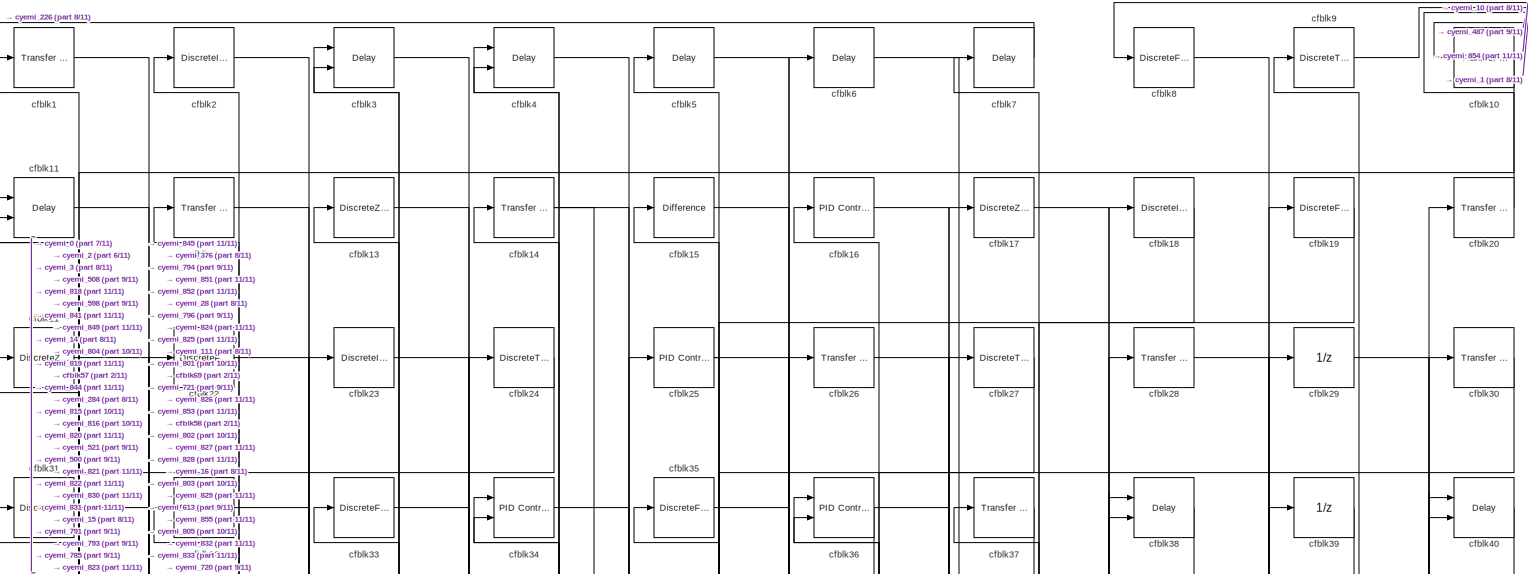
[diagram: root canvas - part 1/11, full width, top band]
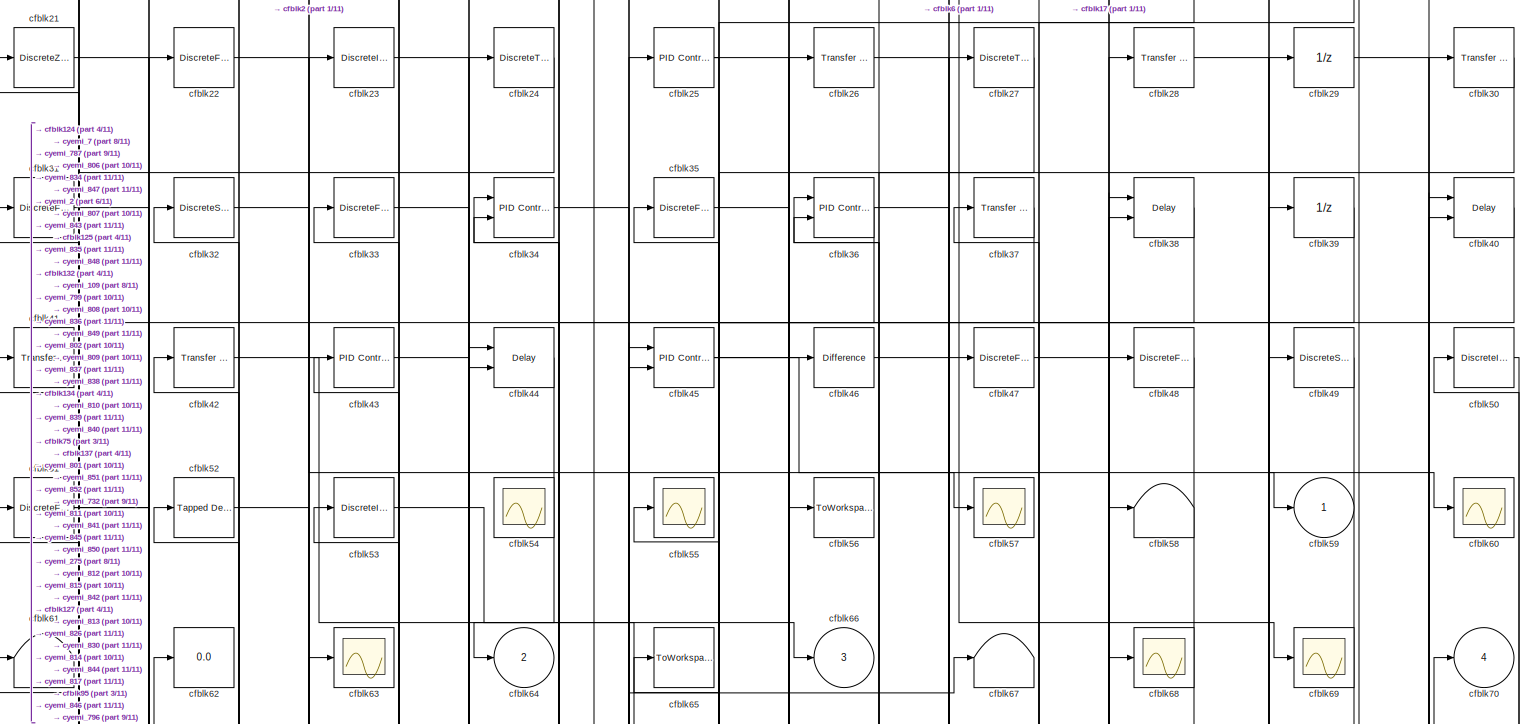
[diagram: root canvas - part 2/11, full width, top band]
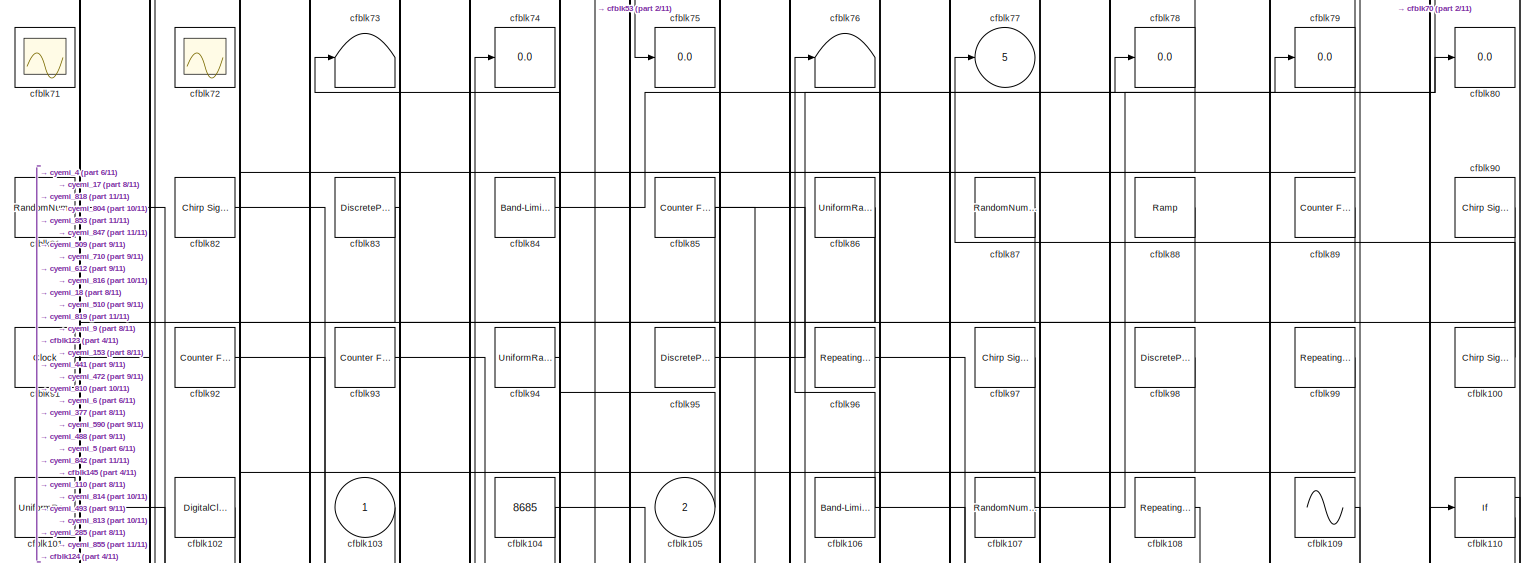
[diagram: root canvas - part 3/11, full width, top band]
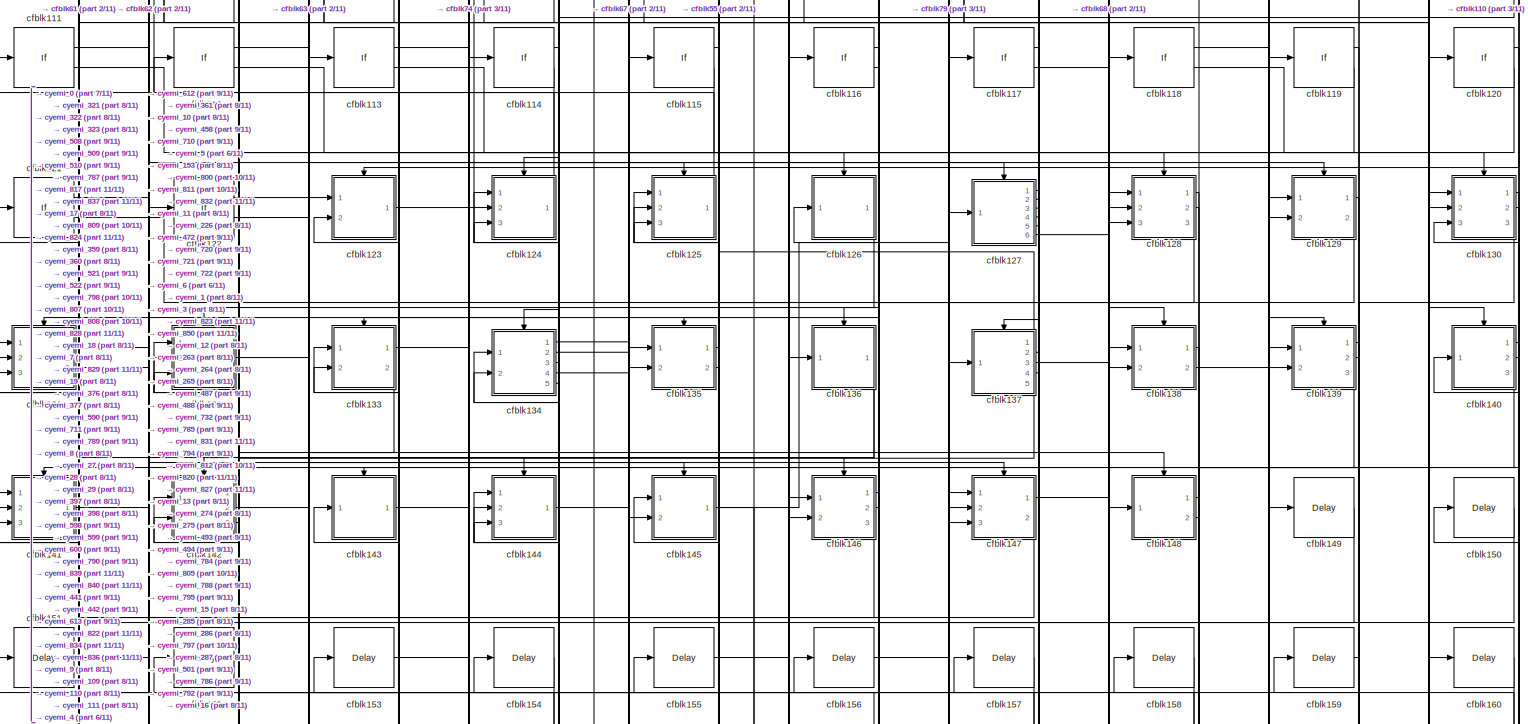
[diagram: root canvas - part 4/11, full width, middle band]
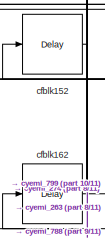
[diagram: root canvas - part 5/11, middle left region]
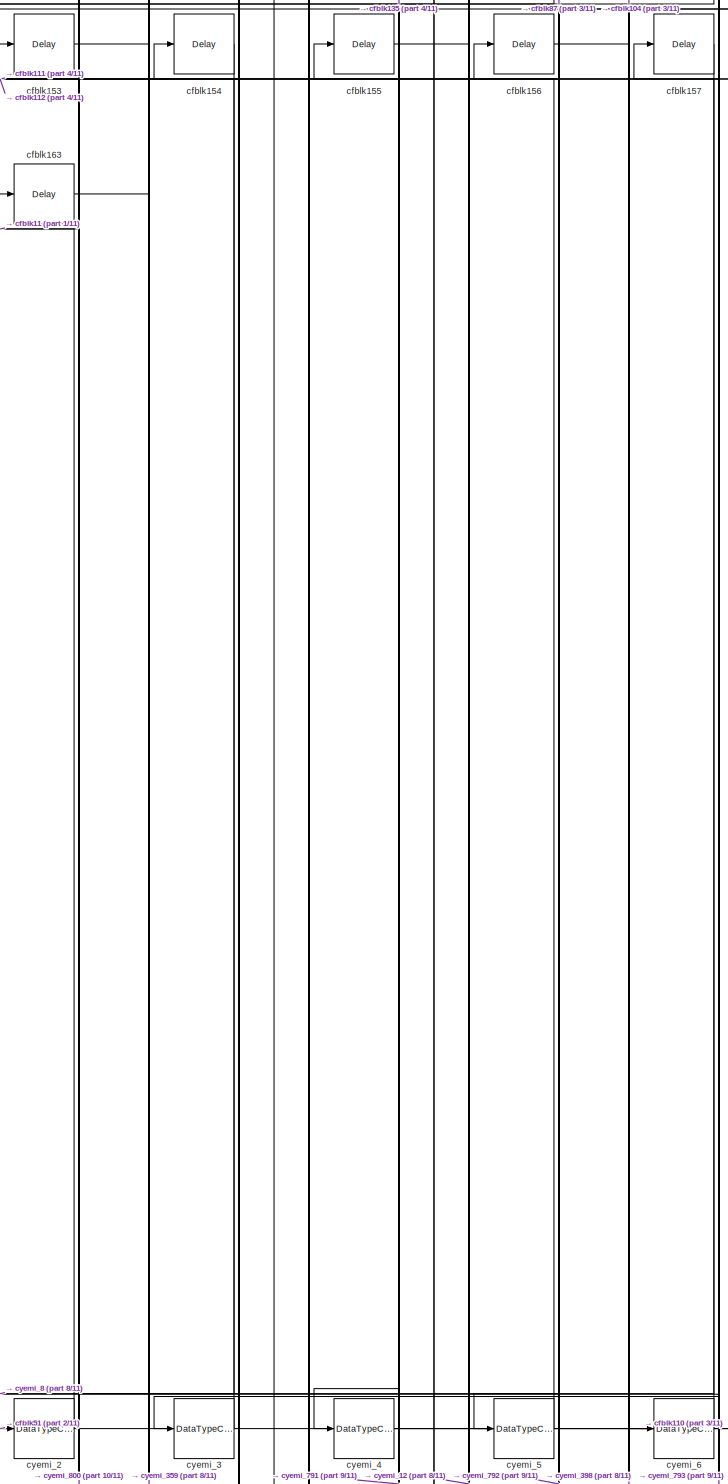
[diagram: root canvas - part 6/11, central region]
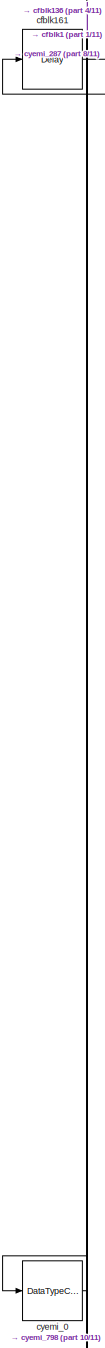
[diagram: root canvas - part 7/11, middle left region]
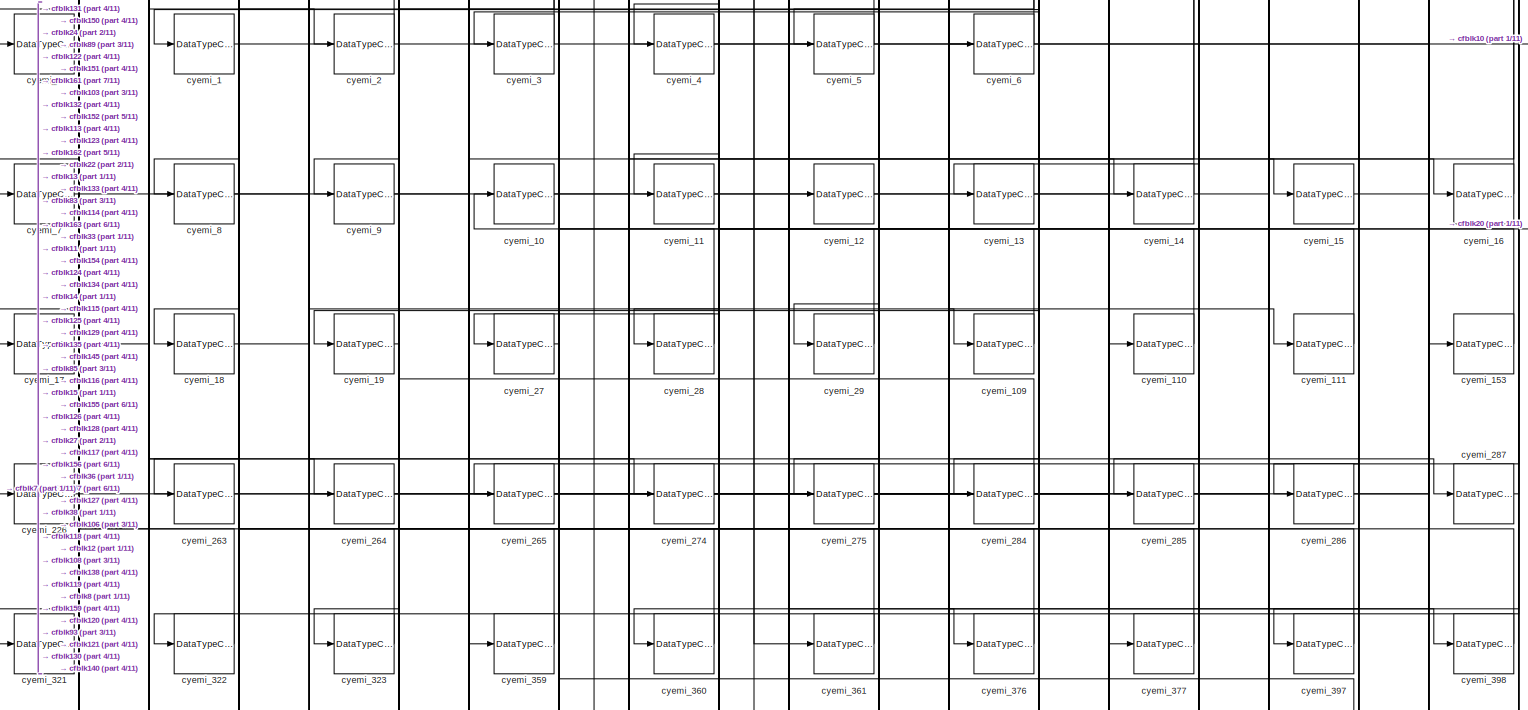
[diagram: root canvas - part 8/11, full width, bottom band]
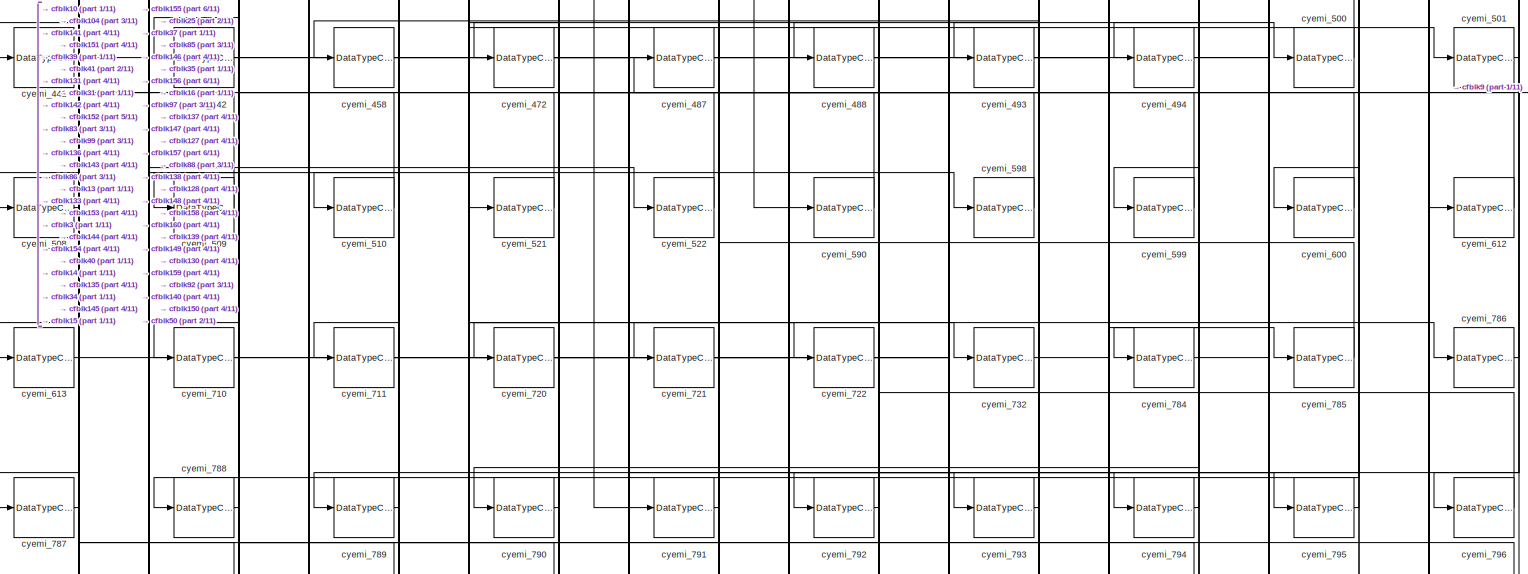
[diagram: root canvas - part 9/11, full width, bottom band]
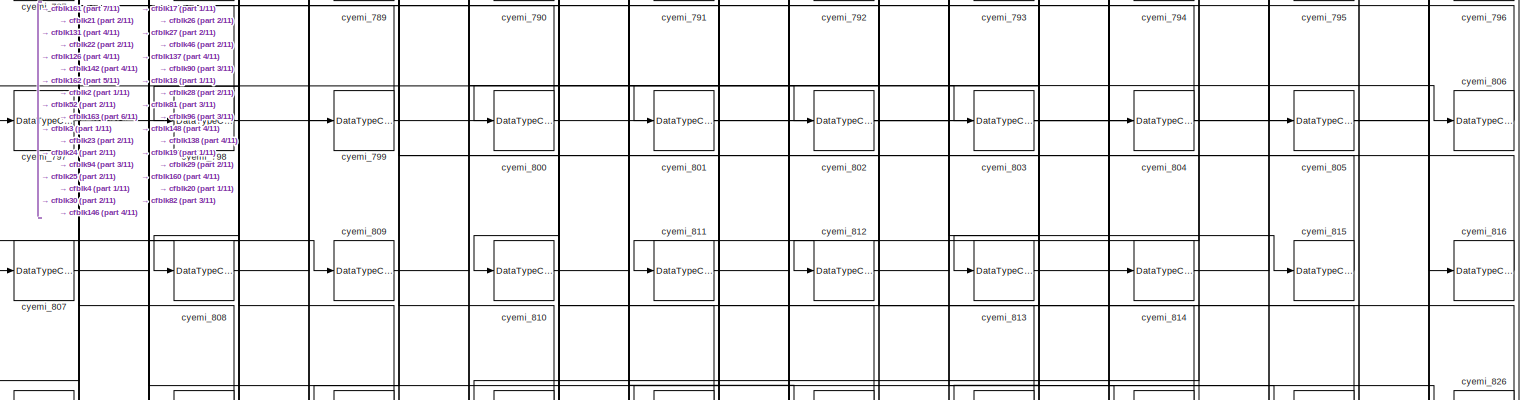
[diagram: root canvas - part 10/11, full width, bottom band]
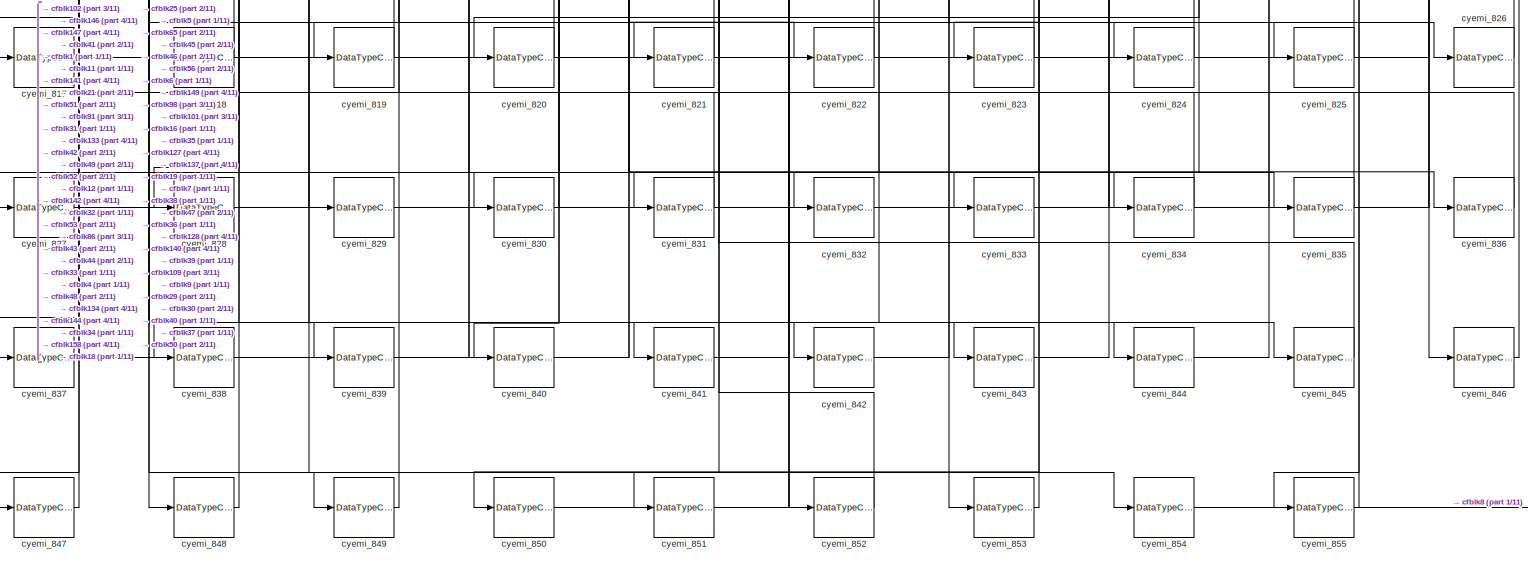
[diagram: root canvas - part 11/11, full width, bottom band]
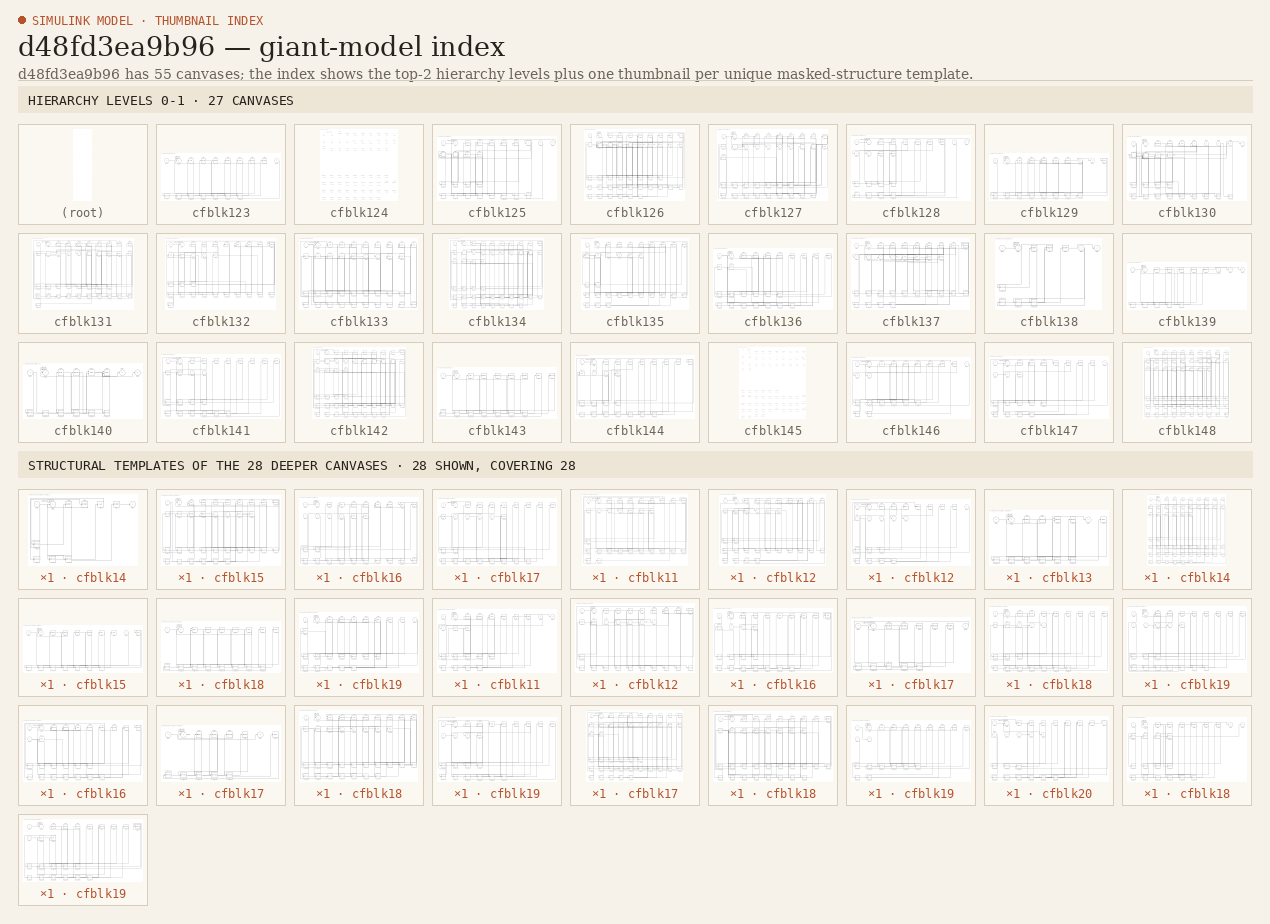
[diagram: thumbnail index - top-2 hierarchy levels (27 canvases) + 28 structural-template representatives of the remaining 28 canvases]
MODEL slx_d48fd3ea9b96
KIND model
CONFIG AbsTol = auto
CONFIG EnableMultiTasking = off
CONFIG FixedStep = auto
CONFIG MaxStep = auto
CONFIG MinStep = auto
CONFIG RelTol = 1e-3
CONFIG SampleTimeConstraint = Unconstrained
CONFIG Solver = VariableStepAuto
CONFIG SolverName = VariableStepAuto
CONFIG StartTime = 0.0
CONFIG StopTime = 10.0
BLOCK [Reference] cfblk1  REF=simulink/Discrete/Transfer Fcn
First Order
  Ports = [1, 1]
  SourceBlock = simulink/Discrete/Transfer Fcn\nFirst Order
  SourceProductBaseCode = SL
  SourceProductName = Simulink
  SourceType = First Order Transfer Fcn
BLOCK [Reference] cfblk10  REF=simulink/Discrete/Transfer Fcn
Lead or Lag
  Ports = [1, 1]
  SourceBlock = simulink/Discrete/Transfer Fcn\nLead or Lag
  SourceProductBaseCode = SL
  SourceProductName = Simulink
  SourceType = Lead or Lag Compensator
BLOCK [Reference] cfblk100  REF=simulink/Sources/Chirp Signal
  Ports = [0, 1]
  SourceBlock = simulink/Sources/Chirp Signal
  SourceProductBaseCode = SL
  SourceProductName = Simulink
  SourceType = chirp
BLOCK [UniformRandomNumber] cfblk101
  SampleTime = 0.1
BLOCK [DigitalClock] cfblk102
BLOCK [Inport] cfblk103
  IconDisplay = Port number
BLOCK [Constant] cfblk104
  OutDataTypeStr = double
  SampleTime = 1
  Value = 8685
BLOCK [Inport] cfblk105
  IconDisplay = Port number
  Port = 2
BLOCK [Reference] cfblk106  REF=simulink/Sources/Band-Limited
White Noise
  Ports = [0, 1]
  SourceBlock = simulink/Sources/Band-Limited\nWhite Noise
  SourceProductBaseCode = SL
  SourceProductName = Simulink
  SourceType = Band-Limited White Noise.
BLOCK [RandomNumber] cfblk107
  SampleTime = 0.1
BLOCK [Reference] cfblk108  REF=simulink/Sources/Repeating
Sequence
Interpolated
  Ports = [0, 1]
  SourceBlock = simulink/Sources/Repeating\nSequence\nInterpolated
  SourceProductBaseCode = SL
  SourceProductName = Simulink
  SourceType = Repeating Sequence Interpolated
BLOCK [Sin] cfblk109
  Ports = [0, 1]
  SampleTime = 0
BLOCK [Delay] cfblk11
  DelayLengthSource = Input port
  InputPortMap = u0,p1
  Ports = [2, 1]
  SampleTime = 1
BLOCK [If] cfblk110
  Ports = [1, 2]
  SampleTime = 1
BLOCK [If] cfblk111
  Ports = [1, 2]
  SampleTime = 1
BLOCK [If] cfblk112
  Ports = [1, 2]
  SampleTime = 1
BLOCK [If] cfblk113
  Ports = [1, 2]
  SampleTime = 1
BLOCK [If] cfblk114
  Ports = [1, 2]
  SampleTime = 1
BLOCK [If] cfblk115
  Ports = [1, 2]
  SampleTime = 1
BLOCK [If] cfblk116
  Ports = [1, 2]
  SampleTime = 1
BLOCK [If] cfblk117
  Ports = [1, 2]
  SampleTime = 1
BLOCK [If] cfblk118
  Ports = [1, 2]
  SampleTime = 1
BLOCK [If] cfblk119
  Ports = [1, 2]
  SampleTime = 1
BLOCK [Reference] cfblk12  REF=simulink/Discrete/Transfer Fcn
Real Zero
  Ports = [1, 1]
  SourceBlock = simulink/Discrete/Transfer Fcn\nReal Zero
  SourceProductBaseCode = SL
  SourceProductName = Simulink
  SourceType = Transfer Fcn Real Zero
BLOCK [If] cfblk120
  Ports = [1, 2]
  SampleTime = 1
BLOCK [If] cfblk121
  Ports = [1, 2]
  SampleTime = 1
BLOCK [If] cfblk122
  Ports = [1, 2]
  SampleTime = 1
BLOCK [SubSystem] cfblk123
  Ports = [2, 1, 0, 0, 0, 0, 0, 1]
  RequestExecContextInheritance = off
  TreatAsAtomicUnit = on
BLOCK [ActionPort] cfblk123/Action Port
  ActionType = then
BLOCK [Inport] cfblk123/cfblk1
  IconDisplay = Port number
BLOCK [Inport] cfblk123/cfblk10
  IconDisplay = Port number
  Port = 2
BLOCK [Outport] cfblk123/cfblk2
  IconDisplay = Port number
BLOCK [UnitDelay] cfblk123/cfblk3
  InputProcessing = Elements as channels (sample based)
  SampleTime = -1
BLOCK [Reference] cfblk123/cfblk4  REF=simulink/Continuous/PID Controller
  Ports = [1, 1]
  SourceBlock = simulink/Continuous/PID Controller
  SourceProductBaseCode = SL
  SourceProductName = Simulink
  SourceType = PID 1dof
BLOCK [DiscreteTransferFcn] cfblk123/cfblk5
  InputPortMap = u0
  Ports = [1, 1]
BLOCK [DiscreteIntegrator] cfblk123/cfblk6
  ICPrevOutput = DiscIntNeverNeededParam
  ICPrevScaledInput = DiscIntNeverNeededParam
  InitialConditionSetting = Auto
  OutDataTypeStr = double
  Ports = [1, 1]
  SampleTime = -1
BLOCK [Delay] cfblk123/cfblk7
  InputPortMap = u0
  Ports = [1, 1]
BLOCK [Reference] cfblk123/cfblk8  REF=simulink/Discrete/Tapped Delay
  Ports = [1, 1]
  SourceBlock = simulink/Discrete/Tapped Delay
  SourceProductBaseCode = SL
  SourceProductName = Simulink
  SourceType = Tapped Delay Line
BLOCK [DiscreteTransferFcn] cfblk123/cfblk9
  InputPortMap = u0
  Ports = [1, 1]
BLOCK [DataTypeConversion] cfblk123/cyemi_20
  OutDataTypeStr = double
  RndMeth = Floor
  SaturateOnIntegerOverflow = off
BLOCK [DataTypeConversion] cfblk123/cyemi_21
  OutDataTypeStr = double
  RndMeth = Floor
  SaturateOnIntegerOverflow = off
BLOCK [DataTypeConversion] cfblk123/cyemi_22
  OutDataTypeStr = double
  RndMeth = Floor
  SaturateOnIntegerOverflow = off
BLOCK [DataTypeConversion] cfblk123/cyemi_23
  OutDataTypeStr = double
  RndMeth = Floor
  SaturateOnIntegerOverflow = off
BLOCK [DataTypeConversion] cfblk123/cyemi_24
  OutDataTypeStr = double
  RndMeth = Floor
  SaturateOnIntegerOverflow = off
BLOCK [DataTypeConversion] cfblk123/cyemi_25
  OutDataTypeStr = double
  RndMeth = Floor
  SaturateOnIntegerOverflow = off
BLOCK [DataTypeConversion] cfblk123/cyemi_26
  OutDataTypeStr = double
  RndMeth = Floor
  SaturateOnIntegerOverflow = off
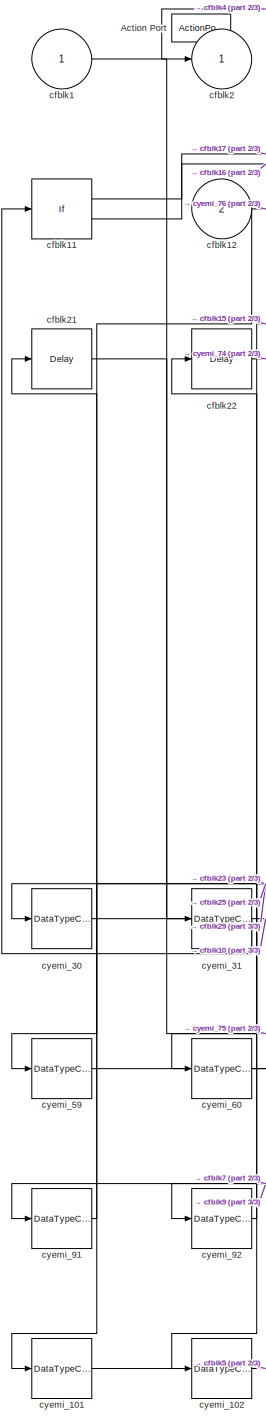
[diagram: cfblk124 - part 1/3, left side, full height]
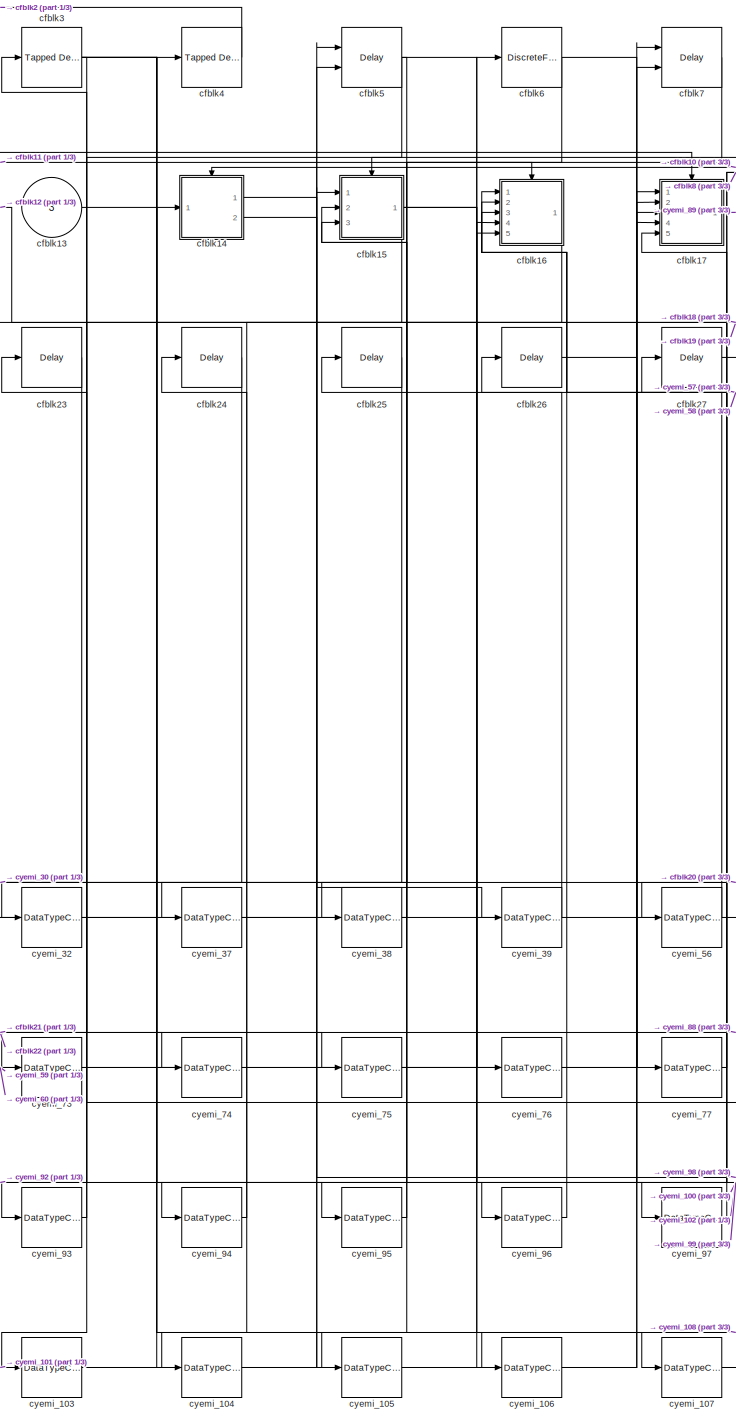
[diagram: cfblk124 - part 2/3, center side, full height]
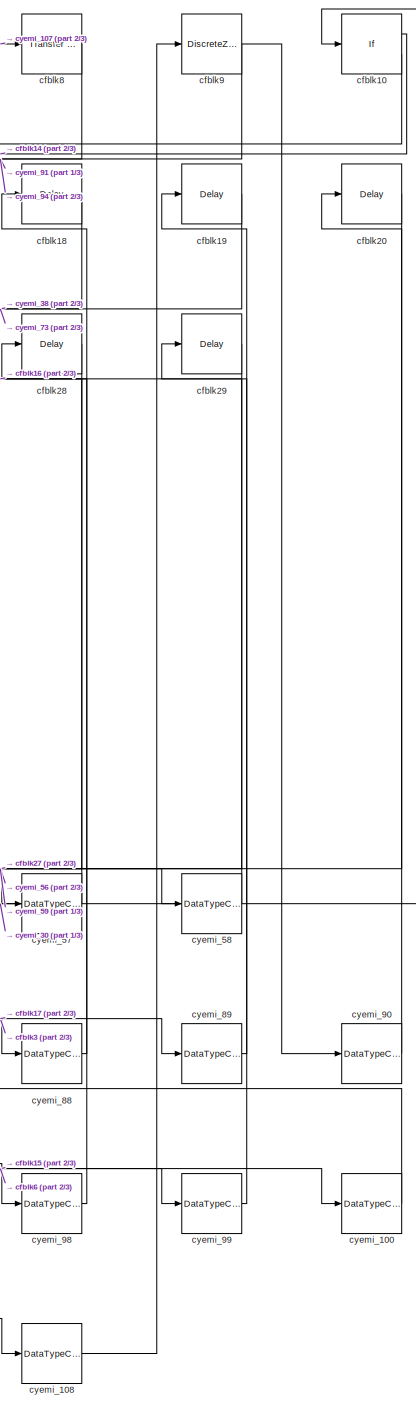
[diagram: cfblk124 - part 3/3, right side, full height]
BLOCK [SubSystem] cfblk124
  Ports = [3, 1, 0, 0, 0, 0, 0, 1]
  RequestExecContextInheritance = off
  TreatAsAtomicUnit = on
BLOCK [ActionPort] cfblk124/Action Port
  ActionType = else
BLOCK [Inport] cfblk124/cfblk1
  IconDisplay = Port number
BLOCK [If] cfblk124/cfblk10
  Ports = [1, 2]
  SampleTime = 1
BLOCK [If] cfblk124/cfblk11
  Ports = [1, 2]
  SampleTime = 1
BLOCK [Inport] cfblk124/cfblk12
  IconDisplay = Port number
  Port = 2
BLOCK [Inport] cfblk124/cfblk13
  IconDisplay = Port number
  Port = 3
BLOCK [SubSystem] cfblk124/cfblk14
  Ports = [1, 2, 0, 0, 0, 0, 0, 1]
  RequestExecContextInheritance = off
  TreatAsAtomicUnit = on
BLOCK [ActionPort] cfblk124/cfblk14/Action Port
  ActionType = then
BLOCK [Inport] cfblk124/cfblk14/cfblk1
  IconDisplay = Port number
BLOCK [Outport] cfblk124/cfblk14/cfblk2
  IconDisplay = Port number
BLOCK [DiscreteFilter] cfblk124/cfblk14/cfblk3
  InputPortMap = u0
  Ports = [1, 1]
BLOCK [DiscreteZeroPole] cfblk124/cfblk14/cfblk4
  Gain = 1
  Poles = [0 0.5]
  SampleTime = -1
BLOCK [UnitDelay] cfblk124/cfblk14/cfblk5
  InputProcessing = Elements as channels (sample based)
  SampleTime = -1
BLOCK [DiscreteZeroPole] cfblk124/cfblk14/cfblk6
  Gain = 1
  Poles = [0 0.5]
  SampleTime = -1
BLOCK [Outport] cfblk124/cfblk14/cfblk7
  IconDisplay = Port number
  Port = 2
BLOCK [DataTypeConversion] cfblk124/cfblk14/cyemi_33
  OutDataTypeStr = double
  RndMeth = Floor
  SaturateOnIntegerOverflow = off
BLOCK [DataTypeConversion] cfblk124/cfblk14/cyemi_34
  OutDataTypeStr = double
  RndMeth = Floor
  SaturateOnIntegerOverflow = off
BLOCK [DataTypeConversion] cfblk124/cfblk14/cyemi_35
  OutDataTypeStr = double
  RndMeth = Floor
  SaturateOnIntegerOverflow = off
BLOCK [DataTypeConversion] cfblk124/cfblk14/cyemi_36
  OutDataTypeStr = double
  RndMeth = Floor
  SaturateOnIntegerOverflow = off
BLOCK [SubSystem] cfblk124/cfblk15
  Ports = [3, 1, 0, 0, 0, 0, 0, 1]
  RequestExecContextInheritance = off
  TreatAsAtomicUnit = on
BLOCK [ActionPort] cfblk124/cfblk15/Action Port
  ActionType = else
BLOCK [Inport] cfblk124/cfblk15/cfblk1
  IconDisplay = Port number
BLOCK [Reference] cfblk124/cfblk15/cfblk10  REF=simulink/Discrete/Transfer Fcn
Real Zero
  Ports = [1, 1]
  SourceBlock = simulink/Discrete/Transfer Fcn\nReal Zero
  SourceProductBaseCode = SL
  SourceProductName = Simulink
  SourceType = Transfer Fcn Real Zero
BLOCK [Reference] cfblk124/cfblk15/cfblk11  REF=simulink/Discrete/Transfer Fcn
Lead or Lag
  Ports = [1, 1]
  SourceBlock = simulink/Discrete/Transfer Fcn\nLead or Lag
  SourceProductBaseCode = SL
  SourceProductName = Simulink
  SourceType = Lead or Lag Compensator
BLOCK [Reference] cfblk124/cfblk15/cfblk12  REF=simulink/Discrete/Transfer Fcn
First Order
  Ports = [1, 1]
  SourceBlock = simulink/Discrete/Transfer Fcn\nFirst Order
  SourceProductBaseCode = SL
  SourceProductName = Simulink
  SourceType = First Order Transfer Fcn
BLOCK [DiscreteFilter] cfblk124/cfblk15/cfblk13
  InputPortMap = u0
  Ports = [1, 1]
BLOCK [Reference] cfblk124/cfblk15/cfblk14  REF=simulink/Discrete/Difference
  Ports = [1, 1]
  SourceBlock = simulink/Discrete/Difference
  SourceProductBaseCode = SL
  SourceProductName = Simulink
  SourceType = Difference
BLOCK [Inport] cfblk124/cfblk15/cfblk15
  IconDisplay = Port number
  Port = 2
BLOCK [Inport] cfblk124/cfblk15/cfblk16
  IconDisplay = Port number
  Port = 3
BLOCK [Delay] cfblk124/cfblk15/cfblk17
  InputPortMap = u0
  Ports = [1, 1]
BLOCK [Delay] cfblk124/cfblk15/cfblk18
  InputPortMap = u0
  Ports = [1, 1]
BLOCK [Outport] cfblk124/cfblk15/cfblk2
  IconDisplay = Port number
BLOCK [Delay] cfblk124/cfblk15/cfblk3
  DelayLengthSource = Input port
  InputPortMap = u0,p1
  Ports = [2, 1]
BLOCK [DiscreteStateSpace] cfblk124/cfblk15/cfblk4
  SampleTime = -1
BLOCK [DiscreteIntegrator] cfblk124/cfblk15/cfblk5
  ICPrevOutput = DiscIntNeverNeededParam
  ICPrevScaledInput = DiscIntNeverNeededParam
  InitialConditionSetting = Auto
  OutDataTypeStr = double
  Ports = [1, 1]
  SampleTime = -1
BLOCK [Reference] cfblk124/cfblk15/cfblk6  REF=simulink/Discrete/Transfer Fcn
Real Zero
  Ports = [1, 1]
  SourceBlock = simulink/Discrete/Transfer Fcn\nReal Zero
  SourceProductBaseCode = SL
  SourceProductName = Simulink
  SourceType = Transfer Fcn Real Zero
BLOCK [Delay] cfblk124/cfblk15/cfblk7
  InputPortMap = u0,e6
  Ports = [2, 1]
  ShowEnablePort = on
BLOCK [DiscreteFilter] cfblk124/cfblk15/cfblk8
  InputPortMap = u0
  Ports = [1, 1]
BLOCK [Reference] cfblk124/cfblk15/cfblk9  REF=simulink/Continuous/PID Controller
  Ports = [1, 1]
  SourceBlock = simulink/Continuous/PID Controller
  SourceProductBaseCode = SL
  SourceProductName = Simulink
  SourceType = PID 1dof
BLOCK [DataTypeConversion] cfblk124/cfblk15/cyemi_40
  OutDataTypeStr = double
  RndMeth = Floor
  SaturateOnIntegerOverflow = off
BLOCK [DataTypeConversion] cfblk124/cfblk15/cyemi_41
  OutDataTypeStr = double
  RndMeth = Floor
  SaturateOnIntegerOverflow = off
BLOCK [DataTypeConversion] cfblk124/cfblk15/cyemi_42
  OutDataTypeStr = double
  RndMeth = Floor
  SaturateOnIntegerOverflow = off
BLOCK [DataTypeConversion] cfblk124/cfblk15/cyemi_43
  OutDataTypeStr = double
  RndMeth = Floor
  SaturateOnIntegerOverflow = off
BLOCK [DataTypeConversion] cfblk124/cfblk15/cyemi_44
  OutDataTypeStr = double
  RndMeth = Floor
  SaturateOnIntegerOverflow = off
BLOCK [DataTypeConversion] cfblk124/cfblk15/cyemi_45
  OutDataTypeStr = double
  RndMeth = Floor
  SaturateOnIntegerOverflow = off
BLOCK [DataTypeConversion] cfblk124/cfblk15/cyemi_46
  OutDataTypeStr = double
  RndMeth = Floor
  SaturateOnIntegerOverflow = off
BLOCK [DataTypeConversion] cfblk124/cfblk15/cyemi_47
  OutDataTypeStr = double
  RndMeth = Floor
  SaturateOnIntegerOverflow = off
BLOCK [DataTypeConversion] cfblk124/cfblk15/cyemi_48
  OutDataTypeStr = double
  RndMeth = Floor
  SaturateOnIntegerOverflow = off
BLOCK [DataTypeConversion] cfblk124/cfblk15/cyemi_49
  OutDataTypeStr = double
  RndMeth = Floor
  SaturateOnIntegerOverflow = off
BLOCK [DataTypeConversion] cfblk124/cfblk15/cyemi_50
  OutDataTypeStr = double
  RndMeth = Floor
  SaturateOnIntegerOverflow = off
BLOCK [DataTypeConversion] cfblk124/cfblk15/cyemi_51
  OutDataTypeStr = double
  RndMeth = Floor
  SaturateOnIntegerOverflow = off
BLOCK [DataTypeConversion] cfblk124/cfblk15/cyemi_52
  OutDataTypeStr = double
  RndMeth = Floor
  SaturateOnIntegerOverflow = off
BLOCK [DataTypeConversion] cfblk124/cfblk15/cyemi_53
  OutDataTypeStr = double
  RndMeth = Floor
  SaturateOnIntegerOverflow = off
BLOCK [DataTypeConversion] cfblk124/cfblk15/cyemi_54
  OutDataTypeStr = double
  RndMeth = Floor
  SaturateOnIntegerOverflow = off
BLOCK [DataTypeConversion] cfblk124/cfblk15/cyemi_55
  OutDataTypeStr = double
  RndMeth = Floor
  SaturateOnIntegerOverflow = off
BLOCK [SubSystem] cfblk124/cfblk16
  Ports = [5, 1, 0, 0, 0, 0, 0, 1]
  RequestExecContextInheritance = off
  TreatAsAtomicUnit = on
BLOCK [ActionPort] cfblk124/cfblk16/Action Port
  ActionType = then
BLOCK [Inport] cfblk124/cfblk16/cfblk1
  IconDisplay = Port number
BLOCK [Reference] cfblk124/cfblk16/cfblk10  REF=simulink/Discrete/Transfer Fcn
First Order
  Ports = [1, 1]
  SourceBlock = simulink/Discrete/Transfer Fcn\nFirst Order
  SourceProductBaseCode = SL
  SourceProductName = Simulink
  SourceType = First Order Transfer Fcn
BLOCK [Inport] cfblk124/cfblk16/cfblk11
  IconDisplay = Port number
  Port = 2
BLOCK [Inport] cfblk124/cfblk16/cfblk12
  IconDisplay = Port number
  Port = 3
BLOCK [Inport] cfblk124/cfblk16/cfblk13
  IconDisplay = Port number
  Port = 4
BLOCK [Inport] cfblk124/cfblk16/cfblk14
  IconDisplay = Port number
  Port = 5
BLOCK [Delay] cfblk124/cfblk16/cfblk15
  InputPortMap = u0
  Ports = [1, 1]
BLOCK [Delay] cfblk124/cfblk16/cfblk16
  InputPortMap = u0
  Ports = [1, 1]
BLOCK [Outport] cfblk124/cfblk16/cfblk2
  IconDisplay = Port number
BLOCK [DiscreteFir] cfblk124/cfblk16/cfblk3
  InputPortMap = u0
  OutputPortMap = o0
  Ports = [1, 1]
BLOCK [Delay] cfblk124/cfblk16/cfblk4
  DelayLengthSource = Input port
  InputPortMap = u0,p1
  Ports = [2, 1]
BLOCK [DiscreteStateSpace] cfblk124/cfblk16/cfblk5
  SampleTime = -1
BLOCK [Reference] cfblk124/cfblk16/cfblk6  REF=simulink/Discrete/Transfer Fcn
Real Zero
  Ports = [1, 1]
  SourceBlock = simulink/Discrete/Transfer Fcn\nReal Zero
  SourceProductBaseCode = SL
  SourceProductName = Simulink
  SourceType = Transfer Fcn Real Zero
BLOCK [Delay] cfblk124/cfblk16/cfblk7
  InputPortMap = u0,e6
  Ports = [2, 1]
  ShowEnablePort = on
BLOCK [Reference] cfblk124/cfblk16/cfblk8  REF=simulink/Discrete/Transfer Fcn
Real Zero
  Ports = [1, 1]
  SourceBlock = simulink/Discrete/Transfer Fcn\nReal Zero
  SourceProductBaseCode = SL
  SourceProductName = Simulink
  SourceType = Transfer Fcn Real Zero
BLOCK [Delay] cfblk124/cfblk16/cfblk9
  InputPortMap = u0
  Ports = [1, 1]
BLOCK [DataTypeConversion] cfblk124/cfblk16/cyemi_61
  OutDataTypeStr = double
  RndMeth = Floor
  SaturateOnIntegerOverflow = off
BLOCK [DataTypeConversion] cfblk124/cfblk16/cyemi_62
  OutDataTypeStr = double
  RndMeth = Floor
  SaturateOnIntegerOverflow = off
BLOCK [DataTypeConversion] cfblk124/cfblk16/cyemi_63
  OutDataTypeStr = double
  RndMeth = Floor
  SaturateOnIntegerOverflow = off
BLOCK [DataTypeConversion] cfblk124/cfblk16/cyemi_64
  OutDataTypeStr = double
  RndMeth = Floor
  SaturateOnIntegerOverflow = off
BLOCK [DataTypeConversion] cfblk124/cfblk16/cyemi_65
  OutDataTypeStr = double
  RndMeth = Floor
  SaturateOnIntegerOverflow = off
BLOCK [DataTypeConversion] cfblk124/cfblk16/cyemi_66
  OutDataTypeStr = double
  RndMeth = Floor
  SaturateOnIntegerOverflow = off
BLOCK [DataTypeConversion] cfblk124/cfblk16/cyemi_67
  OutDataTypeStr = double
  RndMeth = Floor
  SaturateOnIntegerOverflow = off
BLOCK [DataTypeConversion] cfblk124/cfblk16/cyemi_68
  OutDataTypeStr = double
  RndMeth = Floor
  SaturateOnIntegerOverflow = off
BLOCK [DataTypeConversion] cfblk124/cfblk16/cyemi_69
  OutDataTypeStr = double
  RndMeth = Floor
  SaturateOnIntegerOverflow = off
BLOCK [DataTypeConversion] cfblk124/cfblk16/cyemi_70
  OutDataTypeStr = double
  RndMeth = Floor
  SaturateOnIntegerOverflow = off
BLOCK [DataTypeConversion] cfblk124/cfblk16/cyemi_71
  OutDataTypeStr = double
  RndMeth = Floor
  SaturateOnIntegerOverflow = off
BLOCK [DataTypeConversion] cfblk124/cfblk16/cyemi_72
  OutDataTypeStr = double
  RndMeth = Floor
  SaturateOnIntegerOverflow = off
BLOCK [SubSystem] cfblk124/cfblk17
  Ports = [5, 1, 0, 0, 0, 0, 0, 1]
  RequestExecContextInheritance = off
  TreatAsAtomicUnit = on
BLOCK [ActionPort] cfblk124/cfblk17/Action Port
  ActionType = else
BLOCK [Inport] cfblk124/cfblk17/cfblk1
  IconDisplay = Port number
BLOCK [DiscreteFilter] cfblk124/cfblk17/cfblk10
  InputPortMap = u0
  Ports = [1, 1]
BLOCK [Reference] cfblk124/cfblk17/cfblk11  REF=simulink/Discrete/Transfer Fcn
Real Zero
  Ports = [1, 1]
  SourceBlock = simulink/Discrete/Transfer Fcn\nReal Zero
  SourceProductBaseCode = SL
  SourceProductName = Simulink
  SourceType = Transfer Fcn Real Zero
BLOCK [Inport] cfblk124/cfblk17/cfblk12
  IconDisplay = Port number
  Port = 2
BLOCK [Inport] cfblk124/cfblk17/cfblk13
  IconDisplay = Port number
  Port = 3
BLOCK [Inport] cfblk124/cfblk17/cfblk14
  IconDisplay = Port number
  Port = 4
BLOCK [Inport] cfblk124/cfblk17/cfblk15
  IconDisplay = Port number
  Port = 5
BLOCK [Delay] cfblk124/cfblk17/cfblk16
  InputPortMap = u0
  Ports = [1, 1]
BLOCK [Outport] cfblk124/cfblk17/cfblk2
  IconDisplay = Port number
BLOCK [DiscreteFilter] cfblk124/cfblk17/cfblk3
  InputPortMap = u0
  Ports = [1, 1]
BLOCK [DiscreteZeroPole] cfblk124/cfblk17/cfblk4
  Gain = 1
  Poles = [0 0.5]
  SampleTime = -1
BLOCK [Reference] cfblk124/cfblk17/cfblk5  REF=simulink/Discrete/Transfer Fcn
Real Zero
  Ports = [1, 1]
  SourceBlock = simulink/Discrete/Transfer Fcn\nReal Zero
  SourceProductBaseCode = SL
  SourceProductName = Simulink
  SourceType = Transfer Fcn Real Zero
BLOCK [UnitDelay] cfblk124/cfblk17/cfblk6
  InputProcessing = Elements as channels (sample based)
  SampleTime = -1
BLOCK [Reference] cfblk124/cfblk17/cfblk7  REF=simulink/Discrete/Transfer Fcn
Real Zero
  Ports = [1, 1]
  SourceBlock = simulink/Discrete/Transfer Fcn\nReal Zero
  SourceProductBaseCode = SL
  SourceProductName = Simulink
  SourceType = Transfer Fcn Real Zero
BLOCK [DiscreteFir] cfblk124/cfblk17/cfblk8
  InputPortMap = u0
  OutputPortMap = o0
  Ports = [1, 1]
BLOCK [Reference] cfblk124/cfblk17/cfblk9  REF=simulink/Continuous/PID Controller
  Ports = [1, 1]
  SourceBlock = simulink/Continuous/PID Controller
  SourceProductBaseCode = SL
  SourceProductName = Simulink
  SourceType = PID 1dof
BLOCK [DataTypeConversion] cfblk124/cfblk17/cyemi_78
  OutDataTypeStr = double
  RndMeth = Floor
  SaturateOnIntegerOverflow = off
BLOCK [DataTypeConversion] cfblk124/cfblk17/cyemi_79
  OutDataTypeStr = double
  RndMeth = Floor
  SaturateOnIntegerOverflow = off
BLOCK [DataTypeConversion] cfblk124/cfblk17/cyemi_80
  OutDataTypeStr = double
  RndMeth = Floor
  SaturateOnIntegerOverflow = off
BLOCK [DataTypeConversion] cfblk124/cfblk17/cyemi_81
  OutDataTypeStr = double
  RndMeth = Floor
  SaturateOnIntegerOverflow = off
BLOCK [DataTypeConversion] cfblk124/cfblk17/cyemi_82
  OutDataTypeStr = double
  RndMeth = Floor
  SaturateOnIntegerOverflow = off
BLOCK [DataTypeConversion] cfblk124/cfblk17/cyemi_83
  OutDataTypeStr = double
  RndMeth = Floor
  SaturateOnIntegerOverflow = off
BLOCK [DataTypeConversion] cfblk124/cfblk17/cyemi_84
  OutDataTypeStr = double
  RndMeth = Floor
  SaturateOnIntegerOverflow = off
BLOCK [DataTypeConversion] cfblk124/cfblk17/cyemi_85
  OutDataTypeStr = double
  RndMeth = Floor
  SaturateOnIntegerOverflow = off
BLOCK [DataTypeConversion] cfblk124/cfblk17/cyemi_86
  OutDataTypeStr = double
  RndMeth = Floor
  SaturateOnIntegerOverflow = off
BLOCK [DataTypeConversion] cfblk124/cfblk17/cyemi_87
  OutDataTypeStr = double
  RndMeth = Floor
  SaturateOnIntegerOverflow = off
BLOCK [Delay] cfblk124/cfblk18
  InputPortMap = u0
  Ports = [1, 1]
BLOCK [Delay] cfblk124/cfblk19
  InputPortMap = u0
  Ports = [1, 1]
BLOCK [Outport] cfblk124/cfblk2
  IconDisplay = Port number
BLOCK [Delay] cfblk124/cfblk20
  InputPortMap = u0
  Ports = [1, 1]
BLOCK [Delay] cfblk124/cfblk21
  InputPortMap = u0
  Ports = [1, 1]
BLOCK [Delay] cfblk124/cfblk22
  InputPortMap = u0
  Ports = [1, 1]
BLOCK [Delay] cfblk124/cfblk23
  InputPortMap = u0
  Ports = [1, 1]
BLOCK [Delay] cfblk124/cfblk24
  InputPortMap = u0
  Ports = [1, 1]
BLOCK [Delay] cfblk124/cfblk25
  InputPortMap = u0
  Ports = [1, 1]
BLOCK [Delay] cfblk124/cfblk26
  InputPortMap = u0
  Ports = [1, 1]
BLOCK [Delay] cfblk124/cfblk27
  InputPortMap = u0
  Ports = [1, 1]
BLOCK [Delay] cfblk124/cfblk28
  InputPortMap = u0
  Ports = [1, 1]
BLOCK [Delay] cfblk124/cfblk29
  InputPortMap = u0
  Ports = [1, 1]
BLOCK [Reference] cfblk124/cfblk3  REF=simulink/Discrete/Tapped Delay
  Ports = [1, 1]
  SourceBlock = simulink/Discrete/Tapped Delay
  SourceProductBaseCode = SL
  SourceProductName = Simulink
  SourceType = Tapped Delay Line
BLOCK [Reference] cfblk124/cfblk4  REF=simulink/Discrete/Tapped Delay
  Ports = [1, 1]
  SourceBlock = simulink/Discrete/Tapped Delay
  SourceProductBaseCode = SL
  SourceProductName = Simulink
  SourceType = Tapped Delay Line
BLOCK [Delay] cfblk124/cfblk5
  InputPortMap = u0,e6
  Ports = [2, 1]
  ShowEnablePort = on
BLOCK [DiscreteFilter] cfblk124/cfblk6
  InputPortMap = u0
  Ports = [1, 1]
BLOCK [Delay] cfblk124/cfblk7
  DelayLengthSource = Input port
  InputPortMap = u0,p1
  Ports = [2, 1]
BLOCK [Reference] cfblk124/cfblk8  REF=simulink/Discrete/Transfer Fcn
First Order
  Ports = [1, 1]
  SourceBlock = simulink/Discrete/Transfer Fcn\nFirst Order
  SourceProductBaseCode = SL
  SourceProductName = Simulink
  SourceType = First Order Transfer Fcn
BLOCK [DiscreteZeroPole] cfblk124/cfblk9
  Gain = 1
  Poles = [0 0.5]
  SampleTime = -1
BLOCK [DataTypeConversion] cfblk124/cyemi_100
  OutDataTypeStr = double
  RndMeth = Floor
  SaturateOnIntegerOverflow = off
BLOCK [DataTypeConversion] cfblk124/cyemi_101
  OutDataTypeStr = double
  RndMeth = Floor
  SaturateOnIntegerOverflow = off
BLOCK [DataTypeConversion] cfblk124/cyemi_102
  OutDataTypeStr = double
  RndMeth = Floor
  SaturateOnIntegerOverflow = off
BLOCK [DataTypeConversion] cfblk124/cyemi_103
  OutDataTypeStr = double
  RndMeth = Floor
  SaturateOnIntegerOverflow = off
BLOCK [DataTypeConversion] cfblk124/cyemi_104
  OutDataTypeStr = double
  RndMeth = Floor
  SaturateOnIntegerOverflow = off
BLOCK [DataTypeConversion] cfblk124/cyemi_105
  OutDataTypeStr = double
  RndMeth = Floor
  SaturateOnIntegerOverflow = off
BLOCK [DataTypeConversion] cfblk124/cyemi_106
  OutDataTypeStr = double
  RndMeth = Floor
  SaturateOnIntegerOverflow = off
BLOCK [DataTypeConversion] cfblk124/cyemi_107
  OutDataTypeStr = double
  RndMeth = Floor
  SaturateOnIntegerOverflow = off
BLOCK [DataTypeConversion] cfblk124/cyemi_108
  OutDataTypeStr = double
  RndMeth = Floor
  SaturateOnIntegerOverflow = off
BLOCK [DataTypeConversion] cfblk124/cyemi_30
  OutDataTypeStr = double
  RndMeth = Floor
  SaturateOnIntegerOverflow = off
BLOCK [DataTypeConversion] cfblk124/cyemi_31
  OutDataTypeStr = double
  RndMeth = Floor
  SaturateOnIntegerOverflow = off
BLOCK [DataTypeConversion] cfblk124/cyemi_32
  OutDataTypeStr = double
  RndMeth = Floor
  SaturateOnIntegerOverflow = off
BLOCK [DataTypeConversion] cfblk124/cyemi_37
  OutDataTypeStr = double
  RndMeth = Floor
  SaturateOnIntegerOverflow = off
BLOCK [DataTypeConversion] cfblk124/cyemi_38
  OutDataTypeStr = double
  RndMeth = Floor
  SaturateOnIntegerOverflow = off
BLOCK [DataTypeConversion] cfblk124/cyemi_39
  OutDataTypeStr = double
  RndMeth = Floor
  SaturateOnIntegerOverflow = off
BLOCK [DataTypeConversion] cfblk124/cyemi_56
  OutDataTypeStr = double
  RndMeth = Floor
  SaturateOnIntegerOverflow = off
BLOCK [DataTypeConversion] cfblk124/cyemi_57
  OutDataTypeStr = double
  RndMeth = Floor
  SaturateOnIntegerOverflow = off
BLOCK [DataTypeConversion] cfblk124/cyemi_58
  OutDataTypeStr = double
  RndMeth = Floor
  SaturateOnIntegerOverflow = off
BLOCK [DataTypeConversion] cfblk124/cyemi_59
  OutDataTypeStr = double
  RndMeth = Floor
  SaturateOnIntegerOverflow = off
BLOCK [DataTypeConversion] cfblk124/cyemi_60
  OutDataTypeStr = double
  RndMeth = Floor
  SaturateOnIntegerOverflow = off
BLOCK [DataTypeConversion] cfblk124/cyemi_73
  OutDataTypeStr = double
  RndMeth = Floor
  SaturateOnIntegerOverflow = off
BLOCK [DataTypeConversion] cfblk124/cyemi_74
  OutDataTypeStr = double
  RndMeth = Floor
  SaturateOnIntegerOverflow = off
BLOCK [DataTypeConversion] cfblk124/cyemi_75
  OutDataTypeStr = double
  RndMeth = Floor
  SaturateOnIntegerOverflow = off
BLOCK [DataTypeConversion] cfblk124/cyemi_76
  OutDataTypeStr = double
  RndMeth = Floor
  SaturateOnIntegerOverflow = off
BLOCK [DataTypeConversion] cfblk124/cyemi_77
  OutDataTypeStr = double
  RndMeth = Floor
  SaturateOnIntegerOverflow = off
BLOCK [DataTypeConversion] cfblk124/cyemi_88
  OutDataTypeStr = double
  RndMeth = Floor
  SaturateOnIntegerOverflow = off
BLOCK [DataTypeConversion] cfblk124/cyemi_89
  OutDataTypeStr = double
  RndMeth = Floor
  SaturateOnIntegerOverflow = off
BLOCK [DataTypeConversion] cfblk124/cyemi_90
  OutDataTypeStr = double
  RndMeth = Floor
  SaturateOnIntegerOverflow = off
BLOCK [DataTypeConversion] cfblk124/cyemi_91
  OutDataTypeStr = double
  RndMeth = Floor
  SaturateOnIntegerOverflow = off
BLOCK [DataTypeConversion] cfblk124/cyemi_92
  OutDataTypeStr = double
  RndMeth = Floor
  SaturateOnIntegerOverflow = off
BLOCK [DataTypeConversion] cfblk124/cyemi_93
  OutDataTypeStr = double
  RndMeth = Floor
  SaturateOnIntegerOverflow = off
BLOCK [DataTypeConversion] cfblk124/cyemi_94
  OutDataTypeStr = double
  RndMeth = Floor
  SaturateOnIntegerOverflow = off
BLOCK [DataTypeConversion] cfblk124/cyemi_95
  OutDataTypeStr = double
  RndMeth = Floor
  SaturateOnIntegerOverflow = off
BLOCK [DataTypeConversion] cfblk124/cyemi_96
  OutDataTypeStr = double
  RndMeth = Floor
  SaturateOnIntegerOverflow = off
BLOCK [DataTypeConversion] cfblk124/cyemi_97
  OutDataTypeStr = double
  RndMeth = Floor
  SaturateOnIntegerOverflow = off
BLOCK [DataTypeConversion] cfblk124/cyemi_98
  OutDataTypeStr = double
  RndMeth = Floor
  SaturateOnIntegerOverflow = off
BLOCK [DataTypeConversion] cfblk124/cyemi_99
  OutDataTypeStr = double
  RndMeth = Floor
  SaturateOnIntegerOverflow = off
BLOCK [SubSystem] cfblk125
  Ports = [3, 1, 0, 0, 0, 0, 0, 1]
  RequestExecContextInheritance = off
  TreatAsAtomicUnit = on
BLOCK [ActionPort] cfblk125/Action Port
  ActionType = then
BLOCK [Inport] cfblk125/cfblk1
  IconDisplay = Port number
BLOCK [Inport] cfblk125/cfblk10
  IconDisplay = Port number
  Port = 3
BLOCK [SubSystem] cfblk125/cfblk11
  Ports = [2, 3, 0, 0, 0, 0, 0, 1]
  RequestExecContextInheritance = off
  TreatAsAtomicUnit = on
BLOCK [ActionPort] cfblk125/cfblk11/Action Port
  ActionType = then
BLOCK [Inport] cfblk125/cfblk11/cfblk1
  IconDisplay = Port number
BLOCK [DiscreteFilter] cfblk125/cfblk11/cfblk10
  InputPortMap = u0
  Ports = [1, 1]
BLOCK [Reference] cfblk125/cfblk11/cfblk11  REF=simulink/Discrete/Transfer Fcn
Real Zero
  Ports = [1, 1]
  SourceBlock = simulink/Discrete/Transfer Fcn\nReal Zero
  SourceProductBaseCode = SL
  SourceProductName = Simulink
  SourceType = Transfer Fcn Real Zero
BLOCK [Inport] cfblk125/cfblk11/cfblk12
  IconDisplay = Port number
  Port = 2
BLOCK [Outport] cfblk125/cfblk11/cfblk13
  IconDisplay = Port number
  Port = 2
BLOCK [Outport] cfblk125/cfblk11/cfblk14
  IconDisplay = Port number
  Port = 3
BLOCK [Delay] cfblk125/cfblk11/cfblk15
  InputPortMap = u0
  Ports = [1, 1]
BLOCK [DataTypeConversion] cfblk125/cfblk11/cfblk16
  OutDataTypeStr = uint32
  RndMeth = Floor
  SaturateOnIntegerOverflow = off
BLOCK [DataTypeConversion] cfblk125/cfblk11/cfblk17
  OutDataTypeStr = double
  RndMeth = Floor
  SaturateOnIntegerOverflow = off
BLOCK [Outport] cfblk125/cfblk11/cfblk2
  IconDisplay = Port number
BLOCK [DiscreteFir] cfblk125/cfblk11/cfblk3
  InputPortMap = u0
  OutputPortMap = o0
  Ports = [1, 1]
BLOCK [Reference] cfblk125/cfblk11/cfblk4  REF=simulink/Continuous/PID Controller
  Ports = [1, 1]
  SourceBlock = simulink/Continuous/PID Controller
  SourceProductBaseCode = SL
  SourceProductName = Simulink
  SourceType = PID 1dof
BLOCK [DiscreteFir] cfblk125/cfblk11/cfblk5
  InputPortMap = u0
  OutputPortMap = o0
  Ports = [1, 1]
BLOCK [Delay] cfblk125/cfblk11/cfblk6
  DelayLengthSource = Input port
  InputPortMap = u0,p1
  Ports = [2, 1]
BLOCK [DiscreteZeroPole] cfblk125/cfblk11/cfblk7
  Gain = 1
  Poles = [0 0.5]
  SampleTime = -1
BLOCK [Reference] cfblk125/cfblk11/cfblk8  REF=simulink/Discrete/Tapped Delay
  Ports = [1, 1]
  SourceBlock = simulink/Discrete/Tapped Delay
  SourceProductBaseCode = SL
  SourceProductName = Simulink
  SourceType = Tapped Delay Line
BLOCK [DiscreteFilter] cfblk125/cfblk11/cfblk9
  InputPortMap = u0
  Ports = [1, 1]
BLOCK [DataTypeConversion] cfblk125/cfblk11/cyemi_114
  OutDataTypeStr = double
  RndMeth = Floor
  SaturateOnIntegerOverflow = off
BLOCK [DataTypeConversion] cfblk125/cfblk11/cyemi_115
  OutDataTypeStr = double
  RndMeth = Floor
  SaturateOnIntegerOverflow = off
BLOCK [DataTypeConversion] cfblk125/cfblk11/cyemi_116
  OutDataTypeStr = double
  RndMeth = Floor
  SaturateOnIntegerOverflow = off
BLOCK [DataTypeConversion] cfblk125/cfblk11/cyemi_117
  OutDataTypeStr = double
  RndMeth = Floor
  SaturateOnIntegerOverflow = off
BLOCK [DataTypeConversion] cfblk125/cfblk11/cyemi_118
  OutDataTypeStr = double
  RndMeth = Floor
  SaturateOnIntegerOverflow = off
BLOCK [DataTypeConversion] cfblk125/cfblk11/cyemi_119
  OutDataTypeStr = double
  RndMeth = Floor
  SaturateOnIntegerOverflow = off
BLOCK [DataTypeConversion] cfblk125/cfblk11/cyemi_120
  OutDataTypeStr = double
  RndMeth = Floor
  SaturateOnIntegerOverflow = off
BLOCK [DataTypeConversion] cfblk125/cfblk11/cyemi_121
  OutDataTypeStr = double
  RndMeth = Floor
  SaturateOnIntegerOverflow = off
BLOCK [DataTypeConversion] cfblk125/cfblk11/cyemi_122
  OutDataTypeStr = double
  RndMeth = Floor
  SaturateOnIntegerOverflow = off
BLOCK [DataTypeConversion] cfblk125/cfblk11/cyemi_123
  OutDataTypeStr = uint32
  RndMeth = Floor
  SaturateOnIntegerOverflow = off
BLOCK [DataTypeConversion] cfblk125/cfblk11/cyemi_124
  OutDataTypeStr = double
  RndMeth = Floor
  SaturateOnIntegerOverflow = off
BLOCK [DataTypeConversion] cfblk125/cfblk11/cyemi_125
  OutDataTypeStr = double
  RndMeth = Floor
  SaturateOnIntegerOverflow = off
BLOCK [DataTypeConversion] cfblk125/cfblk11/cyemi_126
  OutDataTypeStr = double
  RndMeth = Floor
  SaturateOnIntegerOverflow = off
BLOCK [SubSystem] cfblk125/cfblk12
  Ports = [1, 2, 0, 0, 0, 0, 0, 1]
  RequestExecContextInheritance = off
  TreatAsAtomicUnit = on
BLOCK [ActionPort] cfblk125/cfblk12/Action Port
  ActionType = else
BLOCK [Inport] cfblk125/cfblk12/cfblk1
  IconDisplay = Port number
BLOCK [Reference] cfblk125/cfblk12/cfblk10  REF=simulink/Continuous/PID Controller
  Ports = [1, 1]
  SourceBlock = simulink/Continuous/PID Controller
  SourceProductBaseCode = SL
  SourceProductName = Simulink
  SourceType = PID 1dof
BLOCK [DiscreteFir] cfblk125/cfblk12/cfblk11
  InputPortMap = u0
  OutputPortMap = o0
  Ports = [1, 1]
BLOCK [Reference] cfblk125/cfblk12/cfblk12  REF=simulink/Continuous/PID Controller (2DOF)
  Ports = [2, 1]
  SourceBlock = simulink/Continuous/PID Controller (2DOF)
  SourceProductBaseCode = SL
  SourceProductName = Simulink
  SourceType = PID 2dof
BLOCK [Reference] cfblk125/cfblk12/cfblk13  REF=simulink/Discrete/Transfer Fcn
Lead or Lag
  Ports = [1, 1]
  SourceBlock = simulink/Discrete/Transfer Fcn\nLead or Lag
  SourceProductBaseCode = SL
  SourceProductName = Simulink
  SourceType = Lead or Lag Compensator
BLOCK [Outport] cfblk125/cfblk12/cfblk14
  IconDisplay = Port number
  Port = 2
BLOCK [Delay] cfblk125/cfblk12/cfblk15
  InputPortMap = u0
  Ports = [1, 1]
BLOCK [Delay] cfblk125/cfblk12/cfblk16
  InputPortMap = u0
  Ports = [1, 1]
BLOCK [Outport] cfblk125/cfblk12/cfblk2
  IconDisplay = Port number
BLOCK [DiscreteIntegrator] cfblk125/cfblk12/cfblk3
  ICPrevOutput = DiscIntNeverNeededParam
  ICPrevScaledInput = DiscIntNeverNeededParam
  InitialConditionSetting = Auto
  OutDataTypeStr = double
  Ports = [1, 1]
  SampleTime = -1
BLOCK [DiscreteZeroPole] cfblk125/cfblk12/cfblk4
  Gain = 1
  Poles = [0 0.5]
  SampleTime = -1
BLOCK [DiscreteStateSpace] cfblk125/cfblk12/cfblk5
  SampleTime = -1
BLOCK [DiscreteIntegrator] cfblk125/cfblk12/cfblk6
  ICPrevOutput = DiscIntNeverNeededParam
  ICPrevScaledInput = DiscIntNeverNeededParam
  InitialConditionSetting = Auto
  OutDataTypeStr = double
  Ports = [1, 1]
  SampleTime = -1
BLOCK [Reference] cfblk125/cfblk12/cfblk7  REF=simulink/Continuous/PID Controller
  Ports = [1, 1]
  SourceBlock = simulink/Continuous/PID Controller
  SourceProductBaseCode = SL
  SourceProductName = Simulink
  SourceType = PID 1dof
BLOCK [Delay] cfblk125/cfblk12/cfblk8
  DelayLengthSource = Input port
  InputPortMap = u0,p1
  Ports = [2, 1]
BLOCK [Delay] cfblk125/cfblk12/cfblk9
  InputPortMap = u0,e6
  Ports = [2, 1]
  ShowEnablePort = on
BLOCK [DataTypeConversion] cfblk125/cfblk12/cyemi_128
  OutDataTypeStr = double
  RndMeth = Floor
  SaturateOnIntegerOverflow = off
BLOCK [DataTypeConversion] cfblk125/cfblk12/cyemi_129
  OutDataTypeStr = double
  RndMeth = Floor
  SaturateOnIntegerOverflow = off
BLOCK [DataTypeConversion] cfblk125/cfblk12/cyemi_130
  OutDataTypeStr = double
  RndMeth = Floor
  SaturateOnIntegerOverflow = off
BLOCK [DataTypeConversion] cfblk125/cfblk12/cyemi_131
  OutDataTypeStr = double
  RndMeth = Floor
  SaturateOnIntegerOverflow = off
BLOCK [DataTypeConversion] cfblk125/cfblk12/cyemi_132
  OutDataTypeStr = double
  RndMeth = Floor
  SaturateOnIntegerOverflow = off
BLOCK [DataTypeConversion] cfblk125/cfblk12/cyemi_133
  OutDataTypeStr = double
  RndMeth = Floor
  SaturateOnIntegerOverflow = off
BLOCK [DataTypeConversion] cfblk125/cfblk12/cyemi_134
  OutDataTypeStr = double
  RndMeth = Floor
  SaturateOnIntegerOverflow = off
BLOCK [DataTypeConversion] cfblk125/cfblk12/cyemi_135
  OutDataTypeStr = double
  RndMeth = Floor
  SaturateOnIntegerOverflow = off
BLOCK [DataTypeConversion] cfblk125/cfblk12/cyemi_136
  OutDataTypeStr = double
  RndMeth = Floor
  SaturateOnIntegerOverflow = off
BLOCK [DataTypeConversion] cfblk125/cfblk12/cyemi_137
  OutDataTypeStr = double
  RndMeth = Floor
  SaturateOnIntegerOverflow = off
BLOCK [DataTypeConversion] cfblk125/cfblk12/cyemi_138
  OutDataTypeStr = double
  RndMeth = Floor
  SaturateOnIntegerOverflow = off
BLOCK [DataTypeConversion] cfblk125/cfblk12/cyemi_139
  OutDataTypeStr = double
  RndMeth = Floor
  SaturateOnIntegerOverflow = off
BLOCK [DataTypeConversion] cfblk125/cfblk12/cyemi_140
  OutDataTypeStr = double
  RndMeth = Floor
  SaturateOnIntegerOverflow = off
BLOCK [DataTypeConversion] cfblk125/cfblk12/cyemi_141
  OutDataTypeStr = double
  RndMeth = Floor
  SaturateOnIntegerOverflow = off
BLOCK [DataTypeConversion] cfblk125/cfblk12/cyemi_142
  OutDataTypeStr = double
  RndMeth = Floor
  SaturateOnIntegerOverflow = off
BLOCK [DataTypeConversion] cfblk125/cfblk12/cyemi_143
  OutDataTypeStr = double
  RndMeth = Floor
  SaturateOnIntegerOverflow = off
BLOCK [Delay] cfblk125/cfblk13
  InputPortMap = u0
  Ports = [1, 1]
BLOCK [Delay] cfblk125/cfblk14
  InputPortMap = u0
  Ports = [1, 1]
BLOCK [Outport] cfblk125/cfblk2
  IconDisplay = Port number
BLOCK [Reference] cfblk125/cfblk3  REF=simulink/Discrete/Transfer Fcn
Real Zero
  Ports = [1, 1]
  SourceBlock = simulink/Discrete/Transfer Fcn\nReal Zero
  SourceProductBaseCode = SL
  SourceProductName = Simulink
  SourceType = Transfer Fcn Real Zero
BLOCK [Delay] cfblk125/cfblk4
  DelayLengthSource = Input port
  InputPortMap = u0,p1
  Ports = [2, 1]
BLOCK [Reference] cfblk125/cfblk5  REF=simulink/Discrete/Transfer Fcn
Lead or Lag
  Ports = [1, 1]
  SourceBlock = simulink/Discrete/Transfer Fcn\nLead or Lag
  SourceProductBaseCode = SL
  SourceProductName = Simulink
  SourceType = Lead or Lag Compensator
BLOCK [Reference] cfblk125/cfblk6  REF=simulink/Discrete/Transfer Fcn
Lead or Lag
  Ports = [1, 1]
  SourceBlock = simulink/Discrete/Transfer Fcn\nLead or Lag
  SourceProductBaseCode = SL
  SourceProductName = Simulink
  SourceType = Lead or Lag Compensator
BLOCK [DiscreteIntegrator] cfblk125/cfblk7
  ICPrevOutput = DiscIntNeverNeededParam
  ICPrevScaledInput = DiscIntNeverNeededParam
  InitialConditionSetting = Auto
  OutDataTypeStr = double
  Ports = [1, 1]
  SampleTime = -1
BLOCK [If] cfblk125/cfblk8
  Ports = [1, 2]
  SampleTime = 1
BLOCK [Inport] cfblk125/cfblk9
  IconDisplay = Port number
  Port = 2
BLOCK [DataTypeConversion] cfblk125/cyemi_112
  OutDataTypeStr = double
  RndMeth = Floor
  SaturateOnIntegerOverflow = off
BLOCK [DataTypeConversion] cfblk125/cyemi_113
  OutDataTypeStr = double
  RndMeth = Floor
  SaturateOnIntegerOverflow = off
BLOCK [DataTypeConversion] cfblk125/cyemi_127
  OutDataTypeStr = double
  RndMeth = Floor
  SaturateOnIntegerOverflow = off
BLOCK [DataTypeConversion] cfblk125/cyemi_144
  OutDataTypeStr = double
  RndMeth = Floor
  SaturateOnIntegerOverflow = off
BLOCK [DataTypeConversion] cfblk125/cyemi_145
  OutDataTypeStr = double
  RndMeth = Floor
  SaturateOnIntegerOverflow = off
BLOCK [DataTypeConversion] cfblk125/cyemi_146
  OutDataTypeStr = double
  RndMeth = Floor
  SaturateOnIntegerOverflow = off
BLOCK [DataTypeConversion] cfblk125/cyemi_147
  OutDataTypeStr = double
  RndMeth = Floor
  SaturateOnIntegerOverflow = off
BLOCK [DataTypeConversion] cfblk125/cyemi_148
  OutDataTypeStr = double
  RndMeth = Floor
  SaturateOnIntegerOverflow = off
BLOCK [DataTypeConversion] cfblk125/cyemi_149
  OutDataTypeStr = double
  RndMeth = Floor
  SaturateOnIntegerOverflow = off
BLOCK [DataTypeConversion] cfblk125/cyemi_150
  OutDataTypeStr = double
  RndMeth = Floor
  SaturateOnIntegerOverflow = off
BLOCK [DataTypeConversion] cfblk125/cyemi_151
  OutDataTypeStr = double
  RndMeth = Floor
  SaturateOnIntegerOverflow = off
BLOCK [DataTypeConversion] cfblk125/cyemi_152
  OutDataTypeStr = double
  RndMeth = Floor
  SaturateOnIntegerOverflow = off
BLOCK [SubSystem] cfblk126
  Ports = [1, 1, 0, 0, 0, 0, 0, 1]
  RequestExecContextInheritance = off
  TreatAsAtomicUnit = on
BLOCK [ActionPort] cfblk126/Action Port
  ActionType = else
BLOCK [Inport] cfblk126/cfblk1
  IconDisplay = Port number
BLOCK [If] cfblk126/cfblk10
  Ports = [1, 2]
  SampleTime = 1
BLOCK [If] cfblk126/cfblk11
  Ports = [1, 2]
  SampleTime = 1
BLOCK [SubSystem] cfblk126/cfblk12
  Ports = [5, 3, 0, 0, 0, 0, 0, 1]
  RequestExecContextInheritance = off
  TreatAsAtomicUnit = on
BLOCK [ActionPort] cfblk126/cfblk12/Action Port
  ActionType = then
BLOCK [Inport] cfblk126/cfblk12/cfblk1
  IconDisplay = Port number
BLOCK [Inport] cfblk126/cfblk12/cfblk10
  IconDisplay = Port number
  Port = 2
BLOCK [Inport] cfblk126/cfblk12/cfblk11
  IconDisplay = Port number
  Port = 3
BLOCK [Inport] cfblk126/cfblk12/cfblk12
  IconDisplay = Port number
  Port = 4
BLOCK [Inport] cfblk126/cfblk12/cfblk13
  IconDisplay = Port number
  Port = 5
BLOCK [Outport] cfblk126/cfblk12/cfblk14
  IconDisplay = Port number
  Port = 2
BLOCK [Outport] cfblk126/cfblk12/cfblk15
  IconDisplay = Port number
  Port = 3
BLOCK [Outport] cfblk126/cfblk12/cfblk2
  IconDisplay = Port number
BLOCK [DiscreteIntegrator] cfblk126/cfblk12/cfblk3
  ICPrevOutput = DiscIntNeverNeededParam
  ICPrevScaledInput = DiscIntNeverNeededParam
  InitialConditionSetting = Auto
  OutDataTypeStr = double
  Ports = [1, 1]
  SampleTime = -1
BLOCK [Reference] cfblk126/cfblk12/cfblk4  REF=simulink/Discrete/Transfer Fcn
Real Zero
  Ports = [1, 1]
  SourceBlock = simulink/Discrete/Transfer Fcn\nReal Zero
  SourceProductBaseCode = SL
  SourceProductName = Simulink
  SourceType = Transfer Fcn Real Zero
BLOCK [Reference] cfblk126/cfblk12/cfblk5  REF=simulink/Discrete/Difference
  Ports = [1, 1]
  SourceBlock = simulink/Discrete/Difference
  SourceProductBaseCode = SL
  SourceProductName = Simulink
  SourceType = Difference
BLOCK [Reference] cfblk126/cfblk12/cfblk6  REF=simulink/Discrete/Difference
  Ports = [1, 1]
  SourceBlock = simulink/Discrete/Difference
  SourceProductBaseCode = SL
  SourceProductName = Simulink
  SourceType = Difference
BLOCK [DiscreteZeroPole] cfblk126/cfblk12/cfblk7
  Gain = 1
  Poles = [0 0.5]
  SampleTime = -1
BLOCK [Reference] cfblk126/cfblk12/cfblk8  REF=simulink/Discrete/Transfer Fcn
Real Zero
  Ports = [1, 1]
  SourceBlock = simulink/Discrete/Transfer Fcn\nReal Zero
  SourceProductBaseCode = SL
  SourceProductName = Simulink
  SourceType = Transfer Fcn Real Zero
BLOCK [Reference] cfblk126/cfblk12/cfblk9  REF=simulink/Discrete/Transfer Fcn
Real Zero
  Ports = [1, 1]
  SourceBlock = simulink/Discrete/Transfer Fcn\nReal Zero
  SourceProductBaseCode = SL
  SourceProductName = Simulink
  SourceType = Transfer Fcn Real Zero
BLOCK [DataTypeConversion] cfblk126/cfblk12/cyemi_161
  OutDataTypeStr = double
  RndMeth = Floor
  SaturateOnIntegerOverflow = off
BLOCK [DataTypeConversion] cfblk126/cfblk12/cyemi_162
  OutDataTypeStr = double
  RndMeth = Floor
  SaturateOnIntegerOverflow = off
BLOCK [DataTypeConversion] cfblk126/cfblk12/cyemi_163
  OutDataTypeStr = double
  RndMeth = Floor
  SaturateOnIntegerOverflow = off
BLOCK [DataTypeConversion] cfblk126/cfblk12/cyemi_164
  OutDataTypeStr = double
  RndMeth = Floor
  SaturateOnIntegerOverflow = off
BLOCK [DataTypeConversion] cfblk126/cfblk12/cyemi_165
  OutDataTypeStr = double
  RndMeth = Floor
  SaturateOnIntegerOverflow = off
BLOCK [DataTypeConversion] cfblk126/cfblk12/cyemi_166
  OutDataTypeStr = double
  RndMeth = Floor
  SaturateOnIntegerOverflow = off
BLOCK [DataTypeConversion] cfblk126/cfblk12/cyemi_167
  OutDataTypeStr = double
  RndMeth = Floor
  SaturateOnIntegerOverflow = off
BLOCK [SubSystem] cfblk126/cfblk13
  Ports = [1, 2, 0, 0, 0, 0, 0, 1]
  RequestExecContextInheritance = off
  TreatAsAtomicUnit = on
BLOCK [ActionPort] cfblk126/cfblk13/Action Port
  ActionType = else
BLOCK [Inport] cfblk126/cfblk13/cfblk1
  IconDisplay = Port number
BLOCK [Outport] cfblk126/cfblk13/cfblk2
  IconDisplay = Port number
BLOCK [DiscreteStateSpace] cfblk126/cfblk13/cfblk3
  SampleTime = -1
BLOCK [Reference] cfblk126/cfblk13/cfblk4  REF=simulink/Continuous/PID Controller
  Ports = [1, 1]
  SourceBlock = simulink/Continuous/PID Controller
  SourceProductBaseCode = SL
  SourceProductName = Simulink
  SourceType = PID 1dof
BLOCK [Reference] cfblk126/cfblk13/cfblk5  REF=simulink/Continuous/PID Controller (2DOF)
  Ports = [2, 1]
  SourceBlock = simulink/Continuous/PID Controller (2DOF)
  SourceProductBaseCode = SL
  SourceProductName = Simulink
  SourceType = PID 2dof
BLOCK [Reference] cfblk126/cfblk13/cfblk6  REF=simulink/Discrete/Transfer Fcn
First Order
  Ports = [1, 1]
  SourceBlock = simulink/Discrete/Transfer Fcn\nFirst Order
  SourceProductBaseCode = SL
  SourceProductName = Simulink
  SourceType = First Order Transfer Fcn
BLOCK [Outport] cfblk126/cfblk13/cfblk7
  IconDisplay = Port number
  Port = 2
BLOCK [Delay] cfblk126/cfblk13/cfblk8
  InputPortMap = u0
  Ports = [1, 1]
BLOCK [DataTypeConversion] cfblk126/cfblk13/cyemi_169
  OutDataTypeStr = double
  RndMeth = Floor
  SaturateOnIntegerOverflow = off
BLOCK [DataTypeConversion] cfblk126/cfblk13/cyemi_170
  OutDataTypeStr = double
  RndMeth = Floor
  SaturateOnIntegerOverflow = off
BLOCK [DataTypeConversion] cfblk126/cfblk13/cyemi_171
  OutDataTypeStr = double
  RndMeth = Floor
  SaturateOnIntegerOverflow = off
BLOCK [DataTypeConversion] cfblk126/cfblk13/cyemi_172
  OutDataTypeStr = double
  RndMeth = Floor
  SaturateOnIntegerOverflow = off
BLOCK [DataTypeConversion] cfblk126/cfblk13/cyemi_173
  OutDataTypeStr = double
  RndMeth = Floor
  SaturateOnIntegerOverflow = off
BLOCK [DataTypeConversion] cfblk126/cfblk13/cyemi_174
  OutDataTypeStr = double
  RndMeth = Floor
  SaturateOnIntegerOverflow = off
BLOCK [SubSystem] cfblk126/cfblk14
  Ports = [1, 1, 0, 0, 0, 0, 0, 1]
  RequestExecContextInheritance = off
  TreatAsAtomicUnit = on
BLOCK [ActionPort] cfblk126/cfblk14/Action Port
  ActionType = then
BLOCK [Inport] cfblk126/cfblk14/cfblk1
  IconDisplay = Port number
BLOCK [Delay] cfblk126/cfblk14/cfblk10
  InputPortMap = u0
  Ports = [1, 1]
BLOCK [Reference] cfblk126/cfblk14/cfblk11  REF=simulink/Continuous/PID Controller (2DOF)
  Ports = [2, 1]
  SourceBlock = simulink/Continuous/PID Controller (2DOF)
  SourceProductBaseCode = SL
  SourceProductName = Simulink
  SourceType = PID 2dof
BLOCK [DiscreteIntegrator] cfblk126/cfblk14/cfblk12
  ICPrevOutput = DiscIntNeverNeededParam
  ICPrevScaledInput = DiscIntNeverNeededParam
  InitialConditionSetting = Auto
  OutDataTypeStr = double
  Ports = [1, 1]
  SampleTime = -1
BLOCK [Delay] cfblk126/cfblk14/cfblk13
  DelayLengthSource = Input port
  InputPortMap = u0,p1
  Ports = [2, 1]
BLOCK [Reference] cfblk126/cfblk14/cfblk14  REF=simulink/Discrete/Transfer Fcn
First Order
  Ports = [1, 1]
  SourceBlock = simulink/Discrete/Transfer Fcn\nFirst Order
  SourceProductBaseCode = SL
  SourceProductName = Simulink
  SourceType = First Order Transfer Fcn
BLOCK [Reference] cfblk126/cfblk14/cfblk15  REF=simulink/Discrete/Transfer Fcn
Real Zero
  Ports = [1, 1]
  SourceBlock = simulink/Discrete/Transfer Fcn\nReal Zero
  SourceProductBaseCode = SL
  SourceProductName = Simulink
  SourceType = Transfer Fcn Real Zero
BLOCK [Delay] cfblk126/cfblk14/cfblk16
  DelayLengthSource = Input port
  InputPortMap = u0,p1
  Ports = [2, 1]
BLOCK [Delay] cfblk126/cfblk14/cfblk17
  InputPortMap = u0
  Ports = [1, 1]
BLOCK [Delay] cfblk126/cfblk14/cfblk18
  InputPortMap = u0
  Ports = [1, 1]
BLOCK [DataTypeConversion] cfblk126/cfblk14/cfblk19
  OutDataTypeStr = double
  RndMeth = Floor
  SaturateOnIntegerOverflow = off
BLOCK [Outport] cfblk126/cfblk14/cfblk2
  IconDisplay = Port number
BLOCK [DataTypeConversion] cfblk126/cfblk14/cfblk20
  OutDataTypeStr = double
  RndMeth = Floor
  SaturateOnIntegerOverflow = off
BLOCK [DataTypeConversion] cfblk126/cfblk14/cfblk21
  OutDataTypeStr = double
  RndMeth = Floor
  SaturateOnIntegerOverflow = off
BLOCK [DataTypeConversion] cfblk126/cfblk14/cfblk22
  OutDataTypeStr = double
  RndMeth = Floor
  SaturateOnIntegerOverflow = off
BLOCK [DataTypeConversion] cfblk126/cfblk14/cfblk23
  OutDataTypeStr = double
  RndMeth = Floor
  SaturateOnIntegerOverflow = off
BLOCK [DataTypeConversion] cfblk126/cfblk14/cfblk24
  OutDataTypeStr = double
  RndMeth = Floor
  SaturateOnIntegerOverflow = off
BLOCK [DataTypeConversion] cfblk126/cfblk14/cfblk25
  OutDataTypeStr = uint32
  RndMeth = Floor
  SaturateOnIntegerOverflow = off
BLOCK [DataTypeConversion] cfblk126/cfblk14/cfblk26
  OutDataTypeStr = double
  RndMeth = Floor
  SaturateOnIntegerOverflow = off
BLOCK [Reference] cfblk126/cfblk14/cfblk3  REF=simulink/Continuous/PID Controller
  Ports = [1, 1]
  SourceBlock = simulink/Continuous/PID Controller
  SourceProductBaseCode = SL
  SourceProductName = Simulink
  SourceType = PID 1dof
BLOCK [DiscreteFilter] cfblk126/cfblk14/cfblk4
  InputPortMap = u0
  Ports = [1, 1]
BLOCK [DiscreteFilter] cfblk126/cfblk14/cfblk5
  InputPortMap = u0
  Ports = [1, 1]
BLOCK [Delay] cfblk126/cfblk14/cfblk6
  InputPortMap = u0
  Ports = [1, 1]
BLOCK [Reference] cfblk126/cfblk14/cfblk7  REF=simulink/Discrete/Transfer Fcn
Real Zero
  Ports = [1, 1]
  SourceBlock = simulink/Discrete/Transfer Fcn\nReal Zero
  SourceProductBaseCode = SL
  SourceProductName = Simulink
  SourceType = Transfer Fcn Real Zero
BLOCK [Reference] cfblk126/cfblk14/cfblk8  REF=simulink/Continuous/PID Controller (2DOF)
  Ports = [2, 1]
  SourceBlock = simulink/Continuous/PID Controller (2DOF)
  SourceProductBaseCode = SL
  SourceProductName = Simulink
  SourceType = PID 2dof
BLOCK [DiscreteZeroPole] cfblk126/cfblk14/cfblk9
  Gain = 1
  Poles = [0 0.5]
  SampleTime = -1
BLOCK [DataTypeConversion] cfblk126/cfblk14/cyemi_176
  OutDataTypeStr = double
  RndMeth = Floor
  SaturateOnIntegerOverflow = off
BLOCK [DataTypeConversion] cfblk126/cfblk14/cyemi_177
  OutDataTypeStr = double
  RndMeth = Floor
  SaturateOnIntegerOverflow = off
BLOCK [DataTypeConversion] cfblk126/cfblk14/cyemi_178
  OutDataTypeStr = double
  RndMeth = Floor
  SaturateOnIntegerOverflow = off
BLOCK [DataTypeConversion] cfblk126/cfblk14/cyemi_179
  OutDataTypeStr = double
  RndMeth = Floor
  SaturateOnIntegerOverflow = off
BLOCK [DataTypeConversion] cfblk126/cfblk14/cyemi_180
  OutDataTypeStr = double
  RndMeth = Floor
  SaturateOnIntegerOverflow = off
BLOCK [DataTypeConversion] cfblk126/cfblk14/cyemi_181
  OutDataTypeStr = uint16
  RndMeth = Floor
  SaturateOnIntegerOverflow = off
BLOCK [DataTypeConversion] cfblk126/cfblk14/cyemi_182
  OutDataTypeStr = uint16
  RndMeth = Floor
  SaturateOnIntegerOverflow = off
BLOCK [DataTypeConversion] cfblk126/cfblk14/cyemi_183
  OutDataTypeStr = double
  RndMeth = Floor
  SaturateOnIntegerOverflow = off
BLOCK [DataTypeConversion] cfblk126/cfblk14/cyemi_184
  OutDataTypeStr = uint16
  RndMeth = Floor
  SaturateOnIntegerOverflow = off
BLOCK [DataTypeConversion] cfblk126/cfblk14/cyemi_185
  OutDataTypeStr = uint32
  RndMeth = Floor
  SaturateOnIntegerOverflow = off
BLOCK [DataTypeConversion] cfblk126/cfblk14/cyemi_186
  OutDataTypeStr = double
  RndMeth = Floor
  SaturateOnIntegerOverflow = off
BLOCK [DataTypeConversion] cfblk126/cfblk14/cyemi_187
  OutDataTypeStr = uint32
  RndMeth = Floor
  SaturateOnIntegerOverflow = off
BLOCK [DataTypeConversion] cfblk126/cfblk14/cyemi_188
  OutDataTypeStr = double
  RndMeth = Floor
  SaturateOnIntegerOverflow = off
BLOCK [DataTypeConversion] cfblk126/cfblk14/cyemi_189
  OutDataTypeStr = double
  RndMeth = Floor
  SaturateOnIntegerOverflow = off
BLOCK [DataTypeConversion] cfblk126/cfblk14/cyemi_190
  OutDataTypeStr = uint16
  RndMeth = Floor
  SaturateOnIntegerOverflow = off
BLOCK [DataTypeConversion] cfblk126/cfblk14/cyemi_191
  OutDataTypeStr = double
  RndMeth = Floor
  SaturateOnIntegerOverflow = off
BLOCK [DataTypeConversion] cfblk126/cfblk14/cyemi_192
  OutDataTypeStr = double
  RndMeth = Floor
  SaturateOnIntegerOverflow = off
BLOCK [DataTypeConversion] cfblk126/cfblk14/cyemi_193
  OutDataTypeStr = uint16
  RndMeth = Floor
  SaturateOnIntegerOverflow = off
BLOCK [DataTypeConversion] cfblk126/cfblk14/cyemi_194
  OutDataTypeStr = double
  RndMeth = Floor
  SaturateOnIntegerOverflow = off
BLOCK [DataTypeConversion] cfblk126/cfblk14/cyemi_195
  OutDataTypeStr = double
  RndMeth = Floor
  SaturateOnIntegerOverflow = off
BLOCK [DataTypeConversion] cfblk126/cfblk14/cyemi_196
  OutDataTypeStr = double
  RndMeth = Floor
  SaturateOnIntegerOverflow = off
BLOCK [DataTypeConversion] cfblk126/cfblk14/cyemi_197
  OutDataTypeStr = double
  RndMeth = Floor
  SaturateOnIntegerOverflow = off
BLOCK [DataTypeConversion] cfblk126/cfblk14/cyemi_198
  OutDataTypeStr = double
  RndMeth = Floor
  SaturateOnIntegerOverflow = off
BLOCK [DataTypeConversion] cfblk126/cfblk14/cyemi_199
  OutDataTypeStr = double
  RndMeth = Floor
  SaturateOnIntegerOverflow = off
BLOCK [DataTypeConversion] cfblk126/cfblk14/cyemi_200
  OutDataTypeStr = double
  RndMeth = Floor
  SaturateOnIntegerOverflow = off
BLOCK [DataTypeConversion] cfblk126/cfblk14/cyemi_201
  OutDataTypeStr = double
  RndMeth = Floor
  SaturateOnIntegerOverflow = off
BLOCK [DataTypeConversion] cfblk126/cfblk14/cyemi_202
  OutDataTypeStr = double
  RndMeth = Floor
  SaturateOnIntegerOverflow = off
BLOCK [DataTypeConversion] cfblk126/cfblk14/cyemi_203
  OutDataTypeStr = double
  RndMeth = Floor
  SaturateOnIntegerOverflow = off
BLOCK [SubSystem] cfblk126/cfblk15
  Ports = [2, 1, 0, 0, 0, 0, 0, 1]
  RequestExecContextInheritance = off
  TreatAsAtomicUnit = on
BLOCK [ActionPort] cfblk126/cfblk15/Action Port
  ActionType = else
BLOCK [Inport] cfblk126/cfblk15/cfblk1
  IconDisplay = Port number
BLOCK [Delay] cfblk126/cfblk15/cfblk10
  InputPortMap = u0
  Ports = [1, 1]
BLOCK [Outport] cfblk126/cfblk15/cfblk2
  IconDisplay = Port number
BLOCK [Reference] cfblk126/cfblk15/cfblk3  REF=simulink/Discrete/Transfer Fcn
Lead or Lag
  Ports = [1, 1]
  SourceBlock = simulink/Discrete/Transfer Fcn\nLead or Lag
  SourceProductBaseCode = SL
  SourceProductName = Simulink
  SourceType = Lead or Lag Compensator
BLOCK [Reference] cfblk126/cfblk15/cfblk4  REF=simulink/Continuous/PID Controller
  Ports = [1, 1]
  SourceBlock = simulink/Continuous/PID Controller
  SourceProductBaseCode = SL
  SourceProductName = Simulink
  SourceType = PID 1dof
BLOCK [DiscreteIntegrator] cfblk126/cfblk15/cfblk5
  ICPrevOutput = DiscIntNeverNeededParam
  ICPrevScaledInput = DiscIntNeverNeededParam
  InitialConditionSetting = Auto
  OutDataTypeStr = double
  Ports = [1, 1]
  SampleTime = -1
BLOCK [Reference] cfblk126/cfblk15/cfblk6  REF=simulink/Discrete/Tapped Delay
  Ports = [1, 1]
  SourceBlock = simulink/Discrete/Tapped Delay
  SourceProductBaseCode = SL
  SourceProductName = Simulink
  SourceType = Tapped Delay Line
BLOCK [Delay] cfblk126/cfblk15/cfblk7
  InputPortMap = u0
  Ports = [1, 1]
BLOCK [Delay] cfblk126/cfblk15/cfblk8
  InputPortMap = u0
  Ports = [1, 1]
BLOCK [Inport] cfblk126/cfblk15/cfblk9
  IconDisplay = Port number
  Port = 2
BLOCK [DataTypeConversion] cfblk126/cfblk15/cyemi_206
  OutDataTypeStr = double
  RndMeth = Floor
  SaturateOnIntegerOverflow = off
BLOCK [DataTypeConversion] cfblk126/cfblk15/cyemi_207
  OutDataTypeStr = double
  RndMeth = Floor
  SaturateOnIntegerOverflow = off
BLOCK [DataTypeConversion] cfblk126/cfblk15/cyemi_208
  OutDataTypeStr = double
  RndMeth = Floor
  SaturateOnIntegerOverflow = off
BLOCK [DataTypeConversion] cfblk126/cfblk15/cyemi_209
  OutDataTypeStr = double
  RndMeth = Floor
  SaturateOnIntegerOverflow = off
BLOCK [DataTypeConversion] cfblk126/cfblk15/cyemi_210
  OutDataTypeStr = double
  RndMeth = Floor
  SaturateOnIntegerOverflow = off
BLOCK [DataTypeConversion] cfblk126/cfblk15/cyemi_211
  OutDataTypeStr = double
  RndMeth = Floor
  SaturateOnIntegerOverflow = off
BLOCK [DataTypeConversion] cfblk126/cfblk15/cyemi_212
  OutDataTypeStr = double
  RndMeth = Floor
  SaturateOnIntegerOverflow = off
BLOCK [Delay] cfblk126/cfblk16
  InputPortMap = u0
  Ports = [1, 1]
BLOCK [Delay] cfblk126/cfblk17
  InputPortMap = u0
  Ports = [1, 1]
BLOCK [Delay] cfblk126/cfblk18
  InputPortMap = u0
  Ports = [1, 1]
BLOCK [Delay] cfblk126/cfblk19
  InputPortMap = u0
  Ports = [1, 1]
BLOCK [Outport] cfblk126/cfblk2
  IconDisplay = Port number
BLOCK [Delay] cfblk126/cfblk20
  InputPortMap = u0
  Ports = [1, 1]
BLOCK [Reference] cfblk126/cfblk3  REF=simulink/Discrete/Transfer Fcn
First Order
  Ports = [1, 1]
  SourceBlock = simulink/Discrete/Transfer Fcn\nFirst Order
  SourceProductBaseCode = SL
  SourceProductName = Simulink
  SourceType = First Order Transfer Fcn
BLOCK [DiscreteStateSpace] cfblk126/cfblk4
  SampleTime = -1
BLOCK [DiscreteTransferFcn] cfblk126/cfblk5
  InputPortMap = u0
  Ports = [1, 1]
BLOCK [Reference] cfblk126/cfblk6  REF=simulink/Continuous/PID Controller (2DOF)
  Ports = [2, 1]
  SourceBlock = simulink/Continuous/PID Controller (2DOF)
  SourceProductBaseCode = SL
  SourceProductName = Simulink
  SourceType = PID 2dof
BLOCK [DiscreteStateSpace] cfblk126/cfblk7
  SampleTime = -1
BLOCK [Reference] cfblk126/cfblk8  REF=simulink/Discrete/Tapped Delay
  Ports = [1, 1]
  SourceBlock = simulink/Discrete/Tapped Delay
  SourceProductBaseCode = SL
  SourceProductName = Simulink
  SourceType = Tapped Delay Line
BLOCK [Reference] cfblk126/cfblk9  REF=simulink/Discrete/Difference
  Ports = [1, 1]
  SourceBlock = simulink/Discrete/Difference
  SourceProductBaseCode = SL
  SourceProductName = Simulink
  SourceType = Difference
BLOCK [DataTypeConversion] cfblk126/cyemi_154
  OutDataTypeStr = double
  RndMeth = Floor
  SaturateOnIntegerOverflow = off
BLOCK [DataTypeConversion] cfblk126/cyemi_155
  OutDataTypeStr = double
  RndMeth = Floor
  SaturateOnIntegerOverflow = off
BLOCK [DataTypeConversion] cfblk126/cyemi_156
  OutDataTypeStr = double
  RndMeth = Floor
  SaturateOnIntegerOverflow = off
BLOCK [DataTypeConversion] cfblk126/cyemi_157
  OutDataTypeStr = double
  RndMeth = Floor
  SaturateOnIntegerOverflow = off
BLOCK [DataTypeConversion] cfblk126/cyemi_158
  OutDataTypeStr = double
  RndMeth = Floor
  SaturateOnIntegerOverflow = off
BLOCK [DataTypeConversion] cfblk126/cyemi_159
  OutDataTypeStr = double
  RndMeth = Floor
  SaturateOnIntegerOverflow = off
BLOCK [DataTypeConversion] cfblk126/cyemi_160
  OutDataTypeStr = double
  RndMeth = Floor
  SaturateOnIntegerOverflow = off
BLOCK [DataTypeConversion] cfblk126/cyemi_168
  OutDataTypeStr = double
  RndMeth = Floor
  SaturateOnIntegerOverflow = off
BLOCK [DataTypeConversion] cfblk126/cyemi_175
  OutDataTypeStr = uint16
  RndMeth = Floor
  SaturateOnIntegerOverflow = off
BLOCK [DataTypeConversion] cfblk126/cyemi_204
  OutDataTypeStr = double
  RndMeth = Floor
  SaturateOnIntegerOverflow = off
BLOCK [DataTypeConversion] cfblk126/cyemi_205
  OutDataTypeStr = double
  RndMeth = Floor
  SaturateOnIntegerOverflow = off
BLOCK [DataTypeConversion] cfblk126/cyemi_213
  OutDataTypeStr = double
  RndMeth = Floor
  SaturateOnIntegerOverflow = off
BLOCK [DataTypeConversion] cfblk126/cyemi_214
  OutDataTypeStr = double
  RndMeth = Floor
  SaturateOnIntegerOverflow = off
BLOCK [DataTypeConversion] cfblk126/cyemi_215
  OutDataTypeStr = double
  RndMeth = Floor
  SaturateOnIntegerOverflow = off
BLOCK [DataTypeConversion] cfblk126/cyemi_216
  OutDataTypeStr = double
  RndMeth = Floor
  SaturateOnIntegerOverflow = off
BLOCK [DataTypeConversion] cfblk126/cyemi_217
  OutDataTypeStr = double
  RndMeth = Floor
  SaturateOnIntegerOverflow = off
BLOCK [DataTypeConversion] cfblk126/cyemi_218
  OutDataTypeStr = double
  RndMeth = Floor
  SaturateOnIntegerOverflow = off
BLOCK [DataTypeConversion] cfblk126/cyemi_219
  OutDataTypeStr = double
  RndMeth = Floor
  SaturateOnIntegerOverflow = off
BLOCK [DataTypeConversion] cfblk126/cyemi_220
  OutDataTypeStr = double
  RndMeth = Floor
  SaturateOnIntegerOverflow = off
BLOCK [DataTypeConversion] cfblk126/cyemi_221
  OutDataTypeStr = double
  RndMeth = Floor
  SaturateOnIntegerOverflow = off
BLOCK [DataTypeConversion] cfblk126/cyemi_222
  OutDataTypeStr = double
  RndMeth = Floor
  SaturateOnIntegerOverflow = off
BLOCK [DataTypeConversion] cfblk126/cyemi_223
  OutDataTypeStr = double
  RndMeth = Floor
  SaturateOnIntegerOverflow = off
BLOCK [DataTypeConversion] cfblk126/cyemi_224
  OutDataTypeStr = double
  RndMeth = Floor
  SaturateOnIntegerOverflow = off
BLOCK [DataTypeConversion] cfblk126/cyemi_225
  OutDataTypeStr = double
  RndMeth = Floor
  SaturateOnIntegerOverflow = off
BLOCK [SubSystem] cfblk127
  Ports = [1, 6, 0, 0, 0, 0, 0, 1]
  RequestExecContextInheritance = off
  TreatAsAtomicUnit = on
BLOCK [ActionPort] cfblk127/Action Port
  ActionType = then
BLOCK [Inport] cfblk127/cfblk1
  IconDisplay = Port number
BLOCK [DiscreteFilter] cfblk127/cfblk10
  InputPortMap = u0
  Ports = [1, 1]
BLOCK [UnitDelay] cfblk127/cfblk11
  InputProcessing = Elements as channels (sample based)
  SampleTime = -1
BLOCK [If] cfblk127/cfblk12
  Ports = [1, 2]
  SampleTime = 1
BLOCK [Outport] cfblk127/cfblk13
  IconDisplay = Port number
  Port = 2
BLOCK [Outport] cfblk127/cfblk14
  IconDisplay = Port number
  Port = 3
BLOCK [Outport] cfblk127/cfblk15
  IconDisplay = Port number
  Port = 4
BLOCK [Outport] cfblk127/cfblk16
  IconDisplay = Port number
  Port = 5
BLOCK [Outport] cfblk127/cfblk17
  IconDisplay = Port number
  Port = 6
BLOCK [SubSystem] cfblk127/cfblk18
  Ports = [1, 1, 0, 0, 0, 0, 0, 1]
  RequestExecContextInheritance = off
  TreatAsAtomicUnit = on
BLOCK [ActionPort] cfblk127/cfblk18/Action Port
  ActionType = then
BLOCK [Inport] cfblk127/cfblk18/cfblk1
  IconDisplay = Port number
BLOCK [Outport] cfblk127/cfblk18/cfblk2
  IconDisplay = Port number
BLOCK [Delay] cfblk127/cfblk18/cfblk3
  InputPortMap = u0,e6
  Ports = [2, 1]
  ShowEnablePort = on
BLOCK [DiscreteZeroPole] cfblk127/cfblk18/cfblk4
  Gain = 1
  Poles = [0 0.5]
  SampleTime = -1
BLOCK [DiscreteStateSpace] cfblk127/cfblk18/cfblk5
  SampleTime = -1
BLOCK [Reference] cfblk127/cfblk18/cfblk6  REF=simulink/Discrete/Tapped Delay
  Ports = [1, 1]
  SourceBlock = simulink/Discrete/Tapped Delay
  SourceProductBaseCode = SL
  SourceProductName = Simulink
  SourceType = Tapped Delay Line
BLOCK [UnitDelay] cfblk127/cfblk18/cfblk7
  InputProcessing = Elements as channels (sample based)
  SampleTime = -1
BLOCK [Delay] cfblk127/cfblk18/cfblk8
  InputPortMap = u0
  Ports = [1, 1]
BLOCK [Delay] cfblk127/cfblk18/cfblk9
  InputPortMap = u0
  Ports = [1, 1]
BLOCK [DataTypeConversion] cfblk127/cfblk18/cyemi_231
  OutDataTypeStr = double
  RndMeth = Floor
  SaturateOnIntegerOverflow = off
BLOCK [DataTypeConversion] cfblk127/cfblk18/cyemi_232
  OutDataTypeStr = double
  RndMeth = Floor
  SaturateOnIntegerOverflow = off
BLOCK [DataTypeConversion] cfblk127/cfblk18/cyemi_233
  OutDataTypeStr = double
  RndMeth = Floor
  SaturateOnIntegerOverflow = off
BLOCK [DataTypeConversion] cfblk127/cfblk18/cyemi_234
  OutDataTypeStr = double
  RndMeth = Floor
  SaturateOnIntegerOverflow = off
BLOCK [DataTypeConversion] cfblk127/cfblk18/cyemi_235
  OutDataTypeStr = double
  RndMeth = Floor
  SaturateOnIntegerOverflow = off
BLOCK [DataTypeConversion] cfblk127/cfblk18/cyemi_236
  OutDataTypeStr = double
  RndMeth = Floor
  SaturateOnIntegerOverflow = off
BLOCK [DataTypeConversion] cfblk127/cfblk18/cyemi_237
  OutDataTypeStr = double
  RndMeth = Floor
  SaturateOnIntegerOverflow = off
BLOCK [DataTypeConversion] cfblk127/cfblk18/cyemi_238
  OutDataTypeStr = double
  RndMeth = Floor
  SaturateOnIntegerOverflow = off
BLOCK [SubSystem] cfblk127/cfblk19
  Ports = [2, 1, 0, 0, 0, 0, 0, 1]
  RequestExecContextInheritance = off
  TreatAsAtomicUnit = on
BLOCK [ActionPort] cfblk127/cfblk19/Action Port
  ActionType = else
BLOCK [Inport] cfblk127/cfblk19/cfblk1
  IconDisplay = Port number
BLOCK [Inport] cfblk127/cfblk19/cfblk10
  IconDisplay = Port number
  Port = 2
BLOCK [Delay] cfblk127/cfblk19/cfblk11
  InputPortMap = u0
  Ports = [1, 1]
BLOCK [Outport] cfblk127/cfblk19/cfblk2
  IconDisplay = Port number
BLOCK [Delay] cfblk127/cfblk19/cfblk3
  DelayLengthSource = Input port
  InputPortMap = u0,p1
  Ports = [2, 1]
BLOCK [Reference] cfblk127/cfblk19/cfblk4  REF=simulink/Continuous/PID Controller (2DOF)
  Ports = [2, 1]
  SourceBlock = simulink/Continuous/PID Controller (2DOF)
  SourceProductBaseCode = SL
  SourceProductName = Simulink
  SourceType = PID 2dof
BLOCK [UnitDelay] cfblk127/cfblk19/cfblk5
  InputProcessing = Elements as channels (sample based)
  SampleTime = -1
BLOCK [DiscreteTransferFcn] cfblk127/cfblk19/cfblk6
  InputPortMap = u0
  Ports = [1, 1]
BLOCK [Delay] cfblk127/cfblk19/cfblk7
  DelayLengthSource = Input port
  InputPortMap = u0,p1
  Ports = [2, 1]
BLOCK [Delay] cfblk127/cfblk19/cfblk8
  InputPortMap = u0,e6
  Ports = [2, 1]
  ShowEnablePort = on
BLOCK [UnitDelay] cfblk127/cfblk19/cfblk9
  InputProcessing = Elements as channels (sample based)
  SampleTime = -1
BLOCK [DataTypeConversion] cfblk127/cfblk19/cyemi_241
  OutDataTypeStr = double
  RndMeth = Floor
  SaturateOnIntegerOverflow = off
BLOCK [DataTypeConversion] cfblk127/cfblk19/cyemi_242
  OutDataTypeStr = double
  RndMeth = Floor
  SaturateOnIntegerOverflow = off
BLOCK [DataTypeConversion] cfblk127/cfblk19/cyemi_243
  OutDataTypeStr = double
  RndMeth = Floor
  SaturateOnIntegerOverflow = off
BLOCK [DataTypeConversion] cfblk127/cfblk19/cyemi_244
  OutDataTypeStr = double
  RndMeth = Floor
  SaturateOnIntegerOverflow = off
BLOCK [DataTypeConversion] cfblk127/cfblk19/cyemi_245
  OutDataTypeStr = double
  RndMeth = Floor
  SaturateOnIntegerOverflow = off
BLOCK [DataTypeConversion] cfblk127/cfblk19/cyemi_246
  OutDataTypeStr = double
  RndMeth = Floor
  SaturateOnIntegerOverflow = off
BLOCK [DataTypeConversion] cfblk127/cfblk19/cyemi_247
  OutDataTypeStr = double
  RndMeth = Floor
  SaturateOnIntegerOverflow = off
BLOCK [DataTypeConversion] cfblk127/cfblk19/cyemi_248
  OutDataTypeStr = double
  RndMeth = Floor
  SaturateOnIntegerOverflow = off
BLOCK [DataTypeConversion] cfblk127/cfblk19/cyemi_249
  OutDataTypeStr = double
  RndMeth = Floor
  SaturateOnIntegerOverflow = off
BLOCK [DataTypeConversion] cfblk127/cfblk19/cyemi_250
  OutDataTypeStr = double
  RndMeth = Floor
  SaturateOnIntegerOverflow = off
BLOCK [DataTypeConversion] cfblk127/cfblk19/cyemi_251
  OutDataTypeStr = double
  RndMeth = Floor
  SaturateOnIntegerOverflow = off
BLOCK [DataTypeConversion] cfblk127/cfblk19/cyemi_252
  OutDataTypeStr = double
  RndMeth = Floor
  SaturateOnIntegerOverflow = off
BLOCK [Outport] cfblk127/cfblk2
  IconDisplay = Port number
BLOCK [Delay] cfblk127/cfblk20
  InputPortMap = u0
  Ports = [1, 1]
BLOCK [Delay] cfblk127/cfblk21
  InputPortMap = u0
  Ports = [1, 1]
BLOCK [DiscreteIntegrator] cfblk127/cfblk3
  ICPrevOutput = DiscIntNeverNeededParam
  ICPrevScaledInput = DiscIntNeverNeededParam
  InitialConditionSetting = Auto
  OutDataTypeStr = double
  Ports = [1, 1]
  SampleTime = -1
BLOCK [Delay] cfblk127/cfblk4
  InputPortMap = u0
  Ports = [1, 1]
BLOCK [UnitDelay] cfblk127/cfblk5
  InputProcessing = Elements as channels (sample based)
  SampleTime = -1
BLOCK [Reference] cfblk127/cfblk6  REF=simulink/Continuous/PID Controller (2DOF)
  Ports = [2, 1]
  SourceBlock = simulink/Continuous/PID Controller (2DOF)
  SourceProductBaseCode = SL
  SourceProductName = Simulink
  SourceType = PID 2dof
BLOCK [UnitDelay] cfblk127/cfblk7
  InputProcessing = Elements as channels (sample based)
  SampleTime = -1
BLOCK [Reference] cfblk127/cfblk8  REF=simulink/Continuous/PID Controller
  Ports = [1, 1]
  SourceBlock = simulink/Continuous/PID Controller
  SourceProductBaseCode = SL
  SourceProductName = Simulink
  SourceType = PID 1dof
BLOCK [UnitDelay] cfblk127/cfblk9
  InputProcessing = Elements as channels (sample based)
  SampleTime = -1
BLOCK [DataTypeConversion] cfblk127/cyemi_227
  OutDataTypeStr = double
  RndMeth = Floor
  SaturateOnIntegerOverflow = off
BLOCK [DataTypeConversion] cfblk127/cyemi_228
  OutDataTypeStr = double
  RndMeth = Floor
  SaturateOnIntegerOverflow = off
BLOCK [DataTypeConversion] cfblk127/cyemi_229
  OutDataTypeStr = double
  RndMeth = Floor
  SaturateOnIntegerOverflow = off
BLOCK [DataTypeConversion] cfblk127/cyemi_230
  OutDataTypeStr = double
  RndMeth = Floor
  SaturateOnIntegerOverflow = off
BLOCK [DataTypeConversion] cfblk127/cyemi_239
  OutDataTypeStr = double
  RndMeth = Floor
  SaturateOnIntegerOverflow = off
BLOCK [DataTypeConversion] cfblk127/cyemi_240
  OutDataTypeStr = double
  RndMeth = Floor
  SaturateOnIntegerOverflow = off
BLOCK [DataTypeConversion] cfblk127/cyemi_253
  OutDataTypeStr = double
  RndMeth = Floor
  SaturateOnIntegerOverflow = off
BLOCK [DataTypeConversion] cfblk127/cyemi_254
  OutDataTypeStr = double
  RndMeth = Floor
  SaturateOnIntegerOverflow = off
BLOCK [DataTypeConversion] cfblk127/cyemi_255
  OutDataTypeStr = double
  RndMeth = Floor
  SaturateOnIntegerOverflow = off
BLOCK [DataTypeConversion] cfblk127/cyemi_256
  OutDataTypeStr = double
  RndMeth = Floor
  SaturateOnIntegerOverflow = off
BLOCK [DataTypeConversion] cfblk127/cyemi_257
  OutDataTypeStr = double
  RndMeth = Floor
  SaturateOnIntegerOverflow = off
BLOCK [DataTypeConversion] cfblk127/cyemi_258
  OutDataTypeStr = double
  RndMeth = Floor
  SaturateOnIntegerOverflow = off
BLOCK [DataTypeConversion] cfblk127/cyemi_259
  OutDataTypeStr = double
  RndMeth = Floor
  SaturateOnIntegerOverflow = off
BLOCK [DataTypeConversion] cfblk127/cyemi_260
  OutDataTypeStr = double
  RndMeth = Floor
  SaturateOnIntegerOverflow = off
BLOCK [DataTypeConversion] cfblk127/cyemi_261
  OutDataTypeStr = double
  RndMeth = Floor
  SaturateOnIntegerOverflow = off
BLOCK [DataTypeConversion] cfblk127/cyemi_262
  OutDataTypeStr = double
  RndMeth = Floor
  SaturateOnIntegerOverflow = off
BLOCK [SubSystem] cfblk128
  Ports = [3, 3, 0, 0, 0, 0, 0, 1]
  RequestExecContextInheritance = off
  TreatAsAtomicUnit = on
BLOCK [ActionPort] cfblk128/Action Port
  ActionType = else
BLOCK [Inport] cfblk128/cfblk1
  IconDisplay = Port number
BLOCK [Inport] cfblk128/cfblk10
  IconDisplay = Port number
  Port = 3
BLOCK [Outport] cfblk128/cfblk11
  IconDisplay = Port number
  Port = 2
BLOCK [Outport] cfblk128/cfblk12
  IconDisplay = Port number
  Port = 3
BLOCK [DataTypeConversion] cfblk128/cfblk13
  OutDataTypeStr = double
  RndMeth = Floor
  SaturateOnIntegerOverflow = off
BLOCK [DataTypeConversion] cfblk128/cfblk14
  OutDataTypeStr = double
  RndMeth = Floor
  SaturateOnIntegerOverflow = off
BLOCK [Outport] cfblk128/cfblk2
  IconDisplay = Port number
BLOCK [Reference] cfblk128/cfblk3  REF=simulink/Discrete/Transfer Fcn
Lead or Lag
  Ports = [1, 1]
  SourceBlock = simulink/Discrete/Transfer Fcn\nLead or Lag
  SourceProductBaseCode = SL
  SourceProductName = Simulink
  SourceType = Lead or Lag Compensator
BLOCK [DiscreteIntegrator] cfblk128/cfblk4
  ICPrevOutput = DiscIntNeverNeededParam
  ICPrevScaledInput = DiscIntNeverNeededParam
  InitialConditionSetting = Auto
  OutDataTypeStr = double
  Ports = [1, 1]
  SampleTime = -1
BLOCK [UnitDelay] cfblk128/cfblk5
  InputProcessing = Elements as channels (sample based)
  SampleTime = -1
BLOCK [Reference] cfblk128/cfblk6  REF=simulink/Discrete/Transfer Fcn
First Order
  Ports = [1, 1]
  SourceBlock = simulink/Discrete/Transfer Fcn\nFirst Order
  SourceProductBaseCode = SL
  SourceProductName = Simulink
  SourceType = First Order Transfer Fcn
BLOCK [DiscreteStateSpace] cfblk128/cfblk7
  SampleTime = -1
BLOCK [Reference] cfblk128/cfblk8  REF=simulink/Discrete/Transfer Fcn
Real Zero
  Ports = [1, 1]
  SourceBlock = simulink/Discrete/Transfer Fcn\nReal Zero
  SourceProductBaseCode = SL
  SourceProductName = Simulink
  SourceType = Transfer Fcn Real Zero
BLOCK [Inport] cfblk128/cfblk9
  IconDisplay = Port number
  Port = 2
BLOCK [DataTypeConversion] cfblk128/cyemi_266
  OutDataTypeStr = double
  RndMeth = Floor
  SaturateOnIntegerOverflow = off
BLOCK [DataTypeConversion] cfblk128/cyemi_267
  OutDataTypeStr = fixdt('ufix16_E3')
  RndMeth = Floor
  SaturateOnIntegerOverflow = off
BLOCK [DataTypeConversion] cfblk128/cyemi_268
  OutDataTypeStr = uint16
  RndMeth = Floor
  SaturateOnIntegerOverflow = off
BLOCK [DataTypeConversion] cfblk128/cyemi_269
  OutDataTypeStr = double
  RndMeth = Floor
  SaturateOnIntegerOverflow = off
BLOCK [DataTypeConversion] cfblk128/cyemi_270
  OutDataTypeStr = double
  RndMeth = Floor
  SaturateOnIntegerOverflow = off
BLOCK [DataTypeConversion] cfblk128/cyemi_271
  OutDataTypeStr = fixdt('ufix16_E3')
  RndMeth = Floor
  SaturateOnIntegerOverflow = off
BLOCK [DataTypeConversion] cfblk128/cyemi_272
  OutDataTypeStr = double
  RndMeth = Floor
  SaturateOnIntegerOverflow = off
BLOCK [DataTypeConversion] cfblk128/cyemi_273
  OutDataTypeStr = fixdt('ufix16_E3')
  RndMeth = Floor
  SaturateOnIntegerOverflow = off
BLOCK [SubSystem] cfblk129
  Ports = [2, 2, 0, 0, 0, 0, 0, 1]
  RequestExecContextInheritance = off
  TreatAsAtomicUnit = on
BLOCK [ActionPort] cfblk129/Action Port
  ActionType = then
BLOCK [Inport] cfblk129/cfblk1
  IconDisplay = Port number
BLOCK [Delay] cfblk129/cfblk10
  InputPortMap = u0
  Ports = [1, 1]
BLOCK [Outport] cfblk129/cfblk2
  IconDisplay = Port number
BLOCK [UnitDelay] cfblk129/cfblk3
  InputProcessing = Elements as channels (sample based)
  SampleTime = -1
BLOCK [Reference] cfblk129/cfblk4  REF=simulink/Continuous/PID Controller (2DOF)
  Ports = [2, 1]
  SourceBlock = simulink/Continuous/PID Controller (2DOF)
  SourceProductBaseCode = SL
  SourceProductName = Simulink
  SourceType = PID 2dof
BLOCK [Reference] cfblk129/cfblk5  REF=simulink/Continuous/PID Controller (2DOF)
  Ports = [2, 1]
  SourceBlock = simulink/Continuous/PID Controller (2DOF)
  SourceProductBaseCode = SL
  SourceProductName = Simulink
  SourceType = PID 2dof
BLOCK [UnitDelay] cfblk129/cfblk6
  InputProcessing = Elements as channels (sample based)
  SampleTime = -1
BLOCK [Reference] cfblk129/cfblk7  REF=simulink/Discrete/Transfer Fcn
Lead or Lag
  Ports = [1, 1]
  SourceBlock = simulink/Discrete/Transfer Fcn\nLead or Lag
  SourceProductBaseCode = SL
  SourceProductName = Simulink
  SourceType = Lead or Lag Compensator
BLOCK [Inport] cfblk129/cfblk8
  IconDisplay = Port number
  Port = 2
BLOCK [Outport] cfblk129/cfblk9
  IconDisplay = Port number
  Port = 2
BLOCK [DataTypeConversion] cfblk129/cyemi_276
  OutDataTypeStr = double
  RndMeth = Floor
  SaturateOnIntegerOverflow = off
BLOCK [DataTypeConversion] cfblk129/cyemi_277
  OutDataTypeStr = double
  RndMeth = Floor
  SaturateOnIntegerOverflow = off
BLOCK [DataTypeConversion] cfblk129/cyemi_278
  OutDataTypeStr = double
  RndMeth = Floor
  SaturateOnIntegerOverflow = off
BLOCK [DataTypeConversion] cfblk129/cyemi_279
  OutDataTypeStr = double
  RndMeth = Floor
  SaturateOnIntegerOverflow = off
BLOCK [DataTypeConversion] cfblk129/cyemi_280
  OutDataTypeStr = double
  RndMeth = Floor
  SaturateOnIntegerOverflow = off
BLOCK [DataTypeConversion] cfblk129/cyemi_281
  OutDataTypeStr = double
  RndMeth = Floor
  SaturateOnIntegerOverflow = off
BLOCK [DataTypeConversion] cfblk129/cyemi_282
  OutDataTypeStr = double
  RndMeth = Floor
  SaturateOnIntegerOverflow = off
BLOCK [DataTypeConversion] cfblk129/cyemi_283
  OutDataTypeStr = double
  RndMeth = Floor
  SaturateOnIntegerOverflow = off
BLOCK [DiscreteZeroPole] cfblk13
  Gain = 1
  Poles = [0 0.5]
BLOCK [SubSystem] cfblk130
  Ports = [3, 3, 0, 0, 0, 0, 0, 1]
  RequestExecContextInheritance = off
  TreatAsAtomicUnit = on
BLOCK [ActionPort] cfblk130/Action Port
  ActionType = else
BLOCK [Inport] cfblk130/cfblk1
  IconDisplay = Port number
BLOCK [Outport] cfblk130/cfblk10
  IconDisplay = Port number
  Port = 3
BLOCK [SubSystem] cfblk130/cfblk11
  Ports = [2, 3, 0, 0, 0, 0, 0, 1]
  RequestExecContextInheritance = off
  TreatAsAtomicUnit = on
BLOCK [ActionPort] cfblk130/cfblk11/Action Port
  ActionType = then
BLOCK [Inport] cfblk130/cfblk11/cfblk1
  IconDisplay = Port number
BLOCK [Outport] cfblk130/cfblk11/cfblk10
  IconDisplay = Port number
  Port = 2
BLOCK [Outport] cfblk130/cfblk11/cfblk11
  IconDisplay = Port number
  Port = 3
BLOCK [Delay] cfblk130/cfblk11/cfblk12
  InputPortMap = u0
  Ports = [1, 1]
BLOCK [Delay] cfblk130/cfblk11/cfblk13
  InputPortMap = u0
  Ports = [1, 1]
BLOCK [Outport] cfblk130/cfblk11/cfblk2
  IconDisplay = Port number
BLOCK [Reference] cfblk130/cfblk11/cfblk3  REF=simulink/Discrete/Transfer Fcn
First Order
  Ports = [1, 1]
  SourceBlock = simulink/Discrete/Transfer Fcn\nFirst Order
  SourceProductBaseCode = SL
  SourceProductName = Simulink
  SourceType = First Order Transfer Fcn
BLOCK [DiscreteFilter] cfblk130/cfblk11/cfblk4
  InputPortMap = u0
  Ports = [1, 1]
BLOCK [Delay] cfblk130/cfblk11/cfblk5
  DelayLengthSource = Input port
  InputPortMap = u0,p1
  Ports = [2, 1]
BLOCK [DiscreteZeroPole] cfblk130/cfblk11/cfblk6
  Gain = 1
  Poles = [0 0.5]
  SampleTime = -1
BLOCK [Reference] cfblk130/cfblk11/cfblk7  REF=simulink/Discrete/Transfer Fcn
First Order
  Ports = [1, 1]
  SourceBlock = simulink/Discrete/Transfer Fcn\nFirst Order
  SourceProductBaseCode = SL
  SourceProductName = Simulink
  SourceType = First Order Transfer Fcn
BLOCK [DiscreteTransferFcn] cfblk130/cfblk11/cfblk8
  InputPortMap = u0
  Ports = [1, 1]
BLOCK [Inport] cfblk130/cfblk11/cfblk9
  IconDisplay = Port number
  Port = 2
BLOCK [DataTypeConversion] cfblk130/cfblk11/cyemi_290
  OutDataTypeStr = double
  RndMeth = Floor
  SaturateOnIntegerOverflow = off
BLOCK [DataTypeConversion] cfblk130/cfblk11/cyemi_291
  OutDataTypeStr = double
  RndMeth = Floor
  SaturateOnIntegerOverflow = off
BLOCK [DataTypeConversion] cfblk130/cfblk11/cyemi_292
  OutDataTypeStr = double
  RndMeth = Floor
  SaturateOnIntegerOverflow = off
BLOCK [DataTypeConversion] cfblk130/cfblk11/cyemi_293
  OutDataTypeStr = double
  RndMeth = Floor
  SaturateOnIntegerOverflow = off
BLOCK [DataTypeConversion] cfblk130/cfblk11/cyemi_294
  OutDataTypeStr = double
  RndMeth = Floor
  SaturateOnIntegerOverflow = off
BLOCK [DataTypeConversion] cfblk130/cfblk11/cyemi_295
  OutDataTypeStr = double
  RndMeth = Floor
  SaturateOnIntegerOverflow = off
BLOCK [DataTypeConversion] cfblk130/cfblk11/cyemi_296
  OutDataTypeStr = double
  RndMeth = Floor
  SaturateOnIntegerOverflow = off
BLOCK [DataTypeConversion] cfblk130/cfblk11/cyemi_297
  OutDataTypeStr = double
  RndMeth = Floor
  SaturateOnIntegerOverflow = off
BLOCK [DataTypeConversion] cfblk130/cfblk11/cyemi_298
  OutDataTypeStr = double
  RndMeth = Floor
  SaturateOnIntegerOverflow = off
BLOCK [SubSystem] cfblk130/cfblk12
  Ports = [5, 2, 0, 0, 0, 0, 0, 1]
  RequestExecContextInheritance = off
  TreatAsAtomicUnit = on
BLOCK [ActionPort] cfblk130/cfblk12/Action Port
  ActionType = else
BLOCK [Inport] cfblk130/cfblk12/cfblk1
  IconDisplay = Port number
BLOCK [Reference] cfblk130/cfblk12/cfblk10  REF=simulink/Discrete/Transfer Fcn
Real Zero
  Ports = [1, 1]
  SourceBlock = simulink/Discrete/Transfer Fcn\nReal Zero
  SourceProductBaseCode = SL
  SourceProductName = Simulink
  SourceType = Transfer Fcn Real Zero
BLOCK [Delay] cfblk130/cfblk12/cfblk11
  InputPortMap = u0
  Ports = [1, 1]
BLOCK [DiscreteIntegrator] cfblk130/cfblk12/cfblk12
  ICPrevOutput = DiscIntNeverNeededParam
  ICPrevScaledInput = DiscIntNeverNeededParam
  InitialConditionSetting = Auto
  OutDataTypeStr = double
  Ports = [1, 1]
  SampleTime = -1
BLOCK [Inport] cfblk130/cfblk12/cfblk13
  IconDisplay = Port number
  Port = 2
BLOCK [Inport] cfblk130/cfblk12/cfblk14
  IconDisplay = Port number
  Port = 3
BLOCK [Inport] cfblk130/cfblk12/cfblk15
  IconDisplay = Port number
  Port = 4
BLOCK [Inport] cfblk130/cfblk12/cfblk16
  IconDisplay = Port number
  Port = 5
BLOCK [Outport] cfblk130/cfblk12/cfblk17
  IconDisplay = Port number
  Port = 2
BLOCK [Outport] cfblk130/cfblk12/cfblk2
  IconDisplay = Port number
BLOCK [DiscreteFilter] cfblk130/cfblk12/cfblk3
  InputPortMap = u0
  Ports = [1, 1]
BLOCK [Reference] cfblk130/cfblk12/cfblk4  REF=simulink/Discrete/Transfer Fcn
Real Zero
  Ports = [1, 1]
  SourceBlock = simulink/Discrete/Transfer Fcn\nReal Zero
  SourceProductBaseCode = SL
  SourceProductName = Simulink
  SourceType = Transfer Fcn Real Zero
BLOCK [Reference] cfblk130/cfblk12/cfblk5  REF=simulink/Continuous/PID Controller
  Ports = [1, 1]
  SourceBlock = simulink/Continuous/PID Controller
  SourceProductBaseCode = SL
  SourceProductName = Simulink
  SourceType = PID 1dof
BLOCK [Delay] cfblk130/cfblk12/cfblk6
  InputPortMap = u0
  Ports = [1, 1]
BLOCK [DiscreteTransferFcn] cfblk130/cfblk12/cfblk7
  InputPortMap = u0
  Ports = [1, 1]
BLOCK [Reference] cfblk130/cfblk12/cfblk8  REF=simulink/Continuous/PID Controller (2DOF)
  Ports = [2, 1]
  SourceBlock = simulink/Continuous/PID Controller (2DOF)
  SourceProductBaseCode = SL
  SourceProductName = Simulink
  SourceType = PID 2dof
BLOCK [DiscreteIntegrator] cfblk130/cfblk12/cfblk9
  ICPrevOutput = DiscIntNeverNeededParam
  ICPrevScaledInput = DiscIntNeverNeededParam
  InitialConditionSetting = Auto
  OutDataTypeStr = double
  Ports = [1, 1]
  SampleTime = -1
BLOCK [DataTypeConversion] cfblk130/cfblk12/cyemi_304
  OutDataTypeStr = double
  RndMeth = Floor
  SaturateOnIntegerOverflow = off
BLOCK [DataTypeConversion] cfblk130/cfblk12/cyemi_305
  OutDataTypeStr = double
  RndMeth = Floor
  SaturateOnIntegerOverflow = off
BLOCK [DataTypeConversion] cfblk130/cfblk12/cyemi_306
  OutDataTypeStr = double
  RndMeth = Floor
  SaturateOnIntegerOverflow = off
BLOCK [DataTypeConversion] cfblk130/cfblk12/cyemi_307
  OutDataTypeStr = double
  RndMeth = Floor
  SaturateOnIntegerOverflow = off
BLOCK [DataTypeConversion] cfblk130/cfblk12/cyemi_308
  OutDataTypeStr = double
  RndMeth = Floor
  SaturateOnIntegerOverflow = off
BLOCK [DataTypeConversion] cfblk130/cfblk12/cyemi_309
  OutDataTypeStr = double
  RndMeth = Floor
  SaturateOnIntegerOverflow = off
BLOCK [DataTypeConversion] cfblk130/cfblk12/cyemi_310
  OutDataTypeStr = double
  RndMeth = Floor
  SaturateOnIntegerOverflow = off
BLOCK [DataTypeConversion] cfblk130/cfblk12/cyemi_311
  OutDataTypeStr = double
  RndMeth = Floor
  SaturateOnIntegerOverflow = off
BLOCK [DataTypeConversion] cfblk130/cfblk12/cyemi_312
  OutDataTypeStr = double
  RndMeth = Floor
  SaturateOnIntegerOverflow = off
BLOCK [DataTypeConversion] cfblk130/cfblk12/cyemi_313
  OutDataTypeStr = double
  RndMeth = Floor
  SaturateOnIntegerOverflow = off
BLOCK [DataTypeConversion] cfblk130/cfblk12/cyemi_314
  OutDataTypeStr = double
  RndMeth = Floor
  SaturateOnIntegerOverflow = off
BLOCK [Delay] cfblk130/cfblk13
  InputPortMap = u0
  Ports = [1, 1]
BLOCK [Delay] cfblk130/cfblk14
  InputPortMap = u0
  Ports = [1, 1]
BLOCK [Outport] cfblk130/cfblk2
  IconDisplay = Port number
BLOCK [DiscreteFir] cfblk130/cfblk3
  InputPortMap = u0
  OutputPortMap = o0
  Ports = [1, 1]
BLOCK [Reference] cfblk130/cfblk4  REF=simulink/Continuous/PID Controller
  Ports = [1, 1]
  SourceBlock = simulink/Continuous/PID Controller
  SourceProductBaseCode = SL
  SourceProductName = Simulink
  SourceType = PID 1dof
BLOCK [UnitDelay] cfblk130/cfblk5
  InputProcessing = Elements as channels (sample based)
  SampleTime = -1
BLOCK [If] cfblk130/cfblk6
  Ports = [1, 2]
  SampleTime = 1
BLOCK [Inport] cfblk130/cfblk7
  IconDisplay = Port number
  Port = 2
BLOCK [Inport] cfblk130/cfblk8
  IconDisplay = Port number
  Port = 3
BLOCK [Outport] cfblk130/cfblk9
  IconDisplay = Port number
  Port = 2
BLOCK [DataTypeConversion] cfblk130/cyemi_288
  OutDataTypeStr = double
  RndMeth = Floor
  SaturateOnIntegerOverflow = off
BLOCK [DataTypeConversion] cfblk130/cyemi_289
  OutDataTypeStr = double
  RndMeth = Floor
  SaturateOnIntegerOverflow = off
BLOCK [DataTypeConversion] cfblk130/cyemi_299
  OutDataTypeStr = double
  RndMeth = Floor
  SaturateOnIntegerOverflow = off
BLOCK [DataTypeConversion] cfblk130/cyemi_300
  OutDataTypeStr = double
  RndMeth = Floor
  SaturateOnIntegerOverflow = off
BLOCK [DataTypeConversion] cfblk130/cyemi_301
  OutDataTypeStr = double
  RndMeth = Floor
  SaturateOnIntegerOverflow = off
BLOCK [DataTypeConversion] cfblk130/cyemi_302
  OutDataTypeStr = double
  RndMeth = Floor
  SaturateOnIntegerOverflow = off
BLOCK [DataTypeConversion] cfblk130/cyemi_303
  OutDataTypeStr = uint32
  RndMeth = Floor
  SaturateOnIntegerOverflow = off
BLOCK [DataTypeConversion] cfblk130/cyemi_315
  OutDataTypeStr = double
  RndMeth = Floor
  SaturateOnIntegerOverflow = off
BLOCK [DataTypeConversion] cfblk130/cyemi_316
  OutDataTypeStr = double
  RndMeth = Floor
  SaturateOnIntegerOverflow = off
BLOCK [DataTypeConversion] cfblk130/cyemi_317
  OutDataTypeStr = double
  RndMeth = Floor
  SaturateOnIntegerOverflow = off
BLOCK [DataTypeConversion] cfblk130/cyemi_318
  OutDataTypeStr = double
  RndMeth = Floor
  SaturateOnIntegerOverflow = off
BLOCK [DataTypeConversion] cfblk130/cyemi_319
  OutDataTypeStr = double
  RndMeth = Floor
  SaturateOnIntegerOverflow = off
BLOCK [DataTypeConversion] cfblk130/cyemi_320
  OutDataTypeStr = uint32
  RndMeth = Floor
  SaturateOnIntegerOverflow = off
BLOCK [SubSystem] cfblk131
  Ports = [3, 2, 0, 0, 0, 0, 0, 1]
  RequestExecContextInheritance = off
  TreatAsAtomicUnit = on
BLOCK [ActionPort] cfblk131/Action Port
  ActionType = then
BLOCK [Inport] cfblk131/cfblk1
  IconDisplay = Port number
BLOCK [Reference] cfblk131/cfblk10  REF=simulink/Discrete/Transfer Fcn
First Order
  Ports = [1, 1]
  SourceBlock = simulink/Discrete/Transfer Fcn\nFirst Order
  SourceProductBaseCode = SL
  SourceProductName = Simulink
  SourceType = First Order Transfer Fcn
BLOCK [Reference] cfblk131/cfblk11  REF=simulink/Discrete/Difference
  Ports = [1, 1]
  SourceBlock = simulink/Discrete/Difference
  SourceProductBaseCode = SL
  SourceProductName = Simulink
  SourceType = Difference
BLOCK [If] cfblk131/cfblk12
  Ports = [1, 2]
  SampleTime = 1
BLOCK [Inport] cfblk131/cfblk13
  IconDisplay = Port number
  Port = 2
BLOCK [Inport] cfblk131/cfblk14
  IconDisplay = Port number
  Port = 3
BLOCK [Outport] cfblk131/cfblk15
  IconDisplay = Port number
  Port = 2
BLOCK [SubSystem] cfblk131/cfblk16
  Ports = [2, 2, 0, 0, 0, 0, 0, 1]
  RequestExecContextInheritance = off
  TreatAsAtomicUnit = on
BLOCK [ActionPort] cfblk131/cfblk16/Action Port
  ActionType = then
BLOCK [Inport] cfblk131/cfblk16/cfblk1
  IconDisplay = Port number
BLOCK [UnitDelay] cfblk131/cfblk16/cfblk10
  InputProcessing = Elements as channels (sample based)
  SampleTime = -1
BLOCK [Reference] cfblk131/cfblk16/cfblk11  REF=simulink/Discrete/Transfer Fcn
Real Zero
  Ports = [1, 1]
  SourceBlock = simulink/Discrete/Transfer Fcn\nReal Zero
  SourceProductBaseCode = SL
  SourceProductName = Simulink
  SourceType = Transfer Fcn Real Zero
BLOCK [Inport] cfblk131/cfblk16/cfblk12
  IconDisplay = Port number
  Port = 2
BLOCK [Outport] cfblk131/cfblk16/cfblk13
  IconDisplay = Port number
  Port = 2
BLOCK [Delay] cfblk131/cfblk16/cfblk14
  InputPortMap = u0
  Ports = [1, 1]
BLOCK [Outport] cfblk131/cfblk16/cfblk2
  IconDisplay = Port number
BLOCK [DiscreteFilter] cfblk131/cfblk16/cfblk3
  InputPortMap = u0
  Ports = [1, 1]
BLOCK [Reference] cfblk131/cfblk16/cfblk4  REF=simulink/Discrete/Tapped Delay
  Ports = [1, 1]
  SourceBlock = simulink/Discrete/Tapped Delay
  SourceProductBaseCode = SL
  SourceProductName = Simulink
  SourceType = Tapped Delay Line
BLOCK [DiscreteStateSpace] cfblk131/cfblk16/cfblk5
  SampleTime = -1
BLOCK [UnitDelay] cfblk131/cfblk16/cfblk6
  InputProcessing = Elements as channels (sample based)
  SampleTime = -1
BLOCK [DiscreteStateSpace] cfblk131/cfblk16/cfblk7
  SampleTime = -1
BLOCK [Delay] cfblk131/cfblk16/cfblk8
  DelayLengthSource = Input port
  InputPortMap = u0,p1
  Ports = [2, 1]
BLOCK [DiscreteTransferFcn] cfblk131/cfblk16/cfblk9
  InputPortMap = u0
  Ports = [1, 1]
BLOCK [DataTypeConversion] cfblk131/cfblk16/cyemi_329
  OutDataTypeStr = double
  RndMeth = Floor
  SaturateOnIntegerOverflow = off
BLOCK [DataTypeConversion] cfblk131/cfblk16/cyemi_330
  OutDataTypeStr = double
  RndMeth = Floor
  SaturateOnIntegerOverflow = off
BLOCK [DataTypeConversion] cfblk131/cfblk16/cyemi_331
  OutDataTypeStr = double
  RndMeth = Floor
  SaturateOnIntegerOverflow = off
BLOCK [DataTypeConversion] cfblk131/cfblk16/cyemi_332
  OutDataTypeStr = double
  RndMeth = Floor
  SaturateOnIntegerOverflow = off
BLOCK [DataTypeConversion] cfblk131/cfblk16/cyemi_333
  OutDataTypeStr = double
  RndMeth = Floor
  SaturateOnIntegerOverflow = off
BLOCK [DataTypeConversion] cfblk131/cfblk16/cyemi_334
  OutDataTypeStr = double
  RndMeth = Floor
  SaturateOnIntegerOverflow = off
BLOCK [DataTypeConversion] cfblk131/cfblk16/cyemi_335
  OutDataTypeStr = double
  RndMeth = Floor
  SaturateOnIntegerOverflow = off
BLOCK [DataTypeConversion] cfblk131/cfblk16/cyemi_336
  OutDataTypeStr = double
  RndMeth = Floor
  SaturateOnIntegerOverflow = off
BLOCK [DataTypeConversion] cfblk131/cfblk16/cyemi_337
  OutDataTypeStr = double
  RndMeth = Floor
  SaturateOnIntegerOverflow = off
BLOCK [DataTypeConversion] cfblk131/cfblk16/cyemi_338
  OutDataTypeStr = double
  RndMeth = Floor
  SaturateOnIntegerOverflow = off
BLOCK [DataTypeConversion] cfblk131/cfblk16/cyemi_339
  OutDataTypeStr = double
  RndMeth = Floor
  SaturateOnIntegerOverflow = off
BLOCK [SubSystem] cfblk131/cfblk17
  Ports = [2, 1, 0, 0, 0, 0, 0, 1]
  RequestExecContextInheritance = off
  TreatAsAtomicUnit = on
BLOCK [ActionPort] cfblk131/cfblk17/Action Port
  ActionType = else
BLOCK [Inport] cfblk131/cfblk17/cfblk1
  IconDisplay = Port number
BLOCK [Outport] cfblk131/cfblk17/cfblk2
  IconDisplay = Port number
BLOCK [DiscreteIntegrator] cfblk131/cfblk17/cfblk3
  ICPrevOutput = DiscIntNeverNeededParam
  ICPrevScaledInput = DiscIntNeverNeededParam
  InitialConditionSetting = Auto
  OutDataTypeStr = double
  Ports = [1, 1]
  SampleTime = -1
BLOCK [DiscreteIntegrator] cfblk131/cfblk17/cfblk4
  ICPrevOutput = DiscIntNeverNeededParam
  ICPrevScaledInput = DiscIntNeverNeededParam
  InitialConditionSetting = Auto
  OutDataTypeStr = double
  Ports = [1, 1]
  SampleTime = -1
BLOCK [Reference] cfblk131/cfblk17/cfblk5  REF=simulink/Discrete/Transfer Fcn
Lead or Lag
  Ports = [1, 1]
  SourceBlock = simulink/Discrete/Transfer Fcn\nLead or Lag
  SourceProductBaseCode = SL
  SourceProductName = Simulink
  SourceType = Lead or Lag Compensator
BLOCK [Reference] cfblk131/cfblk17/cfblk6  REF=simulink/Continuous/PID Controller
  Ports = [1, 1]
  SourceBlock = simulink/Continuous/PID Controller
  SourceProductBaseCode = SL
  SourceProductName = Simulink
  SourceType = PID 1dof
BLOCK [DiscreteStateSpace] cfblk131/cfblk17/cfblk7
  SampleTime = -1
BLOCK [Inport] cfblk131/cfblk17/cfblk8
  IconDisplay = Port number
  Port = 2
BLOCK [DataTypeConversion] cfblk131/cfblk17/cyemi_342
  OutDataTypeStr = double
  RndMeth = Floor
  SaturateOnIntegerOverflow = off
BLOCK [DataTypeConversion] cfblk131/cfblk17/cyemi_343
  OutDataTypeStr = double
  RndMeth = Floor
  SaturateOnIntegerOverflow = off
BLOCK [DataTypeConversion] cfblk131/cfblk17/cyemi_344
  OutDataTypeStr = double
  RndMeth = Floor
  SaturateOnIntegerOverflow = off
BLOCK [DataTypeConversion] cfblk131/cfblk17/cyemi_345
  OutDataTypeStr = double
  RndMeth = Floor
  SaturateOnIntegerOverflow = off
BLOCK [DataTypeConversion] cfblk131/cfblk17/cyemi_346
  OutDataTypeStr = double
  RndMeth = Floor
  SaturateOnIntegerOverflow = off
BLOCK [Delay] cfblk131/cfblk18
  InputPortMap = u0
  Ports = [1, 1]
BLOCK [Delay] cfblk131/cfblk19
  InputPortMap = u0
  Ports = [1, 1]
BLOCK [Outport] cfblk131/cfblk2
  IconDisplay = Port number
BLOCK [Delay] cfblk131/cfblk20
  InputPortMap = u0
  Ports = [1, 1]
BLOCK [Reference] cfblk131/cfblk3  REF=simulink/Discrete/Tapped Delay
  Ports = [1, 1]
  SourceBlock = simulink/Discrete/Tapped Delay
  SourceProductBaseCode = SL
  SourceProductName = Simulink
  SourceType = Tapped Delay Line
BLOCK [DiscreteStateSpace] cfblk131/cfblk4
  SampleTime = -1
BLOCK [Delay] cfblk131/cfblk5
  DelayLengthSource = Input port
  InputPortMap = u0,p1
  Ports = [2, 1]
BLOCK [Delay] cfblk131/cfblk6
  InputPortMap = u0,e6
  Ports = [2, 1]
  ShowEnablePort = on
BLOCK [Reference] cfblk131/cfblk7  REF=simulink/Discrete/Transfer Fcn
First Order
  Ports = [1, 1]
  SourceBlock = simulink/Discrete/Transfer Fcn\nFirst Order
  SourceProductBaseCode = SL
  SourceProductName = Simulink
  SourceType = First Order Transfer Fcn
BLOCK [Delay] cfblk131/cfblk8
  InputPortMap = u0
  Ports = [1, 1]
BLOCK [DiscreteIntegrator] cfblk131/cfblk9
  ICPrevOutput = DiscIntNeverNeededParam
  ICPrevScaledInput = DiscIntNeverNeededParam
  InitialConditionSetting = Auto
  OutDataTypeStr = double
  Ports = [1, 1]
  SampleTime = -1
BLOCK [DataTypeConversion] cfblk131/cyemi_324
  OutDataTypeStr = double
  RndMeth = Floor
  SaturateOnIntegerOverflow = off
BLOCK [DataTypeConversion] cfblk131/cyemi_325
  OutDataTypeStr = double
  RndMeth = Floor
  SaturateOnIntegerOverflow = off
BLOCK [DataTypeConversion] cfblk131/cyemi_326
  OutDataTypeStr = double
  RndMeth = Floor
  SaturateOnIntegerOverflow = off
BLOCK [DataTypeConversion] cfblk131/cyemi_327
  OutDataTypeStr = double
  RndMeth = Floor
  SaturateOnIntegerOverflow = off
BLOCK [DataTypeConversion] cfblk131/cyemi_328
  OutDataTypeStr = double
  RndMeth = Floor
  SaturateOnIntegerOverflow = off
BLOCK [DataTypeConversion] cfblk131/cyemi_340
  OutDataTypeStr = double
  RndMeth = Floor
  SaturateOnIntegerOverflow = off
BLOCK [DataTypeConversion] cfblk131/cyemi_341
  OutDataTypeStr = double
  RndMeth = Floor
  SaturateOnIntegerOverflow = off
BLOCK [DataTypeConversion] cfblk131/cyemi_347
  OutDataTypeStr = double
  RndMeth = Floor
  SaturateOnIntegerOverflow = off
BLOCK [DataTypeConversion] cfblk131/cyemi_348
  OutDataTypeStr = double
  RndMeth = Floor
  SaturateOnIntegerOverflow = off
BLOCK [DataTypeConversion] cfblk131/cyemi_349
  OutDataTypeStr = double
  RndMeth = Floor
  SaturateOnIntegerOverflow = off
BLOCK [DataTypeConversion] cfblk131/cyemi_350
  OutDataTypeStr = double
  RndMeth = Floor
  SaturateOnIntegerOverflow = off
BLOCK [DataTypeConversion] cfblk131/cyemi_351
  OutDataTypeStr = double
  RndMeth = Floor
  SaturateOnIntegerOverflow = off
BLOCK [DataTypeConversion] cfblk131/cyemi_352
  OutDataTypeStr = double
  RndMeth = Floor
  SaturateOnIntegerOverflow = off
BLOCK [DataTypeConversion] cfblk131/cyemi_353
  OutDataTypeStr = double
  RndMeth = Floor
  SaturateOnIntegerOverflow = off
BLOCK [DataTypeConversion] cfblk131/cyemi_354
  OutDataTypeStr = double
  RndMeth = Floor
  SaturateOnIntegerOverflow = off
BLOCK [DataTypeConversion] cfblk131/cyemi_355
  OutDataTypeStr = double
  RndMeth = Floor
  SaturateOnIntegerOverflow = off
BLOCK [DataTypeConversion] cfblk131/cyemi_356
  OutDataTypeStr = double
  RndMeth = Floor
  SaturateOnIntegerOverflow = off
BLOCK [DataTypeConversion] cfblk131/cyemi_357
  OutDataTypeStr = double
  RndMeth = Floor
  SaturateOnIntegerOverflow = off
BLOCK [DataTypeConversion] cfblk131/cyemi_358
  OutDataTypeStr = double
  RndMeth = Floor
  SaturateOnIntegerOverflow = off
BLOCK [SubSystem] cfblk132
  Ports = [3, 1, 0, 0, 0, 0, 0, 1]
  RequestExecContextInheritance = off
  TreatAsAtomicUnit = on
BLOCK [ActionPort] cfblk132/Action Port
  ActionType = else
BLOCK [Inport] cfblk132/cfblk1
  IconDisplay = Port number
BLOCK [Reference] cfblk132/cfblk10  REF=simulink/Continuous/PID Controller (2DOF)
  Ports = [2, 1]
  SourceBlock = simulink/Continuous/PID Controller (2DOF)
  SourceProductBaseCode = SL
  SourceProductName = Simulink
  SourceType = PID 2dof
BLOCK [Delay] cfblk132/cfblk11
  InputPortMap = u0
  Ports = [1, 1]
BLOCK [DiscreteFilter] cfblk132/cfblk12
  InputPortMap = u0
  Ports = [1, 1]
BLOCK [Inport] cfblk132/cfblk13
  IconDisplay = Port number
  Port = 2
BLOCK [Inport] cfblk132/cfblk14
  IconDisplay = Port number
  Port = 3
BLOCK [Delay] cfblk132/cfblk15
  InputPortMap = u0
  Ports = [1, 1]
BLOCK [Outport] cfblk132/cfblk2
  IconDisplay = Port number
BLOCK [Reference] cfblk132/cfblk3  REF=simulink/Discrete/Transfer Fcn
Real Zero
  Ports = [1, 1]
  SourceBlock = simulink/Discrete/Transfer Fcn\nReal Zero
  SourceProductBaseCode = SL
  SourceProductName = Simulink
  SourceType = Transfer Fcn Real Zero
BLOCK [DiscreteFir] cfblk132/cfblk4
  InputPortMap = u0
  OutputPortMap = o0
  Ports = [1, 1]
BLOCK [DiscreteFilter] cfblk132/cfblk5
  InputPortMap = u0
  Ports = [1, 1]
BLOCK [DiscreteIntegrator] cfblk132/cfblk6
  ICPrevOutput = DiscIntNeverNeededParam
  ICPrevScaledInput = DiscIntNeverNeededParam
  InitialConditionSetting = Auto
  OutDataTypeStr = double
  Ports = [1, 1]
  SampleTime = -1
BLOCK [Delay] cfblk132/cfblk7
  InputPortMap = u0,e6
  Ports = [2, 1]
  ShowEnablePort = on
BLOCK [Delay] cfblk132/cfblk8
  DelayLengthSource = Input port
  InputPortMap = u0,p1
  Ports = [2, 1]
BLOCK [Reference] cfblk132/cfblk9  REF=simulink/Discrete/Transfer Fcn
First Order
  Ports = [1, 1]
  SourceBlock = simulink/Discrete/Transfer Fcn\nFirst Order
  SourceProductBaseCode = SL
  SourceProductName = Simulink
  SourceType = First Order Transfer Fcn
BLOCK [DataTypeConversion] cfblk132/cyemi_362
  OutDataTypeStr = double
  RndMeth = Floor
  SaturateOnIntegerOverflow = off
BLOCK [DataTypeConversion] cfblk132/cyemi_363
  OutDataTypeStr = double
  RndMeth = Floor
  SaturateOnIntegerOverflow = off
BLOCK [DataTypeConversion] cfblk132/cyemi_364
  OutDataTypeStr = uint16
  RndMeth = Floor
  SaturateOnIntegerOverflow = off
BLOCK [DataTypeConversion] cfblk132/cyemi_365
  OutDataTypeStr = double
  RndMeth = Floor
  SaturateOnIntegerOverflow = off
BLOCK [DataTypeConversion] cfblk132/cyemi_366
  OutDataTypeStr = double
  RndMeth = Floor
  SaturateOnIntegerOverflow = off
BLOCK [DataTypeConversion] cfblk132/cyemi_367
  OutDataTypeStr = double
  RndMeth = Floor
  SaturateOnIntegerOverflow = off
BLOCK [DataTypeConversion] cfblk132/cyemi_368
  OutDataTypeStr = double
  RndMeth = Floor
  SaturateOnIntegerOverflow = off
BLOCK [DataTypeConversion] cfblk132/cyemi_369
  OutDataTypeStr = double
  RndMeth = Floor
  SaturateOnIntegerOverflow = off
BLOCK [DataTypeConversion] cfblk132/cyemi_370
  OutDataTypeStr = double
  RndMeth = Floor
  SaturateOnIntegerOverflow = off
BLOCK [DataTypeConversion] cfblk132/cyemi_371
  OutDataTypeStr = double
  RndMeth = Floor
  SaturateOnIntegerOverflow = off
BLOCK [DataTypeConversion] cfblk132/cyemi_372
  OutDataTypeStr = double
  RndMeth = Floor
  SaturateOnIntegerOverflow = off
BLOCK [DataTypeConversion] cfblk132/cyemi_373
  OutDataTypeStr = double
  RndMeth = Floor
  SaturateOnIntegerOverflow = off
BLOCK [DataTypeConversion] cfblk132/cyemi_374
  OutDataTypeStr = double
  RndMeth = Floor
  SaturateOnIntegerOverflow = off
BLOCK [DataTypeConversion] cfblk132/cyemi_375
  OutDataTypeStr = double
  RndMeth = Floor
  SaturateOnIntegerOverflow = off
BLOCK [SubSystem] cfblk133
  Ports = [2, 2, 0, 0, 0, 0, 0, 1]
  RequestExecContextInheritance = off
  TreatAsAtomicUnit = on
BLOCK [ActionPort] cfblk133/Action Port
  ActionType = then
BLOCK [Inport] cfblk133/cfblk1
  IconDisplay = Port number
BLOCK [Delay] cfblk133/cfblk10
  DelayLengthSource = Input port
  InputPortMap = u0,p1
  Ports = [2, 1]
BLOCK [Reference] cfblk133/cfblk11  REF=simulink/Discrete/Difference
  Ports = [1, 1]
  SourceBlock = simulink/Discrete/Difference
  SourceProductBaseCode = SL
  SourceProductName = Simulink
  SourceType = Difference
BLOCK [Delay] cfblk133/cfblk12
  InputPortMap = u0
  Ports = [1, 1]
BLOCK [DiscreteStateSpace] cfblk133/cfblk13
  SampleTime = -1
BLOCK [Delay] cfblk133/cfblk14
  InputPortMap = u0
  Ports = [1, 1]
BLOCK [DiscreteTransferFcn] cfblk133/cfblk15
  InputPortMap = u0
  Ports = [1, 1]
BLOCK [Inport] cfblk133/cfblk16
  IconDisplay = Port number
  Port = 2
BLOCK [Outport] cfblk133/cfblk17
  IconDisplay = Port number
  Port = 2
BLOCK [Delay] cfblk133/cfblk18
  InputPortMap = u0
  Ports = [1, 1]
BLOCK [Delay] cfblk133/cfblk19
  InputPortMap = u0
  Ports = [1, 1]
BLOCK [Outport] cfblk133/cfblk2
  IconDisplay = Port number
BLOCK [Delay] cfblk133/cfblk3
  InputPortMap = u0,e6
  Ports = [2, 1]
  ShowEnablePort = on
BLOCK [DiscreteTransferFcn] cfblk133/cfblk4
  InputPortMap = u0
  Ports = [1, 1]
BLOCK [Reference] cfblk133/cfblk5  REF=simulink/Continuous/PID Controller (2DOF)
  Ports = [2, 1]
  SourceBlock = simulink/Continuous/PID Controller (2DOF)
  SourceProductBaseCode = SL
  SourceProductName = Simulink
  SourceType = PID 2dof
BLOCK [Reference] cfblk133/cfblk6  REF=simulink/Discrete/Tapped Delay
  Ports = [1, 1]
  SourceBlock = simulink/Discrete/Tapped Delay
  SourceProductBaseCode = SL
  SourceProductName = Simulink
  SourceType = Tapped Delay Line
BLOCK [Delay] cfblk133/cfblk7
  InputPortMap = u0
  Ports = [1, 1]
BLOCK [Reference] cfblk133/cfblk8  REF=simulink/Discrete/Difference
  Ports = [1, 1]
  SourceBlock = simulink/Discrete/Difference
  SourceProductBaseCode = SL
  SourceProductName = Simulink
  SourceType = Difference
BLOCK [Delay] cfblk133/cfblk9
  InputPortMap = u0,e6
  Ports = [2, 1]
  ShowEnablePort = on
BLOCK [DataTypeConversion] cfblk133/cyemi_378
  OutDataTypeStr = double
  RndMeth = Floor
  SaturateOnIntegerOverflow = off
BLOCK [DataTypeConversion] cfblk133/cyemi_379
  OutDataTypeStr = double
  RndMeth = Floor
  SaturateOnIntegerOverflow = off
BLOCK [DataTypeConversion] cfblk133/cyemi_380
  OutDataTypeStr = uint16
  RndMeth = Floor
  SaturateOnIntegerOverflow = off
BLOCK [DataTypeConversion] cfblk133/cyemi_381
  OutDataTypeStr = double
  RndMeth = Floor
  SaturateOnIntegerOverflow = off
BLOCK [DataTypeConversion] cfblk133/cyemi_382
  OutDataTypeStr = double
  RndMeth = Floor
  SaturateOnIntegerOverflow = off
BLOCK [DataTypeConversion] cfblk133/cyemi_383
  OutDataTypeStr = double
  RndMeth = Floor
  SaturateOnIntegerOverflow = off
BLOCK [DataTypeConversion] cfblk133/cyemi_384
  OutDataTypeStr = double
  RndMeth = Floor
  SaturateOnIntegerOverflow = off
BLOCK [DataTypeConversion] cfblk133/cyemi_385
  OutDataTypeStr = double
  RndMeth = Floor
  SaturateOnIntegerOverflow = off
BLOCK [DataTypeConversion] cfblk133/cyemi_386
  OutDataTypeStr = double
  RndMeth = Floor
  SaturateOnIntegerOverflow = off
BLOCK [DataTypeConversion] cfblk133/cyemi_387
  OutDataTypeStr = double
  RndMeth = Floor
  SaturateOnIntegerOverflow = off
BLOCK [DataTypeConversion] cfblk133/cyemi_388
  OutDataTypeStr = uint16
  RndMeth = Floor
  SaturateOnIntegerOverflow = off
BLOCK [DataTypeConversion] cfblk133/cyemi_389
  OutDataTypeStr = double
  RndMeth = Floor
  SaturateOnIntegerOverflow = off
BLOCK [DataTypeConversion] cfblk133/cyemi_390
  OutDataTypeStr = uint16
  RndMeth = Floor
  SaturateOnIntegerOverflow = off
BLOCK [DataTypeConversion] cfblk133/cyemi_391
  OutDataTypeStr = double
  RndMeth = Floor
  SaturateOnIntegerOverflow = off
BLOCK [DataTypeConversion] cfblk133/cyemi_392
  OutDataTypeStr = double
  RndMeth = Floor
  SaturateOnIntegerOverflow = off
BLOCK [DataTypeConversion] cfblk133/cyemi_393
  OutDataTypeStr = double
  RndMeth = Floor
  SaturateOnIntegerOverflow = off
BLOCK [DataTypeConversion] cfblk133/cyemi_394
  OutDataTypeStr = double
  RndMeth = Floor
  SaturateOnIntegerOverflow = off
BLOCK [DataTypeConversion] cfblk133/cyemi_395
  OutDataTypeStr = double
  RndMeth = Floor
  SaturateOnIntegerOverflow = off
BLOCK [DataTypeConversion] cfblk133/cyemi_396
  OutDataTypeStr = double
  RndMeth = Floor
  SaturateOnIntegerOverflow = off
BLOCK [SubSystem] cfblk134
  Ports = [2, 5, 0, 0, 0, 0, 0, 1]
  RequestExecContextInheritance = off
  TreatAsAtomicUnit = on
BLOCK [ActionPort] cfblk134/Action Port
  ActionType = else
BLOCK [Inport] cfblk134/cfblk1
  IconDisplay = Port number
BLOCK [DiscreteTransferFcn] cfblk134/cfblk10
  InputPortMap = u0
  Ports = [1, 1]
BLOCK [Reference] cfblk134/cfblk11  REF=simulink/Discrete/Difference
  Ports = [1, 1]
  SourceBlock = simulink/Discrete/Difference
  SourceProductBaseCode = SL
  SourceProductName = Simulink
  SourceType = Difference
BLOCK [If] cfblk134/cfblk12
  Ports = [1, 2]
  SampleTime = 1
BLOCK [Inport] cfblk134/cfblk13
  IconDisplay = Port number
  Port = 2
BLOCK [Outport] cfblk134/cfblk14
  IconDisplay = Port number
  Port = 2
BLOCK [Outport] cfblk134/cfblk15
  IconDisplay = Port number
  Port = 3
BLOCK [Outport] cfblk134/cfblk16
  IconDisplay = Port number
  Port = 4
BLOCK [Outport] cfblk134/cfblk17
  IconDisplay = Port number
  Port = 5
BLOCK [SubSystem] cfblk134/cfblk18
  Ports = [2, 3, 0, 0, 0, 0, 0, 1]
  RequestExecContextInheritance = off
  TreatAsAtomicUnit = on
BLOCK [ActionPort] cfblk134/cfblk18/Action Port
  ActionType = then
BLOCK [Inport] cfblk134/cfblk18/cfblk1
  IconDisplay = Port number
BLOCK [Reference] cfblk134/cfblk18/cfblk10  REF=simulink/Discrete/Difference
  Ports = [1, 1]
  SourceBlock = simulink/Discrete/Difference
  SourceProductBaseCode = SL
  SourceProductName = Simulink
  SourceType = Difference
BLOCK [Reference] cfblk134/cfblk18/cfblk11  REF=simulink/Discrete/Transfer Fcn
First Order
  Ports = [1, 1]
  SourceBlock = simulink/Discrete/Transfer Fcn\nFirst Order
  SourceProductBaseCode = SL
  SourceProductName = Simulink
  SourceType = First Order Transfer Fcn
BLOCK [Reference] cfblk134/cfblk18/cfblk12  REF=simulink/Discrete/Transfer Fcn
Lead or Lag
  Ports = [1, 1]
  SourceBlock = simulink/Discrete/Transfer Fcn\nLead or Lag
  SourceProductBaseCode = SL
  SourceProductName = Simulink
  SourceType = Lead or Lag Compensator
BLOCK [Inport] cfblk134/cfblk18/cfblk13
  IconDisplay = Port number
  Port = 2
BLOCK [Outport] cfblk134/cfblk18/cfblk14
  IconDisplay = Port number
  Port = 2
BLOCK [Outport] cfblk134/cfblk18/cfblk15
  IconDisplay = Port number
  Port = 3
BLOCK [Outport] cfblk134/cfblk18/cfblk2
  IconDisplay = Port number
BLOCK [DiscreteFir] cfblk134/cfblk18/cfblk3
  InputPortMap = u0
  OutputPortMap = o0
  Ports = [1, 1]
BLOCK [Delay] cfblk134/cfblk18/cfblk4
  InputPortMap = u0
  Ports = [1, 1]
BLOCK [Reference] cfblk134/cfblk18/cfblk5  REF=simulink/Continuous/PID Controller
  Ports = [1, 1]
  SourceBlock = simulink/Continuous/PID Controller
  SourceProductBaseCode = SL
  SourceProductName = Simulink
  SourceType = PID 1dof
BLOCK [DiscreteFilter] cfblk134/cfblk18/cfblk6
  InputPortMap = u0
  Ports = [1, 1]
BLOCK [Delay] cfblk134/cfblk18/cfblk7
  InputPortMap = u0
  Ports = [1, 1]
BLOCK [DiscreteIntegrator] cfblk134/cfblk18/cfblk8
  ICPrevOutput = DiscIntNeverNeededParam
  ICPrevScaledInput = DiscIntNeverNeededParam
  InitialConditionSetting = Auto
  OutDataTypeStr = double
  Ports = [1, 1]
  SampleTime = -1
BLOCK [UnitDelay] cfblk134/cfblk18/cfblk9
  InputProcessing = Elements as channels (sample based)
  SampleTime = -1
BLOCK [DataTypeConversion] cfblk134/cfblk18/cyemi_404
  OutDataTypeStr = double
  RndMeth = Floor
  SaturateOnIntegerOverflow = off
BLOCK [DataTypeConversion] cfblk134/cfblk18/cyemi_405
  OutDataTypeStr = double
  RndMeth = Floor
  SaturateOnIntegerOverflow = off
BLOCK [DataTypeConversion] cfblk134/cfblk18/cyemi_406
  OutDataTypeStr = double
  RndMeth = Floor
  SaturateOnIntegerOverflow = off
BLOCK [DataTypeConversion] cfblk134/cfblk18/cyemi_407
  OutDataTypeStr = double
  RndMeth = Floor
  SaturateOnIntegerOverflow = off
BLOCK [DataTypeConversion] cfblk134/cfblk18/cyemi_408
  OutDataTypeStr = double
  RndMeth = Floor
  SaturateOnIntegerOverflow = off
BLOCK [DataTypeConversion] cfblk134/cfblk18/cyemi_409
  OutDataTypeStr = double
  RndMeth = Floor
  SaturateOnIntegerOverflow = off
BLOCK [DataTypeConversion] cfblk134/cfblk18/cyemi_410
  OutDataTypeStr = double
  RndMeth = Floor
  SaturateOnIntegerOverflow = off
BLOCK [DataTypeConversion] cfblk134/cfblk18/cyemi_411
  OutDataTypeStr = double
  RndMeth = Floor
  SaturateOnIntegerOverflow = off
BLOCK [DataTypeConversion] cfblk134/cfblk18/cyemi_412
  OutDataTypeStr = double
  RndMeth = Floor
  SaturateOnIntegerOverflow = off
BLOCK [DataTypeConversion] cfblk134/cfblk18/cyemi_413
  OutDataTypeStr = double
  RndMeth = Floor
  SaturateOnIntegerOverflow = off
BLOCK [SubSystem] cfblk134/cfblk19
  Ports = [3, 3, 0, 0, 0, 0, 0, 1]
  RequestExecContextInheritance = off
  TreatAsAtomicUnit = on
BLOCK [ActionPort] cfblk134/cfblk19/Action Port
  ActionType = else
BLOCK [Inport] cfblk134/cfblk19/cfblk1
  IconDisplay = Port number
BLOCK [Reference] cfblk134/cfblk19/cfblk10  REF=simulink/Continuous/PID Controller
  Ports = [1, 1]
  SourceBlock = simulink/Continuous/PID Controller
  SourceProductBaseCode = SL
  SourceProductName = Simulink
  SourceType = PID 1dof
BLOCK [Inport] cfblk134/cfblk19/cfblk11
  IconDisplay = Port number
  Port = 2
BLOCK [Inport] cfblk134/cfblk19/cfblk12
  IconDisplay = Port number
  Port = 3
BLOCK [Outport] cfblk134/cfblk19/cfblk13
  IconDisplay = Port number
  Port = 2
BLOCK [Outport] cfblk134/cfblk19/cfblk14
  IconDisplay = Port number
  Port = 3
BLOCK [Delay] cfblk134/cfblk19/cfblk15
  InputPortMap = u0
  Ports = [1, 1]
BLOCK [Outport] cfblk134/cfblk19/cfblk2
  IconDisplay = Port number
BLOCK [Reference] cfblk134/cfblk19/cfblk3  REF=simulink/Continuous/PID Controller (2DOF)
  Ports = [2, 1]
  SourceBlock = simulink/Continuous/PID Controller (2DOF)
  SourceProductBaseCode = SL
  SourceProductName = Simulink
  SourceType = PID 2dof
BLOCK [Reference] cfblk134/cfblk19/cfblk4  REF=simulink/Continuous/PID Controller
  Ports = [1, 1]
  SourceBlock = simulink/Continuous/PID Controller
  SourceProductBaseCode = SL
  SourceProductName = Simulink
  SourceType = PID 1dof
BLOCK [DiscreteFir] cfblk134/cfblk19/cfblk5
  InputPortMap = u0
  OutputPortMap = o0
  Ports = [1, 1]
BLOCK [DiscreteFilter] cfblk134/cfblk19/cfblk6
  InputPortMap = u0
  Ports = [1, 1]
BLOCK [DiscreteFir] cfblk134/cfblk19/cfblk7
  InputPortMap = u0
  OutputPortMap = o0
  Ports = [1, 1]
BLOCK [Reference] cfblk134/cfblk19/cfblk8  REF=simulink/Discrete/Difference
  Ports = [1, 1]
  SourceBlock = simulink/Discrete/Difference
  SourceProductBaseCode = SL
  SourceProductName = Simulink
  SourceType = Difference
BLOCK [Reference] cfblk134/cfblk19/cfblk9  REF=simulink/Discrete/Tapped Delay
  Ports = [1, 1]
  SourceBlock = simulink/Discrete/Tapped Delay
  SourceProductBaseCode = SL
  SourceProductName = Simulink
  SourceType = Tapped Delay Line
BLOCK [DataTypeConversion] cfblk134/cfblk19/cyemi_417
  OutDataTypeStr = double
  RndMeth = Floor
  SaturateOnIntegerOverflow = off
BLOCK [DataTypeConversion] cfblk134/cfblk19/cyemi_418
  OutDataTypeStr = double
  RndMeth = Floor
  SaturateOnIntegerOverflow = off
BLOCK [DataTypeConversion] cfblk134/cfblk19/cyemi_419
  OutDataTypeStr = double
  RndMeth = Floor
  SaturateOnIntegerOverflow = off
BLOCK [DataTypeConversion] cfblk134/cfblk19/cyemi_420
  OutDataTypeStr = double
  RndMeth = Floor
  SaturateOnIntegerOverflow = off
BLOCK [DataTypeConversion] cfblk134/cfblk19/cyemi_421
  OutDataTypeStr = double
  RndMeth = Floor
  SaturateOnIntegerOverflow = off
BLOCK [DataTypeConversion] cfblk134/cfblk19/cyemi_422
  OutDataTypeStr = double
  RndMeth = Floor
  SaturateOnIntegerOverflow = off
BLOCK [DataTypeConversion] cfblk134/cfblk19/cyemi_423
  OutDataTypeStr = double
  RndMeth = Floor
  SaturateOnIntegerOverflow = off
BLOCK [DataTypeConversion] cfblk134/cfblk19/cyemi_424
  OutDataTypeStr = double
  RndMeth = Floor
  SaturateOnIntegerOverflow = off
BLOCK [DataTypeConversion] cfblk134/cfblk19/cyemi_425
  OutDataTypeStr = double
  RndMeth = Floor
  SaturateOnIntegerOverflow = off
BLOCK [DataTypeConversion] cfblk134/cfblk19/cyemi_426
  OutDataTypeStr = double
  RndMeth = Floor
  SaturateOnIntegerOverflow = off
BLOCK [Outport] cfblk134/cfblk2
  IconDisplay = Port number
BLOCK [Delay] cfblk134/cfblk20
  InputPortMap = u0
  Ports = [1, 1]
BLOCK [Delay] cfblk134/cfblk21
  InputPortMap = u0
  Ports = [1, 1]
BLOCK [Delay] cfblk134/cfblk22
  InputPortMap = u0
  Ports = [1, 1]
BLOCK [Delay] cfblk134/cfblk23
  InputPortMap = u0
  Ports = [1, 1]
BLOCK [Delay] cfblk134/cfblk24
  InputPortMap = u0
  Ports = [1, 1]
BLOCK [Reference] cfblk134/cfblk3  REF=simulink/Continuous/PID Controller (2DOF)
  Ports = [2, 1]
  SourceBlock = simulink/Continuous/PID Controller (2DOF)
  SourceProductBaseCode = SL
  SourceProductName = Simulink
  SourceType = PID 2dof
BLOCK [UnitDelay] cfblk134/cfblk4
  InputProcessing = Elements as channels (sample based)
  SampleTime = -1
BLOCK [DiscreteZeroPole] cfblk134/cfblk5
  Gain = 1
  Poles = [0 0.5]
  SampleTime = -1
BLOCK [Reference] cfblk134/cfblk6  REF=simulink/Discrete/Transfer Fcn
Lead or Lag
  Ports = [1, 1]
  SourceBlock = simulink/Discrete/Transfer Fcn\nLead or Lag
  SourceProductBaseCode = SL
  SourceProductName = Simulink
  SourceType = Lead or Lag Compensator
BLOCK [UnitDelay] cfblk134/cfblk7
  InputProcessing = Elements as channels (sample based)
  SampleTime = -1
BLOCK [Delay] cfblk134/cfblk8
  InputPortMap = u0,e6
  Ports = [2, 1]
  ShowEnablePort = on
BLOCK [Reference] cfblk134/cfblk9  REF=simulink/Discrete/Transfer Fcn
First Order
  Ports = [1, 1]
  SourceBlock = simulink/Discrete/Transfer Fcn\nFirst Order
  SourceProductBaseCode = SL
  SourceProductName = Simulink
  SourceType = First Order Transfer Fcn
BLOCK [DataTypeConversion] cfblk134/cyemi_399
  OutDataTypeStr = double
  RndMeth = Floor
  SaturateOnIntegerOverflow = off
BLOCK [DataTypeConversion] cfblk134/cyemi_400
  OutDataTypeStr = double
  RndMeth = Floor
  SaturateOnIntegerOverflow = off
BLOCK [DataTypeConversion] cfblk134/cyemi_401
  OutDataTypeStr = double
  RndMeth = Floor
  SaturateOnIntegerOverflow = off
BLOCK [DataTypeConversion] cfblk134/cyemi_402
  OutDataTypeStr = double
  RndMeth = Floor
  SaturateOnIntegerOverflow = off
BLOCK [DataTypeConversion] cfblk134/cyemi_403
  OutDataTypeStr = double
  RndMeth = Floor
  SaturateOnIntegerOverflow = off
BLOCK [DataTypeConversion] cfblk134/cyemi_414
  OutDataTypeStr = double
  RndMeth = Floor
  SaturateOnIntegerOverflow = off
BLOCK [DataTypeConversion] cfblk134/cyemi_415
  OutDataTypeStr = double
  RndMeth = Floor
  SaturateOnIntegerOverflow = off
BLOCK [DataTypeConversion] cfblk134/cyemi_416
  OutDataTypeStr = double
  RndMeth = Floor
  SaturateOnIntegerOverflow = off
BLOCK [DataTypeConversion] cfblk134/cyemi_427
  OutDataTypeStr = double
  RndMeth = Floor
  SaturateOnIntegerOverflow = off
BLOCK [DataTypeConversion] cfblk134/cyemi_428
  OutDataTypeStr = double
  RndMeth = Floor
  SaturateOnIntegerOverflow = off
BLOCK [DataTypeConversion] cfblk134/cyemi_429
  OutDataTypeStr = double
  RndMeth = Floor
  SaturateOnIntegerOverflow = off
BLOCK [DataTypeConversion] cfblk134/cyemi_430
  OutDataTypeStr = double
  RndMeth = Floor
  SaturateOnIntegerOverflow = off
BLOCK [DataTypeConversion] cfblk134/cyemi_431
  OutDataTypeStr = double
  RndMeth = Floor
  SaturateOnIntegerOverflow = off
BLOCK [DataTypeConversion] cfblk134/cyemi_432
  OutDataTypeStr = double
  RndMeth = Floor
  SaturateOnIntegerOverflow = off
BLOCK [DataTypeConversion] cfblk134/cyemi_433
  OutDataTypeStr = double
  RndMeth = Floor
  SaturateOnIntegerOverflow = off
BLOCK [DataTypeConversion] cfblk134/cyemi_434
  OutDataTypeStr = double
  RndMeth = Floor
  SaturateOnIntegerOverflow = off
BLOCK [DataTypeConversion] cfblk134/cyemi_435
  OutDataTypeStr = double
  RndMeth = Floor
  SaturateOnIntegerOverflow = off
BLOCK [DataTypeConversion] cfblk134/cyemi_436
  OutDataTypeStr = double
  RndMeth = Floor
  SaturateOnIntegerOverflow = off
BLOCK [DataTypeConversion] cfblk134/cyemi_437
  OutDataTypeStr = double
  RndMeth = Floor
  SaturateOnIntegerOverflow = off
BLOCK [DataTypeConversion] cfblk134/cyemi_438
  OutDataTypeStr = double
  RndMeth = Floor
  SaturateOnIntegerOverflow = off
BLOCK [DataTypeConversion] cfblk134/cyemi_439
  OutDataTypeStr = double
  RndMeth = Floor
  SaturateOnIntegerOverflow = off
BLOCK [DataTypeConversion] cfblk134/cyemi_440
  OutDataTypeStr = double
  RndMeth = Floor
  SaturateOnIntegerOverflow = off
BLOCK [SubSystem] cfblk135
  Ports = [2, 2, 0, 0, 0, 0, 0, 1]
  RequestExecContextInheritance = off
  TreatAsAtomicUnit = on
BLOCK [ActionPort] cfblk135/Action Port
  ActionType = then
BLOCK [Inport] cfblk135/cfblk1
  IconDisplay = Port number
BLOCK [Reference] cfblk135/cfblk10  REF=simulink/Discrete/Transfer Fcn
First Order
  Ports = [1, 1]
  SourceBlock = simulink/Discrete/Transfer Fcn\nFirst Order
  SourceProductBaseCode = SL
  SourceProductName = Simulink
  SourceType = First Order Transfer Fcn
BLOCK [Reference] cfblk135/cfblk11  REF=simulink/Continuous/PID Controller (2DOF)
  Ports = [2, 1]
  SourceBlock = simulink/Continuous/PID Controller (2DOF)
  SourceProductBaseCode = SL
  SourceProductName = Simulink
  SourceType = PID 2dof
BLOCK [UnitDelay] cfblk135/cfblk12
  InputProcessing = Elements as channels (sample based)
  SampleTime = -1
BLOCK [Inport] cfblk135/cfblk13
  IconDisplay = Port number
  Port = 2
BLOCK [Outport] cfblk135/cfblk14
  IconDisplay = Port number
  Port = 2
BLOCK [Delay] cfblk135/cfblk15
  InputPortMap = u0
  Ports = [1, 1]
BLOCK [Delay] cfblk135/cfblk16
  InputPortMap = u0
  Ports = [1, 1]
BLOCK [Outport] cfblk135/cfblk2
  IconDisplay = Port number
BLOCK [Reference] cfblk135/cfblk3  REF=simulink/Continuous/PID Controller (2DOF)
  Ports = [2, 1]
  SourceBlock = simulink/Continuous/PID Controller (2DOF)
  SourceProductBaseCode = SL
  SourceProductName = Simulink
  SourceType = PID 2dof
BLOCK [DiscreteZeroPole] cfblk135/cfblk4
  Gain = 1
  Poles = [0 0.5]
  SampleTime = -1
BLOCK [DiscreteIntegrator] cfblk135/cfblk5
  ICPrevOutput = DiscIntNeverNeededParam
  ICPrevScaledInput = DiscIntNeverNeededParam
  InitialConditionSetting = Auto
  OutDataTypeStr = double
  Ports = [1, 1]
  SampleTime = -1
BLOCK [Reference] cfblk135/cfblk6  REF=simulink/Discrete/Transfer Fcn
Lead or Lag
  Ports = [1, 1]
  SourceBlock = simulink/Discrete/Transfer Fcn\nLead or Lag
  SourceProductBaseCode = SL
  SourceProductName = Simulink
  SourceType = Lead or Lag Compensator
BLOCK [Delay] cfblk135/cfblk7
  DelayLengthSource = Input port
  InputPortMap = u0,p1
  Ports = [2, 1]
BLOCK [DiscreteFilter] cfblk135/cfblk8
  InputPortMap = u0
  Ports = [1, 1]
BLOCK [Reference] cfblk135/cfblk9  REF=simulink/Continuous/PID Controller
  Ports = [1, 1]
  SourceBlock = simulink/Continuous/PID Controller
  SourceProductBaseCode = SL
  SourceProductName = Simulink
  SourceType = PID 1dof
BLOCK [DataTypeConversion] cfblk135/cyemi_443
  OutDataTypeStr = double
  RndMeth = Floor
  SaturateOnIntegerOverflow = off
BLOCK [DataTypeConversion] cfblk135/cyemi_444
  OutDataTypeStr = double
  RndMeth = Floor
  SaturateOnIntegerOverflow = off
BLOCK [DataTypeConversion] cfblk135/cyemi_445
  OutDataTypeStr = double
  RndMeth = Floor
  SaturateOnIntegerOverflow = off
BLOCK [DataTypeConversion] cfblk135/cyemi_446
  OutDataTypeStr = double
  RndMeth = Floor
  SaturateOnIntegerOverflow = off
BLOCK [DataTypeConversion] cfblk135/cyemi_447
  OutDataTypeStr = double
  RndMeth = Floor
  SaturateOnIntegerOverflow = off
BLOCK [DataTypeConversion] cfblk135/cyemi_448
  OutDataTypeStr = double
  RndMeth = Floor
  SaturateOnIntegerOverflow = off
BLOCK [DataTypeConversion] cfblk135/cyemi_449
  OutDataTypeStr = double
  RndMeth = Floor
  SaturateOnIntegerOverflow = off
BLOCK [DataTypeConversion] cfblk135/cyemi_450
  OutDataTypeStr = double
  RndMeth = Floor
  SaturateOnIntegerOverflow = off
BLOCK [DataTypeConversion] cfblk135/cyemi_451
  OutDataTypeStr = double
  RndMeth = Floor
  SaturateOnIntegerOverflow = off
BLOCK [DataTypeConversion] cfblk135/cyemi_452
  OutDataTypeStr = double
  RndMeth = Floor
  SaturateOnIntegerOverflow = off
BLOCK [DataTypeConversion] cfblk135/cyemi_453
  OutDataTypeStr = double
  RndMeth = Floor
  SaturateOnIntegerOverflow = off
BLOCK [DataTypeConversion] cfblk135/cyemi_454
  OutDataTypeStr = double
  RndMeth = Floor
  SaturateOnIntegerOverflow = off
BLOCK [DataTypeConversion] cfblk135/cyemi_455
  OutDataTypeStr = double
  RndMeth = Floor
  SaturateOnIntegerOverflow = off
BLOCK [DataTypeConversion] cfblk135/cyemi_456
  OutDataTypeStr = double
  RndMeth = Floor
  SaturateOnIntegerOverflow = off
BLOCK [DataTypeConversion] cfblk135/cyemi_457
  OutDataTypeStr = double
  RndMeth = Floor
  SaturateOnIntegerOverflow = off
BLOCK [SubSystem] cfblk136
  Ports = [1, 1, 0, 0, 0, 0, 0, 1]
  RequestExecContextInheritance = off
  TreatAsAtomicUnit = on
BLOCK [ActionPort] cfblk136/Action Port
  ActionType = else
BLOCK [Inport] cfblk136/cfblk1
  IconDisplay = Port number
BLOCK [Reference] cfblk136/cfblk10  REF=simulink/Discrete/Difference
  Ports = [1, 1]
  SourceBlock = simulink/Discrete/Difference
  SourceProductBaseCode = SL
  SourceProductName = Simulink
  SourceType = Difference
BLOCK [Delay] cfblk136/cfblk11
  InputPortMap = u0
  Ports = [1, 1]
BLOCK [Delay] cfblk136/cfblk12
  InputPortMap = u0
  Ports = [1, 1]
BLOCK [Outport] cfblk136/cfblk2
  IconDisplay = Port number
BLOCK [Reference] cfblk136/cfblk3  REF=simulink/Continuous/PID Controller (2DOF)
  Ports = [2, 1]
  SourceBlock = simulink/Continuous/PID Controller (2DOF)
  SourceProductBaseCode = SL
  SourceProductName = Simulink
  SourceType = PID 2dof
BLOCK [Reference] cfblk136/cfblk4  REF=simulink/Continuous/PID Controller
  Ports = [1, 1]
  SourceBlock = simulink/Continuous/PID Controller
  SourceProductBaseCode = SL
  SourceProductName = Simulink
  SourceType = PID 1dof
BLOCK [Reference] cfblk136/cfblk5  REF=simulink/Continuous/PID Controller (2DOF)
  Ports = [2, 1]
  SourceBlock = simulink/Continuous/PID Controller (2DOF)
  SourceProductBaseCode = SL
  SourceProductName = Simulink
  SourceType = PID 2dof
BLOCK [Reference] cfblk136/cfblk6  REF=simulink/Discrete/Transfer Fcn
First Order
  Ports = [1, 1]
  SourceBlock = simulink/Discrete/Transfer Fcn\nFirst Order
  SourceProductBaseCode = SL
  SourceProductName = Simulink
  SourceType = First Order Transfer Fcn
BLOCK [Reference] cfblk136/cfblk7  REF=simulink/Continuous/PID Controller
  Ports = [1, 1]
  SourceBlock = simulink/Continuous/PID Controller
  SourceProductBaseCode = SL
  SourceProductName = Simulink
  SourceType = PID 1dof
BLOCK [Delay] cfblk136/cfblk8
  InputPortMap = u0
  Ports = [1, 1]
BLOCK [Delay] cfblk136/cfblk9
  DelayLengthSource = Input port
  InputPortMap = u0,p1
  Ports = [2, 1]
BLOCK [DataTypeConversion] cfblk136/cyemi_459
  OutDataTypeStr = double
  RndMeth = Floor
  SaturateOnIntegerOverflow = off
BLOCK [DataTypeConversion] cfblk136/cyemi_460
  OutDataTypeStr = double
  RndMeth = Floor
  SaturateOnIntegerOverflow = off
BLOCK [DataTypeConversion] cfblk136/cyemi_461
  OutDataTypeStr = double
  RndMeth = Floor
  SaturateOnIntegerOverflow = off
BLOCK [DataTypeConversion] cfblk136/cyemi_462
  OutDataTypeStr = double
  RndMeth = Floor
  SaturateOnIntegerOverflow = off
BLOCK [DataTypeConversion] cfblk136/cyemi_463
  OutDataTypeStr = double
  RndMeth = Floor
  SaturateOnIntegerOverflow = off
BLOCK [DataTypeConversion] cfblk136/cyemi_464
  OutDataTypeStr = double
  RndMeth = Floor
  SaturateOnIntegerOverflow = off
BLOCK [DataTypeConversion] cfblk136/cyemi_465
  OutDataTypeStr = double
  RndMeth = Floor
  SaturateOnIntegerOverflow = off
BLOCK [DataTypeConversion] cfblk136/cyemi_466
  OutDataTypeStr = double
  RndMeth = Floor
  SaturateOnIntegerOverflow = off
BLOCK [DataTypeConversion] cfblk136/cyemi_467
  OutDataTypeStr = double
  RndMeth = Floor
  SaturateOnIntegerOverflow = off
BLOCK [DataTypeConversion] cfblk136/cyemi_468
  OutDataTypeStr = double
  RndMeth = Floor
  SaturateOnIntegerOverflow = off
BLOCK [DataTypeConversion] cfblk136/cyemi_469
  OutDataTypeStr = double
  RndMeth = Floor
  SaturateOnIntegerOverflow = off
BLOCK [DataTypeConversion] cfblk136/cyemi_470
  OutDataTypeStr = double
  RndMeth = Floor
  SaturateOnIntegerOverflow = off
BLOCK [DataTypeConversion] cfblk136/cyemi_471
  OutDataTypeStr = double
  RndMeth = Floor
  SaturateOnIntegerOverflow = off
BLOCK [SubSystem] cfblk137
  Ports = [1, 5, 0, 0, 0, 0, 0, 1]
  RequestExecContextInheritance = off
  TreatAsAtomicUnit = on
BLOCK [ActionPort] cfblk137/Action Port
  ActionType = then
BLOCK [Inport] cfblk137/cfblk1
  IconDisplay = Port number
BLOCK [Reference] cfblk137/cfblk10  REF=simulink/Discrete/Transfer Fcn
Lead or Lag
  Ports = [1, 1]
  SourceBlock = simulink/Discrete/Transfer Fcn\nLead or Lag
  SourceProductBaseCode = SL
  SourceProductName = Simulink
  SourceType = Lead or Lag Compensator
BLOCK [Outport] cfblk137/cfblk11
  IconDisplay = Port number
  Port = 2
BLOCK [Outport] cfblk137/cfblk12
  IconDisplay = Port number
  Port = 3
BLOCK [Outport] cfblk137/cfblk13
  IconDisplay = Port number
  Port = 4
BLOCK [Outport] cfblk137/cfblk14
  IconDisplay = Port number
  Port = 5
BLOCK [Delay] cfblk137/cfblk15
  InputPortMap = u0
  Ports = [1, 1]
BLOCK [Delay] cfblk137/cfblk16
  InputPortMap = u0
  Ports = [1, 1]
BLOCK [DataTypeConversion] cfblk137/cfblk17
  OutDataTypeStr = double
  RndMeth = Floor
  SaturateOnIntegerOverflow = off
BLOCK [DataTypeConversion] cfblk137/cfblk18
  OutDataTypeStr = double
  RndMeth = Floor
  SaturateOnIntegerOverflow = off
BLOCK [Outport] cfblk137/cfblk2
  IconDisplay = Port number
BLOCK [Delay] cfblk137/cfblk3
  InputPortMap = u0
  Ports = [1, 1]
BLOCK [DiscreteTransferFcn] cfblk137/cfblk4
  InputPortMap = u0
  Ports = [1, 1]
BLOCK [DiscreteFilter] cfblk137/cfblk5
  InputPortMap = u0
  Ports = [1, 1]
BLOCK [Reference] cfblk137/cfblk6  REF=simulink/Discrete/Transfer Fcn
Lead or Lag
  Ports = [1, 1]
  SourceBlock = simulink/Discrete/Transfer Fcn\nLead or Lag
  SourceProductBaseCode = SL
  SourceProductName = Simulink
  SourceType = Lead or Lag Compensator
BLOCK [Delay] cfblk137/cfblk7
  DelayLengthSource = Input port
  InputPortMap = u0,p1
  Ports = [2, 1]
BLOCK [Reference] cfblk137/cfblk8  REF=simulink/Discrete/Tapped Delay
  Ports = [1, 1]
  SourceBlock = simulink/Discrete/Tapped Delay
  SourceProductBaseCode = SL
  SourceProductName = Simulink
  SourceType = Tapped Delay Line
BLOCK [Delay] cfblk137/cfblk9
  DelayLengthSource = Input port
  InputPortMap = u0,p1
  Ports = [2, 1]
BLOCK [DataTypeConversion] cfblk137/cyemi_473
  OutDataTypeStr = double
  RndMeth = Floor
  SaturateOnIntegerOverflow = off
BLOCK [DataTypeConversion] cfblk137/cyemi_474
  OutDataTypeStr = uint32
  RndMeth = Floor
  SaturateOnIntegerOverflow = off
BLOCK [DataTypeConversion] cfblk137/cyemi_475
  OutDataTypeStr = double
  RndMeth = Floor
  SaturateOnIntegerOverflow = off
BLOCK [DataTypeConversion] cfblk137/cyemi_476
  OutDataTypeStr = double
  RndMeth = Floor
  SaturateOnIntegerOverflow = off
BLOCK [DataTypeConversion] cfblk137/cyemi_477
  OutDataTypeStr = uint32
  RndMeth = Floor
  SaturateOnIntegerOverflow = off
BLOCK [DataTypeConversion] cfblk137/cyemi_478
  OutDataTypeStr = uint32
  RndMeth = Floor
  SaturateOnIntegerOverflow = off
BLOCK [DataTypeConversion] cfblk137/cyemi_479
  OutDataTypeStr = double
  RndMeth = Floor
  SaturateOnIntegerOverflow = off
BLOCK [DataTypeConversion] cfblk137/cyemi_480
  OutDataTypeStr = double
  RndMeth = Floor
  SaturateOnIntegerOverflow = off
BLOCK [DataTypeConversion] cfblk137/cyemi_481
  OutDataTypeStr = double
  RndMeth = Floor
  SaturateOnIntegerOverflow = off
BLOCK [DataTypeConversion] cfblk137/cyemi_482
  OutDataTypeStr = double
  RndMeth = Floor
  SaturateOnIntegerOverflow = off
BLOCK [DataTypeConversion] cfblk137/cyemi_483
  OutDataTypeStr = uint32
  RndMeth = Floor
  SaturateOnIntegerOverflow = off
BLOCK [DataTypeConversion] cfblk137/cyemi_484
  OutDataTypeStr = uint32
  RndMeth = Floor
  SaturateOnIntegerOverflow = off
BLOCK [DataTypeConversion] cfblk137/cyemi_485
  OutDataTypeStr = double
  RndMeth = Floor
  SaturateOnIntegerOverflow = off
BLOCK [DataTypeConversion] cfblk137/cyemi_486
  OutDataTypeStr = uint32
  RndMeth = Floor
  SaturateOnIntegerOverflow = off
BLOCK [SubSystem] cfblk138
  Ports = [2, 2, 0, 0, 0, 0, 0, 1]
  RequestExecContextInheritance = off
  TreatAsAtomicUnit = on
BLOCK [ActionPort] cfblk138/Action Port
  ActionType = else
BLOCK [Inport] cfblk138/cfblk1
  IconDisplay = Port number
BLOCK [Outport] cfblk138/cfblk2
  IconDisplay = Port number
BLOCK [DiscreteTransferFcn] cfblk138/cfblk3
  InputPortMap = u0
  Ports = [1, 1]
BLOCK [Reference] cfblk138/cfblk4  REF=simulink/Continuous/PID Controller (2DOF)
  Ports = [2, 1]
  SourceBlock = simulink/Continuous/PID Controller (2DOF)
  SourceProductBaseCode = SL
  SourceProductName = Simulink
  SourceType = PID 2dof
BLOCK [DiscreteFilter] cfblk138/cfblk5
  InputPortMap = u0
  Ports = [1, 1]
BLOCK [Inport] cfblk138/cfblk6
  IconDisplay = Port number
  Port = 2
BLOCK [Outport] cfblk138/cfblk7
  IconDisplay = Port number
  Port = 2
BLOCK [DataTypeConversion] cfblk138/cyemi_489
  OutDataTypeStr = double
  RndMeth = Floor
  SaturateOnIntegerOverflow = off
BLOCK [DataTypeConversion] cfblk138/cyemi_490
  OutDataTypeStr = double
  RndMeth = Floor
  SaturateOnIntegerOverflow = off
BLOCK [DataTypeConversion] cfblk138/cyemi_491
  OutDataTypeStr = double
  RndMeth = Floor
  SaturateOnIntegerOverflow = off
BLOCK [DataTypeConversion] cfblk138/cyemi_492
  OutDataTypeStr = double
  RndMeth = Floor
  SaturateOnIntegerOverflow = off
BLOCK [SubSystem] cfblk139
  Ports = [2, 3, 0, 0, 0, 0, 0, 1]
  RequestExecContextInheritance = off
  TreatAsAtomicUnit = on
BLOCK [ActionPort] cfblk139/Action Port
  ActionType = then
BLOCK [Inport] cfblk139/cfblk1
  IconDisplay = Port number
BLOCK [Outport] cfblk139/cfblk10
  IconDisplay = Port number
  Port = 3
BLOCK [Outport] cfblk139/cfblk2
  IconDisplay = Port number
BLOCK [DiscreteZeroPole] cfblk139/cfblk3
  Gain = 1
  Poles = [0 0.5]
  SampleTime = -1
BLOCK [DiscreteTransferFcn] cfblk139/cfblk4
  InputPortMap = u0
  Ports = [1, 1]
BLOCK [DiscreteIntegrator] cfblk139/cfblk5
  ICPrevOutput = DiscIntNeverNeededParam
  ICPrevScaledInput = DiscIntNeverNeededParam
  InitialConditionSetting = Auto
  OutDataTypeStr = double
  Ports = [1, 1]
  SampleTime = -1
BLOCK [Reference] cfblk139/cfblk6  REF=simulink/Discrete/Tapped Delay
  Ports = [1, 1]
  SourceBlock = simulink/Discrete/Tapped Delay
  SourceProductBaseCode = SL
  SourceProductName = Simulink
  SourceType = Tapped Delay Line
BLOCK [Reference] cfblk139/cfblk7  REF=simulink/Discrete/Difference
  Ports = [1, 1]
  SourceBlock = simulink/Discrete/Difference
  SourceProductBaseCode = SL
  SourceProductName = Simulink
  SourceType = Difference
BLOCK [Inport] cfblk139/cfblk8
  IconDisplay = Port number
  Port = 2
BLOCK [Outport] cfblk139/cfblk9
  IconDisplay = Port number
  Port = 2
BLOCK [DataTypeConversion] cfblk139/cyemi_495
  OutDataTypeStr = double
  RndMeth = Floor
  SaturateOnIntegerOverflow = off
BLOCK [DataTypeConversion] cfblk139/cyemi_496
  OutDataTypeStr = double
  RndMeth = Floor
  SaturateOnIntegerOverflow = off
BLOCK [DataTypeConversion] cfblk139/cyemi_497
  OutDataTypeStr = double
  RndMeth = Floor
  SaturateOnIntegerOverflow = off
BLOCK [DataTypeConversion] cfblk139/cyemi_498
  OutDataTypeStr = double
  RndMeth = Floor
  SaturateOnIntegerOverflow = off
BLOCK [DataTypeConversion] cfblk139/cyemi_499
  OutDataTypeStr = double
  RndMeth = Floor
  SaturateOnIntegerOverflow = off
BLOCK [Reference] cfblk14  REF=simulink/Discrete/Transfer Fcn
First Order
  Ports = [1, 1]
  SourceBlock = simulink/Discrete/Transfer Fcn\nFirst Order
  SourceProductBaseCode = SL
  SourceProductName = Simulink
  SourceType = First Order Transfer Fcn
BLOCK [SubSystem] cfblk140
  Ports = [1, 3, 0, 0, 0, 0, 0, 1]
  RequestExecContextInheritance = off
  TreatAsAtomicUnit = on
BLOCK [ActionPort] cfblk140/Action Port
  ActionType = else
BLOCK [Inport] cfblk140/cfblk1
  IconDisplay = Port number
BLOCK [Outport] cfblk140/cfblk2
  IconDisplay = Port number
BLOCK [Delay] cfblk140/cfblk3
  InputPortMap = u0
  Ports = [1, 1]
BLOCK [Reference] cfblk140/cfblk4  REF=simulink/Discrete/Transfer Fcn
First Order
  Ports = [1, 1]
  SourceBlock = simulink/Discrete/Transfer Fcn\nFirst Order
  SourceProductBaseCode = SL
  SourceProductName = Simulink
  SourceType = First Order Transfer Fcn
BLOCK [Delay] cfblk140/cfblk5
  InputPortMap = u0,e6
  Ports = [2, 1]
  ShowEnablePort = on
BLOCK [Delay] cfblk140/cfblk6
  InputPortMap = u0,e6
  Ports = [2, 1]
  ShowEnablePort = on
BLOCK [Outport] cfblk140/cfblk7
  IconDisplay = Port number
  Port = 2
BLOCK [Outport] cfblk140/cfblk8
  IconDisplay = Port number
  Port = 3
BLOCK [DataTypeConversion] cfblk140/cyemi_502
  OutDataTypeStr = double
  RndMeth = Floor
  SaturateOnIntegerOverflow = off
BLOCK [DataTypeConversion] cfblk140/cyemi_503
  OutDataTypeStr = double
  RndMeth = Floor
  SaturateOnIntegerOverflow = off
BLOCK [DataTypeConversion] cfblk140/cyemi_504
  OutDataTypeStr = double
  RndMeth = Floor
  SaturateOnIntegerOverflow = off
BLOCK [DataTypeConversion] cfblk140/cyemi_505
  OutDataTypeStr = double
  RndMeth = Floor
  SaturateOnIntegerOverflow = off
BLOCK [DataTypeConversion] cfblk140/cyemi_506
  OutDataTypeStr = double
  RndMeth = Floor
  SaturateOnIntegerOverflow = off
BLOCK [DataTypeConversion] cfblk140/cyemi_507
  OutDataTypeStr = double
  RndMeth = Floor
  SaturateOnIntegerOverflow = off
BLOCK [SubSystem] cfblk141
  Ports = [3, 1, 0, 0, 0, 0, 0, 1]
  RequestExecContextInheritance = off
  TreatAsAtomicUnit = on
BLOCK [ActionPort] cfblk141/Action Port
  ActionType = then
BLOCK [Inport] cfblk141/cfblk1
  IconDisplay = Port number
BLOCK [DiscreteFilter] cfblk141/cfblk10
  InputPortMap = u0
  Ports = [1, 1]
BLOCK [Reference] cfblk141/cfblk11  REF=simulink/Discrete/Transfer Fcn
Lead or Lag
  Ports = [1, 1]
  SourceBlock = simulink/Discrete/Transfer Fcn\nLead or Lag
  SourceProductBaseCode = SL
  SourceProductName = Simulink
  SourceType = Lead or Lag Compensator
BLOCK [Reference] cfblk141/cfblk12  REF=simulink/Discrete/Transfer Fcn
First Order
  Ports = [1, 1]
  SourceBlock = simulink/Discrete/Transfer Fcn\nFirst Order
  SourceProductBaseCode = SL
  SourceProductName = Simulink
  SourceType = First Order Transfer Fcn
BLOCK [Inport] cfblk141/cfblk13
  IconDisplay = Port number
  Port = 2
BLOCK [Inport] cfblk141/cfblk14
  IconDisplay = Port number
  Port = 3
BLOCK [Outport] cfblk141/cfblk2
  IconDisplay = Port number
BLOCK [DiscreteIntegrator] cfblk141/cfblk3
  ICPrevOutput = DiscIntNeverNeededParam
  ICPrevScaledInput = DiscIntNeverNeededParam
  InitialConditionSetting = Auto
  OutDataTypeStr = double
  Ports = [1, 1]
  SampleTime = -1
BLOCK [Reference] cfblk141/cfblk4  REF=simulink/Discrete/Transfer Fcn
Lead or Lag
  Ports = [1, 1]
  SourceBlock = simulink/Discrete/Transfer Fcn\nLead or Lag
  SourceProductBaseCode = SL
  SourceProductName = Simulink
  SourceType = Lead or Lag Compensator
BLOCK [DiscreteIntegrator] cfblk141/cfblk5
  ICPrevOutput = DiscIntNeverNeededParam
  ICPrevScaledInput = DiscIntNeverNeededParam
  InitialConditionSetting = Auto
  OutDataTypeStr = double
  Ports = [1, 1]
  SampleTime = -1
BLOCK [Reference] cfblk141/cfblk6  REF=simulink/Discrete/Transfer Fcn
First Order
  Ports = [1, 1]
  SourceBlock = simulink/Discrete/Transfer Fcn\nFirst Order
  SourceProductBaseCode = SL
  SourceProductName = Simulink
  SourceType = First Order Transfer Fcn
BLOCK [Reference] cfblk141/cfblk7  REF=simulink/Continuous/PID Controller
  Ports = [1, 1]
  SourceBlock = simulink/Continuous/PID Controller
  SourceProductBaseCode = SL
  SourceProductName = Simulink
  SourceType = PID 1dof
BLOCK [Reference] cfblk141/cfblk8  REF=simulink/Discrete/Transfer Fcn
Real Zero
  Ports = [1, 1]
  SourceBlock = simulink/Discrete/Transfer Fcn\nReal Zero
  SourceProductBaseCode = SL
  SourceProductName = Simulink
  SourceType = Transfer Fcn Real Zero
BLOCK [DiscreteZeroPole] cfblk141/cfblk9
  Gain = 1
  Poles = [0 0.5]
  SampleTime = -1
BLOCK [DataTypeConversion] cfblk141/cyemi_511
  OutDataTypeStr = double
  RndMeth = Floor
  SaturateOnIntegerOverflow = off
BLOCK [DataTypeConversion] cfblk141/cyemi_512
  OutDataTypeStr = double
  RndMeth = Floor
  SaturateOnIntegerOverflow = off
BLOCK [DataTypeConversion] cfblk141/cyemi_513
  OutDataTypeStr = double
  RndMeth = Floor
  SaturateOnIntegerOverflow = off
BLOCK [DataTypeConversion] cfblk141/cyemi_514
  OutDataTypeStr = double
  RndMeth = Floor
  SaturateOnIntegerOverflow = off
BLOCK [DataTypeConversion] cfblk141/cyemi_515
  OutDataTypeStr = double
  RndMeth = Floor
  SaturateOnIntegerOverflow = off
BLOCK [DataTypeConversion] cfblk141/cyemi_516
  OutDataTypeStr = double
  RndMeth = Floor
  SaturateOnIntegerOverflow = off
BLOCK [DataTypeConversion] cfblk141/cyemi_517
  OutDataTypeStr = double
  RndMeth = Floor
  SaturateOnIntegerOverflow = off
BLOCK [DataTypeConversion] cfblk141/cyemi_518
  OutDataTypeStr = double
  RndMeth = Floor
  SaturateOnIntegerOverflow = off
BLOCK [DataTypeConversion] cfblk141/cyemi_519
  OutDataTypeStr = double
  RndMeth = Floor
  SaturateOnIntegerOverflow = off
BLOCK [DataTypeConversion] cfblk141/cyemi_520
  OutDataTypeStr = double
  RndMeth = Floor
  SaturateOnIntegerOverflow = off
BLOCK [SubSystem] cfblk142
  Ports = [2, 3, 0, 0, 0, 0, 0, 1]
  RequestExecContextInheritance = off
  TreatAsAtomicUnit = on
BLOCK [ActionPort] cfblk142/Action Port
  ActionType = else
BLOCK [Inport] cfblk142/cfblk1
  IconDisplay = Port number
BLOCK [Reference] cfblk142/cfblk10  REF=simulink/Discrete/Tapped Delay
  Ports = [1, 1]
  SourceBlock = simulink/Discrete/Tapped Delay
  SourceProductBaseCode = SL
  SourceProductName = Simulink
  SourceType = Tapped Delay Line
BLOCK [If] cfblk142/cfblk11
  Ports = [1, 2]
  SampleTime = 1
BLOCK [If] cfblk142/cfblk12
  Ports = [1, 2]
  SampleTime = 1
BLOCK [Inport] cfblk142/cfblk13
  IconDisplay = Port number
  Port = 2
BLOCK [Outport] cfblk142/cfblk14
  IconDisplay = Port number
  Port = 2
BLOCK [Outport] cfblk142/cfblk15
  IconDisplay = Port number
  Port = 3
BLOCK [SubSystem] cfblk142/cfblk16
  Ports = [2, 1, 0, 0, 0, 0, 0, 1]
  RequestExecContextInheritance = off
  TreatAsAtomicUnit = on
BLOCK [ActionPort] cfblk142/cfblk16/Action Port
  ActionType = then
BLOCK [Inport] cfblk142/cfblk16/cfblk1
  IconDisplay = Port number
BLOCK [Reference] cfblk142/cfblk16/cfblk10  REF=simulink/Discrete/Transfer Fcn
First Order
  Ports = [1, 1]
  SourceBlock = simulink/Discrete/Transfer Fcn\nFirst Order
  SourceProductBaseCode = SL
  SourceProductName = Simulink
  SourceType = First Order Transfer Fcn
BLOCK [Inport] cfblk142/cfblk16/cfblk11
  IconDisplay = Port number
  Port = 2
BLOCK [Delay] cfblk142/cfblk16/cfblk12
  InputPortMap = u0
  Ports = [1, 1]
BLOCK [Outport] cfblk142/cfblk16/cfblk2
  IconDisplay = Port number
BLOCK [Reference] cfblk142/cfblk16/cfblk3  REF=simulink/Continuous/PID Controller (2DOF)
  Ports = [2, 1]
  SourceBlock = simulink/Continuous/PID Controller (2DOF)
  SourceProductBaseCode = SL
  SourceProductName = Simulink
  SourceType = PID 2dof
BLOCK [Reference] cfblk142/cfblk16/cfblk4  REF=simulink/Continuous/PID Controller (2DOF)
  Ports = [2, 1]
  SourceBlock = simulink/Continuous/PID Controller (2DOF)
  SourceProductBaseCode = SL
  SourceProductName = Simulink
  SourceType = PID 2dof
BLOCK [Delay] cfblk142/cfblk16/cfblk5
  DelayLengthSource = Input port
  InputPortMap = u0,p1
  Ports = [2, 1]
BLOCK [Reference] cfblk142/cfblk16/cfblk6  REF=simulink/Discrete/Tapped Delay
  Ports = [1, 1]
  SourceBlock = simulink/Discrete/Tapped Delay
  SourceProductBaseCode = SL
  SourceProductName = Simulink
  SourceType = Tapped Delay Line
BLOCK [DiscreteFir] cfblk142/cfblk16/cfblk7
  InputPortMap = u0
  OutputPortMap = o0
  Ports = [1, 1]
BLOCK [Reference] cfblk142/cfblk16/cfblk8  REF=simulink/Discrete/Tapped Delay
  Ports = [1, 1]
  SourceBlock = simulink/Discrete/Tapped Delay
  SourceProductBaseCode = SL
  SourceProductName = Simulink
  SourceType = Tapped Delay Line
BLOCK [Reference] cfblk142/cfblk16/cfblk9  REF=simulink/Continuous/PID Controller (2DOF)
  Ports = [2, 1]
  SourceBlock = simulink/Continuous/PID Controller (2DOF)
  SourceProductBaseCode = SL
  SourceProductName = Simulink
  SourceType = PID 2dof
BLOCK [DataTypeConversion] cfblk142/cfblk16/cyemi_528
  OutDataTypeStr = double
  RndMeth = Floor
  SaturateOnIntegerOverflow = off
BLOCK [DataTypeConversion] cfblk142/cfblk16/cyemi_529
  OutDataTypeStr = double
  RndMeth = Floor
  SaturateOnIntegerOverflow = off
BLOCK [DataTypeConversion] cfblk142/cfblk16/cyemi_530
  OutDataTypeStr = double
  RndMeth = Floor
  SaturateOnIntegerOverflow = off
BLOCK [DataTypeConversion] cfblk142/cfblk16/cyemi_531
  OutDataTypeStr = double
  RndMeth = Floor
  SaturateOnIntegerOverflow = off
BLOCK [DataTypeConversion] cfblk142/cfblk16/cyemi_532
  OutDataTypeStr = double
  RndMeth = Floor
  SaturateOnIntegerOverflow = off
BLOCK [DataTypeConversion] cfblk142/cfblk16/cyemi_533
  OutDataTypeStr = double
  RndMeth = Floor
  SaturateOnIntegerOverflow = off
BLOCK [DataTypeConversion] cfblk142/cfblk16/cyemi_534
  OutDataTypeStr = double
  RndMeth = Floor
  SaturateOnIntegerOverflow = off
BLOCK [DataTypeConversion] cfblk142/cfblk16/cyemi_535
  OutDataTypeStr = double
  RndMeth = Floor
  SaturateOnIntegerOverflow = off
BLOCK [DataTypeConversion] cfblk142/cfblk16/cyemi_536
  OutDataTypeStr = double
  RndMeth = Floor
  SaturateOnIntegerOverflow = off
BLOCK [DataTypeConversion] cfblk142/cfblk16/cyemi_537
  OutDataTypeStr = double
  RndMeth = Floor
  SaturateOnIntegerOverflow = off
BLOCK [DataTypeConversion] cfblk142/cfblk16/cyemi_538
  OutDataTypeStr = double
  RndMeth = Floor
  SaturateOnIntegerOverflow = off
BLOCK [DataTypeConversion] cfblk142/cfblk16/cyemi_539
  OutDataTypeStr = double
  RndMeth = Floor
  SaturateOnIntegerOverflow = off
BLOCK [DataTypeConversion] cfblk142/cfblk16/cyemi_540
  OutDataTypeStr = double
  RndMeth = Floor
  SaturateOnIntegerOverflow = off
BLOCK [SubSystem] cfblk142/cfblk17
  Ports = [1, 2, 0, 0, 0, 0, 0, 1]
  RequestExecContextInheritance = off
  TreatAsAtomicUnit = on
BLOCK [ActionPort] cfblk142/cfblk17/Action Port
  ActionType = else
BLOCK [Inport] cfblk142/cfblk17/cfblk1
  IconDisplay = Port number
BLOCK [Outport] cfblk142/cfblk17/cfblk2
  IconDisplay = Port number
BLOCK [Reference] cfblk142/cfblk17/cfblk3  REF=simulink/Discrete/Difference
  Ports = [1, 1]
  SourceBlock = simulink/Discrete/Difference
  SourceProductBaseCode = SL
  SourceProductName = Simulink
  SourceType = Difference
BLOCK [Reference] cfblk142/cfblk17/cfblk4  REF=simulink/Discrete/Transfer Fcn
Real Zero
  Ports = [1, 1]
  SourceBlock = simulink/Discrete/Transfer Fcn\nReal Zero
  SourceProductBaseCode = SL
  SourceProductName = Simulink
  SourceType = Transfer Fcn Real Zero
BLOCK [Reference] cfblk142/cfblk17/cfblk5  REF=simulink/Discrete/Tapped Delay
  Ports = [1, 1]
  SourceBlock = simulink/Discrete/Tapped Delay
  SourceProductBaseCode = SL
  SourceProductName = Simulink
  SourceType = Tapped Delay Line
BLOCK [Reference] cfblk142/cfblk17/cfblk6  REF=simulink/Discrete/Transfer Fcn
First Order
  Ports = [1, 1]
  SourceBlock = simulink/Discrete/Transfer Fcn\nFirst Order
  SourceProductBaseCode = SL
  SourceProductName = Simulink
  SourceType = First Order Transfer Fcn
BLOCK [Outport] cfblk142/cfblk17/cfblk7
  IconDisplay = Port number
  Port = 2
BLOCK [Delay] cfblk142/cfblk17/cfblk8
  InputPortMap = u0
  Ports = [1, 1]
BLOCK [DataTypeConversion] cfblk142/cfblk17/cyemi_542
  OutDataTypeStr = double
  RndMeth = Floor
  SaturateOnIntegerOverflow = off
BLOCK [DataTypeConversion] cfblk142/cfblk17/cyemi_543
  OutDataTypeStr = double
  RndMeth = Floor
  SaturateOnIntegerOverflow = off
BLOCK [DataTypeConversion] cfblk142/cfblk17/cyemi_544
  OutDataTypeStr = double
  RndMeth = Floor
  SaturateOnIntegerOverflow = off
BLOCK [DataTypeConversion] cfblk142/cfblk17/cyemi_545
  OutDataTypeStr = double
  RndMeth = Floor
  SaturateOnIntegerOverflow = off
BLOCK [DataTypeConversion] cfblk142/cfblk17/cyemi_546
  OutDataTypeStr = double
  RndMeth = Floor
  SaturateOnIntegerOverflow = off
BLOCK [SubSystem] cfblk142/cfblk18
  Ports = [1, 3, 0, 0, 0, 0, 0, 1]
  RequestExecContextInheritance = off
  TreatAsAtomicUnit = on
BLOCK [ActionPort] cfblk142/cfblk18/Action Port
  ActionType = then
BLOCK [Inport] cfblk142/cfblk18/cfblk1
  IconDisplay = Port number
BLOCK [Delay] cfblk142/cfblk18/cfblk10
  DelayLengthSource = Input port
  InputPortMap = u0,p1
  Ports = [2, 1]
BLOCK [DiscreteStateSpace] cfblk142/cfblk18/cfblk11
  SampleTime = -1
BLOCK [DiscreteFilter] cfblk142/cfblk18/cfblk12
  InputPortMap = u0
  Ports = [1, 1]
BLOCK [Reference] cfblk142/cfblk18/cfblk13  REF=simulink/Continuous/PID Controller
  Ports = [1, 1]
  SourceBlock = simulink/Continuous/PID Controller
  SourceProductBaseCode = SL
  SourceProductName = Simulink
  SourceType = PID 1dof
BLOCK [Outport] cfblk142/cfblk18/cfblk14
  IconDisplay = Port number
  Port = 2
BLOCK [Outport] cfblk142/cfblk18/cfblk15
  IconDisplay = Port number
  Port = 3
BLOCK [Delay] cfblk142/cfblk18/cfblk16
  InputPortMap = u0
  Ports = [1, 1]
BLOCK [Delay] cfblk142/cfblk18/cfblk17
  InputPortMap = u0
  Ports = [1, 1]
BLOCK [Delay] cfblk142/cfblk18/cfblk18
  InputPortMap = u0
  Ports = [1, 1]
BLOCK [Outport] cfblk142/cfblk18/cfblk2
  IconDisplay = Port number
BLOCK [Delay] cfblk142/cfblk18/cfblk3
  InputPortMap = u0,e6
  Ports = [2, 1]
  ShowEnablePort = on
BLOCK [Reference] cfblk142/cfblk18/cfblk4  REF=simulink/Continuous/PID Controller (2DOF)
  Ports = [2, 1]
  SourceBlock = simulink/Continuous/PID Controller (2DOF)
  SourceProductBaseCode = SL
  SourceProductName = Simulink
  SourceType = PID 2dof
BLOCK [Delay] cfblk142/cfblk18/cfblk5
  InputPortMap = u0
  Ports = [1, 1]
BLOCK [DiscreteTransferFcn] cfblk142/cfblk18/cfblk6
  InputPortMap = u0
  Ports = [1, 1]
BLOCK [DiscreteTransferFcn] cfblk142/cfblk18/cfblk7
  InputPortMap = u0
  Ports = [1, 1]
BLOCK [DiscreteFilter] cfblk142/cfblk18/cfblk8
  InputPortMap = u0
  Ports = [1, 1]
BLOCK [DiscreteFir] cfblk142/cfblk18/cfblk9
  InputPortMap = u0
  OutputPortMap = o0
  Ports = [1, 1]
BLOCK [DataTypeConversion] cfblk142/cfblk18/cyemi_548
  OutDataTypeStr = double
  RndMeth = Floor
  SaturateOnIntegerOverflow = off
BLOCK [DataTypeConversion] cfblk142/cfblk18/cyemi_549
  OutDataTypeStr = double
  RndMeth = Floor
  SaturateOnIntegerOverflow = off
BLOCK [DataTypeConversion] cfblk142/cfblk18/cyemi_550
  OutDataTypeStr = double
  RndMeth = Floor
  SaturateOnIntegerOverflow = off
BLOCK [DataTypeConversion] cfblk142/cfblk18/cyemi_551
  OutDataTypeStr = double
  RndMeth = Floor
  SaturateOnIntegerOverflow = off
BLOCK [DataTypeConversion] cfblk142/cfblk18/cyemi_552
  OutDataTypeStr = double
  RndMeth = Floor
  SaturateOnIntegerOverflow = off
BLOCK [DataTypeConversion] cfblk142/cfblk18/cyemi_553
  OutDataTypeStr = double
  RndMeth = Floor
  SaturateOnIntegerOverflow = off
BLOCK [DataTypeConversion] cfblk142/cfblk18/cyemi_554
  OutDataTypeStr = double
  RndMeth = Floor
  SaturateOnIntegerOverflow = off
BLOCK [DataTypeConversion] cfblk142/cfblk18/cyemi_555
  OutDataTypeStr = double
  RndMeth = Floor
  SaturateOnIntegerOverflow = off
BLOCK [DataTypeConversion] cfblk142/cfblk18/cyemi_556
  OutDataTypeStr = double
  RndMeth = Floor
  SaturateOnIntegerOverflow = off
BLOCK [DataTypeConversion] cfblk142/cfblk18/cyemi_557
  OutDataTypeStr = double
  RndMeth = Floor
  SaturateOnIntegerOverflow = off
BLOCK [DataTypeConversion] cfblk142/cfblk18/cyemi_558
  OutDataTypeStr = double
  RndMeth = Floor
  SaturateOnIntegerOverflow = off
BLOCK [DataTypeConversion] cfblk142/cfblk18/cyemi_559
  OutDataTypeStr = double
  RndMeth = Floor
  SaturateOnIntegerOverflow = off
BLOCK [DataTypeConversion] cfblk142/cfblk18/cyemi_560
  OutDataTypeStr = double
  RndMeth = Floor
  SaturateOnIntegerOverflow = off
BLOCK [DataTypeConversion] cfblk142/cfblk18/cyemi_561
  OutDataTypeStr = double
  RndMeth = Floor
  SaturateOnIntegerOverflow = off
BLOCK [DataTypeConversion] cfblk142/cfblk18/cyemi_562
  OutDataTypeStr = double
  RndMeth = Floor
  SaturateOnIntegerOverflow = off
BLOCK [DataTypeConversion] cfblk142/cfblk18/cyemi_563
  OutDataTypeStr = double
  RndMeth = Floor
  SaturateOnIntegerOverflow = off
BLOCK [DataTypeConversion] cfblk142/cfblk18/cyemi_564
  OutDataTypeStr = double
  RndMeth = Floor
  SaturateOnIntegerOverflow = off
BLOCK [SubSystem] cfblk142/cfblk19
  Ports = [2, 3, 0, 0, 0, 0, 0, 1]
  RequestExecContextInheritance = off
  TreatAsAtomicUnit = on
BLOCK [ActionPort] cfblk142/cfblk19/Action Port
  ActionType = else
BLOCK [Inport] cfblk142/cfblk19/cfblk1
  IconDisplay = Port number
BLOCK [DiscreteStateSpace] cfblk142/cfblk19/cfblk10
  SampleTime = -1
BLOCK [Inport] cfblk142/cfblk19/cfblk11
  IconDisplay = Port number
  Port = 2
BLOCK [Outport] cfblk142/cfblk19/cfblk12
  IconDisplay = Port number
  Port = 2
BLOCK [Outport] cfblk142/cfblk19/cfblk13
  IconDisplay = Port number
  Port = 3
BLOCK [Delay] cfblk142/cfblk19/cfblk14
  InputPortMap = u0
  Ports = [1, 1]
BLOCK [Outport] cfblk142/cfblk19/cfblk2
  IconDisplay = Port number
BLOCK [Reference] cfblk142/cfblk19/cfblk3  REF=simulink/Discrete/Transfer Fcn
Real Zero
  Ports = [1, 1]
  SourceBlock = simulink/Discrete/Transfer Fcn\nReal Zero
  SourceProductBaseCode = SL
  SourceProductName = Simulink
  SourceType = Transfer Fcn Real Zero
BLOCK [DiscreteFilter] cfblk142/cfblk19/cfblk4
  InputPortMap = u0
  Ports = [1, 1]
BLOCK [Delay] cfblk142/cfblk19/cfblk5
  DelayLengthSource = Input port
  InputPortMap = u0,p1
  Ports = [2, 1]
BLOCK [Reference] cfblk142/cfblk19/cfblk6  REF=simulink/Continuous/PID Controller
  Ports = [1, 1]
  SourceBlock = simulink/Continuous/PID Controller
  SourceProductBaseCode = SL
  SourceProductName = Simulink
  SourceType = PID 1dof
BLOCK [DiscreteZeroPole] cfblk142/cfblk19/cfblk7
  Gain = 1
  Poles = [0 0.5]
  SampleTime = -1
BLOCK [DiscreteFilter] cfblk142/cfblk19/cfblk8
  InputPortMap = u0
  Ports = [1, 1]
BLOCK [Reference] cfblk142/cfblk19/cfblk9  REF=simulink/Discrete/Tapped Delay
  Ports = [1, 1]
  SourceBlock = simulink/Discrete/Tapped Delay
  SourceProductBaseCode = SL
  SourceProductName = Simulink
  SourceType = Tapped Delay Line
BLOCK [DataTypeConversion] cfblk142/cfblk19/cyemi_567
  OutDataTypeStr = double
  RndMeth = Floor
  SaturateOnIntegerOverflow = off
BLOCK [DataTypeConversion] cfblk142/cfblk19/cyemi_568
  OutDataTypeStr = double
  RndMeth = Floor
  SaturateOnIntegerOverflow = off
BLOCK [DataTypeConversion] cfblk142/cfblk19/cyemi_569
  OutDataTypeStr = double
  RndMeth = Floor
  SaturateOnIntegerOverflow = off
BLOCK [DataTypeConversion] cfblk142/cfblk19/cyemi_570
  OutDataTypeStr = double
  RndMeth = Floor
  SaturateOnIntegerOverflow = off
BLOCK [DataTypeConversion] cfblk142/cfblk19/cyemi_571
  OutDataTypeStr = double
  RndMeth = Floor
  SaturateOnIntegerOverflow = off
BLOCK [DataTypeConversion] cfblk142/cfblk19/cyemi_572
  OutDataTypeStr = double
  RndMeth = Floor
  SaturateOnIntegerOverflow = off
BLOCK [DataTypeConversion] cfblk142/cfblk19/cyemi_573
  OutDataTypeStr = double
  RndMeth = Floor
  SaturateOnIntegerOverflow = off
BLOCK [DataTypeConversion] cfblk142/cfblk19/cyemi_574
  OutDataTypeStr = double
  RndMeth = Floor
  SaturateOnIntegerOverflow = off
BLOCK [DataTypeConversion] cfblk142/cfblk19/cyemi_575
  OutDataTypeStr = double
  RndMeth = Floor
  SaturateOnIntegerOverflow = off
BLOCK [DataTypeConversion] cfblk142/cfblk19/cyemi_576
  OutDataTypeStr = double
  RndMeth = Floor
  SaturateOnIntegerOverflow = off
BLOCK [Outport] cfblk142/cfblk2
  IconDisplay = Port number
BLOCK [Delay] cfblk142/cfblk20
  InputPortMap = u0
  Ports = [1, 1]
BLOCK [Delay] cfblk142/cfblk21
  InputPortMap = u0
  Ports = [1, 1]
BLOCK [Delay] cfblk142/cfblk22
  InputPortMap = u0
  Ports = [1, 1]
BLOCK [Delay] cfblk142/cfblk23
  InputPortMap = u0
  Ports = [1, 1]
BLOCK [Delay] cfblk142/cfblk24
  InputPortMap = u0
  Ports = [1, 1]
BLOCK [DiscreteIntegrator] cfblk142/cfblk3
  ICPrevOutput = DiscIntNeverNeededParam
  ICPrevScaledInput = DiscIntNeverNeededParam
  InitialConditionSetting = Auto
  OutDataTypeStr = double
  Ports = [1, 1]
  SampleTime = -1
BLOCK [DiscreteFilter] cfblk142/cfblk4
  InputPortMap = u0
  Ports = [1, 1]
BLOCK [Reference] cfblk142/cfblk5  REF=simulink/Discrete/Transfer Fcn
Lead or Lag
  Ports = [1, 1]
  SourceBlock = simulink/Discrete/Transfer Fcn\nLead or Lag
  SourceProductBaseCode = SL
  SourceProductName = Simulink
  SourceType = Lead or Lag Compensator
BLOCK [DiscreteFilter] cfblk142/cfblk6
  InputPortMap = u0
  Ports = [1, 1]
BLOCK [Reference] cfblk142/cfblk7  REF=simulink/Discrete/Tapped Delay
  Ports = [1, 1]
  SourceBlock = simulink/Discrete/Tapped Delay
  SourceProductBaseCode = SL
  SourceProductName = Simulink
  SourceType = Tapped Delay Line
BLOCK [Reference] cfblk142/cfblk8  REF=simulink/Discrete/Tapped Delay
  Ports = [1, 1]
  SourceBlock = simulink/Discrete/Tapped Delay
  SourceProductBaseCode = SL
  SourceProductName = Simulink
  SourceType = Tapped Delay Line
BLOCK [Delay] cfblk142/cfblk9
  InputPortMap = u0,e6
  Ports = [2, 1]
  ShowEnablePort = on
BLOCK [DataTypeConversion] cfblk142/cyemi_523
  OutDataTypeStr = double
  RndMeth = Floor
  SaturateOnIntegerOverflow = off
BLOCK [DataTypeConversion] cfblk142/cyemi_524
  OutDataTypeStr = double
  RndMeth = Floor
  SaturateOnIntegerOverflow = off
BLOCK [DataTypeConversion] cfblk142/cyemi_525
  OutDataTypeStr = double
  RndMeth = Floor
  SaturateOnIntegerOverflow = off
BLOCK [DataTypeConversion] cfblk142/cyemi_526
  OutDataTypeStr = double
  RndMeth = Floor
  SaturateOnIntegerOverflow = off
BLOCK [DataTypeConversion] cfblk142/cyemi_527
  OutDataTypeStr = double
  RndMeth = Floor
  SaturateOnIntegerOverflow = off
BLOCK [DataTypeConversion] cfblk142/cyemi_541
  OutDataTypeStr = double
  RndMeth = Floor
  SaturateOnIntegerOverflow = off
BLOCK [DataTypeConversion] cfblk142/cyemi_547
  OutDataTypeStr = double
  RndMeth = Floor
  SaturateOnIntegerOverflow = off
BLOCK [DataTypeConversion] cfblk142/cyemi_565
  OutDataTypeStr = double
  RndMeth = Floor
  SaturateOnIntegerOverflow = off
BLOCK [DataTypeConversion] cfblk142/cyemi_566
  OutDataTypeStr = double
  RndMeth = Floor
  SaturateOnIntegerOverflow = off
BLOCK [DataTypeConversion] cfblk142/cyemi_577
  OutDataTypeStr = double
  RndMeth = Floor
  SaturateOnIntegerOverflow = off
BLOCK [DataTypeConversion] cfblk142/cyemi_578
  OutDataTypeStr = double
  RndMeth = Floor
  SaturateOnIntegerOverflow = off
BLOCK [DataTypeConversion] cfblk142/cyemi_579
  OutDataTypeStr = double
  RndMeth = Floor
  SaturateOnIntegerOverflow = off
BLOCK [DataTypeConversion] cfblk142/cyemi_580
  OutDataTypeStr = double
  RndMeth = Floor
  SaturateOnIntegerOverflow = off
BLOCK [DataTypeConversion] cfblk142/cyemi_581
  OutDataTypeStr = double
  RndMeth = Floor
  SaturateOnIntegerOverflow = off
BLOCK [DataTypeConversion] cfblk142/cyemi_582
  OutDataTypeStr = double
  RndMeth = Floor
  SaturateOnIntegerOverflow = off
BLOCK [DataTypeConversion] cfblk142/cyemi_583
  OutDataTypeStr = double
  RndMeth = Floor
  SaturateOnIntegerOverflow = off
BLOCK [DataTypeConversion] cfblk142/cyemi_584
  OutDataTypeStr = double
  RndMeth = Floor
  SaturateOnIntegerOverflow = off
BLOCK [DataTypeConversion] cfblk142/cyemi_585
  OutDataTypeStr = double
  RndMeth = Floor
  SaturateOnIntegerOverflow = off
BLOCK [DataTypeConversion] cfblk142/cyemi_586
  OutDataTypeStr = double
  RndMeth = Floor
  SaturateOnIntegerOverflow = off
BLOCK [DataTypeConversion] cfblk142/cyemi_587
  OutDataTypeStr = double
  RndMeth = Floor
  SaturateOnIntegerOverflow = off
BLOCK [DataTypeConversion] cfblk142/cyemi_588
  OutDataTypeStr = double
  RndMeth = Floor
  SaturateOnIntegerOverflow = off
BLOCK [DataTypeConversion] cfblk142/cyemi_589
  OutDataTypeStr = double
  RndMeth = Floor
  SaturateOnIntegerOverflow = off
BLOCK [SubSystem] cfblk143
  Ports = [1, 1, 0, 0, 0, 0, 0, 1]
  RequestExecContextInheritance = off
  TreatAsAtomicUnit = on
BLOCK [ActionPort] cfblk143/Action Port
  ActionType = then
BLOCK [Inport] cfblk143/cfblk1
  IconDisplay = Port number
BLOCK [Outport] cfblk143/cfblk2
  IconDisplay = Port number
BLOCK [UnitDelay] cfblk143/cfblk3
  InputProcessing = Elements as channels (sample based)
  SampleTime = -1
BLOCK [DiscreteZeroPole] cfblk143/cfblk4
  Gain = 1
  Poles = [0 0.5]
  SampleTime = -1
BLOCK [DiscreteZeroPole] cfblk143/cfblk5
  Gain = 1
  Poles = [0 0.5]
  SampleTime = -1
BLOCK [Reference] cfblk143/cfblk6  REF=simulink/Discrete/Transfer Fcn
First Order
  Ports = [1, 1]
  SourceBlock = simulink/Discrete/Transfer Fcn\nFirst Order
  SourceProductBaseCode = SL
  SourceProductName = Simulink
  SourceType = First Order Transfer Fcn
BLOCK [DiscreteZeroPole] cfblk143/cfblk7
  Gain = 1
  Poles = [0 0.5]
  SampleTime = -1
BLOCK [Delay] cfblk143/cfblk8
  InputPortMap = u0
  Ports = [1, 1]
BLOCK [DataTypeConversion] cfblk143/cfblk9
  OutDataTypeStr = double
  RndMeth = Floor
  SaturateOnIntegerOverflow = off
BLOCK [DataTypeConversion] cfblk143/cyemi_591
  OutDataTypeStr = double
  RndMeth = Floor
  SaturateOnIntegerOverflow = off
BLOCK [DataTypeConversion] cfblk143/cyemi_592
  OutDataTypeStr = double
  RndMeth = Floor
  SaturateOnIntegerOverflow = off
BLOCK [DataTypeConversion] cfblk143/cyemi_593
  OutDataTypeStr = double
  RndMeth = Floor
  SaturateOnIntegerOverflow = off
BLOCK [DataTypeConversion] cfblk143/cyemi_594
  OutDataTypeStr = double
  RndMeth = Floor
  SaturateOnIntegerOverflow = off
BLOCK [DataTypeConversion] cfblk143/cyemi_595
  OutDataTypeStr = double
  RndMeth = Floor
  SaturateOnIntegerOverflow = off
BLOCK [DataTypeConversion] cfblk143/cyemi_596
  OutDataTypeStr = double
  RndMeth = Floor
  SaturateOnIntegerOverflow = off
BLOCK [DataTypeConversion] cfblk143/cyemi_597
  OutDataTypeStr = uint16
  RndMeth = Floor
  SaturateOnIntegerOverflow = off
BLOCK [SubSystem] cfblk144
  Ports = [3, 1, 0, 0, 0, 0, 0, 1]
  RequestExecContextInheritance = off
  TreatAsAtomicUnit = on
BLOCK [ActionPort] cfblk144/Action Port
  ActionType = else
BLOCK [Inport] cfblk144/cfblk1
  IconDisplay = Port number
BLOCK [Reference] cfblk144/cfblk10  REF=simulink/Continuous/PID Controller
  Ports = [1, 1]
  SourceBlock = simulink/Continuous/PID Controller
  SourceProductBaseCode = SL
  SourceProductName = Simulink
  SourceType = PID 1dof
BLOCK [Delay] cfblk144/cfblk11
  DelayLengthSource = Input port
  InputPortMap = u0,p1
  Ports = [2, 1]
BLOCK [Inport] cfblk144/cfblk12
  IconDisplay = Port number
  Port = 2
BLOCK [Inport] cfblk144/cfblk13
  IconDisplay = Port number
  Port = 3
BLOCK [Delay] cfblk144/cfblk14
  InputPortMap = u0
  Ports = [1, 1]
BLOCK [Outport] cfblk144/cfblk2
  IconDisplay = Port number
BLOCK [Reference] cfblk144/cfblk3  REF=simulink/Discrete/Tapped Delay
  Ports = [1, 1]
  SourceBlock = simulink/Discrete/Tapped Delay
  SourceProductBaseCode = SL
  SourceProductName = Simulink
  SourceType = Tapped Delay Line
BLOCK [Reference] cfblk144/cfblk4  REF=simulink/Continuous/PID Controller
  Ports = [1, 1]
  SourceBlock = simulink/Continuous/PID Controller
  SourceProductBaseCode = SL
  SourceProductName = Simulink
  SourceType = PID 1dof
BLOCK [Reference] cfblk144/cfblk5  REF=simulink/Discrete/Transfer Fcn
Real Zero
  Ports = [1, 1]
  SourceBlock = simulink/Discrete/Transfer Fcn\nReal Zero
  SourceProductBaseCode = SL
  SourceProductName = Simulink
  SourceType = Transfer Fcn Real Zero
BLOCK [DiscreteFir] cfblk144/cfblk6
  InputPortMap = u0
  OutputPortMap = o0
  Ports = [1, 1]
BLOCK [DiscreteFir] cfblk144/cfblk7
  InputPortMap = u0
  OutputPortMap = o0
  Ports = [1, 1]
BLOCK [DiscreteTransferFcn] cfblk144/cfblk8
  InputPortMap = u0
  Ports = [1, 1]
BLOCK [Reference] cfblk144/cfblk9  REF=simulink/Discrete/Transfer Fcn
Lead or Lag
  Ports = [1, 1]
  SourceBlock = simulink/Discrete/Transfer Fcn\nLead or Lag
  SourceProductBaseCode = SL
  SourceProductName = Simulink
  SourceType = Lead or Lag Compensator
BLOCK [DataTypeConversion] cfblk144/cyemi_601
  OutDataTypeStr = double
  RndMeth = Floor
  SaturateOnIntegerOverflow = off
BLOCK [DataTypeConversion] cfblk144/cyemi_602
  OutDataTypeStr = double
  RndMeth = Floor
  SaturateOnIntegerOverflow = off
BLOCK [DataTypeConversion] cfblk144/cyemi_603
  OutDataTypeStr = double
  RndMeth = Floor
  SaturateOnIntegerOverflow = off
BLOCK [DataTypeConversion] cfblk144/cyemi_604
  OutDataTypeStr = double
  RndMeth = Floor
  SaturateOnIntegerOverflow = off
BLOCK [DataTypeConversion] cfblk144/cyemi_605
  OutDataTypeStr = double
  RndMeth = Floor
  SaturateOnIntegerOverflow = off
BLOCK [DataTypeConversion] cfblk144/cyemi_606
  OutDataTypeStr = double
  RndMeth = Floor
  SaturateOnIntegerOverflow = off
BLOCK [DataTypeConversion] cfblk144/cyemi_607
  OutDataTypeStr = double
  RndMeth = Floor
  SaturateOnIntegerOverflow = off
BLOCK [DataTypeConversion] cfblk144/cyemi_608
  OutDataTypeStr = double
  RndMeth = Floor
  SaturateOnIntegerOverflow = off
BLOCK [DataTypeConversion] cfblk144/cyemi_609
  OutDataTypeStr = double
  RndMeth = Floor
  SaturateOnIntegerOverflow = off
BLOCK [DataTypeConversion] cfblk144/cyemi_610
  OutDataTypeStr = double
  RndMeth = Floor
  SaturateOnIntegerOverflow = off
BLOCK [DataTypeConversion] cfblk144/cyemi_611
  OutDataTypeStr = double
  RndMeth = Floor
  SaturateOnIntegerOverflow = off
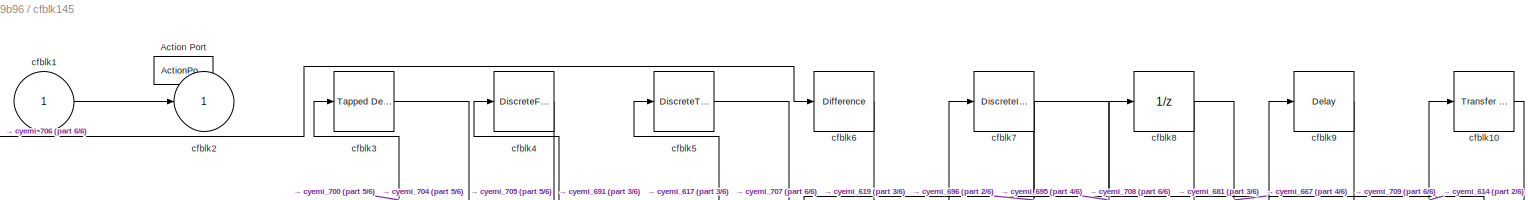
[diagram: cfblk145 - part 1/6, full width, top band]
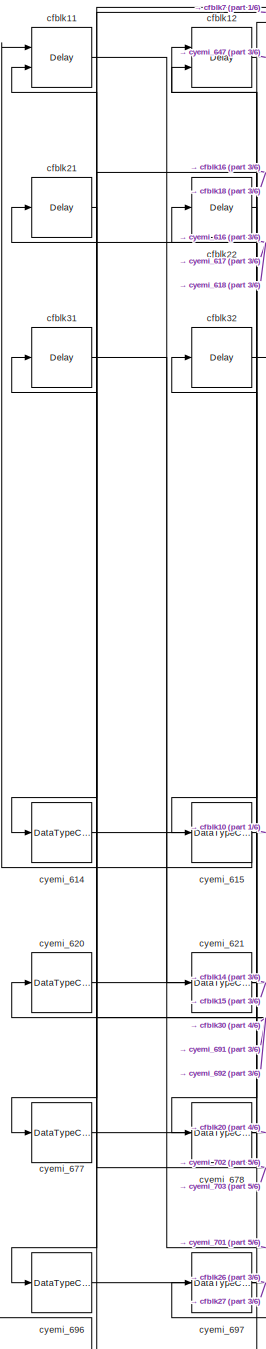
[diagram: cfblk145 - part 2/6, left side, full height]
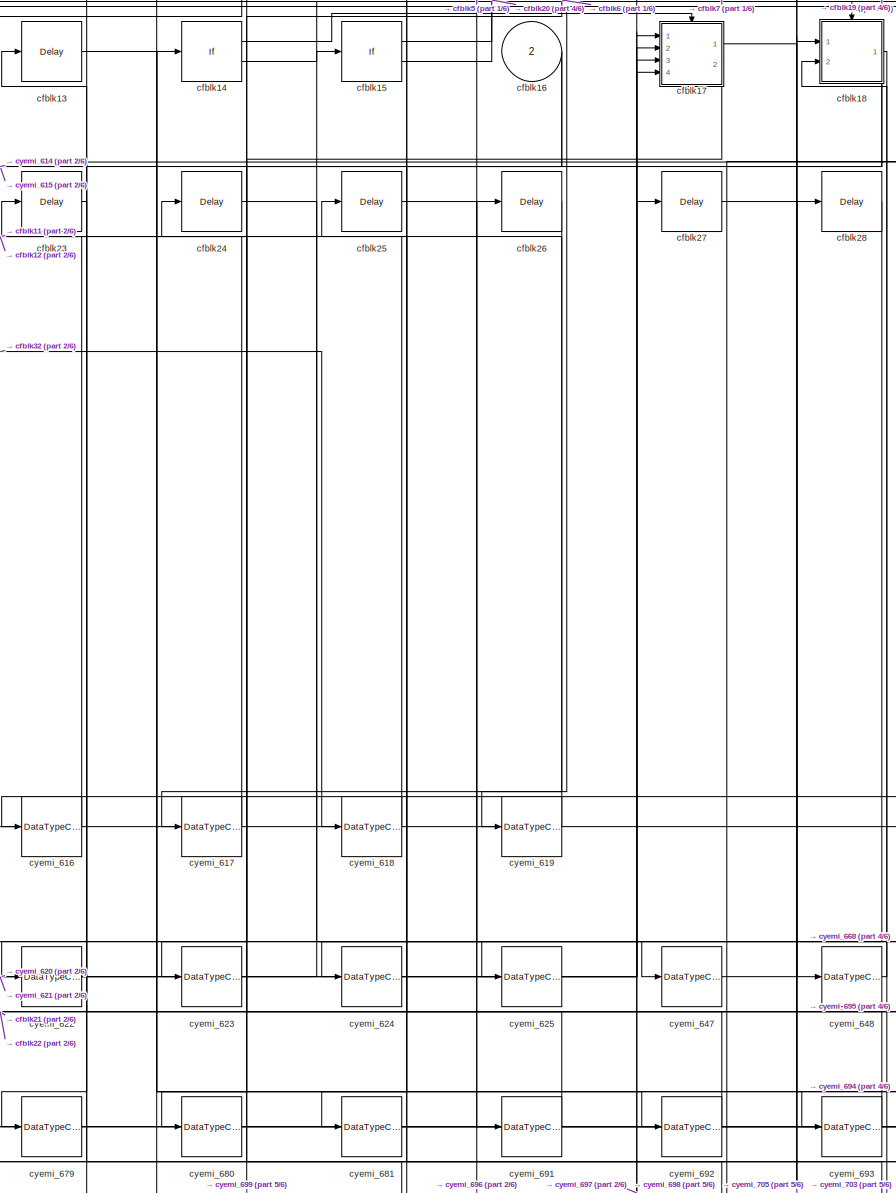
[diagram: cfblk145 - part 3/6, central region]
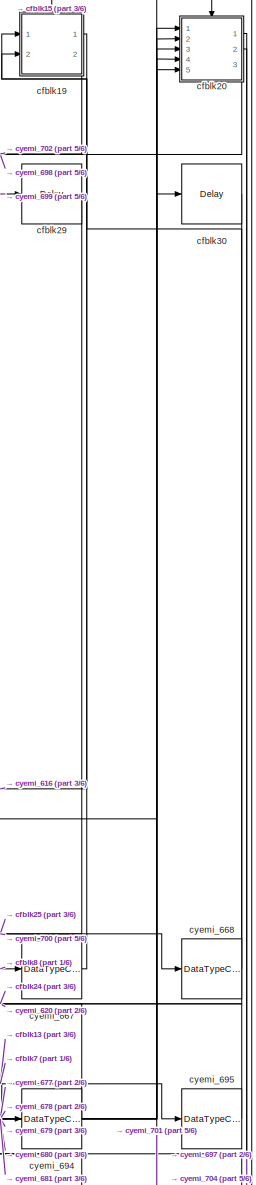
[diagram: cfblk145 - part 4/6, middle right region]
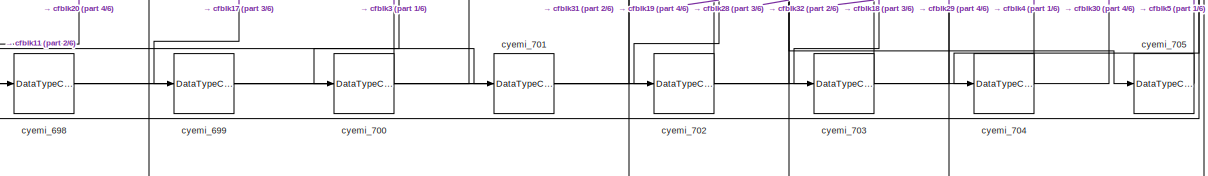
[diagram: cfblk145 - part 5/6, full width, bottom band]
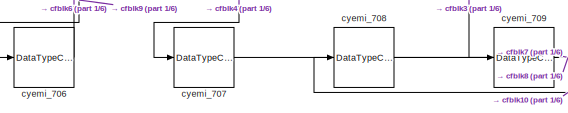
[diagram: cfblk145 - part 6/6, bottom left region]
BLOCK [SubSystem] cfblk145
  Ports = [2, 1, 0, 0, 0, 0, 0, 1]
  RequestExecContextInheritance = off
  TreatAsAtomicUnit = on
BLOCK [ActionPort] cfblk145/Action Port
  ActionType = then
BLOCK [Inport] cfblk145/cfblk1
  IconDisplay = Port number
BLOCK [Reference] cfblk145/cfblk10  REF=simulink/Discrete/Transfer Fcn
First Order
  Ports = [1, 1]
  SourceBlock = simulink/Discrete/Transfer Fcn\nFirst Order
  SourceProductBaseCode = SL
  SourceProductName = Simulink
  SourceType = First Order Transfer Fcn
BLOCK [Delay] cfblk145/cfblk11
  DelayLengthSource = Input port
  InputPortMap = u0,p1
  Ports = [2, 1]
BLOCK [Delay] cfblk145/cfblk12
  InputPortMap = u0,e6
  Ports = [2, 1]
  ShowEnablePort = on
BLOCK [Delay] cfblk145/cfblk13
  InputPortMap = u0
  Ports = [1, 1]
BLOCK [If] cfblk145/cfblk14
  Ports = [1, 2]
  SampleTime = 1
BLOCK [If] cfblk145/cfblk15
  Ports = [1, 2]
  SampleTime = 1
BLOCK [Inport] cfblk145/cfblk16
  IconDisplay = Port number
  Port = 2
BLOCK [SubSystem] cfblk145/cfblk17
  Ports = [4, 2, 0, 0, 0, 0, 0, 1]
  RequestExecContextInheritance = off
  TreatAsAtomicUnit = on
BLOCK [ActionPort] cfblk145/cfblk17/Action Port
  ActionType = then
BLOCK [Inport] cfblk145/cfblk17/cfblk1
  IconDisplay = Port number
BLOCK [DiscreteTransferFcn] cfblk145/cfblk17/cfblk10
  InputPortMap = u0
  Ports = [1, 1]
BLOCK [Delay] cfblk145/cfblk17/cfblk11
  DelayLengthSource = Input port
  InputPortMap = u0,p1
  Ports = [2, 1]
BLOCK [Reference] cfblk145/cfblk17/cfblk12  REF=simulink/Discrete/Transfer Fcn
Lead or Lag
  Ports = [1, 1]
  SourceBlock = simulink/Discrete/Transfer Fcn\nLead or Lag
  SourceProductBaseCode = SL
  SourceProductName = Simulink
  SourceType = Lead or Lag Compensator
BLOCK [Delay] cfblk145/cfblk17/cfblk13
  DelayLengthSource = Input port
  InputPortMap = u0,p1
  Ports = [2, 1]
BLOCK [Inport] cfblk145/cfblk17/cfblk14
  IconDisplay = Port number
  Port = 2
BLOCK [Inport] cfblk145/cfblk17/cfblk15
  IconDisplay = Port number
  Port = 3
BLOCK [Inport] cfblk145/cfblk17/cfblk16
  IconDisplay = Port number
  Port = 4
BLOCK [Outport] cfblk145/cfblk17/cfblk17
  IconDisplay = Port number
  Port = 2
BLOCK [Delay] cfblk145/cfblk17/cfblk18
  InputPortMap = u0
  Ports = [1, 1]
BLOCK [DataTypeConversion] cfblk145/cfblk17/cfblk19
  OutDataTypeStr = double
  RndMeth = Floor
  SaturateOnIntegerOverflow = off
BLOCK [Outport] cfblk145/cfblk17/cfblk2
  IconDisplay = Port number
BLOCK [DataTypeConversion] cfblk145/cfblk17/cfblk20
  OutDataTypeStr = double
  RndMeth = Floor
  SaturateOnIntegerOverflow = off
BLOCK [DataTypeConversion] cfblk145/cfblk17/cfblk21
  OutDataTypeStr = uint32
  RndMeth = Floor
  SaturateOnIntegerOverflow = off
BLOCK [DataTypeConversion] cfblk145/cfblk17/cfblk22
  OutDataTypeStr = double
  RndMeth = Floor
  SaturateOnIntegerOverflow = off
BLOCK [Delay] cfblk145/cfblk17/cfblk3
  DelayLengthSource = Input port
  InputPortMap = u0,p1
  Ports = [2, 1]
BLOCK [DiscreteIntegrator] cfblk145/cfblk17/cfblk4
  ICPrevOutput = DiscIntNeverNeededParam
  ICPrevScaledInput = DiscIntNeverNeededParam
  InitialConditionSetting = Auto
  OutDataTypeStr = double
  Ports = [1, 1]
  SampleTime = -1
BLOCK [Delay] cfblk145/cfblk17/cfblk5
  DelayLengthSource = Input port
  InputPortMap = u0,p1
  Ports = [2, 1]
BLOCK [DiscreteTransferFcn] cfblk145/cfblk17/cfblk6
  InputPortMap = u0
  Ports = [1, 1]
BLOCK [Reference] cfblk145/cfblk17/cfblk7  REF=simulink/Continuous/PID Controller (2DOF)
  Ports = [2, 1]
  SourceBlock = simulink/Continuous/PID Controller (2DOF)
  SourceProductBaseCode = SL
  SourceProductName = Simulink
  SourceType = PID 2dof
BLOCK [DiscreteFir] cfblk145/cfblk17/cfblk8
  InputPortMap = u0
  OutputPortMap = o0
  Ports = [1, 1]
BLOCK [Reference] cfblk145/cfblk17/cfblk9  REF=simulink/Discrete/Transfer Fcn
Real Zero
  Ports = [1, 1]
  SourceBlock = simulink/Discrete/Transfer Fcn\nReal Zero
  SourceProductBaseCode = SL
  SourceProductName = Simulink
  SourceType = Transfer Fcn Real Zero
BLOCK [DataTypeConversion] cfblk145/cfblk17/cyemi_626
  OutDataTypeStr = double
  RndMeth = Floor
  SaturateOnIntegerOverflow = off
BLOCK [DataTypeConversion] cfblk145/cfblk17/cyemi_627
  OutDataTypeStr = double
  RndMeth = Floor
  SaturateOnIntegerOverflow = off
BLOCK [DataTypeConversion] cfblk145/cfblk17/cyemi_628
  OutDataTypeStr = uint32
  RndMeth = Floor
  SaturateOnIntegerOverflow = off
BLOCK [DataTypeConversion] cfblk145/cfblk17/cyemi_629
  OutDataTypeStr = double
  RndMeth = Floor
  SaturateOnIntegerOverflow = off
BLOCK [DataTypeConversion] cfblk145/cfblk17/cyemi_630
  OutDataTypeStr = double
  RndMeth = Floor
  SaturateOnIntegerOverflow = off
BLOCK [DataTypeConversion] cfblk145/cfblk17/cyemi_631
  OutDataTypeStr = double
  RndMeth = Floor
  SaturateOnIntegerOverflow = off
BLOCK [DataTypeConversion] cfblk145/cfblk17/cyemi_632
  OutDataTypeStr = double
  RndMeth = Floor
  SaturateOnIntegerOverflow = off
BLOCK [DataTypeConversion] cfblk145/cfblk17/cyemi_633
  OutDataTypeStr = double
  RndMeth = Floor
  SaturateOnIntegerOverflow = off
BLOCK [DataTypeConversion] cfblk145/cfblk17/cyemi_634
  OutDataTypeStr = uint32
  RndMeth = Floor
  SaturateOnIntegerOverflow = off
BLOCK [DataTypeConversion] cfblk145/cfblk17/cyemi_635
  OutDataTypeStr = double
  RndMeth = Floor
  SaturateOnIntegerOverflow = off
BLOCK [DataTypeConversion] cfblk145/cfblk17/cyemi_636
  OutDataTypeStr = double
  RndMeth = Floor
  SaturateOnIntegerOverflow = off
BLOCK [DataTypeConversion] cfblk145/cfblk17/cyemi_637
  OutDataTypeStr = double
  RndMeth = Floor
  SaturateOnIntegerOverflow = off
BLOCK [DataTypeConversion] cfblk145/cfblk17/cyemi_638
  OutDataTypeStr = double
  RndMeth = Floor
  SaturateOnIntegerOverflow = off
BLOCK [DataTypeConversion] cfblk145/cfblk17/cyemi_639
  OutDataTypeStr = double
  RndMeth = Floor
  SaturateOnIntegerOverflow = off
BLOCK [DataTypeConversion] cfblk145/cfblk17/cyemi_640
  OutDataTypeStr = double
  RndMeth = Floor
  SaturateOnIntegerOverflow = off
BLOCK [DataTypeConversion] cfblk145/cfblk17/cyemi_641
  OutDataTypeStr = double
  RndMeth = Floor
  SaturateOnIntegerOverflow = off
BLOCK [DataTypeConversion] cfblk145/cfblk17/cyemi_642
  OutDataTypeStr = double
  RndMeth = Floor
  SaturateOnIntegerOverflow = off
BLOCK [DataTypeConversion] cfblk145/cfblk17/cyemi_643
  OutDataTypeStr = double
  RndMeth = Floor
  SaturateOnIntegerOverflow = off
BLOCK [DataTypeConversion] cfblk145/cfblk17/cyemi_644
  OutDataTypeStr = double
  RndMeth = Floor
  SaturateOnIntegerOverflow = off
BLOCK [DataTypeConversion] cfblk145/cfblk17/cyemi_645
  OutDataTypeStr = double
  RndMeth = Floor
  SaturateOnIntegerOverflow = off
BLOCK [DataTypeConversion] cfblk145/cfblk17/cyemi_646
  OutDataTypeStr = double
  RndMeth = Floor
  SaturateOnIntegerOverflow = off
BLOCK [SubSystem] cfblk145/cfblk18
  Ports = [2, 1, 0, 0, 0, 0, 0, 1]
  RequestExecContextInheritance = off
  TreatAsAtomicUnit = on
BLOCK [ActionPort] cfblk145/cfblk18/Action Port
  ActionType = else
BLOCK [Inport] cfblk145/cfblk18/cfblk1
  IconDisplay = Port number
BLOCK [DiscreteStateSpace] cfblk145/cfblk18/cfblk10
  SampleTime = -1
BLOCK [DiscreteIntegrator] cfblk145/cfblk18/cfblk11
  ICPrevOutput = DiscIntNeverNeededParam
  ICPrevScaledInput = DiscIntNeverNeededParam
  InitialConditionSetting = Auto
  OutDataTypeStr = double
  Ports = [1, 1]
  SampleTime = -1
BLOCK [Delay] cfblk145/cfblk18/cfblk12
  DelayLengthSource = Input port
  InputPortMap = u0,p1
  Ports = [2, 1]
BLOCK [Reference] cfblk145/cfblk18/cfblk13  REF=simulink/Continuous/PID Controller
  Ports = [1, 1]
  SourceBlock = simulink/Continuous/PID Controller
  SourceProductBaseCode = SL
  SourceProductName = Simulink
  SourceType = PID 1dof
BLOCK [Reference] cfblk145/cfblk18/cfblk14  REF=simulink/Discrete/Difference
  Ports = [1, 1]
  SourceBlock = simulink/Discrete/Difference
  SourceProductBaseCode = SL
  SourceProductName = Simulink
  SourceType = Difference
BLOCK [Inport] cfblk145/cfblk18/cfblk15
  IconDisplay = Port number
  Port = 2
BLOCK [Delay] cfblk145/cfblk18/cfblk16
  InputPortMap = u0
  Ports = [1, 1]
BLOCK [Delay] cfblk145/cfblk18/cfblk17
  InputPortMap = u0
  Ports = [1, 1]
BLOCK [Delay] cfblk145/cfblk18/cfblk18
  InputPortMap = u0
  Ports = [1, 1]
BLOCK [Outport] cfblk145/cfblk18/cfblk2
  IconDisplay = Port number
BLOCK [DiscreteFilter] cfblk145/cfblk18/cfblk3
  InputPortMap = u0
  Ports = [1, 1]
BLOCK [Delay] cfblk145/cfblk18/cfblk4
  InputPortMap = u0,e6
  Ports = [2, 1]
  ShowEnablePort = on
BLOCK [DiscreteTransferFcn] cfblk145/cfblk18/cfblk5
  InputPortMap = u0
  Ports = [1, 1]
BLOCK [Reference] cfblk145/cfblk18/cfblk6  REF=simulink/Discrete/Transfer Fcn
Lead or Lag
  Ports = [1, 1]
  SourceBlock = simulink/Discrete/Transfer Fcn\nLead or Lag
  SourceProductBaseCode = SL
  SourceProductName = Simulink
  SourceType = Lead or Lag Compensator
BLOCK [Reference] cfblk145/cfblk18/cfblk7  REF=simulink/Discrete/Transfer Fcn
Real Zero
  Ports = [1, 1]
  SourceBlock = simulink/Discrete/Transfer Fcn\nReal Zero
  SourceProductBaseCode = SL
  SourceProductName = Simulink
  SourceType = Transfer Fcn Real Zero
BLOCK [Delay] cfblk145/cfblk18/cfblk8
  DelayLengthSource = Input port
  InputPortMap = u0,p1
  Ports = [2, 1]
BLOCK [DiscreteIntegrator] cfblk145/cfblk18/cfblk9
  ICPrevOutput = DiscIntNeverNeededParam
  ICPrevScaledInput = DiscIntNeverNeededParam
  InitialConditionSetting = Auto
  OutDataTypeStr = double
  Ports = [1, 1]
  SampleTime = -1
BLOCK [DataTypeConversion] cfblk145/cfblk18/cyemi_649
  OutDataTypeStr = double
  RndMeth = Floor
  SaturateOnIntegerOverflow = off
BLOCK [DataTypeConversion] cfblk145/cfblk18/cyemi_650
  OutDataTypeStr = double
  RndMeth = Floor
  SaturateOnIntegerOverflow = off
BLOCK [DataTypeConversion] cfblk145/cfblk18/cyemi_651
  OutDataTypeStr = double
  RndMeth = Floor
  SaturateOnIntegerOverflow = off
BLOCK [DataTypeConversion] cfblk145/cfblk18/cyemi_652
  OutDataTypeStr = double
  RndMeth = Floor
  SaturateOnIntegerOverflow = off
BLOCK [DataTypeConversion] cfblk145/cfblk18/cyemi_653
  OutDataTypeStr = double
  RndMeth = Floor
  SaturateOnIntegerOverflow = off
BLOCK [DataTypeConversion] cfblk145/cfblk18/cyemi_654
  OutDataTypeStr = double
  RndMeth = Floor
  SaturateOnIntegerOverflow = off
BLOCK [DataTypeConversion] cfblk145/cfblk18/cyemi_655
  OutDataTypeStr = double
  RndMeth = Floor
  SaturateOnIntegerOverflow = off
BLOCK [DataTypeConversion] cfblk145/cfblk18/cyemi_656
  OutDataTypeStr = double
  RndMeth = Floor
  SaturateOnIntegerOverflow = off
BLOCK [DataTypeConversion] cfblk145/cfblk18/cyemi_657
  OutDataTypeStr = double
  RndMeth = Floor
  SaturateOnIntegerOverflow = off
BLOCK [DataTypeConversion] cfblk145/cfblk18/cyemi_658
  OutDataTypeStr = double
  RndMeth = Floor
  SaturateOnIntegerOverflow = off
BLOCK [DataTypeConversion] cfblk145/cfblk18/cyemi_659
  OutDataTypeStr = double
  RndMeth = Floor
  SaturateOnIntegerOverflow = off
BLOCK [DataTypeConversion] cfblk145/cfblk18/cyemi_660
  OutDataTypeStr = double
  RndMeth = Floor
  SaturateOnIntegerOverflow = off
BLOCK [DataTypeConversion] cfblk145/cfblk18/cyemi_661
  OutDataTypeStr = double
  RndMeth = Floor
  SaturateOnIntegerOverflow = off
BLOCK [DataTypeConversion] cfblk145/cfblk18/cyemi_662
  OutDataTypeStr = double
  RndMeth = Floor
  SaturateOnIntegerOverflow = off
BLOCK [DataTypeConversion] cfblk145/cfblk18/cyemi_663
  OutDataTypeStr = double
  RndMeth = Floor
  SaturateOnIntegerOverflow = off
BLOCK [DataTypeConversion] cfblk145/cfblk18/cyemi_664
  OutDataTypeStr = double
  RndMeth = Floor
  SaturateOnIntegerOverflow = off
BLOCK [DataTypeConversion] cfblk145/cfblk18/cyemi_665
  OutDataTypeStr = double
  RndMeth = Floor
  SaturateOnIntegerOverflow = off
BLOCK [DataTypeConversion] cfblk145/cfblk18/cyemi_666
  OutDataTypeStr = double
  RndMeth = Floor
  SaturateOnIntegerOverflow = off
BLOCK [SubSystem] cfblk145/cfblk19
  Ports = [2, 2, 0, 0, 0, 0, 0, 1]
  RequestExecContextInheritance = off
  TreatAsAtomicUnit = on
BLOCK [ActionPort] cfblk145/cfblk19/Action Port
  ActionType = then
BLOCK [Inport] cfblk145/cfblk19/cfblk1
  IconDisplay = Port number
BLOCK [DiscreteIntegrator] cfblk145/cfblk19/cfblk10
  ICPrevOutput = DiscIntNeverNeededParam
  ICPrevScaledInput = DiscIntNeverNeededParam
  InitialConditionSetting = Auto
  OutDataTypeStr = double
  Ports = [1, 1]
  SampleTime = -1
BLOCK [Inport] cfblk145/cfblk19/cfblk11
  IconDisplay = Port number
  Port = 2
BLOCK [Outport] cfblk145/cfblk19/cfblk12
  IconDisplay = Port number
  Port = 2
BLOCK [Outport] cfblk145/cfblk19/cfblk2
  IconDisplay = Port number
BLOCK [UnitDelay] cfblk145/cfblk19/cfblk3
  InputProcessing = Elements as channels (sample based)
  SampleTime = -1
BLOCK [Reference] cfblk145/cfblk19/cfblk4  REF=simulink/Discrete/Difference
  Ports = [1, 1]
  SourceBlock = simulink/Discrete/Difference
  SourceProductBaseCode = SL
  SourceProductName = Simulink
  SourceType = Difference
BLOCK [Reference] cfblk145/cfblk19/cfblk5  REF=simulink/Discrete/Tapped Delay
  Ports = [1, 1]
  SourceBlock = simulink/Discrete/Tapped Delay
  SourceProductBaseCode = SL
  SourceProductName = Simulink
  SourceType = Tapped Delay Line
BLOCK [Reference] cfblk145/cfblk19/cfblk6  REF=simulink/Discrete/Transfer Fcn
Real Zero
  Ports = [1, 1]
  SourceBlock = simulink/Discrete/Transfer Fcn\nReal Zero
  SourceProductBaseCode = SL
  SourceProductName = Simulink
  SourceType = Transfer Fcn Real Zero
BLOCK [Reference] cfblk145/cfblk19/cfblk7  REF=simulink/Discrete/Tapped Delay
  Ports = [1, 1]
  SourceBlock = simulink/Discrete/Tapped Delay
  SourceProductBaseCode = SL
  SourceProductName = Simulink
  SourceType = Tapped Delay Line
BLOCK [DiscreteStateSpace] cfblk145/cfblk19/cfblk8
  SampleTime = -1
BLOCK [Reference] cfblk145/cfblk19/cfblk9  REF=simulink/Continuous/PID Controller
  Ports = [1, 1]
  SourceBlock = simulink/Continuous/PID Controller
  SourceProductBaseCode = SL
  SourceProductName = Simulink
  SourceType = PID 1dof
BLOCK [DataTypeConversion] cfblk145/cfblk19/cyemi_669
  OutDataTypeStr = double
  RndMeth = Floor
  SaturateOnIntegerOverflow = off
BLOCK [DataTypeConversion] cfblk145/cfblk19/cyemi_670
  OutDataTypeStr = double
  RndMeth = Floor
  SaturateOnIntegerOverflow = off
BLOCK [DataTypeConversion] cfblk145/cfblk19/cyemi_671
  OutDataTypeStr = double
  RndMeth = Floor
  SaturateOnIntegerOverflow = off
BLOCK [DataTypeConversion] cfblk145/cfblk19/cyemi_672
  OutDataTypeStr = double
  RndMeth = Floor
  SaturateOnIntegerOverflow = off
BLOCK [DataTypeConversion] cfblk145/cfblk19/cyemi_673
  OutDataTypeStr = double
  RndMeth = Floor
  SaturateOnIntegerOverflow = off
BLOCK [DataTypeConversion] cfblk145/cfblk19/cyemi_674
  OutDataTypeStr = double
  RndMeth = Floor
  SaturateOnIntegerOverflow = off
BLOCK [DataTypeConversion] cfblk145/cfblk19/cyemi_675
  OutDataTypeStr = double
  RndMeth = Floor
  SaturateOnIntegerOverflow = off
BLOCK [DataTypeConversion] cfblk145/cfblk19/cyemi_676
  OutDataTypeStr = double
  RndMeth = Floor
  SaturateOnIntegerOverflow = off
BLOCK [Outport] cfblk145/cfblk2
  IconDisplay = Port number
BLOCK [SubSystem] cfblk145/cfblk20
  Ports = [5, 3, 0, 0, 0, 0, 0, 1]
  RequestExecContextInheritance = off
  TreatAsAtomicUnit = on
BLOCK [ActionPort] cfblk145/cfblk20/Action Port
  ActionType = else
BLOCK [Inport] cfblk145/cfblk20/cfblk1
  IconDisplay = Port number
BLOCK [Inport] cfblk145/cfblk20/cfblk10
  IconDisplay = Port number
  Port = 2
BLOCK [Inport] cfblk145/cfblk20/cfblk11
  IconDisplay = Port number
  Port = 3
BLOCK [Inport] cfblk145/cfblk20/cfblk12
  IconDisplay = Port number
  Port = 4
BLOCK [Inport] cfblk145/cfblk20/cfblk13
  IconDisplay = Port number
  Port = 5
BLOCK [Outport] cfblk145/cfblk20/cfblk14
  IconDisplay = Port number
  Port = 2
BLOCK [Outport] cfblk145/cfblk20/cfblk15
  IconDisplay = Port number
  Port = 3
BLOCK [Outport] cfblk145/cfblk20/cfblk2
  IconDisplay = Port number
BLOCK [Reference] cfblk145/cfblk20/cfblk3  REF=simulink/Discrete/Difference
  Ports = [1, 1]
  SourceBlock = simulink/Discrete/Difference
  SourceProductBaseCode = SL
  SourceProductName = Simulink
  SourceType = Difference
BLOCK [DiscreteFir] cfblk145/cfblk20/cfblk4
  InputPortMap = u0
  OutputPortMap = o0
  Ports = [1, 1]
BLOCK [Delay] cfblk145/cfblk20/cfblk5
  InputPortMap = u0
  Ports = [1, 1]
BLOCK [Delay] cfblk145/cfblk20/cfblk6
  InputPortMap = u0
  Ports = [1, 1]
BLOCK [Delay] cfblk145/cfblk20/cfblk7
  DelayLengthSource = Input port
  InputPortMap = u0,p1
  Ports = [2, 1]
BLOCK [Delay] cfblk145/cfblk20/cfblk8
  InputPortMap = u0,e6
  Ports = [2, 1]
  ShowEnablePort = on
BLOCK [Reference] cfblk145/cfblk20/cfblk9  REF=simulink/Discrete/Transfer Fcn
Lead or Lag
  Ports = [1, 1]
  SourceBlock = simulink/Discrete/Transfer Fcn\nLead or Lag
  SourceProductBaseCode = SL
  SourceProductName = Simulink
  SourceType = Lead or Lag Compensator
BLOCK [DataTypeConversion] cfblk145/cfblk20/cyemi_682
  OutDataTypeStr = double
  RndMeth = Floor
  SaturateOnIntegerOverflow = off
BLOCK [DataTypeConversion] cfblk145/cfblk20/cyemi_683
  OutDataTypeStr = double
  RndMeth = Floor
  SaturateOnIntegerOverflow = off
BLOCK [DataTypeConversion] cfblk145/cfblk20/cyemi_684
  OutDataTypeStr = double
  RndMeth = Floor
  SaturateOnIntegerOverflow = off
BLOCK [DataTypeConversion] cfblk145/cfblk20/cyemi_685
  OutDataTypeStr = double
  RndMeth = Floor
  SaturateOnIntegerOverflow = off
BLOCK [DataTypeConversion] cfblk145/cfblk20/cyemi_686
  OutDataTypeStr = double
  RndMeth = Floor
  SaturateOnIntegerOverflow = off
BLOCK [DataTypeConversion] cfblk145/cfblk20/cyemi_687
  OutDataTypeStr = double
  RndMeth = Floor
  SaturateOnIntegerOverflow = off
BLOCK [DataTypeConversion] cfblk145/cfblk20/cyemi_688
  OutDataTypeStr = double
  RndMeth = Floor
  SaturateOnIntegerOverflow = off
BLOCK [DataTypeConversion] cfblk145/cfblk20/cyemi_689
  OutDataTypeStr = double
  RndMeth = Floor
  SaturateOnIntegerOverflow = off
BLOCK [DataTypeConversion] cfblk145/cfblk20/cyemi_690
  OutDataTypeStr = double
  RndMeth = Floor
  SaturateOnIntegerOverflow = off
BLOCK [Delay] cfblk145/cfblk21
  InputPortMap = u0
  Ports = [1, 1]
BLOCK [Delay] cfblk145/cfblk22
  InputPortMap = u0
  Ports = [1, 1]
BLOCK [Delay] cfblk145/cfblk23
  InputPortMap = u0
  Ports = [1, 1]
BLOCK [Delay] cfblk145/cfblk24
  InputPortMap = u0
  Ports = [1, 1]
BLOCK [Delay] cfblk145/cfblk25
  InputPortMap = u0
  Ports = [1, 1]
BLOCK [Delay] cfblk145/cfblk26
  InputPortMap = u0
  Ports = [1, 1]
BLOCK [Delay] cfblk145/cfblk27
  InputPortMap = u0
  Ports = [1, 1]
BLOCK [Delay] cfblk145/cfblk28
  InputPortMap = u0
  Ports = [1, 1]
BLOCK [Delay] cfblk145/cfblk29
  InputPortMap = u0
  Ports = [1, 1]
BLOCK [Reference] cfblk145/cfblk3  REF=simulink/Discrete/Tapped Delay
  Ports = [1, 1]
  SourceBlock = simulink/Discrete/Tapped Delay
  SourceProductBaseCode = SL
  SourceProductName = Simulink
  SourceType = Tapped Delay Line
BLOCK [Delay] cfblk145/cfblk30
  InputPortMap = u0
  Ports = [1, 1]
BLOCK [Delay] cfblk145/cfblk31
  InputPortMap = u0
  Ports = [1, 1]
BLOCK [Delay] cfblk145/cfblk32
  InputPortMap = u0
  Ports = [1, 1]
BLOCK [DiscreteFir] cfblk145/cfblk4
  InputPortMap = u0
  OutputPortMap = o0
  Ports = [1, 1]
BLOCK [DiscreteTransferFcn] cfblk145/cfblk5
  InputPortMap = u0
  Ports = [1, 1]
BLOCK [Reference] cfblk145/cfblk6  REF=simulink/Discrete/Difference
  Ports = [1, 1]
  SourceBlock = simulink/Discrete/Difference
  SourceProductBaseCode = SL
  SourceProductName = Simulink
  SourceType = Difference
BLOCK [DiscreteIntegrator] cfblk145/cfblk7
  ICPrevOutput = DiscIntNeverNeededParam
  ICPrevScaledInput = DiscIntNeverNeededParam
  InitialConditionSetting = Auto
  OutDataTypeStr = double
  Ports = [1, 1]
  SampleTime = -1
BLOCK [UnitDelay] cfblk145/cfblk8
  InputProcessing = Elements as channels (sample based)
  SampleTime = -1
BLOCK [Delay] cfblk145/cfblk9
  InputPortMap = u0
  Ports = [1, 1]
BLOCK [DataTypeConversion] cfblk145/cyemi_614
  OutDataTypeStr = double
  RndMeth = Floor
  SaturateOnIntegerOverflow = off
BLOCK [DataTypeConversion] cfblk145/cyemi_615
  OutDataTypeStr = double
  RndMeth = Floor
  SaturateOnIntegerOverflow = off
BLOCK [DataTypeConversion] cfblk145/cyemi_616
  OutDataTypeStr = double
  RndMeth = Floor
  SaturateOnIntegerOverflow = off
BLOCK [DataTypeConversion] cfblk145/cyemi_617
  OutDataTypeStr = double
  RndMeth = Floor
  SaturateOnIntegerOverflow = off
BLOCK [DataTypeConversion] cfblk145/cyemi_618
  OutDataTypeStr = double
  RndMeth = Floor
  SaturateOnIntegerOverflow = off
BLOCK [DataTypeConversion] cfblk145/cyemi_619
  OutDataTypeStr = double
  RndMeth = Floor
  SaturateOnIntegerOverflow = off
BLOCK [DataTypeConversion] cfblk145/cyemi_620
  OutDataTypeStr = double
  RndMeth = Floor
  SaturateOnIntegerOverflow = off
BLOCK [DataTypeConversion] cfblk145/cyemi_621
  OutDataTypeStr = double
  RndMeth = Floor
  SaturateOnIntegerOverflow = off
BLOCK [DataTypeConversion] cfblk145/cyemi_622
  OutDataTypeStr = double
  RndMeth = Floor
  SaturateOnIntegerOverflow = off
BLOCK [DataTypeConversion] cfblk145/cyemi_623
  OutDataTypeStr = double
  RndMeth = Floor
  SaturateOnIntegerOverflow = off
BLOCK [DataTypeConversion] cfblk145/cyemi_624
  OutDataTypeStr = double
  RndMeth = Floor
  SaturateOnIntegerOverflow = off
BLOCK [DataTypeConversion] cfblk145/cyemi_625
  OutDataTypeStr = double
  RndMeth = Floor
  SaturateOnIntegerOverflow = off
BLOCK [DataTypeConversion] cfblk145/cyemi_647
  OutDataTypeStr = double
  RndMeth = Floor
  SaturateOnIntegerOverflow = off
BLOCK [DataTypeConversion] cfblk145/cyemi_648
  OutDataTypeStr = double
  RndMeth = Floor
  SaturateOnIntegerOverflow = off
BLOCK [DataTypeConversion] cfblk145/cyemi_667
  OutDataTypeStr = double
  RndMeth = Floor
  SaturateOnIntegerOverflow = off
BLOCK [DataTypeConversion] cfblk145/cyemi_668
  OutDataTypeStr = double
  RndMeth = Floor
  SaturateOnIntegerOverflow = off
BLOCK [DataTypeConversion] cfblk145/cyemi_677
  OutDataTypeStr = double
  RndMeth = Floor
  SaturateOnIntegerOverflow = off
BLOCK [DataTypeConversion] cfblk145/cyemi_678
  OutDataTypeStr = double
  RndMeth = Floor
  SaturateOnIntegerOverflow = off
BLOCK [DataTypeConversion] cfblk145/cyemi_679
  OutDataTypeStr = double
  RndMeth = Floor
  SaturateOnIntegerOverflow = off
BLOCK [DataTypeConversion] cfblk145/cyemi_680
  OutDataTypeStr = double
  RndMeth = Floor
  SaturateOnIntegerOverflow = off
BLOCK [DataTypeConversion] cfblk145/cyemi_681
  OutDataTypeStr = double
  RndMeth = Floor
  SaturateOnIntegerOverflow = off
BLOCK [DataTypeConversion] cfblk145/cyemi_691
  OutDataTypeStr = double
  RndMeth = Floor
  SaturateOnIntegerOverflow = off
BLOCK [DataTypeConversion] cfblk145/cyemi_692
  OutDataTypeStr = double
  RndMeth = Floor
  SaturateOnIntegerOverflow = off
BLOCK [DataTypeConversion] cfblk145/cyemi_693
  OutDataTypeStr = double
  RndMeth = Floor
  SaturateOnIntegerOverflow = off
BLOCK [DataTypeConversion] cfblk145/cyemi_694
  OutDataTypeStr = double
  RndMeth = Floor
  SaturateOnIntegerOverflow = off
BLOCK [DataTypeConversion] cfblk145/cyemi_695
  OutDataTypeStr = double
  RndMeth = Floor
  SaturateOnIntegerOverflow = off
BLOCK [DataTypeConversion] cfblk145/cyemi_696
  OutDataTypeStr = double
  RndMeth = Floor
  SaturateOnIntegerOverflow = off
BLOCK [DataTypeConversion] cfblk145/cyemi_697
  OutDataTypeStr = double
  RndMeth = Floor
  SaturateOnIntegerOverflow = off
BLOCK [DataTypeConversion] cfblk145/cyemi_698
  OutDataTypeStr = double
  RndMeth = Floor
  SaturateOnIntegerOverflow = off
BLOCK [DataTypeConversion] cfblk145/cyemi_699
  OutDataTypeStr = double
  RndMeth = Floor
  SaturateOnIntegerOverflow = off
BLOCK [DataTypeConversion] cfblk145/cyemi_700
  OutDataTypeStr = double
  RndMeth = Floor
  SaturateOnIntegerOverflow = off
BLOCK [DataTypeConversion] cfblk145/cyemi_701
  OutDataTypeStr = double
  RndMeth = Floor
  SaturateOnIntegerOverflow = off
BLOCK [DataTypeConversion] cfblk145/cyemi_702
  OutDataTypeStr = double
  RndMeth = Floor
  SaturateOnIntegerOverflow = off
BLOCK [DataTypeConversion] cfblk145/cyemi_703
  OutDataTypeStr = double
  RndMeth = Floor
  SaturateOnIntegerOverflow = off
BLOCK [DataTypeConversion] cfblk145/cyemi_704
  OutDataTypeStr = double
  RndMeth = Floor
  SaturateOnIntegerOverflow = off
BLOCK [DataTypeConversion] cfblk145/cyemi_705
  OutDataTypeStr = double
  RndMeth = Floor
  SaturateOnIntegerOverflow = off
BLOCK [DataTypeConversion] cfblk145/cyemi_706
  OutDataTypeStr = double
  RndMeth = Floor
  SaturateOnIntegerOverflow = off
BLOCK [DataTypeConversion] cfblk145/cyemi_707
  OutDataTypeStr = double
  RndMeth = Floor
  SaturateOnIntegerOverflow = off
BLOCK [DataTypeConversion] cfblk145/cyemi_708
  OutDataTypeStr = double
  RndMeth = Floor
  SaturateOnIntegerOverflow = off
BLOCK [DataTypeConversion] cfblk145/cyemi_709
  OutDataTypeStr = double
  RndMeth = Floor
  SaturateOnIntegerOverflow = off
BLOCK [SubSystem] cfblk146
  Ports = [2, 3, 0, 0, 0, 0, 0, 1]
  RequestExecContextInheritance = off
  TreatAsAtomicUnit = on
BLOCK [ActionPort] cfblk146/Action Port
  ActionType = else
BLOCK [Inport] cfblk146/cfblk1
  IconDisplay = Port number
BLOCK [Inport] cfblk146/cfblk10
  IconDisplay = Port number
  Port = 2
BLOCK [Outport] cfblk146/cfblk11
  IconDisplay = Port number
  Port = 2
BLOCK [Outport] cfblk146/cfblk12
  IconDisplay = Port number
  Port = 3
BLOCK [Outport] cfblk146/cfblk2
  IconDisplay = Port number
BLOCK [UnitDelay] cfblk146/cfblk3
  InputProcessing = Elements as channels (sample based)
  SampleTime = -1
BLOCK [DiscreteFilter] cfblk146/cfblk4
  InputPortMap = u0
  Ports = [1, 1]
BLOCK [DiscreteZeroPole] cfblk146/cfblk5
  Gain = 1
  Poles = [0 0.5]
  SampleTime = -1
BLOCK [Reference] cfblk146/cfblk6  REF=simulink/Discrete/Difference
  Ports = [1, 1]
  SourceBlock = simulink/Discrete/Difference
  SourceProductBaseCode = SL
  SourceProductName = Simulink
  SourceType = Difference
BLOCK [Reference] cfblk146/cfblk7  REF=simulink/Discrete/Difference
  Ports = [1, 1]
  SourceBlock = simulink/Discrete/Difference
  SourceProductBaseCode = SL
  SourceProductName = Simulink
  SourceType = Difference
BLOCK [DiscreteFir] cfblk146/cfblk8
  InputPortMap = u0
  OutputPortMap = o0
  Ports = [1, 1]
BLOCK [Reference] cfblk146/cfblk9  REF=simulink/Continuous/PID Controller (2DOF)
  Ports = [2, 1]
  SourceBlock = simulink/Continuous/PID Controller (2DOF)
  SourceProductBaseCode = SL
  SourceProductName = Simulink
  SourceType = PID 2dof
BLOCK [DataTypeConversion] cfblk146/cyemi_712
  OutDataTypeStr = double
  RndMeth = Floor
  SaturateOnIntegerOverflow = off
BLOCK [DataTypeConversion] cfblk146/cyemi_713
  OutDataTypeStr = double
  RndMeth = Floor
  SaturateOnIntegerOverflow = off
BLOCK [DataTypeConversion] cfblk146/cyemi_714
  OutDataTypeStr = double
  RndMeth = Floor
  SaturateOnIntegerOverflow = off
BLOCK [DataTypeConversion] cfblk146/cyemi_715
  OutDataTypeStr = double
  RndMeth = Floor
  SaturateOnIntegerOverflow = off
BLOCK [DataTypeConversion] cfblk146/cyemi_716
  OutDataTypeStr = double
  RndMeth = Floor
  SaturateOnIntegerOverflow = off
BLOCK [DataTypeConversion] cfblk146/cyemi_717
  OutDataTypeStr = double
  RndMeth = Floor
  SaturateOnIntegerOverflow = off
BLOCK [DataTypeConversion] cfblk146/cyemi_718
  OutDataTypeStr = double
  RndMeth = Floor
  SaturateOnIntegerOverflow = off
BLOCK [DataTypeConversion] cfblk146/cyemi_719
  OutDataTypeStr = double
  RndMeth = Floor
  SaturateOnIntegerOverflow = off
BLOCK [SubSystem] cfblk147
  Ports = [3, 2, 0, 0, 0, 0, 0, 1]
  RequestExecContextInheritance = off
  TreatAsAtomicUnit = on
BLOCK [ActionPort] cfblk147/Action Port
  ActionType = then
BLOCK [Inport] cfblk147/cfblk1
  IconDisplay = Port number
BLOCK [Inport] cfblk147/cfblk10
  IconDisplay = Port number
  Port = 2
BLOCK [Inport] cfblk147/cfblk11
  IconDisplay = Port number
  Port = 3
BLOCK [Outport] cfblk147/cfblk12
  IconDisplay = Port number
  Port = 2
BLOCK [Delay] cfblk147/cfblk13
  InputPortMap = u0
  Ports = [1, 1]
BLOCK [Outport] cfblk147/cfblk2
  IconDisplay = Port number
BLOCK [DiscreteZeroPole] cfblk147/cfblk3
  Gain = 1
  Poles = [0 0.5]
  SampleTime = -1
BLOCK [Delay] cfblk147/cfblk4
  DelayLengthSource = Input port
  InputPortMap = u0,p1
  Ports = [2, 1]
BLOCK [DiscreteFilter] cfblk147/cfblk5
  InputPortMap = u0
  Ports = [1, 1]
BLOCK [Reference] cfblk147/cfblk6  REF=simulink/Discrete/Transfer Fcn
First Order
  Ports = [1, 1]
  SourceBlock = simulink/Discrete/Transfer Fcn\nFirst Order
  SourceProductBaseCode = SL
  SourceProductName = Simulink
  SourceType = First Order Transfer Fcn
BLOCK [DiscreteFilter] cfblk147/cfblk7
  InputPortMap = u0
  Ports = [1, 1]
BLOCK [DiscreteFilter] cfblk147/cfblk8
  InputPortMap = u0
  Ports = [1, 1]
BLOCK [Reference] cfblk147/cfblk9  REF=simulink/Discrete/Transfer Fcn
Lead or Lag
  Ports = [1, 1]
  SourceBlock = simulink/Discrete/Transfer Fcn\nLead or Lag
  SourceProductBaseCode = SL
  SourceProductName = Simulink
  SourceType = Lead or Lag Compensator
BLOCK [DataTypeConversion] cfblk147/cyemi_723
  OutDataTypeStr = double
  RndMeth = Floor
  SaturateOnIntegerOverflow = off
BLOCK [DataTypeConversion] cfblk147/cyemi_724
  OutDataTypeStr = double
  RndMeth = Floor
  SaturateOnIntegerOverflow = off
BLOCK [DataTypeConversion] cfblk147/cyemi_725
  OutDataTypeStr = double
  RndMeth = Floor
  SaturateOnIntegerOverflow = off
BLOCK [DataTypeConversion] cfblk147/cyemi_726
  OutDataTypeStr = double
  RndMeth = Floor
  SaturateOnIntegerOverflow = off
BLOCK [DataTypeConversion] cfblk147/cyemi_727
  OutDataTypeStr = double
  RndMeth = Floor
  SaturateOnIntegerOverflow = off
BLOCK [DataTypeConversion] cfblk147/cyemi_728
  OutDataTypeStr = double
  RndMeth = Floor
  SaturateOnIntegerOverflow = off
BLOCK [DataTypeConversion] cfblk147/cyemi_729
  OutDataTypeStr = double
  RndMeth = Floor
  SaturateOnIntegerOverflow = off
BLOCK [DataTypeConversion] cfblk147/cyemi_730
  OutDataTypeStr = double
  RndMeth = Floor
  SaturateOnIntegerOverflow = off
BLOCK [DataTypeConversion] cfblk147/cyemi_731
  OutDataTypeStr = double
  RndMeth = Floor
  SaturateOnIntegerOverflow = off
BLOCK [SubSystem] cfblk148
  Ports = [1, 2, 0, 0, 0, 0, 0, 1]
  RequestExecContextInheritance = off
  TreatAsAtomicUnit = on
BLOCK [ActionPort] cfblk148/Action Port
  ActionType = else
BLOCK [Inport] cfblk148/cfblk1
  IconDisplay = Port number
BLOCK [Reference] cfblk148/cfblk10  REF=simulink/Continuous/PID Controller
  Ports = [1, 1]
  SourceBlock = simulink/Continuous/PID Controller
  SourceProductBaseCode = SL
  SourceProductName = Simulink
  SourceType = PID 1dof
BLOCK [Delay] cfblk148/cfblk11
  DelayLengthSource = Input port
  InputPortMap = u0,p1
  Ports = [2, 1]
BLOCK [Reference] cfblk148/cfblk12  REF=simulink/Continuous/PID Controller
  Ports = [1, 1]
  SourceBlock = simulink/Continuous/PID Controller
  SourceProductBaseCode = SL
  SourceProductName = Simulink
  SourceType = PID 1dof
BLOCK [Reference] cfblk148/cfblk13  REF=simulink/Continuous/PID Controller
  Ports = [1, 1]
  SourceBlock = simulink/Continuous/PID Controller
  SourceProductBaseCode = SL
  SourceProductName = Simulink
  SourceType = PID 1dof
BLOCK [Reference] cfblk148/cfblk14  REF=simulink/Discrete/Tapped Delay
  Ports = [1, 1]
  SourceBlock = simulink/Discrete/Tapped Delay
  SourceProductBaseCode = SL
  SourceProductName = Simulink
  SourceType = Tapped Delay Line
BLOCK [Delay] cfblk148/cfblk15
  DelayLengthSource = Input port
  InputPortMap = u0,p1
  Ports = [2, 1]
BLOCK [If] cfblk148/cfblk16
  Ports = [1, 2]
  SampleTime = 1
BLOCK [Outport] cfblk148/cfblk17
  IconDisplay = Port number
  Port = 2
BLOCK [SubSystem] cfblk148/cfblk18
  Ports = [1, 3, 0, 0, 0, 0, 0, 1]
  RequestExecContextInheritance = off
  TreatAsAtomicUnit = on
BLOCK [ActionPort] cfblk148/cfblk18/Action Port
  ActionType = then
BLOCK [Inport] cfblk148/cfblk18/cfblk1
  IconDisplay = Port number
BLOCK [Outport] cfblk148/cfblk18/cfblk10
  IconDisplay = Port number
  Port = 3
BLOCK [DataTypeConversion] cfblk148/cfblk18/cfblk11
  OutDataTypeStr = double
  RndMeth = Floor
  SaturateOnIntegerOverflow = off
BLOCK [DataTypeConversion] cfblk148/cfblk18/cfblk12
  OutDataTypeStr = uint32
  RndMeth = Floor
  SaturateOnIntegerOverflow = off
BLOCK [DataTypeConversion] cfblk148/cfblk18/cfblk13
  OutDataTypeStr = uint32
  RndMeth = Floor
  SaturateOnIntegerOverflow = off
BLOCK [DataTypeConversion] cfblk148/cfblk18/cfblk14
  OutDataTypeStr = double
  RndMeth = Floor
  SaturateOnIntegerOverflow = off
BLOCK [Outport] cfblk148/cfblk18/cfblk2
  IconDisplay = Port number
BLOCK [DiscreteFir] cfblk148/cfblk18/cfblk3
  InputPortMap = u0
  OutputPortMap = o0
  Ports = [1, 1]
BLOCK [Reference] cfblk148/cfblk18/cfblk4  REF=simulink/Continuous/PID Controller
  Ports = [1, 1]
  SourceBlock = simulink/Continuous/PID Controller
  SourceProductBaseCode = SL
  SourceProductName = Simulink
  SourceType = PID 1dof
BLOCK [DiscreteZeroPole] cfblk148/cfblk18/cfblk5
  Gain = 1
  Poles = [0 0.5]
  SampleTime = -1
BLOCK [DiscreteFir] cfblk148/cfblk18/cfblk6
  InputPortMap = u0
  OutputPortMap = o0
  Ports = [1, 1]
BLOCK [DiscreteTransferFcn] cfblk148/cfblk18/cfblk7
  InputPortMap = u0
  Ports = [1, 1]
BLOCK [DiscreteStateSpace] cfblk148/cfblk18/cfblk8
  SampleTime = -1
BLOCK [Outport] cfblk148/cfblk18/cfblk9
  IconDisplay = Port number
  Port = 2
BLOCK [DataTypeConversion] cfblk148/cfblk18/cyemi_743
  OutDataTypeStr = uint32
  RndMeth = Floor
  SaturateOnIntegerOverflow = off
BLOCK [DataTypeConversion] cfblk148/cfblk18/cyemi_744
  OutDataTypeStr = double
  RndMeth = Floor
  SaturateOnIntegerOverflow = off
BLOCK [DataTypeConversion] cfblk148/cfblk18/cyemi_745
  OutDataTypeStr = double
  RndMeth = Floor
  SaturateOnIntegerOverflow = off
BLOCK [DataTypeConversion] cfblk148/cfblk18/cyemi_746
  OutDataTypeStr = double
  RndMeth = Floor
  SaturateOnIntegerOverflow = off
BLOCK [DataTypeConversion] cfblk148/cfblk18/cyemi_747
  OutDataTypeStr = double
  RndMeth = Floor
  SaturateOnIntegerOverflow = off
BLOCK [DataTypeConversion] cfblk148/cfblk18/cyemi_748
  OutDataTypeStr = double
  RndMeth = Floor
  SaturateOnIntegerOverflow = off
BLOCK [DataTypeConversion] cfblk148/cfblk18/cyemi_749
  OutDataTypeStr = double
  RndMeth = Floor
  SaturateOnIntegerOverflow = off
BLOCK [DataTypeConversion] cfblk148/cfblk18/cyemi_750
  OutDataTypeStr = double
  RndMeth = Floor
  SaturateOnIntegerOverflow = off
BLOCK [DataTypeConversion] cfblk148/cfblk18/cyemi_751
  OutDataTypeStr = double
  RndMeth = Floor
  SaturateOnIntegerOverflow = off
BLOCK [DataTypeConversion] cfblk148/cfblk18/cyemi_752
  OutDataTypeStr = double
  RndMeth = Floor
  SaturateOnIntegerOverflow = off
BLOCK [SubSystem] cfblk148/cfblk19
  Ports = [2, 1, 0, 0, 0, 0, 0, 1]
  RequestExecContextInheritance = off
  TreatAsAtomicUnit = on
BLOCK [ActionPort] cfblk148/cfblk19/Action Port
  ActionType = else
BLOCK [Inport] cfblk148/cfblk19/cfblk1
  IconDisplay = Port number
BLOCK [Reference] cfblk148/cfblk19/cfblk10  REF=simulink/Continuous/PID Controller
  Ports = [1, 1]
  SourceBlock = simulink/Continuous/PID Controller
  SourceProductBaseCode = SL
  SourceProductName = Simulink
  SourceType = PID 1dof
BLOCK [Inport] cfblk148/cfblk19/cfblk11
  IconDisplay = Port number
  Port = 2
BLOCK [Delay] cfblk148/cfblk19/cfblk12
  InputPortMap = u0
  Ports = [1, 1]
BLOCK [Delay] cfblk148/cfblk19/cfblk13
  InputPortMap = u0
  Ports = [1, 1]
BLOCK [Outport] cfblk148/cfblk19/cfblk2
  IconDisplay = Port number
BLOCK [DiscreteStateSpace] cfblk148/cfblk19/cfblk3
  SampleTime = -1
BLOCK [Reference] cfblk148/cfblk19/cfblk4  REF=simulink/Discrete/Transfer Fcn
Lead or Lag
  Ports = [1, 1]
  SourceBlock = simulink/Discrete/Transfer Fcn\nLead or Lag
  SourceProductBaseCode = SL
  SourceProductName = Simulink
  SourceType = Lead or Lag Compensator
BLOCK [Delay] cfblk148/cfblk19/cfblk5
  InputPortMap = u0
  Ports = [1, 1]
BLOCK [Reference] cfblk148/cfblk19/cfblk6  REF=simulink/Discrete/Transfer Fcn
Lead or Lag
  Ports = [1, 1]
  SourceBlock = simulink/Discrete/Transfer Fcn\nLead or Lag
  SourceProductBaseCode = SL
  SourceProductName = Simulink
  SourceType = Lead or Lag Compensator
BLOCK [Reference] cfblk148/cfblk19/cfblk7  REF=simulink/Continuous/PID Controller (2DOF)
  Ports = [2, 1]
  SourceBlock = simulink/Continuous/PID Controller (2DOF)
  SourceProductBaseCode = SL
  SourceProductName = Simulink
  SourceType = PID 2dof
BLOCK [Reference] cfblk148/cfblk19/cfblk8  REF=simulink/Discrete/Tapped Delay
  Ports = [1, 1]
  SourceBlock = simulink/Discrete/Tapped Delay
  SourceProductBaseCode = SL
  SourceProductName = Simulink
  SourceType = Tapped Delay Line
BLOCK [Reference] cfblk148/cfblk19/cfblk9  REF=simulink/Discrete/Transfer Fcn
Real Zero
  Ports = [1, 1]
  SourceBlock = simulink/Discrete/Transfer Fcn\nReal Zero
  SourceProductBaseCode = SL
  SourceProductName = Simulink
  SourceType = Transfer Fcn Real Zero
BLOCK [DataTypeConversion] cfblk148/cfblk19/cyemi_755
  OutDataTypeStr = double
  RndMeth = Floor
  SaturateOnIntegerOverflow = off
BLOCK [DataTypeConversion] cfblk148/cfblk19/cyemi_756
  OutDataTypeStr = double
  RndMeth = Floor
  SaturateOnIntegerOverflow = off
BLOCK [DataTypeConversion] cfblk148/cfblk19/cyemi_757
  OutDataTypeStr = double
  RndMeth = Floor
  SaturateOnIntegerOverflow = off
BLOCK [DataTypeConversion] cfblk148/cfblk19/cyemi_758
  OutDataTypeStr = double
  RndMeth = Floor
  SaturateOnIntegerOverflow = off
BLOCK [DataTypeConversion] cfblk148/cfblk19/cyemi_759
  OutDataTypeStr = double
  RndMeth = Floor
  SaturateOnIntegerOverflow = off
BLOCK [DataTypeConversion] cfblk148/cfblk19/cyemi_760
  OutDataTypeStr = double
  RndMeth = Floor
  SaturateOnIntegerOverflow = off
BLOCK [DataTypeConversion] cfblk148/cfblk19/cyemi_761
  OutDataTypeStr = double
  RndMeth = Floor
  SaturateOnIntegerOverflow = off
BLOCK [DataTypeConversion] cfblk148/cfblk19/cyemi_762
  OutDataTypeStr = double
  RndMeth = Floor
  SaturateOnIntegerOverflow = off
BLOCK [DataTypeConversion] cfblk148/cfblk19/cyemi_763
  OutDataTypeStr = double
  RndMeth = Floor
  SaturateOnIntegerOverflow = off
BLOCK [DataTypeConversion] cfblk148/cfblk19/cyemi_764
  OutDataTypeStr = double
  RndMeth = Floor
  SaturateOnIntegerOverflow = off
BLOCK [DataTypeConversion] cfblk148/cfblk19/cyemi_765
  OutDataTypeStr = double
  RndMeth = Floor
  SaturateOnIntegerOverflow = off
BLOCK [Outport] cfblk148/cfblk2
  IconDisplay = Port number
BLOCK [Delay] cfblk148/cfblk20
  InputPortMap = u0
  Ports = [1, 1]
BLOCK [Delay] cfblk148/cfblk21
  InputPortMap = u0
  Ports = [1, 1]
BLOCK [Delay] cfblk148/cfblk22
  InputPortMap = u0
  Ports = [1, 1]
BLOCK [Delay] cfblk148/cfblk23
  InputPortMap = u0
  Ports = [1, 1]
BLOCK [Delay] cfblk148/cfblk24
  InputPortMap = u0
  Ports = [1, 1]
BLOCK [DataTypeConversion] cfblk148/cfblk25
  OutDataTypeStr = double
  RndMeth = Floor
  SaturateOnIntegerOverflow = off
BLOCK [DataTypeConversion] cfblk148/cfblk26
  OutDataTypeStr = double
  RndMeth = Floor
  SaturateOnIntegerOverflow = off
BLOCK [DataTypeConversion] cfblk148/cfblk27
  OutDataTypeStr = uint32
  RndMeth = Floor
  SaturateOnIntegerOverflow = off
BLOCK [DataTypeConversion] cfblk148/cfblk28
  OutDataTypeStr = double
  RndMeth = Floor
  SaturateOnIntegerOverflow = off
BLOCK [Delay] cfblk148/cfblk3
  DelayLengthSource = Input port
  InputPortMap = u0,p1
  Ports = [2, 1]
BLOCK [DiscreteZeroPole] cfblk148/cfblk4
  Gain = 1
  Poles = [0 0.5]
  SampleTime = -1
BLOCK [DiscreteIntegrator] cfblk148/cfblk5
  ICPrevOutput = DiscIntNeverNeededParam
  ICPrevScaledInput = DiscIntNeverNeededParam
  InitialConditionSetting = Auto
  OutDataTypeStr = double
  Ports = [1, 1]
  SampleTime = -1
BLOCK [DiscreteFir] cfblk148/cfblk6
  InputPortMap = u0
  OutputPortMap = o0
  Ports = [1, 1]
BLOCK [Reference] cfblk148/cfblk7  REF=simulink/Continuous/PID Controller
  Ports = [1, 1]
  SourceBlock = simulink/Continuous/PID Controller
  SourceProductBaseCode = SL
  SourceProductName = Simulink
  SourceType = PID 1dof
BLOCK [Delay] cfblk148/cfblk8
  InputPortMap = u0
  Ports = [1, 1]
BLOCK [Delay] cfblk148/cfblk9
  DelayLengthSource = Input port
  InputPortMap = u0,p1
  Ports = [2, 1]
BLOCK [DataTypeConversion] cfblk148/cyemi_733
  OutDataTypeStr = double
  RndMeth = Floor
  SaturateOnIntegerOverflow = off
BLOCK [DataTypeConversion] cfblk148/cyemi_734
  OutDataTypeStr = uint32
  RndMeth = Floor
  SaturateOnIntegerOverflow = off
BLOCK [DataTypeConversion] cfblk148/cyemi_735
  OutDataTypeStr = uint32
  RndMeth = Floor
  SaturateOnIntegerOverflow = off
BLOCK [DataTypeConversion] cfblk148/cyemi_736
  OutDataTypeStr = double
  RndMeth = Floor
  SaturateOnIntegerOverflow = off
BLOCK [DataTypeConversion] cfblk148/cyemi_737
  OutDataTypeStr = double
  RndMeth = Floor
  SaturateOnIntegerOverflow = off
BLOCK [DataTypeConversion] cfblk148/cyemi_738
  OutDataTypeStr = double
  RndMeth = Floor
  SaturateOnIntegerOverflow = off
BLOCK [DataTypeConversion] cfblk148/cyemi_739
  OutDataTypeStr = double
  RndMeth = Floor
  SaturateOnIntegerOverflow = off
BLOCK [DataTypeConversion] cfblk148/cyemi_740
  OutDataTypeStr = uint32
  RndMeth = Floor
  SaturateOnIntegerOverflow = off
BLOCK [DataTypeConversion] cfblk148/cyemi_741
  OutDataTypeStr = double
  RndMeth = Floor
  SaturateOnIntegerOverflow = off
BLOCK [DataTypeConversion] cfblk148/cyemi_742
  OutDataTypeStr = uint32
  RndMeth = Floor
  SaturateOnIntegerOverflow = off
BLOCK [DataTypeConversion] cfblk148/cyemi_753
  OutDataTypeStr = double
  RndMeth = Floor
  SaturateOnIntegerOverflow = off
BLOCK [DataTypeConversion] cfblk148/cyemi_754
  OutDataTypeStr = double
  RndMeth = Floor
  SaturateOnIntegerOverflow = off
BLOCK [DataTypeConversion] cfblk148/cyemi_766
  OutDataTypeStr = uint32
  RndMeth = Floor
  SaturateOnIntegerOverflow = off
BLOCK [DataTypeConversion] cfblk148/cyemi_767
  OutDataTypeStr = double
  RndMeth = Floor
  SaturateOnIntegerOverflow = off
BLOCK [DataTypeConversion] cfblk148/cyemi_768
  OutDataTypeStr = uint32
  RndMeth = Floor
  SaturateOnIntegerOverflow = off
BLOCK [DataTypeConversion] cfblk148/cyemi_769
  OutDataTypeStr = double
  RndMeth = Floor
  SaturateOnIntegerOverflow = off
BLOCK [DataTypeConversion] cfblk148/cyemi_770
  OutDataTypeStr = uint32
  RndMeth = Floor
  SaturateOnIntegerOverflow = off
BLOCK [DataTypeConversion] cfblk148/cyemi_771
  OutDataTypeStr = double
  RndMeth = Floor
  SaturateOnIntegerOverflow = off
BLOCK [DataTypeConversion] cfblk148/cyemi_772
  OutDataTypeStr = uint32
  RndMeth = Floor
  SaturateOnIntegerOverflow = off
BLOCK [DataTypeConversion] cfblk148/cyemi_773
  OutDataTypeStr = double
  RndMeth = Floor
  SaturateOnIntegerOverflow = off
BLOCK [DataTypeConversion] cfblk148/cyemi_774
  OutDataTypeStr = uint32
  RndMeth = Floor
  SaturateOnIntegerOverflow = off
BLOCK [DataTypeConversion] cfblk148/cyemi_775
  OutDataTypeStr = uint32
  RndMeth = Floor
  SaturateOnIntegerOverflow = off
BLOCK [DataTypeConversion] cfblk148/cyemi_776
  OutDataTypeStr = uint32
  RndMeth = Floor
  SaturateOnIntegerOverflow = off
BLOCK [DataTypeConversion] cfblk148/cyemi_777
  OutDataTypeStr = double
  RndMeth = Floor
  SaturateOnIntegerOverflow = off
BLOCK [DataTypeConversion] cfblk148/cyemi_778
  OutDataTypeStr = double
  RndMeth = Floor
  SaturateOnIntegerOverflow = off
BLOCK [DataTypeConversion] cfblk148/cyemi_779
  OutDataTypeStr = double
  RndMeth = Floor
  SaturateOnIntegerOverflow = off
BLOCK [DataTypeConversion] cfblk148/cyemi_780
  OutDataTypeStr = double
  RndMeth = Floor
  SaturateOnIntegerOverflow = off
BLOCK [DataTypeConversion] cfblk148/cyemi_781
  OutDataTypeStr = double
  RndMeth = Floor
  SaturateOnIntegerOverflow = off
BLOCK [DataTypeConversion] cfblk148/cyemi_782
  OutDataTypeStr = uint32
  RndMeth = Floor
  SaturateOnIntegerOverflow = off
BLOCK [DataTypeConversion] cfblk148/cyemi_783
  OutDataTypeStr = uint32
  RndMeth = Floor
  SaturateOnIntegerOverflow = off
BLOCK [Delay] cfblk149
  InputPortMap = u0
  Ports = [1, 1]
  SampleTime = 1
BLOCK [Reference] cfblk15  REF=simulink/Discrete/Difference
  Ports = [1, 1]
  SourceBlock = simulink/Discrete/Difference
  SourceProductBaseCode = SL
  SourceProductName = Simulink
  SourceType = Difference
BLOCK [Delay] cfblk150
  InputPortMap = u0
  Ports = [1, 1]
  SampleTime = 1
BLOCK [Delay] cfblk151
  InputPortMap = u0
  Ports = [1, 1]
  SampleTime = 1
BLOCK [Delay] cfblk152
  InputPortMap = u0
  Ports = [1, 1]
  SampleTime = 1
BLOCK [Delay] cfblk153
  InputPortMap = u0
  Ports = [1, 1]
  SampleTime = 1
BLOCK [Delay] cfblk154
  InputPortMap = u0
  Ports = [1, 1]
  SampleTime = 1
BLOCK [Delay] cfblk155
  InputPortMap = u0
  Ports = [1, 1]
  SampleTime = 1
BLOCK [Delay] cfblk156
  InputPortMap = u0
  Ports = [1, 1]
  SampleTime = 1
BLOCK [Delay] cfblk157
  InputPortMap = u0
  Ports = [1, 1]
  SampleTime = 1
BLOCK [Delay] cfblk158
  InputPortMap = u0
  Ports = [1, 1]
  SampleTime = 1
BLOCK [Delay] cfblk159
  InputPortMap = u0
  Ports = [1, 1]
  SampleTime = 1
BLOCK [Reference] cfblk16  REF=simulink/Continuous/PID Controller
  Ports = [1, 1]
  SourceBlock = simulink/Continuous/PID Controller
  SourceProductBaseCode = SL
  SourceProductName = Simulink
  SourceType = PID 1dof
BLOCK [Delay] cfblk160
  InputPortMap = u0
  Ports = [1, 1]
  SampleTime = 1
BLOCK [Delay] cfblk161
  InputPortMap = u0
  Ports = [1, 1]
  SampleTime = 1
BLOCK [Delay] cfblk162
  InputPortMap = u0
  Ports = [1, 1]
  SampleTime = 1
BLOCK [Delay] cfblk163
  InputPortMap = u0
  Ports = [1, 1]
  SampleTime = 1
BLOCK [DiscreteZeroPole] cfblk17
  Gain = 1
  Poles = [0 0.5]
BLOCK [DiscreteIntegrator] cfblk18
  ICPrevOutput = DiscIntNeverNeededParam
  ICPrevScaledInput = DiscIntNeverNeededParam
  InitialConditionSetting = Auto
  OutDataTypeStr = double
  Ports = [1, 1]
BLOCK [DiscreteFilter] cfblk19
  InputPortMap = u0
  Ports = [1, 1]
  SampleTime = 1
BLOCK [DiscreteIntegrator] cfblk2
  ICPrevOutput = DiscIntNeverNeededParam
  ICPrevScaledInput = DiscIntNeverNeededParam
  InitialConditionSetting = Auto
  OutDataTypeStr = double
  Ports = [1, 1]
BLOCK [Reference] cfblk20  REF=simulink/Discrete/Transfer Fcn
Real Zero
  Ports = [1, 1]
  SourceBlock = simulink/Discrete/Transfer Fcn\nReal Zero
  SourceProductBaseCode = SL
  SourceProductName = Simulink
  SourceType = Transfer Fcn Real Zero
BLOCK [DiscreteZeroPole] cfblk21
  Gain = 1
  Poles = [0 0.5]
BLOCK [DiscreteFilter] cfblk22
  InputPortMap = u0
  Ports = [1, 1]
  SampleTime = 1
BLOCK [DiscreteIntegrator] cfblk23
  ICPrevOutput = DiscIntNeverNeededParam
  ICPrevScaledInput = DiscIntNeverNeededParam
  InitialConditionSetting = Auto
  OutDataTypeStr = double
  Ports = [1, 1]
BLOCK [DiscreteTransferFcn] cfblk24
  InputPortMap = u0
  Ports = [1, 1]
  SampleTime = 1
BLOCK [Reference] cfblk25  REF=simulink/Continuous/PID Controller
  Ports = [1, 1]
  SourceBlock = simulink/Continuous/PID Controller
  SourceProductBaseCode = SL
  SourceProductName = Simulink
  SourceType = PID 1dof
BLOCK [Reference] cfblk26  REF=simulink/Discrete/Transfer Fcn
First Order
  Ports = [1, 1]
  SourceBlock = simulink/Discrete/Transfer Fcn\nFirst Order
  SourceProductBaseCode = SL
  SourceProductName = Simulink
  SourceType = First Order Transfer Fcn
BLOCK [DiscreteTransferFcn] cfblk27
  InputPortMap = u0
  Ports = [1, 1]
  SampleTime = 1
BLOCK [Reference] cfblk28  REF=simulink/Discrete/Transfer Fcn
Real Zero
  Ports = [1, 1]
  SourceBlock = simulink/Discrete/Transfer Fcn\nReal Zero
  SourceProductBaseCode = SL
  SourceProductName = Simulink
  SourceType = Transfer Fcn Real Zero
BLOCK [UnitDelay] cfblk29
  InputProcessing = Elements as channels (sample based)
BLOCK [Delay] cfblk3
  InputPortMap = u0,e6
  Ports = [2, 1]
  SampleTime = 1
  ShowEnablePort = on
BLOCK [Reference] cfblk30  REF=simulink/Discrete/Transfer Fcn
First Order
  Ports = [1, 1]
  SourceBlock = simulink/Discrete/Transfer Fcn\nFirst Order
  SourceProductBaseCode = SL
  SourceProductName = Simulink
  SourceType = First Order Transfer Fcn
BLOCK [DiscreteFilter] cfblk31
  InputPortMap = u0
  Ports = [1, 1]
  SampleTime = 1
BLOCK [DiscreteStateSpace] cfblk32
BLOCK [DiscreteFir] cfblk33
  InputPortMap = u0
  OutputPortMap = o0
  Ports = [1, 1]
  SampleTime = 1
BLOCK [Reference] cfblk34  REF=simulink/Continuous/PID Controller (2DOF)
  Ports = [2, 1]
  SourceBlock = simulink/Continuous/PID Controller (2DOF)
  SourceProductBaseCode = SL
  SourceProductName = Simulink
  SourceType = PID 2dof
BLOCK [DiscreteFilter] cfblk35
  InputPortMap = u0
  Ports = [1, 1]
  SampleTime = 1
BLOCK [Reference] cfblk36  REF=simulink/Continuous/PID Controller (2DOF)
  Ports = [2, 1]
  SourceBlock = simulink/Continuous/PID Controller (2DOF)
  SourceProductBaseCode = SL
  SourceProductName = Simulink
  SourceType = PID 2dof
BLOCK [Reference] cfblk37  REF=simulink/Discrete/Transfer Fcn
First Order
  Ports = [1, 1]
  SourceBlock = simulink/Discrete/Transfer Fcn\nFirst Order
  SourceProductBaseCode = SL
  SourceProductName = Simulink
  SourceType = First Order Transfer Fcn
BLOCK [Delay] cfblk38
  InputPortMap = u0,e6
  Ports = [2, 1]
  SampleTime = 1
  ShowEnablePort = on
BLOCK [UnitDelay] cfblk39
  InputProcessing = Elements as channels (sample based)
BLOCK [Delay] cfblk4
  InputPortMap = u0,e6
  Ports = [2, 1]
  SampleTime = 1
  ShowEnablePort = on
BLOCK [Delay] cfblk40
  InputPortMap = u0,e6
  Ports = [2, 1]
  SampleTime = 1
  ShowEnablePort = on
BLOCK [Reference] cfblk41  REF=simulink/Discrete/Transfer Fcn
First Order
  Ports = [1, 1]
  SourceBlock = simulink/Discrete/Transfer Fcn\nFirst Order
  SourceProductBaseCode = SL
  SourceProductName = Simulink
  SourceType = First Order Transfer Fcn
BLOCK [Reference] cfblk42  REF=simulink/Discrete/Transfer Fcn
Real Zero
  Ports = [1, 1]
  SourceBlock = simulink/Discrete/Transfer Fcn\nReal Zero
  SourceProductBaseCode = SL
  SourceProductName = Simulink
  SourceType = Transfer Fcn Real Zero
BLOCK [Reference] cfblk43  REF=simulink/Continuous/PID Controller
  Ports = [1, 1]
  SourceBlock = simulink/Continuous/PID Controller
  SourceProductBaseCode = SL
  SourceProductName = Simulink
  SourceType = PID 1dof
BLOCK [Delay] cfblk44
  InputPortMap = u0,e6
  Ports = [2, 1]
  SampleTime = 1
  ShowEnablePort = on
BLOCK [Reference] cfblk45  REF=simulink/Continuous/PID Controller (2DOF)
  Ports = [2, 1]
  SourceBlock = simulink/Continuous/PID Controller (2DOF)
  SourceProductBaseCode = SL
  SourceProductName = Simulink
  SourceType = PID 2dof
BLOCK [Reference] cfblk46  REF=simulink/Discrete/Difference
  Ports = [1, 1]
  SourceBlock = simulink/Discrete/Difference
  SourceProductBaseCode = SL
  SourceProductName = Simulink
  SourceType = Difference
BLOCK [DiscreteFir] cfblk47
  InputPortMap = u0
  OutputPortMap = o0
  Ports = [1, 1]
  SampleTime = 1
BLOCK [DiscreteFilter] cfblk48
  InputPortMap = u0
  Ports = [1, 1]
  SampleTime = 1
BLOCK [DiscreteStateSpace] cfblk49
BLOCK [Delay] cfblk5
  InputPortMap = u0
  Ports = [1, 1]
  SampleTime = 1
BLOCK [DiscreteIntegrator] cfblk50
  ICPrevOutput = DiscIntNeverNeededParam
  ICPrevScaledInput = DiscIntNeverNeededParam
  InitialConditionSetting = Auto
  OutDataTypeStr = double
  Ports = [1, 1]
BLOCK [DiscreteFir] cfblk51
  InputPortMap = u0
  OutputPortMap = o0
  Ports = [1, 1]
  SampleTime = 1
BLOCK [Reference] cfblk52  REF=simulink/Discrete/Tapped Delay
  Ports = [1, 1]
  SourceBlock = simulink/Discrete/Tapped Delay
  SourceProductBaseCode = SL
  SourceProductName = Simulink
  SourceType = Tapped Delay Line
BLOCK [DiscreteIntegrator] cfblk53
  ICPrevOutput = DiscIntNeverNeededParam
  ICPrevScaledInput = DiscIntNeverNeededParam
  InitialConditionSetting = Auto
  OutDataTypeStr = double
  Ports = [1, 1]
BLOCK [Scope] cfblk54
  Floating = on
  NumInputPorts = 1
  Ports = []
  ScopeSpecificationString = Simulink.scopes.TimeScopeBlockCfg
BLOCK [Scope] cfblk55
  Floating = off
  NumInputPorts = 1
  Ports = [1]
  ScopeSpecificationString = Simulink.scopes.TimeScopeBlockCfg
BLOCK [ToWorkspace] cfblk56
  FixptAsFi = on
  MaxDataPoints = inf
  Ports = [1]
  SampleTime = -1
  Save2DSignal = 3-D array (concatenate along third dimension)
  SaveFormat = Timeseries
  VariableName = ptxidlv
BLOCK [Scope] cfblk57
  Floating = off
  NumInputPorts = 1
  Ports = [1]
  ScopeSpecificationString = Simulink.scopes.TimeScopeBlockCfg
BLOCK [Terminator] cfblk58
BLOCK [Outport] cfblk59
  IconDisplay = Port number
BLOCK [Delay] cfblk6
  InputPortMap = u0
  Ports = [1, 1]
  SampleTime = 1
BLOCK [Scope] cfblk60
  Floating = off
  NumInputPorts = 1
  Ports = [1]
  ScopeSpecificationString = Simulink.scopes.TimeScopeBlockCfg
BLOCK [Terminator] cfblk61
BLOCK [Display] cfblk62
  Decimation = 1
  Ports = [1]
BLOCK [Scope] cfblk63
  Floating = off
  NumInputPorts = 1
  Ports = [1]
  ScopeSpecificationString = Simulink.scopes.TimeScopeBlockCfg
BLOCK [Outport] cfblk64
  IconDisplay = Port number
  Port = 2
BLOCK [ToWorkspace] cfblk65
  FixptAsFi = on
  MaxDataPoints = inf
  Ports = [1]
  SampleTime = -1
  Save2DSignal = 3-D array (concatenate along third dimension)
  SaveFormat = Timeseries
  VariableName = ihfimtb
BLOCK [Outport] cfblk66
  IconDisplay = Port number
  Port = 3
BLOCK [Terminator] cfblk67
BLOCK [Scope] cfblk68
  Floating = off
  NumInputPorts = 1
  Ports = [1]
  ScopeSpecificationString = Simulink.scopes.TimeScopeBlockCfg
BLOCK [Scope] cfblk69
  Floating = off
  NumInputPorts = 1
  Ports = [1]
  ScopeSpecificationString = Simulink.scopes.TimeScopeBlockCfg
BLOCK [Delay] cfblk7
  InputPortMap = u0
  Ports = [1, 1]
  SampleTime = 1
BLOCK [Outport] cfblk70
  IconDisplay = Port number
  Port = 4
BLOCK [Scope] cfblk71
  Floating = on
  NumInputPorts = 1
  Ports = []
  ScopeSpecificationString = Simulink.scopes.TimeScopeBlockCfg
BLOCK [Scope] cfblk72
  Floating = on
  NumInputPorts = 1
  Ports = []
  ScopeSpecificationString = Simulink.scopes.TimeScopeBlockCfg
BLOCK [Terminator] cfblk73
BLOCK [Display] cfblk74
  Decimation = 1
  Ports = [1]
BLOCK [Display] cfblk75
  Decimation = 1
  Ports = [1]
BLOCK [Terminator] cfblk76
BLOCK [Outport] cfblk77
  IconDisplay = Port number
  Port = 5
BLOCK [Display] cfblk78
  Decimation = 1
  Ports = [1]
BLOCK [Display] cfblk79
  Decimation = 1
  Ports = [1]
BLOCK [DiscreteFilter] cfblk8
  InputPortMap = u0
  Ports = [1, 1]
  SampleTime = 1
BLOCK [Display] cfblk80
  Decimation = 1
  Ports = [1]
BLOCK [RandomNumber] cfblk81
  SampleTime = 0.1
BLOCK [Reference] cfblk82  REF=simulink/Sources/Chirp Signal
  Ports = [0, 1]
  SourceBlock = simulink/Sources/Chirp Signal
  SourceProductBaseCode = SL
  SourceProductName = Simulink
  SourceType = chirp
BLOCK [DiscretePulseGenerator] cfblk83
  Period = 10
  Ports = [0, 1]
  PulseType = Time based
  PulseWidth = 5
BLOCK [Reference] cfblk84  REF=simulink/Sources/Band-Limited
White Noise
  Ports = [0, 1]
  SourceBlock = simulink/Sources/Band-Limited\nWhite Noise
  SourceProductBaseCode = SL
  SourceProductName = Simulink
  SourceType = Band-Limited White Noise.
BLOCK [Reference] cfblk85  REF=simulink/Sources/Counter
Free-Running
  Ports = [0, 1]
  SourceBlock = simulink/Sources/Counter\nFree-Running
  SourceProductBaseCode = SL
  SourceProductName = Simulink
  SourceType = Counter Free-Running
BLOCK [UniformRandomNumber] cfblk86
  SampleTime = 0.1
BLOCK [RandomNumber] cfblk87
  SampleTime = 0.1
BLOCK [Reference] cfblk88  REF=simulink/Sources/Ramp
  Ports = [0, 1]
  SourceBlock = simulink/Sources/Ramp
  SourceProductBaseCode = SL
  SourceProductName = Simulink
  SourceType = Ramp
BLOCK [Reference] cfblk89  REF=simulink/Sources/Counter
Free-Running
  Ports = [0, 1]
  SourceBlock = simulink/Sources/Counter\nFree-Running
  SourceProductBaseCode = SL
  SourceProductName = Simulink
  SourceType = Counter Free-Running
BLOCK [DiscreteTransferFcn] cfblk9
  InputPortMap = u0
  Ports = [1, 1]
  SampleTime = 1
BLOCK [Reference] cfblk90  REF=simulink/Sources/Chirp Signal
  Ports = [0, 1]
  SourceBlock = simulink/Sources/Chirp Signal
  SourceProductBaseCode = SL
  SourceProductName = Simulink
  SourceType = chirp
BLOCK [Clock] cfblk91
BLOCK [Reference] cfblk92  REF=simulink/Sources/Counter
Free-Running
  Ports = [0, 1]
  SourceBlock = simulink/Sources/Counter\nFree-Running
  SourceProductBaseCode = SL
  SourceProductName = Simulink
  SourceType = Counter Free-Running
BLOCK [Reference] cfblk93  REF=simulink/Sources/Counter
Free-Running
  Ports = [0, 1]
  SourceBlock = simulink/Sources/Counter\nFree-Running
  SourceProductBaseCode = SL
  SourceProductName = Simulink
  SourceType = Counter Free-Running
BLOCK [UniformRandomNumber] cfblk94
  SampleTime = 0.1
BLOCK [DiscretePulseGenerator] cfblk95
  Period = 10
  Ports = [0, 1]
  PulseType = Time based
  PulseWidth = 5
BLOCK [Reference] cfblk96  REF=simulink/Sources/Repeating
Sequence
Stair
  Ports = [0, 1]
  SourceBlock = simulink/Sources/Repeating\nSequence\nStair
  SourceProductBaseCode = SL
  SourceProductName = Simulink
  SourceType = Repeating Sequence Stair
BLOCK [Reference] cfblk97  REF=simulink/Sources/Chirp Signal
  Ports = [0, 1]
  SourceBlock = simulink/Sources/Chirp Signal
  SourceProductBaseCode = SL
  SourceProductName = Simulink
  SourceType = chirp
BLOCK [DiscretePulseGenerator] cfblk98
  Period = 10
  Ports = [0, 1]
  PulseType = Time based
  PulseWidth = 5
BLOCK [Reference] cfblk99  REF=simulink/Sources/Repeating
Sequence
Stair
  Ports = [0, 1]
  SourceBlock = simulink/Sources/Repeating\nSequence\nStair
  SourceProductBaseCode = SL
  SourceProductName = Simulink
  SourceType = Repeating Sequence Stair
BLOCK [DataTypeConversion] cyemi_0
  OutDataTypeStr = double
  RndMeth = Floor
  SaturateOnIntegerOverflow = off
BLOCK [DataTypeConversion] cyemi_1
  OutDataTypeStr = double
  RndMeth = Floor
  SaturateOnIntegerOverflow = off
BLOCK [DataTypeConversion] cyemi_10
  OutDataTypeStr = double
  RndMeth = Floor
  SaturateOnIntegerOverflow = off
BLOCK [DataTypeConversion] cyemi_109
  OutDataTypeStr = double
  RndMeth = Floor
  SaturateOnIntegerOverflow = off
BLOCK [DataTypeConversion] cyemi_11
  OutDataTypeStr = double
  RndMeth = Floor
  SaturateOnIntegerOverflow = off
BLOCK [DataTypeConversion] cyemi_110
  OutDataTypeStr = double
  RndMeth = Floor
  SaturateOnIntegerOverflow = off
BLOCK [DataTypeConversion] cyemi_111
  OutDataTypeStr = double
  RndMeth = Floor
  SaturateOnIntegerOverflow = off
BLOCK [DataTypeConversion] cyemi_12
  OutDataTypeStr = double
  RndMeth = Floor
  SaturateOnIntegerOverflow = off
BLOCK [DataTypeConversion] cyemi_13
  OutDataTypeStr = double
  RndMeth = Floor
  SaturateOnIntegerOverflow = off
BLOCK [DataTypeConversion] cyemi_14
  OutDataTypeStr = double
  RndMeth = Floor
  SaturateOnIntegerOverflow = off
BLOCK [DataTypeConversion] cyemi_15
  OutDataTypeStr = double
  RndMeth = Floor
  SaturateOnIntegerOverflow = off
BLOCK [DataTypeConversion] cyemi_153
  OutDataTypeStr = uint16
  RndMeth = Floor
  SaturateOnIntegerOverflow = off
BLOCK [DataTypeConversion] cyemi_16
  OutDataTypeStr = double
  RndMeth = Floor
  SaturateOnIntegerOverflow = off
BLOCK [DataTypeConversion] cyemi_17
  OutDataTypeStr = uint16
  RndMeth = Floor
  SaturateOnIntegerOverflow = off
BLOCK [DataTypeConversion] cyemi_18
  OutDataTypeStr = double
  RndMeth = Floor
  SaturateOnIntegerOverflow = off
BLOCK [DataTypeConversion] cyemi_19
  OutDataTypeStr = double
  RndMeth = Floor
  SaturateOnIntegerOverflow = off
BLOCK [DataTypeConversion] cyemi_2
  OutDataTypeStr = double
  RndMeth = Floor
  SaturateOnIntegerOverflow = off
BLOCK [DataTypeConversion] cyemi_226
  OutDataTypeStr = double
  RndMeth = Floor
  SaturateOnIntegerOverflow = off
BLOCK [DataTypeConversion] cyemi_263
  OutDataTypeStr = uint16
  RndMeth = Floor
  SaturateOnIntegerOverflow = off
BLOCK [DataTypeConversion] cyemi_264
  OutDataTypeStr = double
  RndMeth = Floor
  SaturateOnIntegerOverflow = off
BLOCK [DataTypeConversion] cyemi_265
  OutDataTypeStr = double
  RndMeth = Floor
  SaturateOnIntegerOverflow = off
BLOCK [DataTypeConversion] cyemi_27
  OutDataTypeStr = double
  RndMeth = Floor
  SaturateOnIntegerOverflow = off
BLOCK [DataTypeConversion] cyemi_274
  OutDataTypeStr = double
  RndMeth = Floor
  SaturateOnIntegerOverflow = off
BLOCK [DataTypeConversion] cyemi_275
  OutDataTypeStr = double
  RndMeth = Floor
  SaturateOnIntegerOverflow = off
BLOCK [DataTypeConversion] cyemi_28
  OutDataTypeStr = double
  RndMeth = Floor
  SaturateOnIntegerOverflow = off
BLOCK [DataTypeConversion] cyemi_284
  OutDataTypeStr = double
  RndMeth = Floor
  SaturateOnIntegerOverflow = off
BLOCK [DataTypeConversion] cyemi_285
  OutDataTypeStr = double
  RndMeth = Floor
  SaturateOnIntegerOverflow = off
BLOCK [DataTypeConversion] cyemi_286
  OutDataTypeStr = double
  RndMeth = Floor
  SaturateOnIntegerOverflow = off
BLOCK [DataTypeConversion] cyemi_287
  OutDataTypeStr = uint32
  RndMeth = Floor
  SaturateOnIntegerOverflow = off
BLOCK [DataTypeConversion] cyemi_29
  OutDataTypeStr = double
  RndMeth = Floor
  SaturateOnIntegerOverflow = off
BLOCK [DataTypeConversion] cyemi_3
  OutDataTypeStr = double
  RndMeth = Floor
  SaturateOnIntegerOverflow = off
BLOCK [DataTypeConversion] cyemi_321
  OutDataTypeStr = double
  RndMeth = Floor
  SaturateOnIntegerOverflow = off
BLOCK [DataTypeConversion] cyemi_322
  OutDataTypeStr = double
  RndMeth = Floor
  SaturateOnIntegerOverflow = off
BLOCK [DataTypeConversion] cyemi_323
  OutDataTypeStr = double
  RndMeth = Floor
  SaturateOnIntegerOverflow = off
BLOCK [DataTypeConversion] cyemi_359
  OutDataTypeStr = double
  RndMeth = Floor
  SaturateOnIntegerOverflow = off
BLOCK [DataTypeConversion] cyemi_360
  OutDataTypeStr = double
  RndMeth = Floor
  SaturateOnIntegerOverflow = off
BLOCK [DataTypeConversion] cyemi_361
  OutDataTypeStr = uint16
  RndMeth = Floor
  SaturateOnIntegerOverflow = off
BLOCK [DataTypeConversion] cyemi_376
  OutDataTypeStr = double
  RndMeth = Floor
  SaturateOnIntegerOverflow = off
BLOCK [DataTypeConversion] cyemi_377
  OutDataTypeStr = uint16
  RndMeth = Floor
  SaturateOnIntegerOverflow = off
BLOCK [DataTypeConversion] cyemi_397
  OutDataTypeStr = double
  RndMeth = Floor
  SaturateOnIntegerOverflow = off
BLOCK [DataTypeConversion] cyemi_398
  OutDataTypeStr = double
  RndMeth = Floor
  SaturateOnIntegerOverflow = off
BLOCK [DataTypeConversion] cyemi_4
  OutDataTypeStr = double
  RndMeth = Floor
  SaturateOnIntegerOverflow = off
BLOCK [DataTypeConversion] cyemi_441
  OutDataTypeStr = double
  RndMeth = Floor
  SaturateOnIntegerOverflow = off
BLOCK [DataTypeConversion] cyemi_442
  OutDataTypeStr = double
  RndMeth = Floor
  SaturateOnIntegerOverflow = off
BLOCK [DataTypeConversion] cyemi_458
  OutDataTypeStr = double
  RndMeth = Floor
  SaturateOnIntegerOverflow = off
BLOCK [DataTypeConversion] cyemi_472
  OutDataTypeStr = uint16
  RndMeth = Floor
  SaturateOnIntegerOverflow = off
BLOCK [DataTypeConversion] cyemi_487
  OutDataTypeStr = double
  RndMeth = Floor
  SaturateOnIntegerOverflow = off
BLOCK [DataTypeConversion] cyemi_488
  OutDataTypeStr = double
  RndMeth = Floor
  SaturateOnIntegerOverflow = off
BLOCK [DataTypeConversion] cyemi_493
  OutDataTypeStr = double
  RndMeth = Floor
  SaturateOnIntegerOverflow = off
BLOCK [DataTypeConversion] cyemi_494
  OutDataTypeStr = uint16
  RndMeth = Floor
  SaturateOnIntegerOverflow = off
BLOCK [DataTypeConversion] cyemi_5
  OutDataTypeStr = double
  RndMeth = Floor
  SaturateOnIntegerOverflow = off
BLOCK [DataTypeConversion] cyemi_500
  OutDataTypeStr = double
  RndMeth = Floor
  SaturateOnIntegerOverflow = off
BLOCK [DataTypeConversion] cyemi_501
  OutDataTypeStr = double
  RndMeth = Floor
  SaturateOnIntegerOverflow = off
BLOCK [DataTypeConversion] cyemi_508
  OutDataTypeStr = double
  RndMeth = Floor
  SaturateOnIntegerOverflow = off
BLOCK [DataTypeConversion] cyemi_509
  OutDataTypeStr = double
  RndMeth = Floor
  SaturateOnIntegerOverflow = off
BLOCK [DataTypeConversion] cyemi_510
  OutDataTypeStr = double
  RndMeth = Floor
  SaturateOnIntegerOverflow = off
BLOCK [DataTypeConversion] cyemi_521
  OutDataTypeStr = double
  RndMeth = Floor
  SaturateOnIntegerOverflow = off
BLOCK [DataTypeConversion] cyemi_522
  OutDataTypeStr = double
  RndMeth = Floor
  SaturateOnIntegerOverflow = off
BLOCK [DataTypeConversion] cyemi_590
  OutDataTypeStr = uint16
  RndMeth = Floor
  SaturateOnIntegerOverflow = off
BLOCK [DataTypeConversion] cyemi_598
  OutDataTypeStr = double
  RndMeth = Floor
  SaturateOnIntegerOverflow = off
BLOCK [DataTypeConversion] cyemi_599
  OutDataTypeStr = double
  RndMeth = Floor
  SaturateOnIntegerOverflow = off
BLOCK [DataTypeConversion] cyemi_6
  OutDataTypeStr = double
  RndMeth = Floor
  SaturateOnIntegerOverflow = off
BLOCK [DataTypeConversion] cyemi_600
  OutDataTypeStr = double
  RndMeth = Floor
  SaturateOnIntegerOverflow = off
BLOCK [DataTypeConversion] cyemi_612
  OutDataTypeStr = uint16
  RndMeth = Floor
  SaturateOnIntegerOverflow = off
BLOCK [DataTypeConversion] cyemi_613
  OutDataTypeStr = double
  RndMeth = Floor
  SaturateOnIntegerOverflow = off
BLOCK [DataTypeConversion] cyemi_7
  OutDataTypeStr = double
  RndMeth = Floor
  SaturateOnIntegerOverflow = off
BLOCK [DataTypeConversion] cyemi_710
  OutDataTypeStr = double
  RndMeth = Floor
  SaturateOnIntegerOverflow = off
BLOCK [DataTypeConversion] cyemi_711
  OutDataTypeStr = double
  RndMeth = Floor
  SaturateOnIntegerOverflow = off
BLOCK [DataTypeConversion] cyemi_720
  OutDataTypeStr = double
  RndMeth = Floor
  SaturateOnIntegerOverflow = off
BLOCK [DataTypeConversion] cyemi_721
  OutDataTypeStr = double
  RndMeth = Floor
  SaturateOnIntegerOverflow = off
BLOCK [DataTypeConversion] cyemi_722
  OutDataTypeStr = double
  RndMeth = Floor
  SaturateOnIntegerOverflow = off
BLOCK [DataTypeConversion] cyemi_732
  OutDataTypeStr = double
  RndMeth = Floor
  SaturateOnIntegerOverflow = off
BLOCK [DataTypeConversion] cyemi_784
  OutDataTypeStr = double
  RndMeth = Floor
  SaturateOnIntegerOverflow = off
BLOCK [DataTypeConversion] cyemi_785
  OutDataTypeStr = double
  RndMeth = Floor
  SaturateOnIntegerOverflow = off
BLOCK [DataTypeConversion] cyemi_786
  OutDataTypeStr = double
  RndMeth = Floor
  SaturateOnIntegerOverflow = off
BLOCK [DataTypeConversion] cyemi_787
  OutDataTypeStr = double
  RndMeth = Floor
  SaturateOnIntegerOverflow = off
BLOCK [DataTypeConversion] cyemi_788
  OutDataTypeStr = uint16
  RndMeth = Floor
  SaturateOnIntegerOverflow = off
BLOCK [DataTypeConversion] cyemi_789
  OutDataTypeStr = double
  RndMeth = Floor
  SaturateOnIntegerOverflow = off
BLOCK [DataTypeConversion] cyemi_790
  OutDataTypeStr = double
  RndMeth = Floor
  SaturateOnIntegerOverflow = off
BLOCK [DataTypeConversion] cyemi_791
  OutDataTypeStr = double
  RndMeth = Floor
  SaturateOnIntegerOverflow = off
BLOCK [DataTypeConversion] cyemi_792
  OutDataTypeStr = double
  RndMeth = Floor
  SaturateOnIntegerOverflow = off
BLOCK [DataTypeConversion] cyemi_793
  OutDataTypeStr = double
  RndMeth = Floor
  SaturateOnIntegerOverflow = off
BLOCK [DataTypeConversion] cyemi_794
  OutDataTypeStr = double
  RndMeth = Floor
  SaturateOnIntegerOverflow = off
BLOCK [DataTypeConversion] cyemi_795
  OutDataTypeStr = double
  RndMeth = Floor
  SaturateOnIntegerOverflow = off
BLOCK [DataTypeConversion] cyemi_796
  OutDataTypeStr = double
  RndMeth = Floor
  SaturateOnIntegerOverflow = off
BLOCK [DataTypeConversion] cyemi_797
  OutDataTypeStr = uint16
  RndMeth = Floor
  SaturateOnIntegerOverflow = off
BLOCK [DataTypeConversion] cyemi_798
  OutDataTypeStr = uint32
  RndMeth = Floor
  SaturateOnIntegerOverflow = off
BLOCK [DataTypeConversion] cyemi_799
  OutDataTypeStr = double
  RndMeth = Floor
  SaturateOnIntegerOverflow = off
BLOCK [DataTypeConversion] cyemi_8
  OutDataTypeStr = double
  RndMeth = Floor
  SaturateOnIntegerOverflow = off
BLOCK [DataTypeConversion] cyemi_800
  OutDataTypeStr = double
  RndMeth = Floor
  SaturateOnIntegerOverflow = off
BLOCK [DataTypeConversion] cyemi_801
  OutDataTypeStr = double
  RndMeth = Floor
  SaturateOnIntegerOverflow = off
BLOCK [DataTypeConversion] cyemi_802
  OutDataTypeStr = double
  RndMeth = Floor
  SaturateOnIntegerOverflow = off
BLOCK [DataTypeConversion] cyemi_803
  OutDataTypeStr = double
  RndMeth = Floor
  SaturateOnIntegerOverflow = off
BLOCK [DataTypeConversion] cyemi_804
  OutDataTypeStr = double
  RndMeth = Floor
  SaturateOnIntegerOverflow = off
BLOCK [DataTypeConversion] cyemi_805
  OutDataTypeStr = double
  RndMeth = Floor
  SaturateOnIntegerOverflow = off
BLOCK [DataTypeConversion] cyemi_806
  OutDataTypeStr = double
  RndMeth = Floor
  SaturateOnIntegerOverflow = off
BLOCK [DataTypeConversion] cyemi_807
  OutDataTypeStr = double
  RndMeth = Floor
  SaturateOnIntegerOverflow = off
BLOCK [DataTypeConversion] cyemi_808
  OutDataTypeStr = double
  RndMeth = Floor
  SaturateOnIntegerOverflow = off
BLOCK [DataTypeConversion] cyemi_809
  OutDataTypeStr = double
  RndMeth = Floor
  SaturateOnIntegerOverflow = off
BLOCK [DataTypeConversion] cyemi_810
  OutDataTypeStr = double
  RndMeth = Floor
  SaturateOnIntegerOverflow = off
BLOCK [DataTypeConversion] cyemi_811
  OutDataTypeStr = double
  RndMeth = Floor
  SaturateOnIntegerOverflow = off
BLOCK [DataTypeConversion] cyemi_812
  OutDataTypeStr = double
  RndMeth = Floor
  SaturateOnIntegerOverflow = off
BLOCK [DataTypeConversion] cyemi_813
  OutDataTypeStr = double
  RndMeth = Floor
  SaturateOnIntegerOverflow = off
BLOCK [DataTypeConversion] cyemi_814
  OutDataTypeStr = double
  RndMeth = Floor
  SaturateOnIntegerOverflow = off
BLOCK [DataTypeConversion] cyemi_815
  OutDataTypeStr = double
  RndMeth = Floor
  SaturateOnIntegerOverflow = off
BLOCK [DataTypeConversion] cyemi_816
  OutDataTypeStr = double
  RndMeth = Floor
  SaturateOnIntegerOverflow = off
BLOCK [DataTypeConversion] cyemi_817
  OutDataTypeStr = double
  RndMeth = Floor
  SaturateOnIntegerOverflow = off
BLOCK [DataTypeConversion] cyemi_818
  OutDataTypeStr = double
  RndMeth = Floor
  SaturateOnIntegerOverflow = off
BLOCK [DataTypeConversion] cyemi_819
  OutDataTypeStr = double
  RndMeth = Floor
  SaturateOnIntegerOverflow = off
BLOCK [DataTypeConversion] cyemi_820
  OutDataTypeStr = double
  RndMeth = Floor
  SaturateOnIntegerOverflow = off
BLOCK [DataTypeConversion] cyemi_821
  OutDataTypeStr = double
  RndMeth = Floor
  SaturateOnIntegerOverflow = off
BLOCK [DataTypeConversion] cyemi_822
  OutDataTypeStr = double
  RndMeth = Floor
  SaturateOnIntegerOverflow = off
BLOCK [DataTypeConversion] cyemi_823
  OutDataTypeStr = double
  RndMeth = Floor
  SaturateOnIntegerOverflow = off
BLOCK [DataTypeConversion] cyemi_824
  OutDataTypeStr = double
  RndMeth = Floor
  SaturateOnIntegerOverflow = off
BLOCK [DataTypeConversion] cyemi_825
  OutDataTypeStr = double
  RndMeth = Floor
  SaturateOnIntegerOverflow = off
BLOCK [DataTypeConversion] cyemi_826
  OutDataTypeStr = double
  RndMeth = Floor
  SaturateOnIntegerOverflow = off
BLOCK [DataTypeConversion] cyemi_827
  OutDataTypeStr = double
  RndMeth = Floor
  SaturateOnIntegerOverflow = off
BLOCK [DataTypeConversion] cyemi_828
  OutDataTypeStr = double
  RndMeth = Floor
  SaturateOnIntegerOverflow = off
BLOCK [DataTypeConversion] cyemi_829
  OutDataTypeStr = double
  RndMeth = Floor
  SaturateOnIntegerOverflow = off
BLOCK [DataTypeConversion] cyemi_830
  OutDataTypeStr = double
  RndMeth = Floor
  SaturateOnIntegerOverflow = off
BLOCK [DataTypeConversion] cyemi_831
  OutDataTypeStr = double
  RndMeth = Floor
  SaturateOnIntegerOverflow = off
BLOCK [DataTypeConversion] cyemi_832
  OutDataTypeStr = double
  RndMeth = Floor
  SaturateOnIntegerOverflow = off
BLOCK [DataTypeConversion] cyemi_833
  OutDataTypeStr = double
  RndMeth = Floor
  SaturateOnIntegerOverflow = off
BLOCK [DataTypeConversion] cyemi_834
  OutDataTypeStr = double
  RndMeth = Floor
  SaturateOnIntegerOverflow = off
BLOCK [DataTypeConversion] cyemi_835
  OutDataTypeStr = double
  RndMeth = Floor
  SaturateOnIntegerOverflow = off
BLOCK [DataTypeConversion] cyemi_836
  OutDataTypeStr = double
  RndMeth = Floor
  SaturateOnIntegerOverflow = off
BLOCK [DataTypeConversion] cyemi_837
  OutDataTypeStr = double
  RndMeth = Floor
  SaturateOnIntegerOverflow = off
BLOCK [DataTypeConversion] cyemi_838
  OutDataTypeStr = double
  RndMeth = Floor
  SaturateOnIntegerOverflow = off
BLOCK [DataTypeConversion] cyemi_839
  OutDataTypeStr = double
  RndMeth = Floor
  SaturateOnIntegerOverflow = off
BLOCK [DataTypeConversion] cyemi_840
  OutDataTypeStr = double
  RndMeth = Floor
  SaturateOnIntegerOverflow = off
BLOCK [DataTypeConversion] cyemi_841
  OutDataTypeStr = double
  RndMeth = Floor
  SaturateOnIntegerOverflow = off
BLOCK [DataTypeConversion] cyemi_842
  OutDataTypeStr = double
  RndMeth = Floor
  SaturateOnIntegerOverflow = off
BLOCK [DataTypeConversion] cyemi_843
  OutDataTypeStr = double
  RndMeth = Floor
  SaturateOnIntegerOverflow = off
BLOCK [DataTypeConversion] cyemi_844
  OutDataTypeStr = double
  RndMeth = Floor
  SaturateOnIntegerOverflow = off
BLOCK [DataTypeConversion] cyemi_845
  OutDataTypeStr = double
  RndMeth = Floor
  SaturateOnIntegerOverflow = off
BLOCK [DataTypeConversion] cyemi_846
  OutDataTypeStr = double
  RndMeth = Floor
  SaturateOnIntegerOverflow = off
BLOCK [DataTypeConversion] cyemi_847
  OutDataTypeStr = double
  RndMeth = Floor
  SaturateOnIntegerOverflow = off
BLOCK [DataTypeConversion] cyemi_848
  OutDataTypeStr = double
  RndMeth = Floor
  SaturateOnIntegerOverflow = off
BLOCK [DataTypeConversion] cyemi_849
  OutDataTypeStr = double
  RndMeth = Floor
  SaturateOnIntegerOverflow = off
BLOCK [DataTypeConversion] cyemi_850
  OutDataTypeStr = double
  RndMeth = Floor
  SaturateOnIntegerOverflow = off
BLOCK [DataTypeConversion] cyemi_851
  OutDataTypeStr = double
  RndMeth = Floor
  SaturateOnIntegerOverflow = off
BLOCK [DataTypeConversion] cyemi_852
  OutDataTypeStr = double
  RndMeth = Floor
  SaturateOnIntegerOverflow = off
BLOCK [DataTypeConversion] cyemi_853
  OutDataTypeStr = double
  RndMeth = Floor
  SaturateOnIntegerOverflow = off
BLOCK [DataTypeConversion] cyemi_854
  OutDataTypeStr = double
  RndMeth = Floor
  SaturateOnIntegerOverflow = off
BLOCK [DataTypeConversion] cyemi_855
  OutDataTypeStr = double
  RndMeth = Floor
  SaturateOnIntegerOverflow = off
BLOCK [DataTypeConversion] cyemi_9
  OutDataTypeStr = double
  RndMeth = Floor
  SaturateOnIntegerOverflow = off
LINE cfblk100:1 -> cfblk77:1
LINE cfblk101:1 -> cyemi_853:1
LINE cfblk102:1 -> cyemi_847:1
LINE cfblk103:1 -> cyemi_18:1
NET cfblk104:1 -> cyemi_441:1, cyemi_6:1
LINE cfblk105:1 -> cfblk73:1
NET cfblk106:1 -> cfblk76:1, cyemi_110:1
LINE cfblk107:1 -> cfblk80:1
LINE cfblk108:1 -> cyemi_285:1
LINE cfblk109:1 -> cyemi_855:1
LINE cfblk10:1 -> cyemi_508:1
LINE cfblk110:1 -> cfblk123:ifaction
LINE cfblk110:2 -> cfblk124:ifaction
LINE cfblk111:1 -> cfblk125:ifaction
LINE cfblk111:2 -> cfblk126:ifaction
LINE cfblk112:1 -> cfblk127:ifaction
LINE cfblk112:2 -> cfblk128:ifaction
LINE cfblk113:1 -> cfblk129:ifaction
LINE cfblk113:2 -> cfblk130:ifaction
LINE cfblk114:1 -> cfblk131:ifaction
LINE cfblk114:2 -> cfblk132:ifaction
LINE cfblk115:1 -> cfblk133:ifaction
LINE cfblk115:2 -> cfblk134:ifaction
LINE cfblk116:1 -> cfblk135:ifaction
LINE cfblk116:2 -> cfblk136:ifaction
LINE cfblk117:1 -> cfblk137:ifaction
LINE cfblk117:2 -> cfblk138:ifaction
LINE cfblk118:1 -> cfblk139:ifaction
LINE cfblk118:2 -> cfblk140:ifaction
LINE cfblk119:1 -> cfblk141:ifaction
LINE cfblk119:2 -> cfblk142:ifaction
LINE cfblk11:1 -> cyemi_849:1
LINE cfblk120:1 -> cfblk143:ifaction
LINE cfblk120:2 -> cfblk144:ifaction
LINE cfblk121:1 -> cfblk145:ifaction
LINE cfblk121:2 -> cfblk146:ifaction
LINE cfblk122:1 -> cfblk147:ifaction
LINE cfblk122:2 -> cfblk148:ifaction
LINE cfblk123/cfblk10:1 -> cfblk123/cyemi_21:1
LINE cfblk123/cfblk1:1 -> cfblk123/cyemi_26:1
LINE cfblk123/cfblk3:1 -> cfblk123/cyemi_22:1
LINE cfblk123/cfblk4:1 -> cfblk123/cyemi_25:1
LINE cfblk123/cfblk6:1 -> cfblk123/cyemi_24:1
LINE cfblk123/cfblk7:1 -> cfblk123/cyemi_20:1
LINE cfblk123/cfblk8:1 -> cfblk123/cyemi_23:1
LINE cfblk123/cfblk9:1 -> cfblk123/cfblk2:1
LINE cfblk123/cyemi_20:1 -> cfblk123/cfblk3:1
LINE cfblk123/cyemi_21:1 -> cfblk123/cfblk4:1
LINE cfblk123/cyemi_22:1 -> cfblk123/cfblk5:1
LINE cfblk123/cyemi_23:1 -> cfblk123/cfblk6:1
LINE cfblk123/cyemi_24:1 -> cfblk123/cfblk7:1
LINE cfblk123/cyemi_25:1 -> cfblk123/cfblk8:1
LINE cfblk123/cyemi_26:1 -> cfblk123/cfblk9:1
LINE cfblk123:1 -> cfblk74:1
LINE cfblk124/cfblk10:1 -> cfblk124/cfblk14:ifaction
LINE cfblk124/cfblk10:2 -> cfblk124/cfblk15:ifaction
LINE cfblk124/cfblk11:1 -> cfblk124/cfblk16:ifaction
LINE cfblk124/cfblk11:2 -> cfblk124/cfblk17:ifaction
NET cfblk124/cfblk12:1 -> cfblk124/cyemi_101:1, cfblk124/cyemi_76:1
LINE cfblk124/cfblk13:1 -> cfblk124/cyemi_106:1
NET cfblk124/cfblk14/cfblk1:1 -> cfblk124/cfblk14/cyemi_33:1, cfblk124/cfblk14/cyemi_36:1
LINE cfblk124/cfblk14/cfblk3:1 -> cfblk124/cfblk14/cyemi_35:1
LINE cfblk124/cfblk14/cfblk4:1 -> cfblk124/cfblk14/cfblk2:1
LINE cfblk124/cfblk14/cfblk5:1 -> cfblk124/cfblk14/cyemi_34:1
LINE cfblk124/cfblk14/cfblk6:1 -> cfblk124/cfblk14/cfblk7:1
LINE cfblk124/cfblk14/cyemi_33:1 -> cfblk124/cfblk14/cfblk3:1
LINE cfblk124/cfblk14/cyemi_34:1 -> cfblk124/cfblk14/cfblk4:1
LINE cfblk124/cfblk14/cyemi_35:1 -> cfblk124/cfblk14/cfblk5:1
LINE cfblk124/cfblk14/cyemi_36:1 -> cfblk124/cfblk14/cfblk6:1
LINE cfblk124/cfblk14:1 -> cfblk124/cyemi_39:1
LINE cfblk124/cfblk14:2 -> cfblk124/cyemi_98:1
LINE cfblk124/cfblk15/cfblk10:1 -> cfblk124/cfblk15/cfblk2:1
LINE cfblk124/cfblk15/cfblk11:1 -> cfblk124/cfblk15/cyemi_42:1
LINE cfblk124/cfblk15/cfblk12:1 -> cfblk124/cfblk15/cyemi_48:1
LINE cfblk124/cfblk15/cfblk13:1 -> cfblk124/cfblk15/cyemi_41:1
LINE cfblk124/cfblk15/cfblk14:1 -> cfblk124/cfblk15/cyemi_46:1
LINE cfblk124/cfblk15/cfblk15:1 -> cfblk124/cfblk15/cyemi_43:1
LINE cfblk124/cfblk15/cfblk16:1 -> cfblk124/cfblk15/cyemi_55:1
LINE cfblk124/cfblk15/cfblk17:1 -> cfblk124/cfblk15/cyemi_49:1
LINE cfblk124/cfblk15/cfblk18:1 -> cfblk124/cfblk15/cyemi_54:1
NET cfblk124/cfblk15/cfblk1:1 -> cfblk124/cfblk15/cyemi_50:1, cfblk124/cfblk15/cyemi_51:1
LINE cfblk124/cfblk15/cfblk3:1 -> cfblk124/cfblk15/cyemi_40:1
LINE cfblk124/cfblk15/cfblk4:1 -> cfblk124/cfblk15/cyemi_52:1
LINE cfblk124/cfblk15/cfblk5:1 -> cfblk124/cfblk15/cyemi_47:1
LINE cfblk124/cfblk15/cfblk7:1 -> cfblk124/cfblk15/cyemi_45:1
LINE cfblk124/cfblk15/cfblk8:1 -> cfblk124/cfblk15/cyemi_44:1
LINE cfblk124/cfblk15/cfblk9:1 -> cfblk124/cfblk15/cyemi_53:1
LINE cfblk124/cfblk15/cyemi_40:1 -> cfblk124/cfblk15/cfblk10:1
LINE cfblk124/cfblk15/cyemi_41:1 -> cfblk124/cfblk15/cfblk11:1
LINE cfblk124/cfblk15/cyemi_42:1 -> cfblk124/cfblk15/cfblk12:1
LINE cfblk124/cfblk15/cyemi_43:1 -> cfblk124/cfblk15/cfblk13:1
LINE cfblk124/cfblk15/cyemi_44:1 -> cfblk124/cfblk15/cfblk14:1
LINE cfblk124/cfblk15/cyemi_45:1 -> cfblk124/cfblk15/cfblk17:1
LINE cfblk124/cfblk15/cyemi_46:1 -> cfblk124/cfblk15/cfblk18:1
LINE cfblk124/cfblk15/cyemi_47:1 -> cfblk124/cfblk15/cfblk3:1
LINE cfblk124/cfblk15/cyemi_48:1 -> cfblk124/cfblk15/cfblk3:2
LINE cfblk124/cfblk15/cyemi_49:1 -> cfblk124/cfblk15/cfblk4:1
LINE cfblk124/cfblk15/cyemi_50:1 -> cfblk124/cfblk15/cfblk5:1
LINE cfblk124/cfblk15/cyemi_51:1 -> cfblk124/cfblk15/cfblk6:1
LINE cfblk124/cfblk15/cyemi_52:1 -> cfblk124/cfblk15/cfblk7:1
LINE cfblk124/cfblk15/cyemi_53:1 -> cfblk124/cfblk15/cfblk7:2
LINE cfblk124/cfblk15/cyemi_54:1 -> cfblk124/cfblk15/cfblk8:1
LINE cfblk124/cfblk15/cyemi_55:1 -> cfblk124/cfblk15/cfblk9:1
NET cfblk124/cfblk15:1 -> cfblk124/cyemi_100:1, cfblk124/cyemi_102:1, cfblk124/cyemi_97:1
LINE cfblk124/cfblk16/cfblk10:1 -> cfblk124/cfblk16/cyemi_71:1
LINE cfblk124/cfblk16/cfblk11:1 -> cfblk124/cfblk16/cyemi_69:1
LINE cfblk124/cfblk16/cfblk12:1 -> cfblk124/cfblk16/cyemi_64:1
LINE cfblk124/cfblk16/cfblk13:1 -> cfblk124/cfblk16/cyemi_61:1
LINE cfblk124/cfblk16/cfblk14:1 -> cfblk124/cfblk16/cyemi_65:1
LINE cfblk124/cfblk16/cfblk15:1 -> cfblk124/cfblk16/cyemi_66:1
LINE cfblk124/cfblk16/cfblk16:1 -> cfblk124/cfblk16/cyemi_67:1
LINE cfblk124/cfblk16/cfblk1:1 -> cfblk124/cfblk16/cfblk2:1
LINE cfblk124/cfblk16/cfblk4:1 -> cfblk124/cfblk16/cyemi_72:1
LINE cfblk124/cfblk16/cfblk5:1 -> cfblk124/cfblk16/cyemi_68:1
LINE cfblk124/cfblk16/cfblk6:1 -> cfblk124/cfblk16/cyemi_63:1
LINE cfblk124/cfblk16/cfblk7:1 -> cfblk124/cfblk16/cyemi_62:1
LINE cfblk124/cfblk16/cfblk9:1 -> cfblk124/cfblk16/cyemi_70:1
LINE cfblk124/cfblk16/cyemi_61:1 -> cfblk124/cfblk16/cfblk10:1
LINE cfblk124/cfblk16/cyemi_62:1 -> cfblk124/cfblk16/cfblk15:1
LINE cfblk124/cfblk16/cyemi_63:1 -> cfblk124/cfblk16/cfblk16:1
LINE cfblk124/cfblk16/cyemi_64:1 -> cfblk124/cfblk16/cfblk3:1
LINE cfblk124/cfblk16/cyemi_65:1 -> cfblk124/cfblk16/cfblk4:1
LINE cfblk124/cfblk16/cyemi_66:1 -> cfblk124/cfblk16/cfblk4:2
LINE cfblk124/cfblk16/cyemi_67:1 -> cfblk124/cfblk16/cfblk5:1
LINE cfblk124/cfblk16/cyemi_68:1 -> cfblk124/cfblk16/cfblk6:1
LINE cfblk124/cfblk16/cyemi_69:1 -> cfblk124/cfblk16/cfblk7:1
LINE cfblk124/cfblk16/cyemi_70:1 -> cfblk124/cfblk16/cfblk7:2
LINE cfblk124/cfblk16/cyemi_71:1 -> cfblk124/cfblk16/cfblk8:1
LINE cfblk124/cfblk16/cyemi_72:1 -> cfblk124/cfblk16/cfblk9:1
LINE cfblk124/cfblk16:1 -> cfblk124/cyemi_104:1
LINE cfblk124/cfblk17/cfblk11:1 -> cfblk124/cfblk17/cyemi_87:1
LINE cfblk124/cfblk17/cfblk13:1 -> cfblk124/cfblk17/cyemi_83:1
LINE cfblk124/cfblk17/cfblk14:1 -> cfblk124/cfblk17/cyemi_78:1
LINE cfblk124/cfblk17/cfblk15:1 -> cfblk124/cfblk17/cyemi_86:1
LINE cfblk124/cfblk17/cfblk16:1 -> cfblk124/cfblk17/cyemi_82:1
LINE cfblk124/cfblk17/cfblk3:1 -> cfblk124/cfblk17/cfblk2:1
LINE cfblk124/cfblk17/cfblk4:1 -> cfblk124/cfblk17/cyemi_79:1
LINE cfblk124/cfblk17/cfblk5:1 -> cfblk124/cfblk17/cyemi_81:1
LINE cfblk124/cfblk17/cfblk6:1 -> cfblk124/cfblk17/cyemi_85:1
LINE cfblk124/cfblk17/cfblk7:1 -> cfblk124/cfblk17/cyemi_80:1
LINE cfblk124/cfblk17/cfblk9:1 -> cfblk124/cfblk17/cyemi_84:1
LINE cfblk124/cfblk17/cyemi_78:1 -> cfblk124/cfblk17/cfblk10:1
LINE cfblk124/cfblk17/cyemi_79:1 -> cfblk124/cfblk17/cfblk11:1
LINE cfblk124/cfblk17/cyemi_80:1 -> cfblk124/cfblk17/cfblk16:1
LINE cfblk124/cfblk17/cyemi_81:1 -> cfblk124/cfblk17/cfblk3:1
LINE cfblk124/cfblk17/cyemi_82:1 -> cfblk124/cfblk17/cfblk4:1
LINE cfblk124/cfblk17/cyemi_83:1 -> cfblk124/cfblk17/cfblk5:1
LINE cfblk124/cfblk17/cyemi_84:1 -> cfblk124/cfblk17/cfblk6:1
LINE cfblk124/cfblk17/cyemi_85:1 -> cfblk124/cfblk17/cfblk7:1
LINE cfblk124/cfblk17/cyemi_86:1 -> cfblk124/cfblk17/cfblk8:1
LINE cfblk124/cfblk17/cyemi_87:1 -> cfblk124/cfblk17/cfblk9:1
LINE cfblk124/cfblk17:1 -> cfblk124/cyemi_89:1
LINE cfblk124/cfblk18:1 -> cfblk124/cyemi_73:1
LINE cfblk124/cfblk19:1 -> cfblk124/cyemi_38:1
LINE cfblk124/cfblk1:1 -> cfblk124/cyemi_31:1
LINE cfblk124/cfblk20:1 -> cfblk124/cyemi_56:1
LINE cfblk124/cfblk21:1 -> cfblk124/cyemi_75:1
LINE cfblk124/cfblk22:1 -> cfblk124/cyemi_74:1
LINE cfblk124/cfblk23:1 -> cfblk124/cyemi_30:1
LINE cfblk124/cfblk24:1 -> cfblk124/cyemi_37:1
LINE cfblk124/cfblk25:1 -> cfblk124/cyemi_60:1
LINE cfblk124/cfblk26:1 -> cfblk124/cyemi_77:1
LINE cfblk124/cfblk27:1 -> cfblk124/cyemi_58:1
LINE cfblk124/cfblk28:1 -> cfblk124/cyemi_57:1
LINE cfblk124/cfblk29:1 -> cfblk124/cyemi_59:1
NET cfblk124/cfblk3:1 -> cfblk124/cyemi_103:1, cfblk124/cyemi_108:1, cfblk124/cyemi_88:1, cfblk124/cyemi_95:1, cfblk124/cyemi_96:1
LINE cfblk124/cfblk4:1 -> cfblk124/cfblk2:1
NET cfblk124/cfblk5:1 -> cfblk124/cyemi_105:1, cfblk124/cyemi_107:1, cfblk124/cyemi_93:1
NET cfblk124/cfblk6:1 -> cfblk124/cyemi_32:1, cfblk124/cyemi_99:1
LINE cfblk124/cfblk7:1 -> cfblk124/cyemi_92:1
LINE cfblk124/cfblk8:1 -> cfblk124/cyemi_94:1
NET cfblk124/cfblk9:1 -> cfblk124/cyemi_90:1, cfblk124/cyemi_91:1
LINE cfblk124/cyemi_100:1 -> cfblk124/cfblk3:1
LINE cfblk124/cyemi_101:1 -> cfblk124/cfblk4:1
LINE cfblk124/cyemi_102:1 -> cfblk124/cfblk5:1
LINE cfblk124/cyemi_103:1 -> cfblk124/cfblk5:2
LINE cfblk124/cyemi_104:1 -> cfblk124/cfblk6:1
LINE cfblk124/cyemi_105:1 -> cfblk124/cfblk7:1
LINE cfblk124/cyemi_106:1 -> cfblk124/cfblk7:2
LINE cfblk124/cyemi_107:1 -> cfblk124/cfblk8:1
LINE cfblk124/cyemi_108:1 -> cfblk124/cfblk9:1
LINE cfblk124/cyemi_30:1 -> cfblk124/cfblk10:1
LINE cfblk124/cyemi_31:1 -> cfblk124/cfblk11:1
LINE cfblk124/cyemi_32:1 -> cfblk124/cfblk14:1
LINE cfblk124/cyemi_37:1 -> cfblk124/cfblk15:1
LINE cfblk124/cyemi_38:1 -> cfblk124/cfblk15:2
LINE cfblk124/cyemi_39:1 -> cfblk124/cfblk15:3
LINE cfblk124/cyemi_56:1 -> cfblk124/cfblk16:1
LINE cfblk124/cyemi_57:1 -> cfblk124/cfblk16:2
LINE cfblk124/cyemi_58:1 -> cfblk124/cfblk16:3
LINE cfblk124/cyemi_59:1 -> cfblk124/cfblk16:4
LINE cfblk124/cyemi_60:1 -> cfblk124/cfblk16:5
LINE cfblk124/cyemi_73:1 -> cfblk124/cfblk17:1
LINE cfblk124/cyemi_74:1 -> cfblk124/cfblk17:2
LINE cfblk124/cyemi_75:1 -> cfblk124/cfblk17:3
LINE cfblk124/cyemi_76:1 -> cfblk124/cfblk17:4
LINE cfblk124/cyemi_77:1 -> cfblk124/cfblk17:5
LINE cfblk124/cyemi_88:1 -> cfblk124/cfblk18:1
LINE cfblk124/cyemi_89:1 -> cfblk124/cfblk19:1
LINE cfblk124/cyemi_90:1 -> cfblk124/cfblk20:1
LINE cfblk124/cyemi_91:1 -> cfblk124/cfblk21:1
LINE cfblk124/cyemi_92:1 -> cfblk124/cfblk22:1
LINE cfblk124/cyemi_93:1 -> cfblk124/cfblk23:1
LINE cfblk124/cyemi_94:1 -> cfblk124/cfblk24:1
LINE cfblk124/cyemi_95:1 -> cfblk124/cfblk25:1
LINE cfblk124/cyemi_96:1 -> cfblk124/cfblk26:1
LINE cfblk124/cyemi_97:1 -> cfblk124/cfblk27:1
LINE cfblk124/cyemi_98:1 -> cfblk124/cfblk28:1
LINE cfblk124/cyemi_99:1 -> cfblk124/cfblk29:1
LINE cfblk124:1 -> cfblk61:1
LINE cfblk125/cfblk10:1 -> cfblk125/cfblk2:1
LINE cfblk125/cfblk11/cfblk10:1 -> cfblk125/cfblk11/cyemi_117:1
LINE cfblk125/cfblk11/cfblk11:1 -> cfblk125/cfblk11/cyemi_122:1
LINE cfblk125/cfblk11/cfblk12:1 -> cfblk125/cfblk11/cyemi_124:1
LINE cfblk125/cfblk11/cfblk15:1 -> cfblk125/cfblk11/cyemi_119:1
LINE cfblk125/cfblk11/cfblk16:1 -> cfblk125/cfblk11/cyemi_123:1
LINE cfblk125/cfblk11/cfblk17:1 -> cfblk125/cfblk11/cyemi_114:1
LINE cfblk125/cfblk11/cfblk1:1 -> cfblk125/cfblk11/cyemi_120:1
NET cfblk125/cfblk11/cfblk3:1 -> cfblk125/cfblk11/cyemi_118:1, cfblk125/cfblk11/cyemi_125:1
LINE cfblk125/cfblk11/cfblk4:1 -> cfblk125/cfblk11/cfblk13:1
LINE cfblk125/cfblk11/cfblk5:1 -> cfblk125/cfblk11/cfblk14:1
LINE cfblk125/cfblk11/cfblk6:1 -> cfblk125/cfblk11/cyemi_121:1
NET cfblk125/cfblk11/cfblk7:1 -> cfblk125/cfblk11/cfblk2:1, cfblk125/cfblk11/cyemi_115:1
LINE cfblk125/cfblk11/cfblk8:1 -> cfblk125/cfblk11/cyemi_126:1
LINE cfblk125/cfblk11/cfblk9:1 -> cfblk125/cfblk11/cyemi_116:1
LINE cfblk125/cfblk11/cyemi_114:1 -> cfblk125/cfblk11/cfblk10:1
LINE cfblk125/cfblk11/cyemi_115:1 -> cfblk125/cfblk11/cfblk11:1
LINE cfblk125/cfblk11/cyemi_116:1 -> cfblk125/cfblk11/cfblk15:1
LINE cfblk125/cfblk11/cyemi_117:1 -> cfblk125/cfblk11/cfblk16:1
LINE cfblk125/cfblk11/cyemi_118:1 -> cfblk125/cfblk11/cfblk17:1
LINE cfblk125/cfblk11/cyemi_119:1 -> cfblk125/cfblk11/cfblk3:1
LINE cfblk125/cfblk11/cyemi_120:1 -> cfblk125/cfblk11/cfblk4:1
LINE cfblk125/cfblk11/cyemi_121:1 -> cfblk125/cfblk11/cfblk5:1
LINE cfblk125/cfblk11/cyemi_122:1 -> cfblk125/cfblk11/cfblk6:1
LINE cfblk125/cfblk11/cyemi_123:1 -> cfblk125/cfblk11/cfblk6:2
LINE cfblk125/cfblk11/cyemi_124:1 -> cfblk125/cfblk11/cfblk7:1
LINE cfblk125/cfblk11/cyemi_125:1 -> cfblk125/cfblk11/cfblk8:1
LINE cfblk125/cfblk11/cyemi_126:1 -> cfblk125/cfblk11/cfblk9:1
LINE cfblk125/cfblk11:1 -> cfblk125/cyemi_144:1
LINE cfblk125/cfblk11:2 -> cfblk125/cyemi_148:1
LINE cfblk125/cfblk12/cfblk10:1 -> cfblk125/cfblk12/cyemi_142:1
LINE cfblk125/cfblk12/cfblk11:1 -> cfblk125/cfblk12/cyemi_131:1
NET cfblk125/cfblk12/cfblk12:1 -> cfblk125/cfblk12/cfblk14:1, cfblk125/cfblk12/cyemi_133:1
LINE cfblk125/cfblk12/cfblk13:1 -> cfblk125/cfblk12/cyemi_130:1
LINE cfblk125/cfblk12/cfblk15:1 -> cfblk125/cfblk12/cyemi_135:1
LINE cfblk125/cfblk12/cfblk16:1 -> cfblk125/cfblk12/cyemi_136:1
LINE cfblk125/cfblk12/cfblk1:1 -> cfblk125/cfblk12/cfblk2:1
LINE cfblk125/cfblk12/cfblk3:1 -> cfblk125/cfblk12/cyemi_140:1
NET cfblk125/cfblk12/cfblk4:1 -> cfblk125/cfblk12/cyemi_137:1, cfblk125/cfblk12/cyemi_141:1
LINE cfblk125/cfblk12/cfblk5:1 -> cfblk125/cfblk12/cyemi_134:1
LINE cfblk125/cfblk12/cfblk6:1 -> cfblk125/cfblk12/cyemi_129:1
LINE cfblk125/cfblk12/cfblk7:1 -> cfblk125/cfblk12/cyemi_138:1
NET cfblk125/cfblk12/cfblk8:1 -> cfblk125/cfblk12/cyemi_128:1, cfblk125/cfblk12/cyemi_143:1
NET cfblk125/cfblk12/cfblk9:1 -> cfblk125/cfblk12/cyemi_132:1, cfblk125/cfblk12/cyemi_139:1
LINE cfblk125/cfblk12/cyemi_128:1 -> cfblk125/cfblk12/cfblk10:1
LINE cfblk125/cfblk12/cyemi_129:1 -> cfblk125/cfblk12/cfblk11:1
LINE cfblk125/cfblk12/cyemi_130:1 -> cfblk125/cfblk12/cfblk12:1
LINE cfblk125/cfblk12/cyemi_131:1 -> cfblk125/cfblk12/cfblk12:2
LINE cfblk125/cfblk12/cyemi_132:1 -> cfblk125/cfblk12/cfblk13:1
LINE cfblk125/cfblk12/cyemi_133:1 -> cfblk125/cfblk12/cfblk15:1
LINE cfblk125/cfblk12/cyemi_134:1 -> cfblk125/cfblk12/cfblk16:1
LINE cfblk125/cfblk12/cyemi_135:1 -> cfblk125/cfblk12/cfblk3:1
LINE cfblk125/cfblk12/cyemi_136:1 -> cfblk125/cfblk12/cfblk4:1
LINE cfblk125/cfblk12/cyemi_137:1 -> cfblk125/cfblk12/cfblk5:1
LINE cfblk125/cfblk12/cyemi_138:1 -> cfblk125/cfblk12/cfblk6:1
LINE cfblk125/cfblk12/cyemi_139:1 -> cfblk125/cfblk12/cfblk7:1
LINE cfblk125/cfblk12/cyemi_140:1 -> cfblk125/cfblk12/cfblk8:1
LINE cfblk125/cfblk12/cyemi_141:1 -> cfblk125/cfblk12/cfblk8:2
LINE cfblk125/cfblk12/cyemi_142:1 -> cfblk125/cfblk12/cfblk9:1
LINE cfblk125/cfblk12/cyemi_143:1 -> cfblk125/cfblk12/cfblk9:2
LINE cfblk125/cfblk12:1 -> cfblk125/cyemi_113:1
LINE cfblk125/cfblk13:1 -> cfblk125/cyemi_152:1
LINE cfblk125/cfblk14:1 -> cfblk125/cyemi_147:1
LINE cfblk125/cfblk1:1 -> cfblk125/cyemi_151:1
LINE cfblk125/cfblk3:1 -> cfblk125/cyemi_112:1
LINE cfblk125/cfblk4:1 -> cfblk125/cyemi_149:1
LINE cfblk125/cfblk5:1 -> cfblk125/cyemi_145:1
LINE cfblk125/cfblk6:1 -> cfblk125/cyemi_146:1
LINE cfblk125/cfblk7:1 -> cfblk125/cyemi_127:1
LINE cfblk125/cfblk8:1 -> cfblk125/cfblk11:ifaction
LINE cfblk125/cfblk8:2 -> cfblk125/cfblk12:ifaction
LINE cfblk125/cfblk9:1 -> cfblk125/cyemi_150:1
LINE cfblk125/cyemi_112:1 -> cfblk125/cfblk11:1
LINE cfblk125/cyemi_113:1 -> cfblk125/cfblk11:2
LINE cfblk125/cyemi_127:1 -> cfblk125/cfblk12:1
LINE cfblk125/cyemi_144:1 -> cfblk125/cfblk13:1
LINE cfblk125/cyemi_145:1 -> cfblk125/cfblk14:1
LINE cfblk125/cyemi_146:1 -> cfblk125/cfblk3:1
LINE cfblk125/cyemi_147:1 -> cfblk125/cfblk4:1
LINE cfblk125/cyemi_148:1 -> cfblk125/cfblk4:2
LINE cfblk125/cyemi_149:1 -> cfblk125/cfblk5:1
LINE cfblk125/cyemi_150:1 -> cfblk125/cfblk6:1
LINE cfblk125/cyemi_151:1 -> cfblk125/cfblk7:1
LINE cfblk125/cyemi_152:1 -> cfblk125/cfblk8:1
LINE cfblk125:1 -> cfblk62:1
LINE cfblk126/cfblk10:1 -> cfblk126/cfblk12:ifaction
LINE cfblk126/cfblk10:2 -> cfblk126/cfblk13:ifaction
LINE cfblk126/cfblk11:1 -> cfblk126/cfblk14:ifaction
LINE cfblk126/cfblk11:2 -> cfblk126/cfblk15:ifaction
LINE cfblk126/cfblk12/cfblk10:1 -> cfblk126/cfblk12/cyemi_161:1
LINE cfblk126/cfblk12/cfblk11:1 -> cfblk126/cfblk12/cyemi_165:1
LINE cfblk126/cfblk12/cfblk13:1 -> cfblk126/cfblk12/cyemi_162:1
LINE cfblk126/cfblk12/cfblk1:1 -> cfblk126/cfblk12/cyemi_167:1
LINE cfblk126/cfblk12/cfblk3:1 -> cfblk126/cfblk12/cyemi_164:1
LINE cfblk126/cfblk12/cfblk4:1 -> cfblk126/cfblk12/cfblk14:1
LINE cfblk126/cfblk12/cfblk5:1 -> cfblk126/cfblk12/cfblk2:1
LINE cfblk126/cfblk12/cfblk6:1 -> cfblk126/cfblk12/cyemi_166:1
LINE cfblk126/cfblk12/cfblk7:1 -> cfblk126/cfblk12/cfblk15:1
LINE cfblk126/cfblk12/cfblk9:1 -> cfblk126/cfblk12/cyemi_163:1
LINE cfblk126/cfblk12/cyemi_161:1 -> cfblk126/cfblk12/cfblk3:1
LINE cfblk126/cfblk12/cyemi_162:1 -> cfblk126/cfblk12/cfblk4:1
LINE cfblk126/cfblk12/cyemi_163:1 -> cfblk126/cfblk12/cfblk5:1
LINE cfblk126/cfblk12/cyemi_164:1 -> cfblk126/cfblk12/cfblk6:1
LINE cfblk126/cfblk12/cyemi_165:1 -> cfblk126/cfblk12/cfblk7:1
LINE cfblk126/cfblk12/cyemi_166:1 -> cfblk126/cfblk12/cfblk8:1
LINE cfblk126/cfblk12/cyemi_167:1 -> cfblk126/cfblk12/cfblk9:1
LINE cfblk126/cfblk12:1 -> cfblk126/cyemi_219:1
LINE cfblk126/cfblk12:2 -> cfblk126/cyemi_168:1
LINE cfblk126/cfblk12:3 -> cfblk126/cfblk2:1
LINE cfblk126/cfblk13/cfblk1:1 -> cfblk126/cfblk13/cyemi_171:1
LINE cfblk126/cfblk13/cfblk3:1 -> cfblk126/cfblk13/cyemi_173:1
NET cfblk126/cfblk13/cfblk4:1 -> cfblk126/cfblk13/cfblk2:1, cfblk126/cfblk13/cfblk7:1
LINE cfblk126/cfblk13/cfblk5:1 -> cfblk126/cfblk13/cyemi_169:1
NET cfblk126/cfblk13/cfblk6:1 -> cfblk126/cfblk13/cyemi_170:1, cfblk126/cfblk13/cyemi_174:1
LINE cfblk126/cfblk13/cfblk8:1 -> cfblk126/cfblk13/cyemi_172:1
LINE cfblk126/cfblk13/cyemi_169:1 -> cfblk126/cfblk13/cfblk3:1
LINE cfblk126/cfblk13/cyemi_170:1 -> cfblk126/cfblk13/cfblk4:1
LINE cfblk126/cfblk13/cyemi_171:1 -> cfblk126/cfblk13/cfblk5:1
LINE cfblk126/cfblk13/cyemi_172:1 -> cfblk126/cfblk13/cfblk5:2
LINE cfblk126/cfblk13/cyemi_173:1 -> cfblk126/cfblk13/cfblk6:1
LINE cfblk126/cfblk13/cyemi_174:1 -> cfblk126/cfblk13/cfblk8:1
LINE cfblk126/cfblk13:1 -> cfblk126/cyemi_224:1
NET cfblk126/cfblk13:2 -> cfblk126/cyemi_216:1, cfblk126/cyemi_222:1
LINE cfblk126/cfblk14/cfblk10:1 -> cfblk126/cfblk14/cyemi_179:1
LINE cfblk126/cfblk14/cfblk11:1 -> cfblk126/cfblk14/cyemi_191:1
NET cfblk126/cfblk14/cfblk12:1 -> cfblk126/cfblk14/cfblk2:1, cfblk126/cfblk14/cyemi_200:1
LINE cfblk126/cfblk14/cfblk13:1 -> cfblk126/cfblk14/cyemi_203:1
NET cfblk126/cfblk14/cfblk14:1 -> cfblk126/cfblk14/cyemi_181:1, cfblk126/cfblk14/cyemi_193:1
LINE cfblk126/cfblk14/cfblk15:1 -> cfblk126/cfblk14/cyemi_197:1
NET cfblk126/cfblk14/cfblk16:1 -> cfblk126/cfblk14/cyemi_182:1, cfblk126/cfblk14/cyemi_190:1
LINE cfblk126/cfblk14/cfblk17:1 -> cfblk126/cfblk14/cyemi_192:1
LINE cfblk126/cfblk14/cfblk18:1 -> cfblk126/cfblk14/cyemi_185:1
LINE cfblk126/cfblk14/cfblk19:1 -> cfblk126/cfblk14/cyemi_176:1
LINE cfblk126/cfblk14/cfblk1:1 -> cfblk126/cfblk14/cyemi_184:1
LINE cfblk126/cfblk14/cfblk20:1 -> cfblk126/cfblk14/cyemi_201:1
LINE cfblk126/cfblk14/cfblk21:1 -> cfblk126/cfblk14/cyemi_202:1
LINE cfblk126/cfblk14/cfblk22:1 -> cfblk126/cfblk14/cyemi_196:1
LINE cfblk126/cfblk14/cfblk23:1 -> cfblk126/cfblk14/cyemi_177:1
LINE cfblk126/cfblk14/cfblk24:1 -> cfblk126/cfblk14/cyemi_178:1
LINE cfblk126/cfblk14/cfblk25:1 -> cfblk126/cfblk14/cyemi_187:1
LINE cfblk126/cfblk14/cfblk26:1 -> cfblk126/cfblk14/cyemi_198:1
LINE cfblk126/cfblk14/cfblk3:1 -> cfblk126/cfblk14/cyemi_199:1
LINE cfblk126/cfblk14/cfblk4:1 -> cfblk126/cfblk14/cyemi_180:1
LINE cfblk126/cfblk14/cfblk5:1 -> cfblk126/cfblk14/cyemi_194:1
LINE cfblk126/cfblk14/cfblk6:1 -> cfblk126/cfblk14/cyemi_183:1
LINE cfblk126/cfblk14/cfblk7:1 -> cfblk126/cfblk14/cyemi_195:1
LINE cfblk126/cfblk14/cfblk8:1 -> cfblk126/cfblk14/cyemi_188:1
NET cfblk126/cfblk14/cfblk9:1 -> cfblk126/cfblk14/cyemi_186:1, cfblk126/cfblk14/cyemi_189:1
LINE cfblk126/cfblk14/cyemi_176:1 -> cfblk126/cfblk14/cfblk10:1
LINE cfblk126/cfblk14/cyemi_177:1 -> cfblk126/cfblk14/cfblk11:1
LINE cfblk126/cfblk14/cyemi_178:1 -> cfblk126/cfblk14/cfblk11:2
LINE cfblk126/cfblk14/cyemi_179:1 -> cfblk126/cfblk14/cfblk12:1
LINE cfblk126/cfblk14/cyemi_180:1 -> cfblk126/cfblk14/cfblk13:1
LINE cfblk126/cfblk14/cyemi_181:1 -> cfblk126/cfblk14/cfblk13:2
LINE cfblk126/cfblk14/cyemi_182:1 -> cfblk126/cfblk14/cfblk14:1
LINE cfblk126/cfblk14/cyemi_183:1 -> cfblk126/cfblk14/cfblk15:1
LINE cfblk126/cfblk14/cyemi_184:1 -> cfblk126/cfblk14/cfblk16:1
LINE cfblk126/cfblk14/cyemi_185:1 -> cfblk126/cfblk14/cfblk16:2
LINE cfblk126/cfblk14/cyemi_186:1 -> cfblk126/cfblk14/cfblk17:1
LINE cfblk126/cfblk14/cyemi_187:1 -> cfblk126/cfblk14/cfblk18:1
LINE cfblk126/cfblk14/cyemi_188:1 -> cfblk126/cfblk14/cfblk19:1
LINE cfblk126/cfblk14/cyemi_189:1 -> cfblk126/cfblk14/cfblk20:1
LINE cfblk126/cfblk14/cyemi_190:1 -> cfblk126/cfblk14/cfblk21:1
LINE cfblk126/cfblk14/cyemi_191:1 -> cfblk126/cfblk14/cfblk22:1
LINE cfblk126/cfblk14/cyemi_192:1 -> cfblk126/cfblk14/cfblk23:1
LINE cfblk126/cfblk14/cyemi_193:1 -> cfblk126/cfblk14/cfblk24:1
LINE cfblk126/cfblk14/cyemi_194:1 -> cfblk126/cfblk14/cfblk25:1
LINE cfblk126/cfblk14/cyemi_195:1 -> cfblk126/cfblk14/cfblk26:1
LINE cfblk126/cfblk14/cyemi_196:1 -> cfblk126/cfblk14/cfblk3:1
LINE cfblk126/cfblk14/cyemi_197:1 -> cfblk126/cfblk14/cfblk4:1
LINE cfblk126/cfblk14/cyemi_198:1 -> cfblk126/cfblk14/cfblk5:1
LINE cfblk126/cfblk14/cyemi_199:1 -> cfblk126/cfblk14/cfblk6:1
LINE cfblk126/cfblk14/cyemi_200:1 -> cfblk126/cfblk14/cfblk7:1
LINE cfblk126/cfblk14/cyemi_201:1 -> cfblk126/cfblk14/cfblk8:1
LINE cfblk126/cfblk14/cyemi_202:1 -> cfblk126/cfblk14/cfblk8:2
LINE cfblk126/cfblk14/cyemi_203:1 -> cfblk126/cfblk14/cfblk9:1
NET cfblk126/cfblk14:1 -> cfblk126/cyemi_154:1, cfblk126/cyemi_218:1, cfblk126/cyemi_223:1
LINE cfblk126/cfblk15/cfblk10:1 -> cfblk126/cfblk15/cyemi_209:1
LINE cfblk126/cfblk15/cfblk1:1 -> cfblk126/cfblk15/cyemi_208:1
LINE cfblk126/cfblk15/cfblk3:1 -> cfblk126/cfblk15/cyemi_212:1
LINE cfblk126/cfblk15/cfblk4:1 -> cfblk126/cfblk15/cfblk2:1
LINE cfblk126/cfblk15/cfblk5:1 -> cfblk126/cfblk15/cyemi_211:1
LINE cfblk126/cfblk15/cfblk6:1 -> cfblk126/cfblk15/cyemi_207:1
LINE cfblk126/cfblk15/cfblk7:1 -> cfblk126/cfblk15/cyemi_206:1
LINE cfblk126/cfblk15/cfblk9:1 -> cfblk126/cfblk15/cyemi_210:1
LINE cfblk126/cfblk15/cyemi_206:1 -> cfblk126/cfblk15/cfblk10:1
LINE cfblk126/cfblk15/cyemi_207:1 -> cfblk126/cfblk15/cfblk3:1
LINE cfblk126/cfblk15/cyemi_208:1 -> cfblk126/cfblk15/cfblk4:1
LINE cfblk126/cfblk15/cyemi_209:1 -> cfblk126/cfblk15/cfblk5:1
LINE cfblk126/cfblk15/cyemi_210:1 -> cfblk126/cfblk15/cfblk6:1
LINE cfblk126/cfblk15/cyemi_211:1 -> cfblk126/cfblk15/cfblk7:1
LINE cfblk126/cfblk15/cyemi_212:1 -> cfblk126/cfblk15/cfblk8:1
LINE cfblk126/cfblk15:1 -> cfblk126/cyemi_225:1
LINE cfblk126/cfblk16:1 -> cfblk126/cyemi_155:1
LINE cfblk126/cfblk17:1 -> cfblk126/cyemi_204:1
LINE cfblk126/cfblk18:1 -> cfblk126/cyemi_158:1
LINE cfblk126/cfblk19:1 -> cfblk126/cyemi_159:1
LINE cfblk126/cfblk1:1 -> cfblk126/cyemi_175:1
LINE cfblk126/cfblk20:1 -> cfblk126/cyemi_205:1
LINE cfblk126/cfblk3:1 -> cfblk126/cyemi_157:1
LINE cfblk126/cfblk4:1 -> cfblk126/cyemi_221:1
LINE cfblk126/cfblk5:1 -> cfblk126/cyemi_217:1
LINE cfblk126/cfblk6:1 -> cfblk126/cyemi_213:1
NET cfblk126/cfblk7:1 -> cfblk126/cyemi_156:1, cfblk126/cyemi_160:1, cfblk126/cyemi_220:1
LINE cfblk126/cfblk8:1 -> cfblk126/cyemi_215:1
LINE cfblk126/cfblk9:1 -> cfblk126/cyemi_214:1
LINE cfblk126/cyemi_154:1 -> cfblk126/cfblk10:1
LINE cfblk126/cyemi_155:1 -> cfblk126/cfblk11:1
LINE cfblk126/cyemi_156:1 -> cfblk126/cfblk12:1
LINE cfblk126/cyemi_157:1 -> cfblk126/cfblk12:2
LINE cfblk126/cyemi_158:1 -> cfblk126/cfblk12:3
LINE cfblk126/cyemi_159:1 -> cfblk126/cfblk12:4
LINE cfblk126/cyemi_160:1 -> cfblk126/cfblk12:5
LINE cfblk126/cyemi_168:1 -> cfblk126/cfblk13:1
LINE cfblk126/cyemi_175:1 -> cfblk126/cfblk14:1
LINE cfblk126/cyemi_204:1 -> cfblk126/cfblk15:1
LINE cfblk126/cyemi_205:1 -> cfblk126/cfblk15:2
LINE cfblk126/cyemi_213:1 -> cfblk126/cfblk16:1
LINE cfblk126/cyemi_214:1 -> cfblk126/cfblk17:1
LINE cfblk126/cyemi_215:1 -> cfblk126/cfblk18:1
LINE cfblk126/cyemi_216:1 -> cfblk126/cfblk19:1
LINE cfblk126/cyemi_217:1 -> cfblk126/cfblk20:1
LINE cfblk126/cyemi_218:1 -> cfblk126/cfblk3:1
LINE cfblk126/cyemi_219:1 -> cfblk126/cfblk4:1
LINE cfblk126/cyemi_220:1 -> cfblk126/cfblk5:1
LINE cfblk126/cyemi_221:1 -> cfblk126/cfblk6:1
LINE cfblk126/cyemi_222:1 -> cfblk126/cfblk6:2
LINE cfblk126/cyemi_223:1 -> cfblk126/cfblk7:1
LINE cfblk126/cyemi_224:1 -> cfblk126/cfblk8:1
LINE cfblk126/cyemi_225:1 -> cfblk126/cfblk9:1
LINE cfblk126:1 -> cyemi_808:1
NET cfblk127/cfblk10:1 -> cfblk127/cyemi_230:1, cfblk127/cyemi_258:1, cfblk127/cyemi_259:1
LINE cfblk127/cfblk11:1 -> cfblk127/cyemi_262:1
LINE cfblk127/cfblk12:1 -> cfblk127/cfblk18:ifaction
LINE cfblk127/cfblk12:2 -> cfblk127/cfblk19:ifaction
LINE cfblk127/cfblk18/cfblk1:1 -> cfblk127/cfblk18/cyemi_236:1
LINE cfblk127/cfblk18/cfblk3:1 -> cfblk127/cfblk18/cyemi_234:1
LINE cfblk127/cfblk18/cfblk4:1 -> cfblk127/cfblk18/cyemi_235:1
LINE cfblk127/cfblk18/cfblk5:1 -> cfblk127/cfblk18/cyemi_237:1
LINE cfblk127/cfblk18/cfblk6:1 -> cfblk127/cfblk18/cyemi_238:1
NET cfblk127/cfblk18/cfblk7:1 -> cfblk127/cfblk18/cfblk2:1, cfblk127/cfblk18/cyemi_232:1
LINE cfblk127/cfblk18/cfblk8:1 -> cfblk127/cfblk18/cyemi_231:1
LINE cfblk127/cfblk18/cfblk9:1 -> cfblk127/cfblk18/cyemi_233:1
LINE cfblk127/cfblk18/cyemi_231:1 -> cfblk127/cfblk18/cfblk3:1
LINE cfblk127/cfblk18/cyemi_232:1 -> cfblk127/cfblk18/cfblk3:2
LINE cfblk127/cfblk18/cyemi_233:1 -> cfblk127/cfblk18/cfblk4:1
LINE cfblk127/cfblk18/cyemi_234:1 -> cfblk127/cfblk18/cfblk5:1
LINE cfblk127/cfblk18/cyemi_235:1 -> cfblk127/cfblk18/cfblk6:1
LINE cfblk127/cfblk18/cyemi_236:1 -> cfblk127/cfblk18/cfblk7:1
LINE cfblk127/cfblk18/cyemi_237:1 -> cfblk127/cfblk18/cfblk8:1
LINE cfblk127/cfblk18/cyemi_238:1 -> cfblk127/cfblk18/cfblk9:1
NET cfblk127/cfblk18:1 -> cfblk127/cyemi_255:1, cfblk127/cyemi_256:1
NET cfblk127/cfblk19/cfblk10:1 -> cfblk127/cfblk19/cyemi_246:1, cfblk127/cfblk19/cyemi_251:1
LINE cfblk127/cfblk19/cfblk11:1 -> cfblk127/cfblk19/cyemi_243:1
LINE cfblk127/cfblk19/cfblk1:1 -> cfblk127/cfblk19/cyemi_250:1
NET cfblk127/cfblk19/cfblk3:1 -> cfblk127/cfblk19/cyemi_245:1, cfblk127/cfblk19/cyemi_249:1
LINE cfblk127/cfblk19/cfblk4:1 -> cfblk127/cfblk19/cyemi_252:1
LINE cfblk127/cfblk19/cfblk5:1 -> cfblk127/cfblk19/cyemi_248:1
LINE cfblk127/cfblk19/cfblk6:1 -> cfblk127/cfblk19/cfblk2:1
NET cfblk127/cfblk19/cfblk7:1 -> cfblk127/cfblk19/cyemi_241:1, cfblk127/cfblk19/cyemi_244:1
LINE cfblk127/cfblk19/cfblk8:1 -> cfblk127/cfblk19/cyemi_242:1
LINE cfblk127/cfblk19/cfblk9:1 -> cfblk127/cfblk19/cyemi_247:1
LINE cfblk127/cfblk19/cyemi_241:1 -> cfblk127/cfblk19/cfblk11:1
LINE cfblk127/cfblk19/cyemi_242:1 -> cfblk127/cfblk19/cfblk3:1
LINE cfblk127/cfblk19/cyemi_243:1 -> cfblk127/cfblk19/cfblk3:2
LINE cfblk127/cfblk19/cyemi_244:1 -> cfblk127/cfblk19/cfblk4:1
LINE cfblk127/cfblk19/cyemi_245:1 -> cfblk127/cfblk19/cfblk4:2
LINE cfblk127/cfblk19/cyemi_246:1 -> cfblk127/cfblk19/cfblk5:1
LINE cfblk127/cfblk19/cyemi_247:1 -> cfblk127/cfblk19/cfblk6:1
LINE cfblk127/cfblk19/cyemi_248:1 -> cfblk127/cfblk19/cfblk7:1
LINE cfblk127/cfblk19/cyemi_249:1 -> cfblk127/cfblk19/cfblk7:2
LINE cfblk127/cfblk19/cyemi_250:1 -> cfblk127/cfblk19/cfblk8:1
LINE cfblk127/cfblk19/cyemi_251:1 -> cfblk127/cfblk19/cfblk8:2
LINE cfblk127/cfblk19/cyemi_252:1 -> cfblk127/cfblk19/cfblk9:1
NET cfblk127/cfblk19:1 -> cfblk127/cyemi_228:1, cfblk127/cyemi_257:1
NET cfblk127/cfblk1:1 -> cfblk127/cfblk14:1, cfblk127/cyemi_227:1
LINE cfblk127/cfblk20:1 -> cfblk127/cyemi_229:1
LINE cfblk127/cfblk21:1 -> cfblk127/cyemi_240:1
LINE cfblk127/cfblk3:1 -> cfblk127/cfblk15:1
LINE cfblk127/cfblk4:1 -> cfblk127/cfblk13:1
LINE cfblk127/cfblk5:1 -> cfblk127/cyemi_260:1
NET cfblk127/cfblk6:1 -> cfblk127/cfblk16:1, cfblk127/cyemi_239:1, cfblk127/cyemi_261:1
NET cfblk127/cfblk7:1 -> cfblk127/cyemi_253:1, cfblk127/cyemi_254:1
LINE cfblk127/cfblk8:1 -> cfblk127/cfblk2:1
LINE cfblk127/cfblk9:1 -> cfblk127/cfblk17:1
LINE cfblk127/cyemi_227:1 -> cfblk127/cfblk10:1
LINE cfblk127/cyemi_228:1 -> cfblk127/cfblk11:1
LINE cfblk127/cyemi_229:1 -> cfblk127/cfblk12:1
LINE cfblk127/cyemi_230:1 -> cfblk127/cfblk18:1
LINE cfblk127/cyemi_239:1 -> cfblk127/cfblk19:1
LINE cfblk127/cyemi_240:1 -> cfblk127/cfblk19:2
LINE cfblk127/cyemi_253:1 -> cfblk127/cfblk20:1
LINE cfblk127/cyemi_254:1 -> cfblk127/cfblk21:1
LINE cfblk127/cyemi_255:1 -> cfblk127/cfblk3:1
LINE cfblk127/cyemi_256:1 -> cfblk127/cfblk4:1
LINE cfblk127/cyemi_257:1 -> cfblk127/cfblk5:1
LINE cfblk127/cyemi_258:1 -> cfblk127/cfblk6:1
LINE cfblk127/cyemi_259:1 -> cfblk127/cfblk6:2
LINE cfblk127/cyemi_260:1 -> cfblk127/cfblk7:1
LINE cfblk127/cyemi_261:1 -> cfblk127/cfblk8:1
LINE cfblk127/cyemi_262:1 -> cfblk127/cfblk9:1
LINE cfblk127:1 -> cyemi_3:1
LINE cfblk127:2 -> cyemi_19:1
LINE cfblk127:3 -> cyemi_1:1
LINE cfblk127:4 -> cyemi_850:1
LINE cfblk127:5 -> cyemi_458:1
LINE cfblk127:6 -> cfblk68:1
LINE cfblk128/cfblk10:1 -> cfblk128/cfblk2:1
LINE cfblk128/cfblk13:1 -> cfblk128/cyemi_272:1
LINE cfblk128/cfblk14:1 -> cfblk128/cyemi_269:1
LINE cfblk128/cfblk1:1 -> cfblk128/cyemi_268:1
LINE cfblk128/cfblk3:1 -> cfblk128/cyemi_273:1
LINE cfblk128/cfblk4:1 -> cfblk128/cyemi_266:1
LINE cfblk128/cfblk5:1 -> cfblk128/cfblk11:1
LINE cfblk128/cfblk6:1 -> cfblk128/cyemi_267:1
LINE cfblk128/cfblk7:1 -> cfblk128/cfblk12:1
LINE cfblk128/cfblk8:1 -> cfblk128/cyemi_271:1
LINE cfblk128/cfblk9:1 -> cfblk128/cyemi_270:1
LINE cfblk128/cyemi_266:1 -> cfblk128/cfblk13:1
LINE cfblk128/cyemi_267:1 -> cfblk128/cfblk14:1
LINE cfblk128/cyemi_268:1 -> cfblk128/cfblk3:1
LINE cfblk128/cyemi_269:1 -> cfblk128/cfblk4:1
LINE cfblk128/cyemi_270:1 -> cfblk128/cfblk5:1
LINE cfblk128/cyemi_271:1 -> cfblk128/cfblk6:1
LINE cfblk128/cyemi_272:1 -> cfblk128/cfblk7:1
LINE cfblk128/cyemi_273:1 -> cfblk128/cfblk8:1
LINE cfblk128:1 -> cyemi_784:1
LINE cfblk128:2 -> cyemi_827:1
LINE cfblk128:3 -> cyemi_29:1
LINE cfblk129/cfblk10:1 -> cfblk129/cyemi_279:1
LINE cfblk129/cfblk1:1 -> cfblk129/cyemi_283:1
LINE cfblk129/cfblk3:1 -> cfblk129/cyemi_278:1
LINE cfblk129/cfblk4:1 -> cfblk129/cyemi_282:1
LINE cfblk129/cfblk5:1 -> cfblk129/cyemi_276:1
LINE cfblk129/cfblk6:1 -> cfblk129/cyemi_280:1
LINE cfblk129/cfblk7:1 -> cfblk129/cfblk9:1
NET cfblk129/cfblk8:1 -> cfblk129/cfblk2:1, cfblk129/cyemi_277:1, cfblk129/cyemi_281:1
LINE cfblk129/cyemi_276:1 -> cfblk129/cfblk10:1
LINE cfblk129/cyemi_277:1 -> cfblk129/cfblk3:1
LINE cfblk129/cyemi_278:1 -> cfblk129/cfblk4:1
LINE cfblk129/cyemi_279:1 -> cfblk129/cfblk4:2
LINE cfblk129/cyemi_280:1 -> cfblk129/cfblk5:1
LINE cfblk129/cyemi_281:1 -> cfblk129/cfblk5:2
LINE cfblk129/cyemi_282:1 -> cfblk129/cfblk6:1
LINE cfblk129/cyemi_283:1 -> cfblk129/cfblk7:1
LINE cfblk129:1 -> cyemi_286:1
LINE cfblk129:2 -> cyemi_11:1
LINE cfblk12:1 -> cyemi_854:1
LINE cfblk130/cfblk11/cfblk12:1 -> cfblk130/cfblk11/cyemi_294:1
LINE cfblk130/cfblk11/cfblk13:1 -> cfblk130/cfblk11/cyemi_292:1
LINE cfblk130/cfblk11/cfblk1:1 -> cfblk130/cfblk11/cyemi_293:1
NET cfblk130/cfblk11/cfblk3:1 -> cfblk130/cfblk11/cyemi_295:1, cfblk130/cfblk11/cyemi_297:1
LINE cfblk130/cfblk11/cfblk4:1 -> cfblk130/cfblk11/cfblk2:1
LINE cfblk130/cfblk11/cfblk5:1 -> cfblk130/cfblk11/cyemi_298:1
LINE cfblk130/cfblk11/cfblk6:1 -> cfblk130/cfblk11/cyemi_290:1
NET cfblk130/cfblk11/cfblk7:1 -> cfblk130/cfblk11/cfblk10:1, cfblk130/cfblk11/cyemi_291:1
LINE cfblk130/cfblk11/cfblk8:1 -> cfblk130/cfblk11/cyemi_296:1
LINE cfblk130/cfblk11/cfblk9:1 -> cfblk130/cfblk11/cfblk11:1
LINE cfblk130/cfblk11/cyemi_290:1 -> cfblk130/cfblk11/cfblk12:1
LINE cfblk130/cfblk11/cyemi_291:1 -> cfblk130/cfblk11/cfblk13:1
LINE cfblk130/cfblk11/cyemi_292:1 -> cfblk130/cfblk11/cfblk3:1
LINE cfblk130/cfblk11/cyemi_293:1 -> cfblk130/cfblk11/cfblk4:1
LINE cfblk130/cfblk11/cyemi_294:1 -> cfblk130/cfblk11/cfblk5:1
LINE cfblk130/cfblk11/cyemi_295:1 -> cfblk130/cfblk11/cfblk5:2
LINE cfblk130/cfblk11/cyemi_296:1 -> cfblk130/cfblk11/cfblk6:1
LINE cfblk130/cfblk11/cyemi_297:1 -> cfblk130/cfblk11/cfblk7:1
LINE cfblk130/cfblk11/cyemi_298:1 -> cfblk130/cfblk11/cfblk8:1
LINE cfblk130/cfblk11:1 -> cfblk130/cyemi_317:1
LINE cfblk130/cfblk11:2 -> cfblk130/cfblk2:1
NET cfblk130/cfblk11:3 -> cfblk130/cfblk9:1, cfblk130/cyemi_302:1
LINE cfblk130/cfblk12/cfblk10:1 -> cfblk130/cfblk12/cyemi_305:1
LINE cfblk130/cfblk12/cfblk11:1 -> cfblk130/cfblk12/cyemi_313:1
LINE cfblk130/cfblk12/cfblk12:1 -> cfblk130/cfblk12/cyemi_304:1
LINE cfblk130/cfblk12/cfblk13:1 -> cfblk130/cfblk12/cfblk17:1
LINE cfblk130/cfblk12/cfblk14:1 -> cfblk130/cfblk12/cyemi_312:1
LINE cfblk130/cfblk12/cfblk15:1 -> cfblk130/cfblk12/cyemi_311:1
LINE cfblk130/cfblk12/cfblk1:1 -> cfblk130/cfblk12/cyemi_307:1
LINE cfblk130/cfblk12/cfblk3:1 -> cfblk130/cfblk12/cyemi_310:1
LINE cfblk130/cfblk12/cfblk4:1 -> cfblk130/cfblk12/cyemi_309:1
LINE cfblk130/cfblk12/cfblk5:1 -> cfblk130/cfblk12/cyemi_314:1
LINE cfblk130/cfblk12/cfblk6:1 -> cfblk130/cfblk12/cyemi_308:1
LINE cfblk130/cfblk12/cfblk8:1 -> cfblk130/cfblk12/cfblk2:1
LINE cfblk130/cfblk12/cfblk9:1 -> cfblk130/cfblk12/cyemi_306:1
LINE cfblk130/cfblk12/cyemi_304:1 -> cfblk130/cfblk12/cfblk10:1
LINE cfblk130/cfblk12/cyemi_305:1 -> cfblk130/cfblk12/cfblk11:1
LINE cfblk130/cfblk12/cyemi_306:1 -> cfblk130/cfblk12/cfblk12:1
LINE cfblk130/cfblk12/cyemi_307:1 -> cfblk130/cfblk12/cfblk3:1
LINE cfblk130/cfblk12/cyemi_308:1 -> cfblk130/cfblk12/cfblk4:1
LINE cfblk130/cfblk12/cyemi_309:1 -> cfblk130/cfblk12/cfblk5:1
LINE cfblk130/cfblk12/cyemi_310:1 -> cfblk130/cfblk12/cfblk6:1
LINE cfblk130/cfblk12/cyemi_311:1 -> cfblk130/cfblk12/cfblk7:1
LINE cfblk130/cfblk12/cyemi_312:1 -> cfblk130/cfblk12/cfblk8:1
LINE cfblk130/cfblk12/cyemi_313:1 -> cfblk130/cfblk12/cfblk8:2
LINE cfblk130/cfblk12/cyemi_314:1 -> cfblk130/cfblk12/cfblk9:1
LINE cfblk130/cfblk12:1 -> cfblk130/cfblk10:1
LINE cfblk130/cfblk12:2 -> cfblk130/cyemi_316:1
LINE cfblk130/cfblk13:1 -> cfblk130/cyemi_299:1
LINE cfblk130/cfblk14:1 -> cfblk130/cyemi_289:1
NET cfblk130/cfblk1:1 -> cfblk130/cyemi_288:1, cfblk130/cyemi_301:1
LINE cfblk130/cfblk3:1 -> cfblk130/cyemi_319:1
LINE cfblk130/cfblk4:1 -> cfblk130/cyemi_300:1
LINE cfblk130/cfblk5:1 -> cfblk130/cyemi_315:1
LINE cfblk130/cfblk6:1 -> cfblk130/cfblk11:ifaction
LINE cfblk130/cfblk6:2 -> cfblk130/cfblk12:ifaction
LINE cfblk130/cfblk7:1 -> cfblk130/cyemi_318:1
NET cfblk130/cfblk8:1 -> cfblk130/cyemi_303:1, cfblk130/cyemi_320:1
LINE cfblk130/cyemi_288:1 -> cfblk130/cfblk11:1
LINE cfblk130/cyemi_289:1 -> cfblk130/cfblk11:2
LINE cfblk130/cyemi_299:1 -> cfblk130/cfblk12:1
LINE cfblk130/cyemi_300:1 -> cfblk130/cfblk12:2
LINE cfblk130/cyemi_301:1 -> cfblk130/cfblk12:3
LINE cfblk130/cyemi_302:1 -> cfblk130/cfblk12:4
LINE cfblk130/cyemi_303:1 -> cfblk130/cfblk12:5
LINE cfblk130/cyemi_315:1 -> cfblk130/cfblk13:1
LINE cfblk130/cyemi_316:1 -> cfblk130/cfblk14:1
LINE cfblk130/cyemi_317:1 -> cfblk130/cfblk3:1
LINE cfblk130/cyemi_318:1 -> cfblk130/cfblk4:1
LINE cfblk130/cyemi_319:1 -> cfblk130/cfblk5:1
LINE cfblk130/cyemi_320:1 -> cfblk130/cfblk6:1
LINE cfblk130:1 -> cyemi_265:1
LINE cfblk130:2 -> cyemi_792:1
LINE cfblk130:3 -> cyemi_600:1
LINE cfblk131/cfblk10:1 -> cfblk131/cyemi_351:1
LINE cfblk131/cfblk11:1 -> cfblk131/cyemi_349:1
LINE cfblk131/cfblk12:1 -> cfblk131/cfblk16:ifaction
LINE cfblk131/cfblk12:2 -> cfblk131/cfblk17:ifaction
LINE cfblk131/cfblk13:1 -> cfblk131/cyemi_356:1
LINE cfblk131/cfblk14:1 -> cfblk131/cyemi_326:1
LINE cfblk131/cfblk16/cfblk10:1 -> cfblk131/cfblk16/cyemi_335:1
LINE cfblk131/cfblk16/cfblk11:1 -> cfblk131/cfblk16/cyemi_333:1
LINE cfblk131/cfblk16/cfblk12:1 -> cfblk131/cfblk16/cyemi_337:1
LINE cfblk131/cfblk16/cfblk14:1 -> cfblk131/cfblk16/cyemi_334:1
LINE cfblk131/cfblk16/cfblk1:1 -> cfblk131/cfblk16/cyemi_329:1
LINE cfblk131/cfblk16/cfblk3:1 -> cfblk131/cfblk16/cyemi_330:1
LINE cfblk131/cfblk16/cfblk4:1 -> cfblk131/cfblk16/cfblk13:1
LINE cfblk131/cfblk16/cfblk5:1 -> cfblk131/cfblk16/cyemi_336:1
LINE cfblk131/cfblk16/cfblk6:1 -> cfblk131/cfblk16/cyemi_339:1
LINE cfblk131/cfblk16/cfblk7:1 -> cfblk131/cfblk16/cyemi_331:1
LINE cfblk131/cfblk16/cfblk8:1 -> cfblk131/cfblk16/cyemi_332:1
NET cfblk131/cfblk16/cfblk9:1 -> cfblk131/cfblk16/cfblk2:1, cfblk131/cfblk16/cyemi_338:1
LINE cfblk131/cfblk16/cyemi_329:1 -> cfblk131/cfblk16/cfblk10:1
LINE cfblk131/cfblk16/cyemi_330:1 -> cfblk131/cfblk16/cfblk11:1
LINE cfblk131/cfblk16/cyemi_331:1 -> cfblk131/cfblk16/cfblk14:1
LINE cfblk131/cfblk16/cyemi_332:1 -> cfblk131/cfblk16/cfblk3:1
LINE cfblk131/cfblk16/cyemi_333:1 -> cfblk131/cfblk16/cfblk4:1
LINE cfblk131/cfblk16/cyemi_334:1 -> cfblk131/cfblk16/cfblk5:1
LINE cfblk131/cfblk16/cyemi_335:1 -> cfblk131/cfblk16/cfblk6:1
LINE cfblk131/cfblk16/cyemi_336:1 -> cfblk131/cfblk16/cfblk7:1
LINE cfblk131/cfblk16/cyemi_337:1 -> cfblk131/cfblk16/cfblk8:1
LINE cfblk131/cfblk16/cyemi_338:1 -> cfblk131/cfblk16/cfblk8:2
LINE cfblk131/cfblk16/cyemi_339:1 -> cfblk131/cfblk16/cfblk9:1
LINE cfblk131/cfblk16:1 -> cfblk131/cyemi_358:1
LINE cfblk131/cfblk16:2 -> cfblk131/cyemi_324:1
LINE cfblk131/cfblk17/cfblk1:1 -> cfblk131/cfblk17/cyemi_344:1
LINE cfblk131/cfblk17/cfblk3:1 -> cfblk131/cfblk17/cyemi_346:1
LINE cfblk131/cfblk17/cfblk4:1 -> cfblk131/cfblk17/cfblk2:1
LINE cfblk131/cfblk17/cfblk5:1 -> cfblk131/cfblk17/cyemi_342:1
LINE cfblk131/cfblk17/cfblk7:1 -> cfblk131/cfblk17/cyemi_345:1
LINE cfblk131/cfblk17/cfblk8:1 -> cfblk131/cfblk17/cyemi_343:1
LINE cfblk131/cfblk17/cyemi_342:1 -> cfblk131/cfblk17/cfblk3:1
LINE cfblk131/cfblk17/cyemi_343:1 -> cfblk131/cfblk17/cfblk4:1
LINE cfblk131/cfblk17/cyemi_344:1 -> cfblk131/cfblk17/cfblk5:1
LINE cfblk131/cfblk17/cyemi_345:1 -> cfblk131/cfblk17/cfblk6:1
LINE cfblk131/cfblk17/cyemi_346:1 -> cfblk131/cfblk17/cfblk7:1
NET cfblk131/cfblk17:1 -> cfblk131/cyemi_325:1, cfblk131/cyemi_352:1
LINE cfblk131/cfblk18:1 -> cfblk131/cyemi_327:1
LINE cfblk131/cfblk19:1 -> cfblk131/cyemi_340:1
LINE cfblk131/cfblk1:1 -> cfblk131/cyemi_350:1
LINE cfblk131/cfblk20:1 -> cfblk131/cyemi_341:1
LINE cfblk131/cfblk3:1 -> cfblk131/cyemi_328:1
LINE cfblk131/cfblk4:1 -> cfblk131/cyemi_348:1
LINE cfblk131/cfblk5:1 -> cfblk131/cyemi_347:1
LINE cfblk131/cfblk6:1 -> cfblk131/cyemi_357:1
LINE cfblk131/cfblk7:1 -> cfblk131/cyemi_355:1
NET cfblk131/cfblk8:1 -> cfblk131/cfblk15:1, cfblk131/cyemi_353:1
NET cfblk131/cfblk9:1 -> cfblk131/cfblk2:1, cfblk131/cyemi_354:1
LINE cfblk131/cyemi_324:1 -> cfblk131/cfblk10:1
LINE cfblk131/cyemi_325:1 -> cfblk131/cfblk11:1
LINE cfblk131/cyemi_326:1 -> cfblk131/cfblk12:1
LINE cfblk131/cyemi_327:1 -> cfblk131/cfblk16:1
LINE cfblk131/cyemi_328:1 -> cfblk131/cfblk16:2
LINE cfblk131/cyemi_340:1 -> cfblk131/cfblk17:1
LINE cfblk131/cyemi_341:1 -> cfblk131/cfblk17:2
LINE cfblk131/cyemi_347:1 -> cfblk131/cfblk18:1
LINE cfblk131/cyemi_348:1 -> cfblk131/cfblk19:1
LINE cfblk131/cyemi_349:1 -> cfblk131/cfblk20:1
LINE cfblk131/cyemi_350:1 -> cfblk131/cfblk3:1
LINE cfblk131/cyemi_351:1 -> cfblk131/cfblk4:1
LINE cfblk131/cyemi_352:1 -> cfblk131/cfblk5:1
LINE cfblk131/cyemi_353:1 -> cfblk131/cfblk5:2
LINE cfblk131/cyemi_354:1 -> cfblk131/cfblk6:1
LINE cfblk131/cyemi_355:1 -> cfblk131/cfblk6:2
LINE cfblk131/cyemi_356:1 -> cfblk131/cfblk7:1
LINE cfblk131/cyemi_357:1 -> cfblk131/cfblk8:1
LINE cfblk131/cyemi_358:1 -> cfblk131/cfblk9:1
LINE cfblk131:1 -> cyemi_809:1
LINE cfblk131:2 -> cyemi_522:1
LINE cfblk132/cfblk10:1 -> cfblk132/cyemi_374:1
LINE cfblk132/cfblk11:1 -> cfblk132/cfblk2:1
LINE cfblk132/cfblk12:1 -> cfblk132/cyemi_372:1
NET cfblk132/cfblk13:1 -> cfblk132/cyemi_368:1, cfblk132/cyemi_375:1
LINE cfblk132/cfblk14:1 -> cfblk132/cyemi_364:1
LINE cfblk132/cfblk15:1 -> cfblk132/cyemi_373:1
LINE cfblk132/cfblk1:1 -> cfblk132/cyemi_369:1
LINE cfblk132/cfblk3:1 -> cfblk132/cyemi_366:1
LINE cfblk132/cfblk4:1 -> cfblk132/cyemi_362:1
LINE cfblk132/cfblk5:1 -> cfblk132/cyemi_363:1
LINE cfblk132/cfblk6:1 -> cfblk132/cyemi_365:1
LINE cfblk132/cfblk7:1 -> cfblk132/cyemi_367:1
LINE cfblk132/cfblk8:1 -> cfblk132/cyemi_371:1
LINE cfblk132/cfblk9:1 -> cfblk132/cyemi_370:1
LINE cfblk132/cyemi_362:1 -> cfblk132/cfblk10:1
LINE cfblk132/cyemi_363:1 -> cfblk132/cfblk10:2
LINE cfblk132/cyemi_364:1 -> cfblk132/cfblk11:1
LINE cfblk132/cyemi_365:1 -> cfblk132/cfblk12:1
LINE cfblk132/cyemi_366:1 -> cfblk132/cfblk15:1
LINE cfblk132/cyemi_367:1 -> cfblk132/cfblk3:1
LINE cfblk132/cyemi_368:1 -> cfblk132/cfblk4:1
LINE cfblk132/cyemi_369:1 -> cfblk132/cfblk5:1
LINE cfblk132/cyemi_370:1 -> cfblk132/cfblk6:1
LINE cfblk132/cyemi_371:1 -> cfblk132/cfblk7:1
LINE cfblk132/cyemi_372:1 -> cfblk132/cfblk7:2
LINE cfblk132/cyemi_373:1 -> cfblk132/cfblk8:1
LINE cfblk132/cyemi_374:1 -> cfblk132/cfblk8:2
LINE cfblk132/cyemi_375:1 -> cfblk132/cfblk9:1
LINE cfblk132:1 -> cfblk63:1
LINE cfblk133/cfblk10:1 -> cfblk133/cyemi_395:1
NET cfblk133/cfblk11:1 -> cfblk133/cyemi_388:1, cfblk133/cyemi_390:1
NET cfblk133/cfblk12:1 -> cfblk133/cyemi_382:1, cfblk133/cyemi_386:1
LINE cfblk133/cfblk13:1 -> cfblk133/cyemi_387:1
LINE cfblk133/cfblk14:1 -> cfblk133/cyemi_378:1
NET cfblk133/cfblk15:1 -> cfblk133/cfblk2:1, cfblk133/cyemi_385:1
LINE cfblk133/cfblk16:1 -> cfblk133/cyemi_380:1
LINE cfblk133/cfblk18:1 -> cfblk133/cyemi_379:1
LINE cfblk133/cfblk19:1 -> cfblk133/cyemi_396:1
NET cfblk133/cfblk1:1 -> cfblk133/cyemi_389:1, cfblk133/cyemi_391:1
LINE cfblk133/cfblk3:1 -> cfblk133/cyemi_394:1
LINE cfblk133/cfblk4:1 -> cfblk133/cyemi_393:1
LINE cfblk133/cfblk5:1 -> cfblk133/cfblk17:1
LINE cfblk133/cfblk6:1 -> cfblk133/cyemi_381:1
LINE cfblk133/cfblk7:1 -> cfblk133/cyemi_383:1
LINE cfblk133/cfblk8:1 -> cfblk133/cyemi_384:1
LINE cfblk133/cfblk9:1 -> cfblk133/cyemi_392:1
LINE cfblk133/cyemi_378:1 -> cfblk133/cfblk10:1
LINE cfblk133/cyemi_379:1 -> cfblk133/cfblk10:2
LINE cfblk133/cyemi_380:1 -> cfblk133/cfblk11:1
LINE cfblk133/cyemi_381:1 -> cfblk133/cfblk12:1
LINE cfblk133/cyemi_382:1 -> cfblk133/cfblk13:1
LINE cfblk133/cyemi_383:1 -> cfblk133/cfblk14:1
LINE cfblk133/cyemi_384:1 -> cfblk133/cfblk15:1
LINE cfblk133/cyemi_385:1 -> cfblk133/cfblk18:1
LINE cfblk133/cyemi_386:1 -> cfblk133/cfblk19:1
LINE cfblk133/cyemi_387:1 -> cfblk133/cfblk3:1
LINE cfblk133/cyemi_388:1 -> cfblk133/cfblk3:2
LINE cfblk133/cyemi_389:1 -> cfblk133/cfblk4:1
LINE cfblk133/cyemi_390:1 -> cfblk133/cfblk5:1
LINE cfblk133/cyemi_391:1 -> cfblk133/cfblk5:2
LINE cfblk133/cyemi_392:1 -> cfblk133/cfblk6:1
LINE cfblk133/cyemi_393:1 -> cfblk133/cfblk7:1
LINE cfblk133/cyemi_394:1 -> cfblk133/cfblk8:1
LINE cfblk133/cyemi_395:1 -> cfblk133/cfblk9:1
LINE cfblk133/cyemi_396:1 -> cfblk133/cfblk9:2
LINE cfblk133:1 -> cyemi_501:1
LINE cfblk133:2 -> cyemi_828:1
LINE cfblk134/cfblk10:1 -> cfblk134/cyemi_430:1
NET cfblk134/cfblk11:1 -> cfblk134/cyemi_399:1, cfblk134/cyemi_437:1
LINE cfblk134/cfblk12:1 -> cfblk134/cfblk18:ifaction
LINE cfblk134/cfblk12:2 -> cfblk134/cfblk19:ifaction
NET cfblk134/cfblk13:1 -> cfblk134/cfblk16:1, cfblk134/cyemi_439:1
LINE cfblk134/cfblk18/cfblk10:1 -> cfblk134/cfblk18/cyemi_408:1
LINE cfblk134/cfblk18/cfblk11:1 -> cfblk134/cfblk18/cyemi_411:1
LINE cfblk134/cfblk18/cfblk12:1 -> cfblk134/cfblk18/cfblk14:1
LINE cfblk134/cfblk18/cfblk13:1 -> cfblk134/cfblk18/cyemi_412:1
LINE cfblk134/cfblk18/cfblk1:1 -> cfblk134/cfblk18/cyemi_409:1
LINE cfblk134/cfblk18/cfblk3:1 -> cfblk134/cfblk18/cfblk15:1
LINE cfblk134/cfblk18/cfblk4:1 -> cfblk134/cfblk18/cfblk2:1
NET cfblk134/cfblk18/cfblk5:1 -> cfblk134/cfblk18/cyemi_406:1, cfblk134/cfblk18/cyemi_413:1
LINE cfblk134/cfblk18/cfblk6:1 -> cfblk134/cfblk18/cyemi_407:1
LINE cfblk134/cfblk18/cfblk7:1 -> cfblk134/cfblk18/cyemi_404:1
LINE cfblk134/cfblk18/cfblk8:1 -> cfblk134/cfblk18/cyemi_405:1
LINE cfblk134/cfblk18/cfblk9:1 -> cfblk134/cfblk18/cyemi_410:1
LINE cfblk134/cfblk18/cyemi_404:1 -> cfblk134/cfblk18/cfblk10:1
LINE cfblk134/cfblk18/cyemi_405:1 -> cfblk134/cfblk18/cfblk11:1
LINE cfblk134/cfblk18/cyemi_406:1 -> cfblk134/cfblk18/cfblk12:1
LINE cfblk134/cfblk18/cyemi_407:1 -> cfblk134/cfblk18/cfblk3:1
LINE cfblk134/cfblk18/cyemi_408:1 -> cfblk134/cfblk18/cfblk4:1
LINE cfblk134/cfblk18/cyemi_409:1 -> cfblk134/cfblk18/cfblk5:1
LINE cfblk134/cfblk18/cyemi_410:1 -> cfblk134/cfblk18/cfblk6:1
LINE cfblk134/cfblk18/cyemi_411:1 -> cfblk134/cfblk18/cfblk7:1
LINE cfblk134/cfblk18/cyemi_412:1 -> cfblk134/cfblk18/cfblk8:1
LINE cfblk134/cfblk18/cyemi_413:1 -> cfblk134/cfblk18/cfblk9:1
LINE cfblk134/cfblk18:1 -> cfblk134/cyemi_432:1
LINE cfblk134/cfblk18:2 -> cfblk134/cyemi_429:1
NET cfblk134/cfblk18:3 -> cfblk134/cfblk2:1, cfblk134/cyemi_440:1
LINE cfblk134/cfblk19/cfblk10:1 -> cfblk134/cfblk19/cyemi_419:1
LINE cfblk134/cfblk19/cfblk11:1 -> cfblk134/cfblk19/cyemi_423:1
LINE cfblk134/cfblk19/cfblk12:1 -> cfblk134/cfblk19/cfblk14:1
LINE cfblk134/cfblk19/cfblk15:1 -> cfblk134/cfblk19/cyemi_422:1
LINE cfblk134/cfblk19/cfblk1:1 -> cfblk134/cfblk19/cyemi_424:1
LINE cfblk134/cfblk19/cfblk3:1 -> cfblk134/cfblk19/cyemi_421:1
NET cfblk134/cfblk19/cfblk4:1 -> cfblk134/cfblk19/cfblk13:1, cfblk134/cfblk19/cfblk2:1
LINE cfblk134/cfblk19/cfblk5:1 -> cfblk134/cfblk19/cyemi_426:1
LINE cfblk134/cfblk19/cfblk6:1 -> cfblk134/cfblk19/cyemi_425:1
LINE cfblk134/cfblk19/cfblk7:1 -> cfblk134/cfblk19/cyemi_420:1
LINE cfblk134/cfblk19/cfblk8:1 -> cfblk134/cfblk19/cyemi_417:1
LINE cfblk134/cfblk19/cfblk9:1 -> cfblk134/cfblk19/cyemi_418:1
LINE cfblk134/cfblk19/cyemi_417:1 -> cfblk134/cfblk19/cfblk10:1
LINE cfblk134/cfblk19/cyemi_418:1 -> cfblk134/cfblk19/cfblk15:1
LINE cfblk134/cfblk19/cyemi_419:1 -> cfblk134/cfblk19/cfblk3:1
LINE cfblk134/cfblk19/cyemi_420:1 -> cfblk134/cfblk19/cfblk3:2
LINE cfblk134/cfblk19/cyemi_421:1 -> cfblk134/cfblk19/cfblk4:1
LINE cfblk134/cfblk19/cyemi_422:1 -> cfblk134/cfblk19/cfblk5:1
LINE cfblk134/cfblk19/cyemi_423:1 -> cfblk134/cfblk19/cfblk6:1
LINE cfblk134/cfblk19/cyemi_424:1 -> cfblk134/cfblk19/cfblk7:1
LINE cfblk134/cfblk19/cyemi_425:1 -> cfblk134/cfblk19/cfblk8:1
LINE cfblk134/cfblk19/cyemi_426:1 -> cfblk134/cfblk19/cfblk9:1
LINE cfblk134/cfblk19:1 -> cfblk134/cyemi_436:1
LINE cfblk134/cfblk19:2 -> cfblk134/cfblk17:1
LINE cfblk134/cfblk19:3 -> cfblk134/cyemi_435:1
LINE cfblk134/cfblk1:1 -> cfblk134/cyemi_414:1
LINE cfblk134/cfblk20:1 -> cfblk134/cyemi_402:1
LINE cfblk134/cfblk21:1 -> cfblk134/cyemi_403:1
LINE cfblk134/cfblk22:1 -> cfblk134/cyemi_415:1
LINE cfblk134/cfblk23:1 -> cfblk134/cyemi_401:1
LINE cfblk134/cfblk24:1 -> cfblk134/cyemi_416:1
NET cfblk134/cfblk3:1 -> cfblk134/cfblk14:1, cfblk134/cyemi_438:1
LINE cfblk134/cfblk4:1 -> cfblk134/cyemi_400:1
LINE cfblk134/cfblk5:1 -> cfblk134/cyemi_433:1
NET cfblk134/cfblk6:1 -> cfblk134/cyemi_427:1, cfblk134/cyemi_431:1
LINE cfblk134/cfblk7:1 -> cfblk134/cfblk15:1
LINE cfblk134/cfblk8:1 -> cfblk134/cyemi_428:1
LINE cfblk134/cfblk9:1 -> cfblk134/cyemi_434:1
LINE cfblk134/cyemi_399:1 -> cfblk134/cfblk10:1
LINE cfblk134/cyemi_400:1 -> cfblk134/cfblk11:1
LINE cfblk134/cyemi_401:1 -> cfblk134/cfblk12:1
LINE cfblk134/cyemi_402:1 -> cfblk134/cfblk18:1
LINE cfblk134/cyemi_403:1 -> cfblk134/cfblk18:2
LINE cfblk134/cyemi_414:1 -> cfblk134/cfblk19:1
LINE cfblk134/cyemi_415:1 -> cfblk134/cfblk19:2
LINE cfblk134/cyemi_416:1 -> cfblk134/cfblk19:3
LINE cfblk134/cyemi_427:1 -> cfblk134/cfblk20:1
LINE cfblk134/cyemi_428:1 -> cfblk134/cfblk21:1
LINE cfblk134/cyemi_429:1 -> cfblk134/cfblk22:1
LINE cfblk134/cyemi_430:1 -> cfblk134/cfblk23:1
LINE cfblk134/cyemi_431:1 -> cfblk134/cfblk24:1
LINE cfblk134/cyemi_432:1 -> cfblk134/cfblk3:1
LINE cfblk134/cyemi_433:1 -> cfblk134/cfblk3:2
LINE cfblk134/cyemi_434:1 -> cfblk134/cfblk4:1
LINE cfblk134/cyemi_435:1 -> cfblk134/cfblk5:1
LINE cfblk134/cyemi_436:1 -> cfblk134/cfblk6:1
LINE cfblk134/cyemi_437:1 -> cfblk134/cfblk7:1
LINE cfblk134/cyemi_438:1 -> cfblk134/cfblk8:1
LINE cfblk134/cyemi_439:1 -> cfblk134/cfblk8:2
LINE cfblk134/cyemi_440:1 -> cfblk134/cfblk9:1
LINE cfblk134:1 -> cyemi_836:1
LINE cfblk134:2 -> cyemi_822:1
LINE cfblk134:3 -> cyemi_839:1
LINE cfblk134:4 -> cfblk67:1
LINE cfblk134:5 -> cyemi_840:1
LINE cfblk135/cfblk10:1 -> cfblk135/cyemi_453:1
NET cfblk135/cfblk11:1 -> cfblk135/cyemi_451:1, cfblk135/cyemi_452:1
LINE cfblk135/cfblk12:1 -> cfblk135/cyemi_444:1
LINE cfblk135/cfblk13:1 -> cfblk135/cyemi_446:1
LINE cfblk135/cfblk15:1 -> cfblk135/cyemi_455:1
LINE cfblk135/cfblk16:1 -> cfblk135/cyemi_450:1
LINE cfblk135/cfblk1:1 -> cfblk135/cyemi_443:1
LINE cfblk135/cfblk3:1 -> cfblk135/cyemi_456:1
LINE cfblk135/cfblk4:1 -> cfblk135/cfblk2:1
LINE cfblk135/cfblk5:1 -> cfblk135/cyemi_449:1
NET cfblk135/cfblk6:1 -> cfblk135/cyemi_445:1, cfblk135/cyemi_454:1
LINE cfblk135/cfblk7:1 -> cfblk135/cyemi_457:1
NET cfblk135/cfblk8:1 -> cfblk135/cfblk14:1, cfblk135/cyemi_448:1
LINE cfblk135/cfblk9:1 -> cfblk135/cyemi_447:1
LINE cfblk135/cyemi_443:1 -> cfblk135/cfblk10:1
LINE cfblk135/cyemi_444:1 -> cfblk135/cfblk11:1
LINE cfblk135/cyemi_445:1 -> cfblk135/cfblk11:2
LINE cfblk135/cyemi_446:1 -> cfblk135/cfblk12:1
LINE cfblk135/cyemi_447:1 -> cfblk135/cfblk15:1
LINE cfblk135/cyemi_448:1 -> cfblk135/cfblk16:1
LINE cfblk135/cyemi_449:1 -> cfblk135/cfblk3:1
LINE cfblk135/cyemi_450:1 -> cfblk135/cfblk3:2
LINE cfblk135/cyemi_451:1 -> cfblk135/cfblk4:1
LINE cfblk135/cyemi_452:1 -> cfblk135/cfblk5:1
LINE cfblk135/cyemi_453:1 -> cfblk135/cfblk6:1
LINE cfblk135/cyemi_454:1 -> cfblk135/cfblk7:1
LINE cfblk135/cyemi_455:1 -> cfblk135/cfblk7:2
LINE cfblk135/cyemi_456:1 -> cfblk135/cfblk8:1
LINE cfblk135/cyemi_457:1 -> cfblk135/cfblk9:1
LINE cfblk135:1 -> cyemi_27:1
LINE cfblk135:2 -> cyemi_4:1
LINE cfblk136/cfblk10:1 -> cfblk136/cyemi_464:1
LINE cfblk136/cfblk11:1 -> cfblk136/cyemi_471:1
LINE cfblk136/cfblk12:1 -> cfblk136/cyemi_462:1
NET cfblk136/cfblk1:1 -> cfblk136/cyemi_467:1, cfblk136/cyemi_470:1
LINE cfblk136/cfblk3:1 -> cfblk136/cyemi_469:1
NET cfblk136/cfblk4:1 -> cfblk136/cyemi_460:1, cfblk136/cyemi_466:1
LINE cfblk136/cfblk5:1 -> cfblk136/cyemi_461:1
LINE cfblk136/cfblk6:1 -> cfblk136/cfblk2:1
LINE cfblk136/cfblk7:1 -> cfblk136/cyemi_463:1
NET cfblk136/cfblk8:1 -> cfblk136/cyemi_459:1, cfblk136/cyemi_465:1
LINE cfblk136/cfblk9:1 -> cfblk136/cyemi_468:1
LINE cfblk136/cyemi_459:1 -> cfblk136/cfblk10:1
LINE cfblk136/cyemi_460:1 -> cfblk136/cfblk11:1
LINE cfblk136/cyemi_461:1 -> cfblk136/cfblk12:1
LINE cfblk136/cyemi_462:1 -> cfblk136/cfblk3:1
LINE cfblk136/cyemi_463:1 -> cfblk136/cfblk3:2
LINE cfblk136/cyemi_464:1 -> cfblk136/cfblk4:1
LINE cfblk136/cyemi_465:1 -> cfblk136/cfblk5:1
LINE cfblk136/cyemi_466:1 -> cfblk136/cfblk5:2
LINE cfblk136/cyemi_467:1 -> cfblk136/cfblk6:1
LINE cfblk136/cyemi_468:1 -> cfblk136/cfblk7:1
LINE cfblk136/cyemi_469:1 -> cfblk136/cfblk8:1
LINE cfblk136/cyemi_470:1 -> cfblk136/cfblk9:1
LINE cfblk136/cyemi_471:1 -> cfblk136/cfblk9:2
NET cfblk136:1 -> cyemi_0:1, cyemi_711:1
LINE cfblk137/cfblk10:1 -> cfblk137/cyemi_475:1
LINE cfblk137/cfblk15:1 -> cfblk137/cyemi_478:1
LINE cfblk137/cfblk16:1 -> cfblk137/cyemi_480:1
LINE cfblk137/cfblk17:1 -> cfblk137/cfblk2:1
LINE cfblk137/cfblk18:1 -> cfblk137/cyemi_479:1
LINE cfblk137/cfblk1:1 -> cfblk137/cfblk13:1
NET cfblk137/cfblk3:1 -> cfblk137/cfblk14:1, cfblk137/cyemi_484:1
LINE cfblk137/cfblk4:1 -> cfblk137/cyemi_476:1
LINE cfblk137/cfblk5:1 -> cfblk137/cyemi_481:1
NET cfblk137/cfblk6:1 -> cfblk137/cyemi_473:1, cfblk137/cyemi_485:1
LINE cfblk137/cfblk7:1 -> cfblk137/cfblk12:1
NET cfblk137/cfblk8:1 -> cfblk137/cyemi_474:1, cfblk137/cyemi_477:1, cfblk137/cyemi_483:1, cfblk137/cyemi_486:1
NET cfblk137/cfblk9:1 -> cfblk137/cfblk11:1, cfblk137/cyemi_482:1
LINE cfblk137/cyemi_473:1 -> cfblk137/cfblk10:1
LINE cfblk137/cyemi_474:1 -> cfblk137/cfblk15:1
LINE cfblk137/cyemi_475:1 -> cfblk137/cfblk16:1
LINE cfblk137/cyemi_476:1 -> cfblk137/cfblk17:1
LINE cfblk137/cyemi_477:1 -> cfblk137/cfblk18:1
LINE cfblk137/cyemi_478:1 -> cfblk137/cfblk3:1
LINE cfblk137/cyemi_479:1 -> cfblk137/cfblk4:1
LINE cfblk137/cyemi_480:1 -> cfblk137/cfblk5:1
LINE cfblk137/cyemi_481:1 -> cfblk137/cfblk6:1
LINE cfblk137/cyemi_482:1 -> cfblk137/cfblk7:1
LINE cfblk137/cyemi_483:1 -> cfblk137/cfblk7:2
LINE cfblk137/cyemi_484:1 -> cfblk137/cfblk8:1
LINE cfblk137/cyemi_485:1 -> cfblk137/cfblk9:1
LINE cfblk137/cyemi_486:1 -> cfblk137/cfblk9:2
LINE cfblk137:1 -> cfblk55:1
LINE cfblk137:2 -> cyemi_823:1
LINE cfblk137:3 -> cyemi_795:1
LINE cfblk137:4 -> cyemi_797:1
LINE cfblk137:5 -> cyemi_798:1
LINE cfblk138/cfblk1:1 -> cfblk138/cfblk2:1
LINE cfblk138/cfblk3:1 -> cfblk138/cyemi_492:1
LINE cfblk138/cfblk4:1 -> cfblk138/cyemi_489:1
LINE cfblk138/cfblk5:1 -> cfblk138/cfblk7:1
NET cfblk138/cfblk6:1 -> cfblk138/cyemi_490:1, cfblk138/cyemi_491:1
LINE cfblk138/cyemi_489:1 -> cfblk138/cfblk3:1
LINE cfblk138/cyemi_490:1 -> cfblk138/cfblk4:1
LINE cfblk138/cyemi_491:1 -> cfblk138/cfblk4:2
LINE cfblk138/cyemi_492:1 -> cfblk138/cfblk5:1
LINE cfblk138:1 -> cyemi_13:1
LINE cfblk138:2 -> cyemi_805:1
LINE cfblk139/cfblk1:1 -> cfblk139/cyemi_498:1
LINE cfblk139/cfblk3:1 -> cfblk139/cfblk9:1
NET cfblk139/cfblk4:1 -> cfblk139/cyemi_495:1, cfblk139/cyemi_499:1
LINE cfblk139/cfblk5:1 -> cfblk139/cyemi_496:1
LINE cfblk139/cfblk6:1 -> cfblk139/cyemi_497:1
LINE cfblk139/cfblk7:1 -> cfblk139/cfblk10:1
LINE cfblk139/cfblk8:1 -> cfblk139/cfblk2:1
LINE cfblk139/cyemi_495:1 -> cfblk139/cfblk3:1
LINE cfblk139/cyemi_496:1 -> cfblk139/cfblk4:1
LINE cfblk139/cyemi_497:1 -> cfblk139/cfblk5:1
LINE cfblk139/cyemi_498:1 -> cfblk139/cfblk6:1
LINE cfblk139/cyemi_499:1 -> cfblk139/cfblk7:1
LINE cfblk139:1 -> cyemi_788:1
LINE cfblk139:2 -> cyemi_789:1
LINE cfblk139:3 -> cyemi_790:1
LINE cfblk13:1 -> cyemi_500:1
NET cfblk140/cfblk1:1 -> cfblk140/cyemi_502:1, cfblk140/cyemi_503:1
NET cfblk140/cfblk3:1 -> cfblk140/cyemi_504:1, cfblk140/cyemi_507:1
NET cfblk140/cfblk4:1 -> cfblk140/cyemi_505:1, cfblk140/cyemi_506:1
NET cfblk140/cfblk5:1 -> cfblk140/cfblk7:1, cfblk140/cfblk8:1
LINE cfblk140/cfblk6:1 -> cfblk140/cfblk2:1
LINE cfblk140/cyemi_502:1 -> cfblk140/cfblk3:1
LINE cfblk140/cyemi_503:1 -> cfblk140/cfblk4:1
LINE cfblk140/cyemi_504:1 -> cfblk140/cfblk5:1
LINE cfblk140/cyemi_505:1 -> cfblk140/cfblk5:2
LINE cfblk140/cyemi_506:1 -> cfblk140/cfblk6:1
LINE cfblk140/cyemi_507:1 -> cfblk140/cfblk6:2
LINE cfblk140:1 -> cyemi_322:1
LINE cfblk140:2 -> cyemi_360:1
LINE cfblk140:3 -> cyemi_820:1
LINE cfblk141/cfblk10:1 -> cfblk141/cyemi_518:1
LINE cfblk141/cfblk11:1 -> cfblk141/cyemi_516:1
LINE cfblk141/cfblk12:1 -> cfblk141/cfblk2:1
LINE cfblk141/cfblk13:1 -> cfblk141/cyemi_513:1
LINE cfblk141/cfblk14:1 -> cfblk141/cyemi_517:1
LINE cfblk141/cfblk1:1 -> cfblk141/cyemi_520:1
LINE cfblk141/cfblk3:1 -> cfblk141/cyemi_519:1
LINE cfblk141/cfblk4:1 -> cfblk141/cyemi_511:1
LINE cfblk141/cfblk6:1 -> cfblk141/cyemi_515:1
LINE cfblk141/cfblk7:1 -> cfblk141/cyemi_512:1
LINE cfblk141/cfblk9:1 -> cfblk141/cyemi_514:1
LINE cfblk141/cyemi_511:1 -> cfblk141/cfblk10:1
LINE cfblk141/cyemi_512:1 -> cfblk141/cfblk11:1
LINE cfblk141/cyemi_513:1 -> cfblk141/cfblk12:1
LINE cfblk141/cyemi_514:1 -> cfblk141/cfblk3:1
LINE cfblk141/cyemi_515:1 -> cfblk141/cfblk4:1
LINE cfblk141/cyemi_516:1 -> cfblk141/cfblk5:1
LINE cfblk141/cyemi_517:1 -> cfblk141/cfblk6:1
LINE cfblk141/cyemi_518:1 -> cfblk141/cfblk7:1
LINE cfblk141/cyemi_519:1 -> cfblk141/cfblk8:1
LINE cfblk141/cyemi_520:1 -> cfblk141/cfblk9:1
LINE cfblk141:1 -> cyemi_824:1
LINE cfblk142/cfblk10:1 -> cfblk142/cyemi_578:1
LINE cfblk142/cfblk11:1 -> cfblk142/cfblk16:ifaction
LINE cfblk142/cfblk11:2 -> cfblk142/cfblk17:ifaction
LINE cfblk142/cfblk12:1 -> cfblk142/cfblk18:ifaction
LINE cfblk142/cfblk12:2 -> cfblk142/cfblk19:ifaction
LINE cfblk142/cfblk13:1 -> cfblk142/cyemi_527:1
LINE cfblk142/cfblk16/cfblk10:1 -> cfblk142/cfblk16/cyemi_539:1
NET cfblk142/cfblk16/cfblk11:1 -> cfblk142/cfblk16/cyemi_533:1, cfblk142/cfblk16/cyemi_540:1
LINE cfblk142/cfblk16/cfblk12:1 -> cfblk142/cfblk16/cyemi_531:1
LINE cfblk142/cfblk16/cfblk1:1 -> cfblk142/cfblk16/cyemi_530:1
LINE cfblk142/cfblk16/cfblk3:1 -> cfblk142/cfblk16/cyemi_536:1
LINE cfblk142/cfblk16/cfblk4:1 -> cfblk142/cfblk16/cyemi_535:1
LINE cfblk142/cfblk16/cfblk5:1 -> cfblk142/cfblk16/cfblk2:1
LINE cfblk142/cfblk16/cfblk6:1 -> cfblk142/cfblk16/cyemi_537:1
NET cfblk142/cfblk16/cfblk7:1 -> cfblk142/cfblk16/cyemi_528:1, cfblk142/cfblk16/cyemi_529:1
LINE cfblk142/cfblk16/cfblk8:1 -> cfblk142/cfblk16/cyemi_534:1
NET cfblk142/cfblk16/cfblk9:1 -> cfblk142/cfblk16/cyemi_532:1, cfblk142/cfblk16/cyemi_538:1
LINE cfblk142/cfblk16/cyemi_528:1 -> cfblk142/cfblk16/cfblk10:1
LINE cfblk142/cfblk16/cyemi_529:1 -> cfblk142/cfblk16/cfblk12:1
LINE cfblk142/cfblk16/cyemi_530:1 -> cfblk142/cfblk16/cfblk3:1
LINE cfblk142/cfblk16/cyemi_531:1 -> cfblk142/cfblk16/cfblk3:2
LINE cfblk142/cfblk16/cyemi_532:1 -> cfblk142/cfblk16/cfblk4:1
LINE cfblk142/cfblk16/cyemi_533:1 -> cfblk142/cfblk16/cfblk4:2
LINE cfblk142/cfblk16/cyemi_534:1 -> cfblk142/cfblk16/cfblk5:1
LINE cfblk142/cfblk16/cyemi_535:1 -> cfblk142/cfblk16/cfblk5:2
LINE cfblk142/cfblk16/cyemi_536:1 -> cfblk142/cfblk16/cfblk6:1
LINE cfblk142/cfblk16/cyemi_537:1 -> cfblk142/cfblk16/cfblk7:1
LINE cfblk142/cfblk16/cyemi_538:1 -> cfblk142/cfblk16/cfblk8:1
LINE cfblk142/cfblk16/cyemi_539:1 -> cfblk142/cfblk16/cfblk9:1
LINE cfblk142/cfblk16/cyemi_540:1 -> cfblk142/cfblk16/cfblk9:2
LINE cfblk142/cfblk16:1 -> cfblk142/cyemi_577:1
LINE cfblk142/cfblk17/cfblk1:1 -> cfblk142/cfblk17/cfblk7:1
LINE cfblk142/cfblk17/cfblk3:1 -> cfblk142/cfblk17/cyemi_543:1
NET cfblk142/cfblk17/cfblk4:1 -> cfblk142/cfblk17/cyemi_544:1, cfblk142/cfblk17/cyemi_545:1
LINE cfblk142/cfblk17/cfblk5:1 -> cfblk142/cfblk17/cfblk2:1
LINE cfblk142/cfblk17/cfblk6:1 -> cfblk142/cfblk17/cyemi_546:1
LINE cfblk142/cfblk17/cfblk8:1 -> cfblk142/cfblk17/cyemi_542:1
LINE cfblk142/cfblk17/cyemi_542:1 -> cfblk142/cfblk17/cfblk3:1
LINE cfblk142/cfblk17/cyemi_543:1 -> cfblk142/cfblk17/cfblk4:1
LINE cfblk142/cfblk17/cyemi_544:1 -> cfblk142/cfblk17/cfblk5:1
LINE cfblk142/cfblk17/cyemi_545:1 -> cfblk142/cfblk17/cfblk6:1
LINE cfblk142/cfblk17/cyemi_546:1 -> cfblk142/cfblk17/cfblk8:1
LINE cfblk142/cfblk17:1 -> cfblk142/cyemi_581:1
LINE cfblk142/cfblk17:2 -> cfblk142/cfblk2:1
LINE cfblk142/cfblk18/cfblk10:1 -> cfblk142/cfblk18/cyemi_564:1
NET cfblk142/cfblk18/cfblk11:1 -> cfblk142/cfblk18/cyemi_551:1, cfblk142/cfblk18/cyemi_558:1, cfblk142/cfblk18/cyemi_561:1
LINE cfblk142/cfblk18/cfblk12:1 -> cfblk142/cfblk18/cyemi_548:1
LINE cfblk142/cfblk18/cfblk13:1 -> cfblk142/cfblk18/cyemi_563:1
LINE cfblk142/cfblk18/cfblk16:1 -> cfblk142/cfblk18/cyemi_556:1
LINE cfblk142/cfblk18/cfblk17:1 -> cfblk142/cfblk18/cyemi_549:1
LINE cfblk142/cfblk18/cfblk18:1 -> cfblk142/cfblk18/cyemi_557:1
LINE cfblk142/cfblk18/cfblk1:1 -> cfblk142/cfblk18/cyemi_560:1
LINE cfblk142/cfblk18/cfblk3:1 -> cfblk142/cfblk18/cyemi_550:1
LINE cfblk142/cfblk18/cfblk4:1 -> cfblk142/cfblk18/cfblk15:1
LINE cfblk142/cfblk18/cfblk5:1 -> cfblk142/cfblk18/cfblk14:1
LINE cfblk142/cfblk18/cfblk6:1 -> cfblk142/cfblk18/cfblk2:1
NET cfblk142/cfblk18/cfblk7:1 -> cfblk142/cfblk18/cyemi_552:1, cfblk142/cfblk18/cyemi_553:1
LINE cfblk142/cfblk18/cfblk8:1 -> cfblk142/cfblk18/cyemi_559:1
NET cfblk142/cfblk18/cfblk9:1 -> cfblk142/cfblk18/cyemi_554:1, cfblk142/cfblk18/cyemi_555:1, cfblk142/cfblk18/cyemi_562:1
LINE cfblk142/cfblk18/cyemi_548:1 -> cfblk142/cfblk18/cfblk10:1
LINE cfblk142/cfblk18/cyemi_549:1 -> cfblk142/cfblk18/cfblk10:2
LINE cfblk142/cfblk18/cyemi_550:1 -> cfblk142/cfblk18/cfblk11:1
LINE cfblk142/cfblk18/cyemi_551:1 -> cfblk142/cfblk18/cfblk12:1
LINE cfblk142/cfblk18/cyemi_552:1 -> cfblk142/cfblk18/cfblk13:1
LINE cfblk142/cfblk18/cyemi_553:1 -> cfblk142/cfblk18/cfblk16:1
LINE cfblk142/cfblk18/cyemi_554:1 -> cfblk142/cfblk18/cfblk17:1
LINE cfblk142/cfblk18/cyemi_555:1 -> cfblk142/cfblk18/cfblk18:1
LINE cfblk142/cfblk18/cyemi_556:1 -> cfblk142/cfblk18/cfblk3:1
LINE cfblk142/cfblk18/cyemi_557:1 -> cfblk142/cfblk18/cfblk3:2
LINE cfblk142/cfblk18/cyemi_558:1 -> cfblk142/cfblk18/cfblk4:1
LINE cfblk142/cfblk18/cyemi_559:1 -> cfblk142/cfblk18/cfblk4:2
LINE cfblk142/cfblk18/cyemi_560:1 -> cfblk142/cfblk18/cfblk5:1
LINE cfblk142/cfblk18/cyemi_561:1 -> cfblk142/cfblk18/cfblk6:1
LINE cfblk142/cfblk18/cyemi_562:1 -> cfblk142/cfblk18/cfblk7:1
LINE cfblk142/cfblk18/cyemi_563:1 -> cfblk142/cfblk18/cfblk8:1
LINE cfblk142/cfblk18/cyemi_564:1 -> cfblk142/cfblk18/cfblk9:1
LINE cfblk142/cfblk18:1 -> cfblk142/cyemi_589:1
LINE cfblk142/cfblk18:2 -> cfblk142/cyemi_579:1
LINE cfblk142/cfblk18:3 -> cfblk142/cyemi_583:1
LINE cfblk142/cfblk19/cfblk10:1 -> cfblk142/cfblk19/cyemi_573:1
LINE cfblk142/cfblk19/cfblk11:1 -> cfblk142/cfblk19/cyemi_570:1
LINE cfblk142/cfblk19/cfblk14:1 -> cfblk142/cfblk19/cyemi_571:1
LINE cfblk142/cfblk19/cfblk1:1 -> cfblk142/cfblk19/cyemi_575:1
LINE cfblk142/cfblk19/cfblk3:1 -> cfblk142/cfblk19/cyemi_567:1
NET cfblk142/cfblk19/cfblk4:1 -> cfblk142/cfblk19/cfblk13:1, cfblk142/cfblk19/cfblk2:1
LINE cfblk142/cfblk19/cfblk5:1 -> cfblk142/cfblk19/cyemi_576:1
LINE cfblk142/cfblk19/cfblk6:1 -> cfblk142/cfblk19/cyemi_574:1
LINE cfblk142/cfblk19/cfblk7:1 -> cfblk142/cfblk19/cyemi_568:1
NET cfblk142/cfblk19/cfblk8:1 -> cfblk142/cfblk19/cfblk12:1, cfblk142/cfblk19/cyemi_572:1
LINE cfblk142/cfblk19/cfblk9:1 -> cfblk142/cfblk19/cyemi_569:1
LINE cfblk142/cfblk19/cyemi_567:1 -> cfblk142/cfblk19/cfblk10:1
LINE cfblk142/cfblk19/cyemi_568:1 -> cfblk142/cfblk19/cfblk14:1
LINE cfblk142/cfblk19/cyemi_569:1 -> cfblk142/cfblk19/cfblk3:1
LINE cfblk142/cfblk19/cyemi_570:1 -> cfblk142/cfblk19/cfblk4:1
LINE cfblk142/cfblk19/cyemi_571:1 -> cfblk142/cfblk19/cfblk5:1
LINE cfblk142/cfblk19/cyemi_572:1 -> cfblk142/cfblk19/cfblk5:2
LINE cfblk142/cfblk19/cyemi_573:1 -> cfblk142/cfblk19/cfblk6:1
LINE cfblk142/cfblk19/cyemi_574:1 -> cfblk142/cfblk19/cfblk7:1
LINE cfblk142/cfblk19/cyemi_575:1 -> cfblk142/cfblk19/cfblk8:1
LINE cfblk142/cfblk19/cyemi_576:1 -> cfblk142/cfblk19/cfblk9:1
LINE cfblk142/cfblk19:1 -> cfblk142/cyemi_541:1
LINE cfblk142/cfblk19:2 -> cfblk142/cyemi_586:1
NET cfblk142/cfblk19:3 -> cfblk142/cfblk15:1, cfblk142/cyemi_582:1
LINE cfblk142/cfblk1:1 -> cfblk142/cyemi_565:1
LINE cfblk142/cfblk20:1 -> cfblk142/cyemi_547:1
LINE cfblk142/cfblk21:1 -> cfblk142/cyemi_524:1
LINE cfblk142/cfblk22:1 -> cfblk142/cyemi_526:1
LINE cfblk142/cfblk23:1 -> cfblk142/cyemi_566:1
LINE cfblk142/cfblk24:1 -> cfblk142/cyemi_525:1
LINE cfblk142/cfblk3:1 -> cfblk142/cyemi_587:1
LINE cfblk142/cfblk4:1 -> cfblk142/cyemi_580:1
LINE cfblk142/cfblk5:1 -> cfblk142/cyemi_523:1
LINE cfblk142/cfblk6:1 -> cfblk142/cyemi_588:1
LINE cfblk142/cfblk7:1 -> cfblk142/cyemi_585:1
LINE cfblk142/cfblk8:1 -> cfblk142/cfblk14:1
LINE cfblk142/cfblk9:1 -> cfblk142/cyemi_584:1
LINE cfblk142/cyemi_523:1 -> cfblk142/cfblk10:1
LINE cfblk142/cyemi_524:1 -> cfblk142/cfblk11:1
LINE cfblk142/cyemi_525:1 -> cfblk142/cfblk12:1
LINE cfblk142/cyemi_526:1 -> cfblk142/cfblk16:1
LINE cfblk142/cyemi_527:1 -> cfblk142/cfblk16:2
LINE cfblk142/cyemi_541:1 -> cfblk142/cfblk17:1
LINE cfblk142/cyemi_547:1 -> cfblk142/cfblk18:1
LINE cfblk142/cyemi_565:1 -> cfblk142/cfblk19:1
LINE cfblk142/cyemi_566:1 -> cfblk142/cfblk19:2
LINE cfblk142/cyemi_577:1 -> cfblk142/cfblk20:1
LINE cfblk142/cyemi_578:1 -> cfblk142/cfblk21:1
LINE cfblk142/cyemi_579:1 -> cfblk142/cfblk22:1
LINE cfblk142/cyemi_580:1 -> cfblk142/cfblk23:1
LINE cfblk142/cyemi_581:1 -> cfblk142/cfblk24:1
LINE cfblk142/cyemi_582:1 -> cfblk142/cfblk3:1
LINE cfblk142/cyemi_583:1 -> cfblk142/cfblk4:1
LINE cfblk142/cyemi_584:1 -> cfblk142/cfblk5:1
LINE cfblk142/cyemi_585:1 -> cfblk142/cfblk6:1
LINE cfblk142/cyemi_586:1 -> cfblk142/cfblk7:1
LINE cfblk142/cyemi_587:1 -> cfblk142/cfblk8:1
LINE cfblk142/cyemi_588:1 -> cfblk142/cfblk9:1
LINE cfblk142/cyemi_589:1 -> cfblk142/cfblk9:2
LINE cfblk142:1 -> cyemi_807:1
LINE cfblk142:2 -> cyemi_829:1
LINE cfblk142:3 -> cyemi_442:1
LINE cfblk143/cfblk1:1 -> cfblk143/cyemi_597:1
LINE cfblk143/cfblk3:1 -> cfblk143/cyemi_594:1
LINE cfblk143/cfblk4:1 -> cfblk143/cyemi_593:1
LINE cfblk143/cfblk5:1 -> cfblk143/cyemi_596:1
LINE cfblk143/cfblk6:1 -> cfblk143/cyemi_592:1
LINE cfblk143/cfblk7:1 -> cfblk143/cfblk2:1
LINE cfblk143/cfblk8:1 -> cfblk143/cyemi_591:1
LINE cfblk143/cfblk9:1 -> cfblk143/cyemi_595:1
LINE cfblk143/cyemi_591:1 -> cfblk143/cfblk3:1
LINE cfblk143/cyemi_592:1 -> cfblk143/cfblk4:1
LINE cfblk143/cyemi_593:1 -> cfblk143/cfblk5:1
LINE cfblk143/cyemi_594:1 -> cfblk143/cfblk6:1
LINE cfblk143/cyemi_595:1 -> cfblk143/cfblk7:1
LINE cfblk143/cyemi_596:1 -> cfblk143/cfblk8:1
LINE cfblk143/cyemi_597:1 -> cfblk143/cfblk9:1
LINE cfblk143:1 -> cyemi_786:1
LINE cfblk144/cfblk10:1 -> cfblk144/cyemi_611:1
LINE cfblk144/cfblk12:1 -> cfblk144/cfblk2:1
LINE cfblk144/cfblk13:1 -> cfblk144/cyemi_606:1
LINE cfblk144/cfblk14:1 -> cfblk144/cyemi_608:1
LINE cfblk144/cfblk1:1 -> cfblk144/cyemi_602:1
LINE cfblk144/cfblk3:1 -> cfblk144/cyemi_603:1
LINE cfblk144/cfblk4:1 -> cfblk144/cyemi_607:1
LINE cfblk144/cfblk5:1 -> cfblk144/cyemi_601:1
LINE cfblk144/cfblk6:1 -> cfblk144/cyemi_610:1
LINE cfblk144/cfblk7:1 -> cfblk144/cyemi_604:1
LINE cfblk144/cfblk8:1 -> cfblk144/cyemi_609:1
LINE cfblk144/cfblk9:1 -> cfblk144/cyemi_605:1
LINE cfblk144/cyemi_601:1 -> cfblk144/cfblk10:1
LINE cfblk144/cyemi_602:1 -> cfblk144/cfblk11:1
LINE cfblk144/cyemi_603:1 -> cfblk144/cfblk11:2
LINE cfblk144/cyemi_604:1 -> cfblk144/cfblk14:1
LINE cfblk144/cyemi_605:1 -> cfblk144/cfblk3:1
LINE cfblk144/cyemi_606:1 -> cfblk144/cfblk4:1
LINE cfblk144/cyemi_607:1 -> cfblk144/cfblk5:1
LINE cfblk144/cyemi_608:1 -> cfblk144/cfblk6:1
LINE cfblk144/cyemi_609:1 -> cfblk144/cfblk7:1
LINE cfblk144/cyemi_610:1 -> cfblk144/cfblk8:1
LINE cfblk144/cyemi_611:1 -> cfblk144/cfblk9:1
LINE cfblk144:1 -> cyemi_834:1
LINE cfblk145/cfblk10:1 -> cfblk145/cyemi_708:1
LINE cfblk145/cfblk11:1 -> cfblk145/cyemi_701:1
LINE cfblk145/cfblk12:1 -> cfblk145/cyemi_647:1
NET cfblk145/cfblk13:1 -> cfblk145/cyemi_692:1, cfblk145/cyemi_693:1, cfblk145/cyemi_694:1
LINE cfblk145/cfblk14:1 -> cfblk145/cfblk17:ifaction
LINE cfblk145/cfblk14:2 -> cfblk145/cfblk18:ifaction
LINE cfblk145/cfblk15:1 -> cfblk145/cfblk19:ifaction
LINE cfblk145/cfblk15:2 -> cfblk145/cfblk20:ifaction
NET cfblk145/cfblk16:1 -> cfblk145/cyemi_615:1, cfblk145/cyemi_680:1
LINE cfblk145/cfblk17/cfblk10:1 -> cfblk145/cfblk17/cyemi_627:1
LINE cfblk145/cfblk17/cfblk11:1 -> cfblk145/cfblk17/cfblk17:1
LINE cfblk145/cfblk17/cfblk12:1 -> cfblk145/cfblk17/cyemi_635:1
LINE cfblk145/cfblk17/cfblk13:1 -> cfblk145/cfblk17/cyemi_637:1
LINE cfblk145/cfblk17/cfblk14:1 -> cfblk145/cfblk17/cyemi_640:1
LINE cfblk145/cfblk17/cfblk15:1 -> cfblk145/cfblk17/cyemi_643:1
LINE cfblk145/cfblk17/cfblk16:1 -> cfblk145/cfblk17/cyemi_626:1
LINE cfblk145/cfblk17/cfblk18:1 -> cfblk145/cfblk17/cyemi_642:1
LINE cfblk145/cfblk17/cfblk19:1 -> cfblk145/cfblk17/cyemi_630:1
NET cfblk145/cfblk17/cfblk1:1 -> cfblk145/cfblk17/cyemi_638:1, cfblk145/cfblk17/cyemi_641:1
LINE cfblk145/cfblk17/cfblk20:1 -> cfblk145/cfblk17/cyemi_646:1
NET cfblk145/cfblk17/cfblk21:1 -> cfblk145/cfblk17/cyemi_628:1, cfblk145/cfblk17/cyemi_634:1
LINE cfblk145/cfblk17/cfblk22:1 -> cfblk145/cfblk17/cyemi_629:1
LINE cfblk145/cfblk17/cfblk3:1 -> cfblk145/cfblk17/cfblk2:1
LINE cfblk145/cfblk17/cfblk4:1 -> cfblk145/cfblk17/cyemi_631:1
LINE cfblk145/cfblk17/cfblk5:1 -> cfblk145/cfblk17/cyemi_644:1
LINE cfblk145/cfblk17/cfblk6:1 -> cfblk145/cfblk17/cyemi_645:1
LINE cfblk145/cfblk17/cfblk7:1 -> cfblk145/cfblk17/cyemi_639:1
NET cfblk145/cfblk17/cfblk8:1 -> cfblk145/cfblk17/cyemi_632:1, cfblk145/cfblk17/cyemi_636:1
LINE cfblk145/cfblk17/cfblk9:1 -> cfblk145/cfblk17/cyemi_633:1
LINE cfblk145/cfblk17/cyemi_626:1 -> cfblk145/cfblk17/cfblk10:1
LINE cfblk145/cfblk17/cyemi_627:1 -> cfblk145/cfblk17/cfblk11:1
LINE cfblk145/cfblk17/cyemi_628:1 -> cfblk145/cfblk17/cfblk11:2
LINE cfblk145/cfblk17/cyemi_629:1 -> cfblk145/cfblk17/cfblk12:1
LINE cfblk145/cfblk17/cyemi_630:1 -> cfblk145/cfblk17/cfblk13:1
LINE cfblk145/cfblk17/cyemi_631:1 -> cfblk145/cfblk17/cfblk13:2
LINE cfblk145/cfblk17/cyemi_632:1 -> cfblk145/cfblk17/cfblk18:1
LINE cfblk145/cfblk17/cyemi_633:1 -> cfblk145/cfblk17/cfblk19:1
LINE cfblk145/cfblk17/cyemi_634:1 -> cfblk145/cfblk17/cfblk20:1
LINE cfblk145/cfblk17/cyemi_635:1 -> cfblk145/cfblk17/cfblk21:1
LINE cfblk145/cfblk17/cyemi_636:1 -> cfblk145/cfblk17/cfblk22:1
LINE cfblk145/cfblk17/cyemi_637:1 -> cfblk145/cfblk17/cfblk3:1
LINE cfblk145/cfblk17/cyemi_638:1 -> cfblk145/cfblk17/cfblk3:2
LINE cfblk145/cfblk17/cyemi_639:1 -> cfblk145/cfblk17/cfblk4:1
LINE cfblk145/cfblk17/cyemi_640:1 -> cfblk145/cfblk17/cfblk5:1
LINE cfblk145/cfblk17/cyemi_641:1 -> cfblk145/cfblk17/cfblk5:2
LINE cfblk145/cfblk17/cyemi_642:1 -> cfblk145/cfblk17/cfblk6:1
LINE cfblk145/cfblk17/cyemi_643:1 -> cfblk145/cfblk17/cfblk7:1
LINE cfblk145/cfblk17/cyemi_644:1 -> cfblk145/cfblk17/cfblk7:2
LINE cfblk145/cfblk17/cyemi_645:1 -> cfblk145/cfblk17/cfblk8:1
LINE cfblk145/cfblk17/cyemi_646:1 -> cfblk145/cfblk17/cfblk9:1
LINE cfblk145/cfblk17:1 -> cfblk145/cyemi_705:1
LINE cfblk145/cfblk17:2 -> cfblk145/cyemi_699:1
LINE cfblk145/cfblk18/cfblk10:1 -> cfblk145/cfblk18/cyemi_655:1
NET cfblk145/cfblk18/cfblk11:1 -> cfblk145/cfblk18/cyemi_657:1, cfblk145/cfblk18/cyemi_664:1, cfblk145/cfblk18/cyemi_665:1
LINE cfblk145/cfblk18/cfblk12:1 -> cfblk145/cfblk18/cyemi_649:1
LINE cfblk145/cfblk18/cfblk13:1 -> cfblk145/cfblk18/cyemi_651:1
LINE cfblk145/cfblk18/cfblk14:1 -> cfblk145/cfblk18/cyemi_658:1
LINE cfblk145/cfblk18/cfblk15:1 -> cfblk145/cfblk18/cyemi_654:1
LINE cfblk145/cfblk18/cfblk16:1 -> cfblk145/cfblk18/cyemi_660:1
LINE cfblk145/cfblk18/cfblk17:1 -> cfblk145/cfblk18/cyemi_662:1
LINE cfblk145/cfblk18/cfblk18:1 -> cfblk145/cfblk18/cyemi_663:1
LINE cfblk145/cfblk18/cfblk1:1 -> cfblk145/cfblk18/cyemi_661:1
LINE cfblk145/cfblk18/cfblk3:1 -> cfblk145/cfblk18/cfblk2:1
LINE cfblk145/cfblk18/cfblk4:1 -> cfblk145/cfblk18/cyemi_652:1
LINE cfblk145/cfblk18/cfblk5:1 -> cfblk145/cfblk18/cyemi_659:1
LINE cfblk145/cfblk18/cfblk6:1 -> cfblk145/cfblk18/cyemi_666:1
LINE cfblk145/cfblk18/cfblk7:1 -> cfblk145/cfblk18/cyemi_650:1
LINE cfblk145/cfblk18/cfblk8:1 -> cfblk145/cfblk18/cyemi_653:1
LINE cfblk145/cfblk18/cfblk9:1 -> cfblk145/cfblk18/cyemi_656:1
LINE cfblk145/cfblk18/cyemi_649:1 -> cfblk145/cfblk18/cfblk10:1
LINE cfblk145/cfblk18/cyemi_650:1 -> cfblk145/cfblk18/cfblk11:1
LINE cfblk145/cfblk18/cyemi_651:1 -> cfblk145/cfblk18/cfblk12:1
LINE cfblk145/cfblk18/cyemi_652:1 -> cfblk145/cfblk18/cfblk12:2
LINE cfblk145/cfblk18/cyemi_653:1 -> cfblk145/cfblk18/cfblk13:1
LINE cfblk145/cfblk18/cyemi_654:1 -> cfblk145/cfblk18/cfblk14:1
LINE cfblk145/cfblk18/cyemi_655:1 -> cfblk145/cfblk18/cfblk16:1
LINE cfblk145/cfblk18/cyemi_656:1 -> cfblk145/cfblk18/cfblk17:1
LINE cfblk145/cfblk18/cyemi_657:1 -> cfblk145/cfblk18/cfblk18:1
LINE cfblk145/cfblk18/cyemi_658:1 -> cfblk145/cfblk18/cfblk3:1
LINE cfblk145/cfblk18/cyemi_659:1 -> cfblk145/cfblk18/cfblk4:1
LINE cfblk145/cfblk18/cyemi_660:1 -> cfblk145/cfblk18/cfblk4:2
LINE cfblk145/cfblk18/cyemi_661:1 -> cfblk145/cfblk18/cfblk5:1
LINE cfblk145/cfblk18/cyemi_662:1 -> cfblk145/cfblk18/cfblk6:1
LINE cfblk145/cfblk18/cyemi_663:1 -> cfblk145/cfblk18/cfblk7:1
LINE cfblk145/cfblk18/cyemi_664:1 -> cfblk145/cfblk18/cfblk8:1
LINE cfblk145/cfblk18/cyemi_665:1 -> cfblk145/cfblk18/cfblk8:2
LINE cfblk145/cfblk18/cyemi_666:1 -> cfblk145/cfblk18/cfblk9:1
NET cfblk145/cfblk18:1 -> cfblk145/cyemi_614:1, cfblk145/cyemi_624:1, cfblk145/cyemi_703:1
LINE cfblk145/cfblk19/cfblk10:1 -> cfblk145/cfblk19/cyemi_670:1
LINE cfblk145/cfblk19/cfblk11:1 -> cfblk145/cfblk19/cyemi_675:1
LINE cfblk145/cfblk19/cfblk1:1 -> cfblk145/cfblk19/cfblk12:1
LINE cfblk145/cfblk19/cfblk3:1 -> cfblk145/cfblk19/cyemi_674:1
LINE cfblk145/cfblk19/cfblk4:1 -> cfblk145/cfblk19/cyemi_673:1
LINE cfblk145/cfblk19/cfblk5:1 -> cfblk145/cfblk19/cyemi_669:1
LINE cfblk145/cfblk19/cfblk6:1 -> cfblk145/cfblk19/cyemi_672:1
LINE cfblk145/cfblk19/cfblk7:1 -> cfblk145/cfblk19/cyemi_676:1
LINE cfblk145/cfblk19/cfblk8:1 -> cfblk145/cfblk19/cyemi_671:1
LINE cfblk145/cfblk19/cfblk9:1 -> cfblk145/cfblk19/cfblk2:1
LINE cfblk145/cfblk19/cyemi_669:1 -> cfblk145/cfblk19/cfblk10:1
LINE cfblk145/cfblk19/cyemi_670:1 -> cfblk145/cfblk19/cfblk3:1
LINE cfblk145/cfblk19/cyemi_671:1 -> cfblk145/cfblk19/cfblk4:1
LINE cfblk145/cfblk19/cyemi_672:1 -> cfblk145/cfblk19/cfblk5:1
LINE cfblk145/cfblk19/cyemi_673:1 -> cfblk145/cfblk19/cfblk6:1
LINE cfblk145/cfblk19/cyemi_674:1 -> cfblk145/cfblk19/cfblk7:1
LINE cfblk145/cfblk19/cyemi_675:1 -> cfblk145/cfblk19/cfblk8:1
LINE cfblk145/cfblk19/cyemi_676:1 -> cfblk145/cfblk19/cfblk9:1
LINE cfblk145/cfblk19:1 -> cfblk145/cyemi_616:1
LINE cfblk145/cfblk19:2 -> cfblk145/cyemi_702:1
LINE cfblk145/cfblk1:1 -> cfblk145/cfblk2:1
LINE cfblk145/cfblk20/cfblk10:1 -> cfblk145/cfblk20/cyemi_687:1
LINE cfblk145/cfblk20/cfblk11:1 -> cfblk145/cfblk20/cyemi_685:1
LINE cfblk145/cfblk20/cfblk12:1 -> cfblk145/cfblk20/cfblk2:1
LINE cfblk145/cfblk20/cfblk13:1 -> cfblk145/cfblk20/cyemi_688:1
LINE cfblk145/cfblk20/cfblk1:1 -> cfblk145/cfblk20/cfblk15:1
LINE cfblk145/cfblk20/cfblk3:1 -> cfblk145/cfblk20/cfblk14:1
LINE cfblk145/cfblk20/cfblk4:1 -> cfblk145/cfblk20/cyemi_686:1
LINE cfblk145/cfblk20/cfblk5:1 -> cfblk145/cfblk20/cyemi_682:1
LINE cfblk145/cfblk20/cfblk6:1 -> cfblk145/cfblk20/cyemi_683:1
LINE cfblk145/cfblk20/cfblk7:1 -> cfblk145/cfblk20/cyemi_689:1
LINE cfblk145/cfblk20/cfblk8:1 -> cfblk145/cfblk20/cyemi_690:1
LINE cfblk145/cfblk20/cfblk9:1 -> cfblk145/cfblk20/cyemi_684:1
LINE cfblk145/cfblk20/cyemi_682:1 -> cfblk145/cfblk20/cfblk3:1
LINE cfblk145/cfblk20/cyemi_683:1 -> cfblk145/cfblk20/cfblk4:1
LINE cfblk145/cfblk20/cyemi_684:1 -> cfblk145/cfblk20/cfblk5:1
LINE cfblk145/cfblk20/cyemi_685:1 -> cfblk145/cfblk20/cfblk6:1
LINE cfblk145/cfblk20/cyemi_686:1 -> cfblk145/cfblk20/cfblk7:1
LINE cfblk145/cfblk20/cyemi_687:1 -> cfblk145/cfblk20/cfblk7:2
LINE cfblk145/cfblk20/cyemi_688:1 -> cfblk145/cfblk20/cfblk8:1
LINE cfblk145/cfblk20/cyemi_689:1 -> cfblk145/cfblk20/cfblk8:2
LINE cfblk145/cfblk20/cyemi_690:1 -> cfblk145/cfblk20/cfblk9:1
LINE cfblk145/cfblk20:1 -> cfblk145/cyemi_704:1
LINE cfblk145/cfblk20:2 -> cfblk145/cyemi_697:1
LINE cfblk145/cfblk20:3 -> cfblk145/cyemi_698:1
LINE cfblk145/cfblk21:1 -> cfblk145/cyemi_677:1
LINE cfblk145/cfblk22:1 -> cfblk145/cyemi_678:1
LINE cfblk145/cfblk23:1 -> cfblk145/cyemi_679:1
LINE cfblk145/cfblk24:1 -> cfblk145/cyemi_625:1
LINE cfblk145/cfblk25:1 -> cfblk145/cyemi_668:1
LINE cfblk145/cfblk26:1 -> cfblk145/cyemi_623:1
LINE cfblk145/cfblk27:1 -> cfblk145/cyemi_648:1
LINE cfblk145/cfblk28:1 -> cfblk145/cyemi_622:1
LINE cfblk145/cfblk29:1 -> cfblk145/cyemi_700:1
LINE cfblk145/cfblk30:1 -> cfblk145/cyemi_620:1
LINE cfblk145/cfblk31:1 -> cfblk145/cyemi_621:1
LINE cfblk145/cfblk32:1 -> cfblk145/cyemi_618:1
LINE cfblk145/cfblk3:1 -> cfblk145/cyemi_709:1
LINE cfblk145/cfblk4:1 -> cfblk145/cyemi_707:1
LINE cfblk145/cfblk5:1 -> cfblk145/cyemi_691:1
LINE cfblk145/cfblk6:1 -> cfblk145/cyemi_617:1
NET cfblk145/cfblk7:1 -> cfblk145/cyemi_619:1, cfblk145/cyemi_695:1, cfblk145/cyemi_696:1
NET cfblk145/cfblk8:1 -> cfblk145/cyemi_667:1, cfblk145/cyemi_681:1
LINE cfblk145/cfblk9:1 -> cfblk145/cyemi_706:1
LINE cfblk145/cyemi_614:1 -> cfblk145/cfblk10:1
LINE cfblk145/cyemi_615:1 -> cfblk145/cfblk11:1
LINE cfblk145/cyemi_616:1 -> cfblk145/cfblk11:2
LINE cfblk145/cyemi_617:1 -> cfblk145/cfblk12:1
LINE cfblk145/cyemi_618:1 -> cfblk145/cfblk12:2
LINE cfblk145/cyemi_619:1 -> cfblk145/cfblk13:1
LINE cfblk145/cyemi_620:1 -> cfblk145/cfblk14:1
LINE cfblk145/cyemi_621:1 -> cfblk145/cfblk15:1
LINE cfblk145/cyemi_622:1 -> cfblk145/cfblk17:1
LINE cfblk145/cyemi_623:1 -> cfblk145/cfblk17:2
LINE cfblk145/cyemi_624:1 -> cfblk145/cfblk17:3
LINE cfblk145/cyemi_625:1 -> cfblk145/cfblk17:4
LINE cfblk145/cyemi_647:1 -> cfblk145/cfblk18:1
LINE cfblk145/cyemi_648:1 -> cfblk145/cfblk18:2
LINE cfblk145/cyemi_667:1 -> cfblk145/cfblk19:1
LINE cfblk145/cyemi_668:1 -> cfblk145/cfblk19:2
LINE cfblk145/cyemi_677:1 -> cfblk145/cfblk20:1
LINE cfblk145/cyemi_678:1 -> cfblk145/cfblk20:2
LINE cfblk145/cyemi_679:1 -> cfblk145/cfblk20:3
LINE cfblk145/cyemi_680:1 -> cfblk145/cfblk20:4
LINE cfblk145/cyemi_681:1 -> cfblk145/cfblk20:5
LINE cfblk145/cyemi_691:1 -> cfblk145/cfblk21:1
LINE cfblk145/cyemi_692:1 -> cfblk145/cfblk22:1
LINE cfblk145/cyemi_693:1 -> cfblk145/cfblk23:1
LINE cfblk145/cyemi_694:1 -> cfblk145/cfblk24:1
LINE cfblk145/cyemi_695:1 -> cfblk145/cfblk25:1
LINE cfblk145/cyemi_696:1 -> cfblk145/cfblk26:1
LINE cfblk145/cyemi_697:1 -> cfblk145/cfblk27:1
LINE cfblk145/cyemi_698:1 -> cfblk145/cfblk28:1
LINE cfblk145/cyemi_699:1 -> cfblk145/cfblk29:1
LINE cfblk145/cyemi_700:1 -> cfblk145/cfblk3:1
LINE cfblk145/cyemi_701:1 -> cfblk145/cfblk30:1
LINE cfblk145/cyemi_702:1 -> cfblk145/cfblk31:1
LINE cfblk145/cyemi_703:1 -> cfblk145/cfblk32:1
LINE cfblk145/cyemi_704:1 -> cfblk145/cfblk4:1
LINE cfblk145/cyemi_705:1 -> cfblk145/cfblk5:1
LINE cfblk145/cyemi_706:1 -> cfblk145/cfblk6:1
LINE cfblk145/cyemi_707:1 -> cfblk145/cfblk7:1
LINE cfblk145/cyemi_708:1 -> cfblk145/cfblk8:1
LINE cfblk145/cyemi_709:1 -> cfblk145/cfblk9:1
NET cfblk145:1 -> cfblk79:1, cyemi_361:1
LINE cfblk146/cfblk10:1 -> cfblk146/cyemi_713:1
LINE cfblk146/cfblk1:1 -> cfblk146/cyemi_717:1
LINE cfblk146/cfblk3:1 -> cfblk146/cyemi_716:1
NET cfblk146/cfblk4:1 -> cfblk146/cyemi_714:1, cfblk146/cyemi_719:1
NET cfblk146/cfblk5:1 -> cfblk146/cyemi_712:1, cfblk146/cyemi_718:1
LINE cfblk146/cfblk6:1 -> cfblk146/cfblk12:1
LINE cfblk146/cfblk7:1 -> cfblk146/cyemi_715:1
LINE cfblk146/cfblk8:1 -> cfblk146/cfblk2:1
LINE cfblk146/cfblk9:1 -> cfblk146/cfblk11:1
LINE cfblk146/cyemi_712:1 -> cfblk146/cfblk3:1
LINE cfblk146/cyemi_713:1 -> cfblk146/cfblk4:1
LINE cfblk146/cyemi_714:1 -> cfblk146/cfblk5:1
LINE cfblk146/cyemi_715:1 -> cfblk146/cfblk6:1
LINE cfblk146/cyemi_716:1 -> cfblk146/cfblk7:1
LINE cfblk146/cyemi_717:1 -> cfblk146/cfblk8:1
LINE cfblk146/cyemi_718:1 -> cfblk146/cfblk9:1
LINE cfblk146/cyemi_719:1 -> cfblk146/cfblk9:2
LINE cfblk146:1 -> cyemi_811:1
LINE cfblk146:2 -> cyemi_800:1
LINE cfblk146:3 -> cyemi_817:1
LINE cfblk147/cfblk10:1 -> cfblk147/cyemi_727:1
LINE cfblk147/cfblk11:1 -> cfblk147/cyemi_729:1
LINE cfblk147/cfblk13:1 -> cfblk147/cyemi_725:1
LINE cfblk147/cfblk1:1 -> cfblk147/cyemi_731:1
LINE cfblk147/cfblk3:1 -> cfblk147/cfblk2:1
LINE cfblk147/cfblk4:1 -> cfblk147/cyemi_728:1
LINE cfblk147/cfblk5:1 -> cfblk147/cyemi_724:1
LINE cfblk147/cfblk6:1 -> cfblk147/cyemi_730:1
LINE cfblk147/cfblk7:1 -> cfblk147/cfblk12:1
LINE cfblk147/cfblk8:1 -> cfblk147/cyemi_723:1
LINE cfblk147/cfblk9:1 -> cfblk147/cyemi_726:1
LINE cfblk147/cyemi_723:1 -> cfblk147/cfblk13:1
LINE cfblk147/cyemi_724:1 -> cfblk147/cfblk3:1
LINE cfblk147/cyemi_725:1 -> cfblk147/cfblk4:1
LINE cfblk147/cyemi_726:1 -> cfblk147/cfblk4:2
LINE cfblk147/cyemi_727:1 -> cfblk147/cfblk5:1
LINE cfblk147/cyemi_728:1 -> cfblk147/cfblk6:1
LINE cfblk147/cyemi_729:1 -> cfblk147/cfblk7:1
LINE cfblk147/cyemi_730:1 -> cfblk147/cfblk8:1
LINE cfblk147/cyemi_731:1 -> cfblk147/cfblk9:1
LINE cfblk147:1 -> cyemi_785:1
LINE cfblk147:2 -> cyemi_837:1
LINE cfblk148/cfblk10:1 -> cfblk148/cyemi_781:1
NET cfblk148/cfblk11:1 -> cfblk148/cyemi_770:1, cfblk148/cyemi_772:1
LINE cfblk148/cfblk12:1 -> cfblk148/cyemi_769:1
LINE cfblk148/cfblk13:1 -> cfblk148/cyemi_773:1
LINE cfblk148/cfblk14:1 -> cfblk148/cyemi_767:1
LINE cfblk148/cfblk15:1 -> cfblk148/cyemi_777:1
LINE cfblk148/cfblk16:1 -> cfblk148/cfblk18:ifaction
LINE cfblk148/cfblk16:2 -> cfblk148/cfblk19:ifaction
LINE cfblk148/cfblk18/cfblk11:1 -> cfblk148/cfblk18/cyemi_749:1
LINE cfblk148/cfblk18/cfblk12:1 -> cfblk148/cfblk18/cfblk2:1
LINE cfblk148/cfblk18/cfblk13:1 -> cfblk148/cfblk18/cfblk10:1
LINE cfblk148/cfblk18/cfblk14:1 -> cfblk148/cfblk18/cyemi_748:1
LINE cfblk148/cfblk18/cfblk1:1 -> cfblk148/cfblk18/cyemi_743:1
NET cfblk148/cfblk18/cfblk3:1 -> cfblk148/cfblk18/cyemi_746:1, cfblk148/cfblk18/cyemi_752:1
LINE cfblk148/cfblk18/cfblk4:1 -> cfblk148/cfblk18/cyemi_745:1
NET cfblk148/cfblk18/cfblk5:1 -> cfblk148/cfblk18/cfblk9:1, cfblk148/cfblk18/cyemi_751:1
LINE cfblk148/cfblk18/cfblk6:1 -> cfblk148/cfblk18/cyemi_747:1
LINE cfblk148/cfblk18/cfblk7:1 -> cfblk148/cfblk18/cyemi_750:1
LINE cfblk148/cfblk18/cfblk8:1 -> cfblk148/cfblk18/cyemi_744:1
LINE cfblk148/cfblk18/cyemi_743:1 -> cfblk148/cfblk18/cfblk11:1
LINE cfblk148/cfblk18/cyemi_744:1 -> cfblk148/cfblk18/cfblk12:1
LINE cfblk148/cfblk18/cyemi_745:1 -> cfblk148/cfblk18/cfblk13:1
LINE cfblk148/cfblk18/cyemi_746:1 -> cfblk148/cfblk18/cfblk14:1
LINE cfblk148/cfblk18/cyemi_747:1 -> cfblk148/cfblk18/cfblk3:1
LINE cfblk148/cfblk18/cyemi_748:1 -> cfblk148/cfblk18/cfblk4:1
LINE cfblk148/cfblk18/cyemi_749:1 -> cfblk148/cfblk18/cfblk5:1
LINE cfblk148/cfblk18/cyemi_750:1 -> cfblk148/cfblk18/cfblk6:1
LINE cfblk148/cfblk18/cyemi_751:1 -> cfblk148/cfblk18/cfblk7:1
LINE cfblk148/cfblk18/cyemi_752:1 -> cfblk148/cfblk18/cfblk8:1
LINE cfblk148/cfblk18:1 -> cfblk148/cyemi_766:1
LINE cfblk148/cfblk18:2 -> cfblk148/cyemi_738:1
NET cfblk148/cfblk18:3 -> cfblk148/cyemi_735:1, cfblk148/cyemi_768:1
LINE cfblk148/cfblk19/cfblk10:1 -> cfblk148/cfblk19/cyemi_756:1
LINE cfblk148/cfblk19/cfblk11:1 -> cfblk148/cfblk19/cyemi_763:1
LINE cfblk148/cfblk19/cfblk12:1 -> cfblk148/cfblk19/cyemi_758:1
LINE cfblk148/cfblk19/cfblk13:1 -> cfblk148/cfblk19/cyemi_760:1
LINE cfblk148/cfblk19/cfblk1:1 -> cfblk148/cfblk19/cfblk2:1
LINE cfblk148/cfblk19/cfblk3:1 -> cfblk148/cfblk19/cyemi_765:1
LINE cfblk148/cfblk19/cfblk4:1 -> cfblk148/cfblk19/cyemi_761:1
LINE cfblk148/cfblk19/cfblk5:1 -> cfblk148/cfblk19/cyemi_762:1
LINE cfblk148/cfblk19/cfblk6:1 -> cfblk148/cfblk19/cyemi_755:1
LINE cfblk148/cfblk19/cfblk7:1 -> cfblk148/cfblk19/cyemi_764:1
LINE cfblk148/cfblk19/cfblk8:1 -> cfblk148/cfblk19/cyemi_757:1
LINE cfblk148/cfblk19/cfblk9:1 -> cfblk148/cfblk19/cyemi_759:1
LINE cfblk148/cfblk19/cyemi_755:1 -> cfblk148/cfblk19/cfblk10:1
LINE cfblk148/cfblk19/cyemi_756:1 -> cfblk148/cfblk19/cfblk12:1
LINE cfblk148/cfblk19/cyemi_757:1 -> cfblk148/cfblk19/cfblk13:1
LINE cfblk148/cfblk19/cyemi_758:1 -> cfblk148/cfblk19/cfblk3:1
LINE cfblk148/cfblk19/cyemi_759:1 -> cfblk148/cfblk19/cfblk4:1
LINE cfblk148/cfblk19/cyemi_760:1 -> cfblk148/cfblk19/cfblk5:1
LINE cfblk148/cfblk19/cyemi_761:1 -> cfblk148/cfblk19/cfblk6:1
LINE cfblk148/cfblk19/cyemi_762:1 -> cfblk148/cfblk19/cfblk7:1
LINE cfblk148/cfblk19/cyemi_763:1 -> cfblk148/cfblk19/cfblk7:2
LINE cfblk148/cfblk19/cyemi_764:1 -> cfblk148/cfblk19/cfblk8:1
LINE cfblk148/cfblk19/cyemi_765:1 -> cfblk148/cfblk19/cfblk9:1
LINE cfblk148/cfblk19:1 -> cfblk148/cfblk17:1
LINE cfblk148/cfblk1:1 -> cfblk148/cyemi_778:1
LINE cfblk148/cfblk20:1 -> cfblk148/cyemi_783:1
LINE cfblk148/cfblk21:1 -> cfblk148/cyemi_741:1
LINE cfblk148/cfblk22:1 -> cfblk148/cyemi_775:1
LINE cfblk148/cfblk23:1 -> cfblk148/cyemi_754:1
LINE cfblk148/cfblk24:1 -> cfblk148/cyemi_776:1
LINE cfblk148/cfblk25:1 -> cfblk148/cyemi_736:1
LINE cfblk148/cfblk26:1 -> cfblk148/cyemi_780:1
NET cfblk148/cfblk27:1 -> cfblk148/cyemi_734:1, cfblk148/cyemi_740:1, cfblk148/cyemi_742:1
LINE cfblk148/cfblk28:1 -> cfblk148/cyemi_737:1
LINE cfblk148/cfblk3:1 -> cfblk148/cyemi_782:1
NET cfblk148/cfblk4:1 -> cfblk148/cyemi_753:1, cfblk148/cyemi_779:1
LINE cfblk148/cfblk5:1 -> cfblk148/cyemi_733:1
LINE cfblk148/cfblk6:1 -> cfblk148/cfblk2:1
LINE cfblk148/cfblk7:1 -> cfblk148/cyemi_771:1
LINE cfblk148/cfblk8:1 -> cfblk148/cyemi_739:1
LINE cfblk148/cfblk9:1 -> cfblk148/cyemi_774:1
LINE cfblk148/cyemi_733:1 -> cfblk148/cfblk10:1
LINE cfblk148/cyemi_734:1 -> cfblk148/cfblk11:1
LINE cfblk148/cyemi_735:1 -> cfblk148/cfblk11:2
LINE cfblk148/cyemi_736:1 -> cfblk148/cfblk12:1
LINE cfblk148/cyemi_737:1 -> cfblk148/cfblk13:1
LINE cfblk148/cyemi_738:1 -> cfblk148/cfblk14:1
LINE cfblk148/cyemi_739:1 -> cfblk148/cfblk15:1
LINE cfblk148/cyemi_740:1 -> cfblk148/cfblk15:2
LINE cfblk148/cyemi_741:1 -> cfblk148/cfblk16:1
LINE cfblk148/cyemi_742:1 -> cfblk148/cfblk18:1
LINE cfblk148/cyemi_753:1 -> cfblk148/cfblk19:1
LINE cfblk148/cyemi_754:1 -> cfblk148/cfblk19:2
LINE cfblk148/cyemi_766:1 -> cfblk148/cfblk20:1
LINE cfblk148/cyemi_767:1 -> cfblk148/cfblk21:1
LINE cfblk148/cyemi_768:1 -> cfblk148/cfblk22:1
LINE cfblk148/cyemi_769:1 -> cfblk148/cfblk23:1
LINE cfblk148/cyemi_770:1 -> cfblk148/cfblk24:1
LINE cfblk148/cyemi_771:1 -> cfblk148/cfblk25:1
LINE cfblk148/cyemi_772:1 -> cfblk148/cfblk26:1
LINE cfblk148/cyemi_773:1 -> cfblk148/cfblk27:1
LINE cfblk148/cyemi_774:1 -> cfblk148/cfblk28:1
LINE cfblk148/cyemi_775:1 -> cfblk148/cfblk3:1
LINE cfblk148/cyemi_776:1 -> cfblk148/cfblk3:2
LINE cfblk148/cyemi_777:1 -> cfblk148/cfblk4:1
LINE cfblk148/cyemi_778:1 -> cfblk148/cfblk5:1
LINE cfblk148/cyemi_779:1 -> cfblk148/cfblk6:1
LINE cfblk148/cyemi_780:1 -> cfblk148/cfblk7:1
LINE cfblk148/cyemi_781:1 -> cfblk148/cfblk8:1
LINE cfblk148/cyemi_782:1 -> cfblk148/cfblk9:1
LINE cfblk148/cyemi_783:1 -> cfblk148/cfblk9:2
LINE cfblk148:1 -> cyemi_812:1
LINE cfblk148:2 -> cyemi_599:1
LINE cfblk149:1 -> cyemi_832:1
NET cfblk14:1 -> cyemi_15:1, cyemi_791:1
LINE cfblk150:1 -> cyemi_321:1
LINE cfblk151:1 -> cyemi_264:1
LINE cfblk152:1 -> cyemi_263:1
LINE cfblk153:1 -> cyemi_722:1
LINE cfblk154:1 -> cyemi_323:1
LINE cfblk155:1 -> cyemi_12:1
LINE cfblk156:1 -> cyemi_398:1
LINE cfblk157:1 -> cyemi_8:1
LINE cfblk158:1 -> cyemi_831:1
LINE cfblk159:1 -> cyemi_397:1
LINE cfblk15:1 -> cyemi_376:1
LINE cfblk160:1 -> cyemi_494:1
LINE cfblk161:1 -> cyemi_287:1
LINE cfblk162:1 -> cyemi_274:1
LINE cfblk163:1 -> cyemi_359:1
LINE cfblk16:1 -> cyemi_825:1
LINE cfblk17:1 -> cfblk58:1
LINE cfblk18:1 -> cyemi_821:1
LINE cfblk19:1 -> cyemi_833:1
LINE cfblk1:1 -> cyemi_841:1
LINE cfblk20:1 -> cyemi_10:1
LINE cfblk21:1 -> cyemi_848:1
LINE cfblk22:1 -> cyemi_109:1
LINE cfblk23:1 -> cyemi_802:1
LINE cfblk24:1 -> cyemi_7:1
NET cfblk25:1 -> cyemi_732:1, cyemi_851:1
LINE cfblk26:1 -> cyemi_806:1
LINE cfblk27:1 -> cyemi_275:1
LINE cfblk28:1 -> cfblk60:1
LINE cfblk29:1 -> cyemi_846:1
LINE cfblk2:1 -> cfblk57:1
LINE cfblk30:1 -> cyemi_801:1
LINE cfblk31:1 -> cyemi_598:1
LINE cfblk32:1 -> cyemi_844:1
LINE cfblk33:1 -> cyemi_14:1
LINE cfblk34:1 -> cyemi_793:1
LINE cfblk35:1 -> cyemi_794:1
NET cfblk36:1 -> cyemi_111:1, cyemi_28:1
LINE cfblk37:1 -> cyemi_721:1
LINE cfblk38:1 -> cyemi_284:1
LINE cfblk39:1 -> cyemi_613:1
LINE cfblk3:1 -> cyemi_521:1
LINE cfblk40:1 -> cyemi_720:1
LINE cfblk41:1 -> cyemi_787:1
LINE cfblk42:1 -> cfblk66:1
LINE cfblk43:1 -> cyemi_835:1
LINE cfblk44:1 -> cfblk64:1
NET cfblk45:1 -> cfblk59:1, cyemi_845:1
LINE cfblk46:1 -> cyemi_815:1
LINE cfblk47:1 -> cyemi_826:1
LINE cfblk48:1 -> cyemi_830:1
LINE cfblk49:1 -> cyemi_838:1
LINE cfblk4:1 -> cyemi_803:1
LINE cfblk50:1 -> cyemi_796:1
NET cfblk51:1 -> cyemi_2:1, cyemi_843:1
LINE cfblk52:1 -> cyemi_799:1
LINE cfblk53:1 -> cfblk75:1
LINE cfblk5:1 -> cyemi_852:1
LINE cfblk6:1 -> cfblk69:1
LINE cfblk7:1 -> cyemi_226:1
LINE cfblk81:1 -> cyemi_804:1
LINE cfblk82:1 -> cyemi_816:1
NET cfblk83:1 -> cyemi_710:1, cyemi_9:1
LINE cfblk84:1 -> cfblk78:1
NET cfblk85:1 -> cyemi_377:1, cyemi_472:1, cyemi_590:1
NET cfblk86:1 -> cyemi_510:1, cyemi_819:1
LINE cfblk87:1 -> cyemi_5:1
LINE cfblk88:1 -> cyemi_493:1
LINE cfblk89:1 -> cyemi_17:1
LINE cfblk8:1 -> cyemi_16:1
LINE cfblk90:1 -> cyemi_813:1
LINE cfblk91:1 -> cyemi_818:1
LINE cfblk92:1 -> cyemi_612:1
LINE cfblk93:1 -> cyemi_153:1
LINE cfblk94:1 -> cyemi_810:1
LINE cfblk95:1 -> cfblk70:1
LINE cfblk96:1 -> cyemi_814:1
LINE cfblk97:1 -> cyemi_488:1
LINE cfblk98:1 -> cyemi_842:1
LINE cfblk99:1 -> cyemi_509:1
LINE cfblk9:1 -> cyemi_487:1
LINE cyemi_0:1 -> cfblk1:1
LINE cyemi_109:1 -> cfblk125:1
LINE cyemi_10:1 -> cfblk116:1
LINE cyemi_110:1 -> cfblk125:2
LINE cyemi_111:1 -> cfblk125:3
LINE cyemi_11:1 -> cfblk117:1
LINE cyemi_12:1 -> cfblk118:1
LINE cyemi_13:1 -> cfblk119:1
LINE cyemi_14:1 -> cfblk12:1
LINE cyemi_153:1 -> cfblk126:1
LINE cyemi_15:1 -> cfblk120:1
LINE cyemi_16:1 -> cfblk121:1
LINE cyemi_17:1 -> cfblk122:1
LINE cyemi_18:1 -> cfblk123:1
LINE cyemi_19:1 -> cfblk123:2
LINE cyemi_1:1 -> cfblk10:1
LINE cyemi_226:1 -> cfblk127:1
LINE cyemi_263:1 -> cfblk128:1
LINE cyemi_264:1 -> cfblk128:2
LINE cyemi_265:1 -> cfblk128:3
LINE cyemi_274:1 -> cfblk129:1
LINE cyemi_275:1 -> cfblk129:2
LINE cyemi_27:1 -> cfblk124:1
LINE cyemi_284:1 -> cfblk13:1
LINE cyemi_285:1 -> cfblk130:1
LINE cyemi_286:1 -> cfblk130:2
LINE cyemi_287:1 -> cfblk130:3
LINE cyemi_28:1 -> cfblk124:2
LINE cyemi_29:1 -> cfblk124:3
LINE cyemi_2:1 -> cfblk11:1
LINE cyemi_321:1 -> cfblk131:1
LINE cyemi_322:1 -> cfblk131:2
LINE cyemi_323:1 -> cfblk131:3
LINE cyemi_359:1 -> cfblk132:1
LINE cyemi_360:1 -> cfblk132:2
LINE cyemi_361:1 -> cfblk132:3
LINE cyemi_376:1 -> cfblk133:1
LINE cyemi_377:1 -> cfblk133:2
LINE cyemi_397:1 -> cfblk134:1
LINE cyemi_398:1 -> cfblk134:2
LINE cyemi_3:1 -> cfblk11:2
LINE cyemi_441:1 -> cfblk135:1
LINE cyemi_442:1 -> cfblk135:2
LINE cyemi_458:1 -> cfblk136:1
LINE cyemi_472:1 -> cfblk137:1
LINE cyemi_487:1 -> cfblk138:1
LINE cyemi_488:1 -> cfblk138:2
LINE cyemi_493:1 -> cfblk139:1
LINE cyemi_494:1 -> cfblk139:2
LINE cyemi_4:1 -> cfblk110:1
LINE cyemi_500:1 -> cfblk14:1
LINE cyemi_501:1 -> cfblk140:1
LINE cyemi_508:1 -> cfblk141:1
LINE cyemi_509:1 -> cfblk141:2
LINE cyemi_510:1 -> cfblk141:3
LINE cyemi_521:1 -> cfblk142:1
LINE cyemi_522:1 -> cfblk142:2
LINE cyemi_590:1 -> cfblk143:1
LINE cyemi_598:1 -> cfblk144:1
LINE cyemi_599:1 -> cfblk144:2
LINE cyemi_5:1 -> cfblk111:1
LINE cyemi_600:1 -> cfblk144:3
LINE cyemi_612:1 -> cfblk145:1
LINE cyemi_613:1 -> cfblk145:2
LINE cyemi_6:1 -> cfblk112:1
LINE cyemi_710:1 -> cfblk146:1
LINE cyemi_711:1 -> cfblk146:2
LINE cyemi_720:1 -> cfblk147:1
LINE cyemi_721:1 -> cfblk147:2
LINE cyemi_722:1 -> cfblk147:3
LINE cyemi_732:1 -> cfblk148:1
LINE cyemi_784:1 -> cfblk149:1
LINE cyemi_785:1 -> cfblk15:1
LINE cyemi_786:1 -> cfblk150:1
LINE cyemi_787:1 -> cfblk151:1
LINE cyemi_788:1 -> cfblk152:1
LINE cyemi_789:1 -> cfblk153:1
LINE cyemi_790:1 -> cfblk154:1
LINE cyemi_791:1 -> cfblk155:1
LINE cyemi_792:1 -> cfblk156:1
LINE cyemi_793:1 -> cfblk157:1
LINE cyemi_794:1 -> cfblk158:1
LINE cyemi_795:1 -> cfblk159:1
LINE cyemi_796:1 -> cfblk16:1
LINE cyemi_797:1 -> cfblk160:1
LINE cyemi_798:1 -> cfblk161:1
LINE cyemi_799:1 -> cfblk162:1
LINE cyemi_7:1 -> cfblk113:1
LINE cyemi_800:1 -> cfblk163:1
LINE cyemi_801:1 -> cfblk17:1
LINE cyemi_802:1 -> cfblk18:1
LINE cyemi_803:1 -> cfblk19:1
LINE cyemi_804:1 -> cfblk2:1
LINE cyemi_805:1 -> cfblk20:1
LINE cyemi_806:1 -> cfblk21:1
LINE cyemi_807:1 -> cfblk22:1
LINE cyemi_808:1 -> cfblk23:1
LINE cyemi_809:1 -> cfblk24:1
LINE cyemi_810:1 -> cfblk25:1
LINE cyemi_811:1 -> cfblk26:1
LINE cyemi_812:1 -> cfblk27:1
LINE cyemi_813:1 -> cfblk28:1
LINE cyemi_814:1 -> cfblk29:1
LINE cyemi_815:1 -> cfblk3:1
LINE cyemi_816:1 -> cfblk3:2
LINE cyemi_817:1 -> cfblk30:1
LINE cyemi_818:1 -> cfblk31:1
LINE cyemi_819:1 -> cfblk32:1
LINE cyemi_820:1 -> cfblk33:1
LINE cyemi_821:1 -> cfblk34:1
LINE cyemi_822:1 -> cfblk34:2
LINE cyemi_823:1 -> cfblk35:1
LINE cyemi_824:1 -> cfblk36:1
LINE cyemi_825:1 -> cfblk36:2
LINE cyemi_826:1 -> cfblk37:1
LINE cyemi_827:1 -> cfblk38:1
LINE cyemi_828:1 -> cfblk38:2
LINE cyemi_829:1 -> cfblk39:1
LINE cyemi_830:1 -> cfblk4:1
LINE cyemi_831:1 -> cfblk4:2
LINE cyemi_832:1 -> cfblk40:1
LINE cyemi_833:1 -> cfblk40:2
LINE cyemi_834:1 -> cfblk41:1
LINE cyemi_835:1 -> cfblk42:1
LINE cyemi_836:1 -> cfblk43:1
LINE cyemi_837:1 -> cfblk44:1
LINE cyemi_838:1 -> cfblk44:2
LINE cyemi_839:1 -> cfblk45:1
LINE cyemi_840:1 -> cfblk45:2
LINE cyemi_841:1 -> cfblk46:1
LINE cyemi_842:1 -> cfblk47:1
LINE cyemi_843:1 -> cfblk48:1
LINE cyemi_844:1 -> cfblk49:1
LINE cyemi_845:1 -> cfblk5:1
LINE cyemi_846:1 -> cfblk50:1
LINE cyemi_847:1 -> cfblk51:1
LINE cyemi_848:1 -> cfblk52:1
LINE cyemi_849:1 -> cfblk53:1
LINE cyemi_850:1 -> cfblk56:1
LINE cyemi_851:1 -> cfblk6:1
LINE cyemi_852:1 -> cfblk65:1
LINE cyemi_853:1 -> cfblk7:1
LINE cyemi_854:1 -> cfblk8:1
LINE cyemi_855:1 -> cfblk9:1
LINE cyemi_8:1 -> cfblk114:1
LINE cyemi_9:1 -> cfblk115:1
note: NET lines group one-source signal fan-out (src -> all destinations, sorted); 1:1 wires keep LINE
